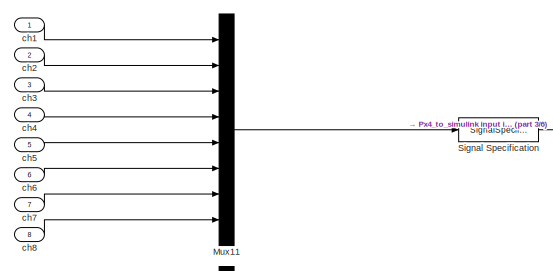
[diagram: root canvas - part 1/6, top left region]
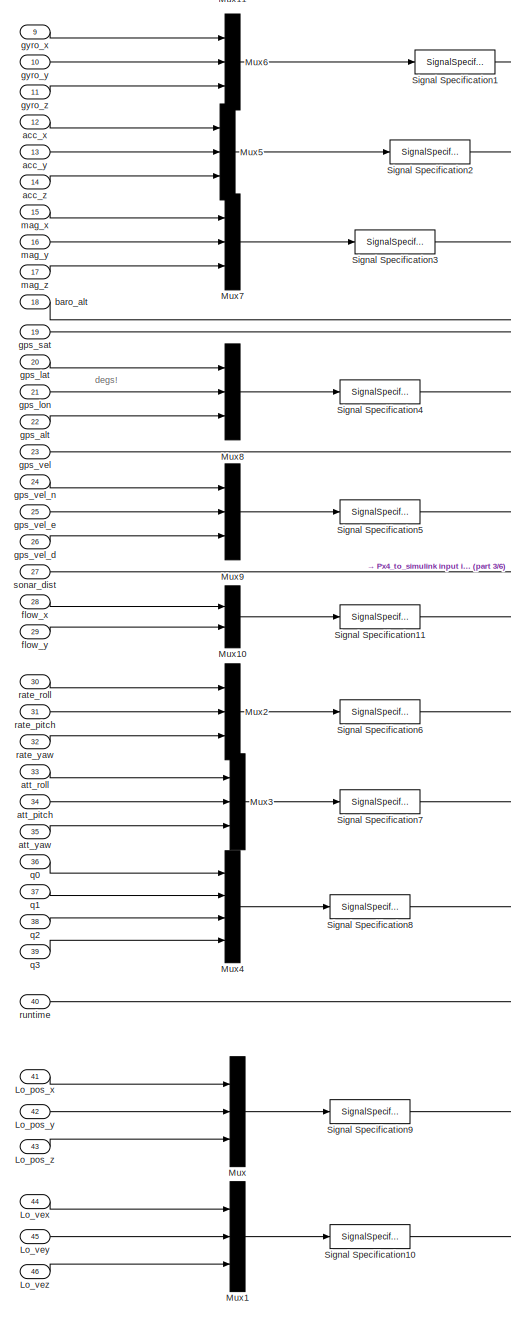
[diagram: root canvas - part 2/6, left side, full height]
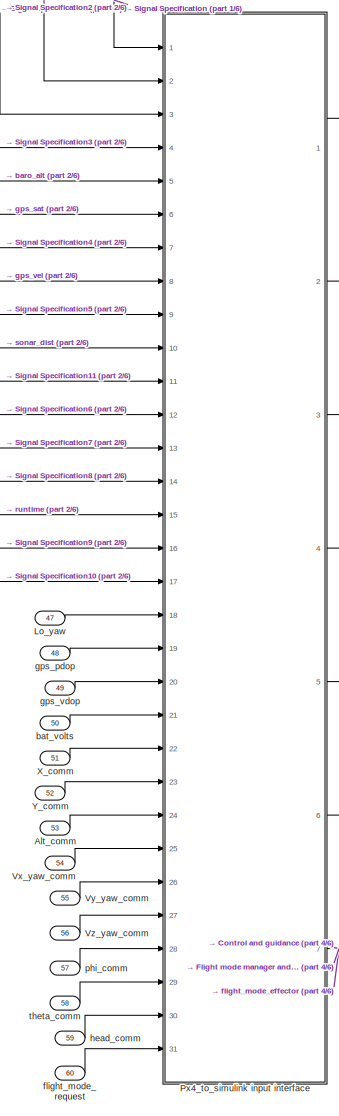
[diagram: root canvas - part 3/6, middle left region]
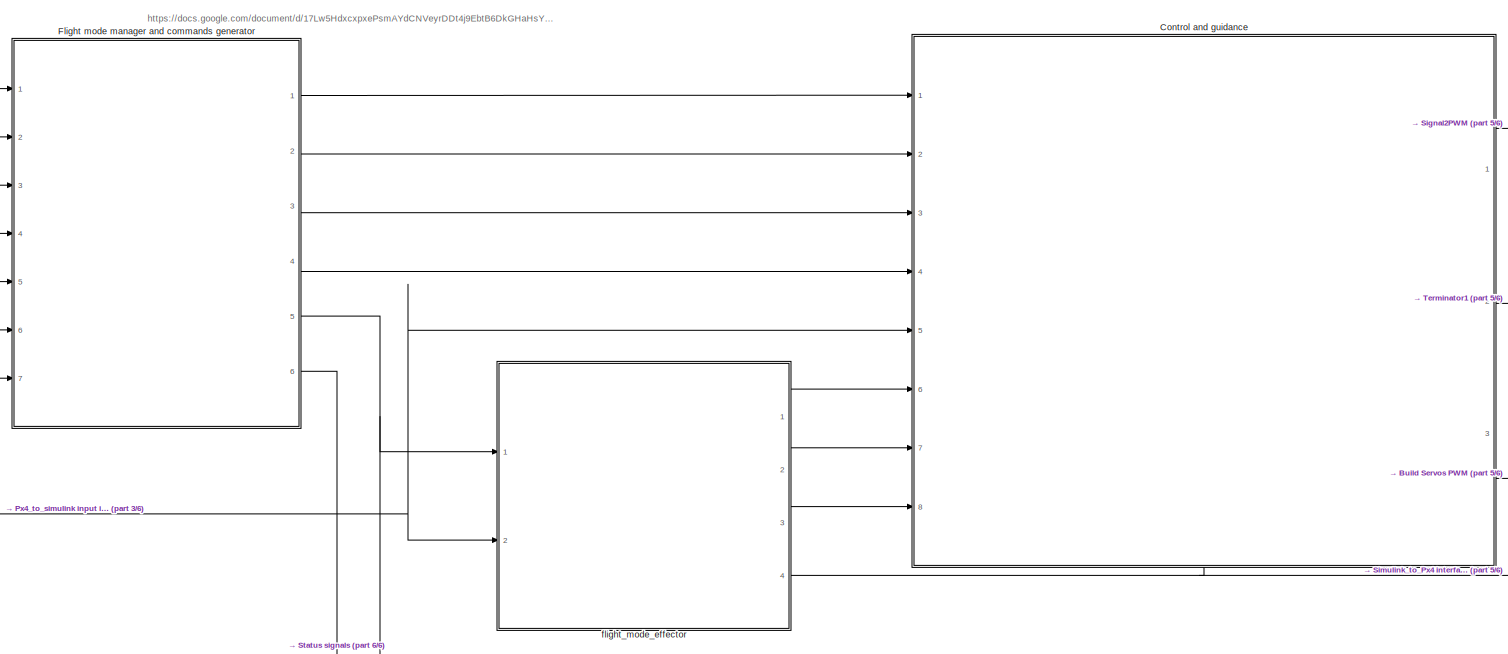
[diagram: root canvas - part 4/6, central region]
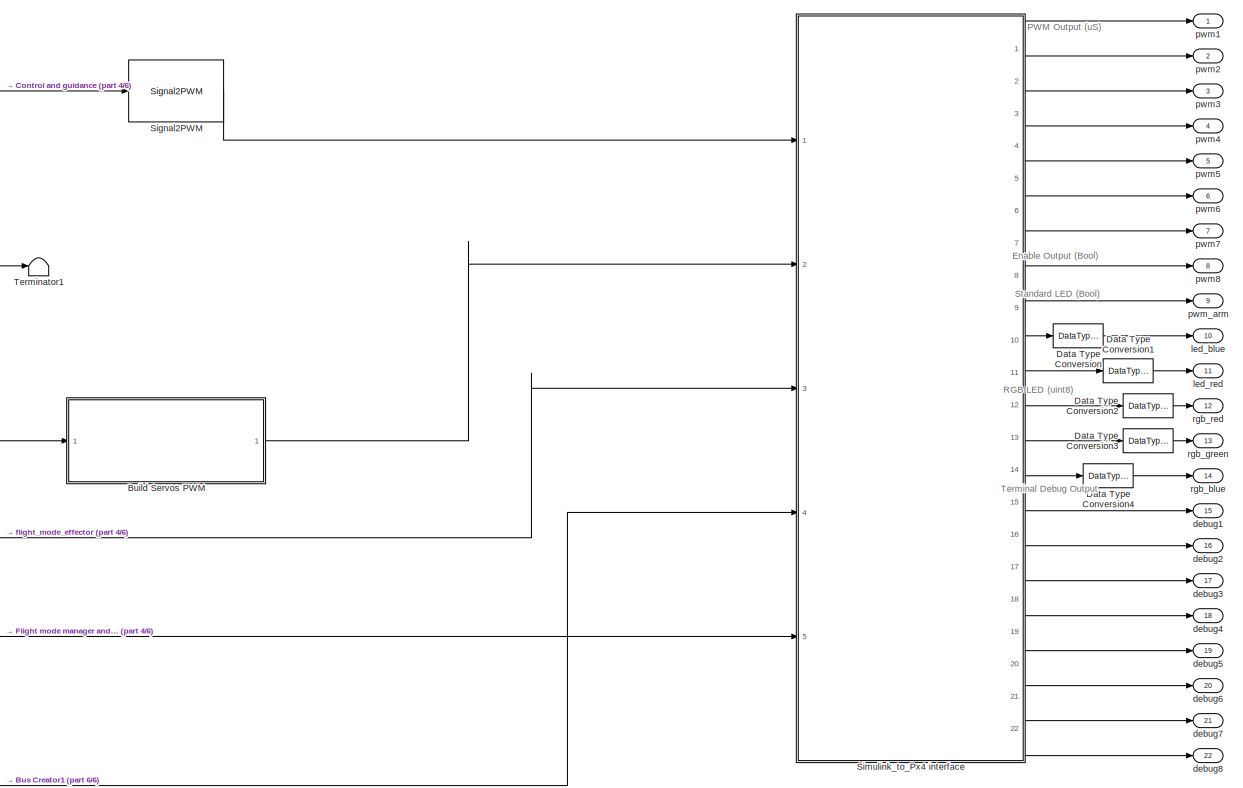
[diagram: root canvas - part 5/6, middle right region]
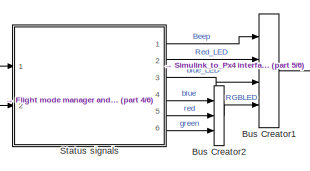
[diagram: root canvas - part 6/6, bottom right region]
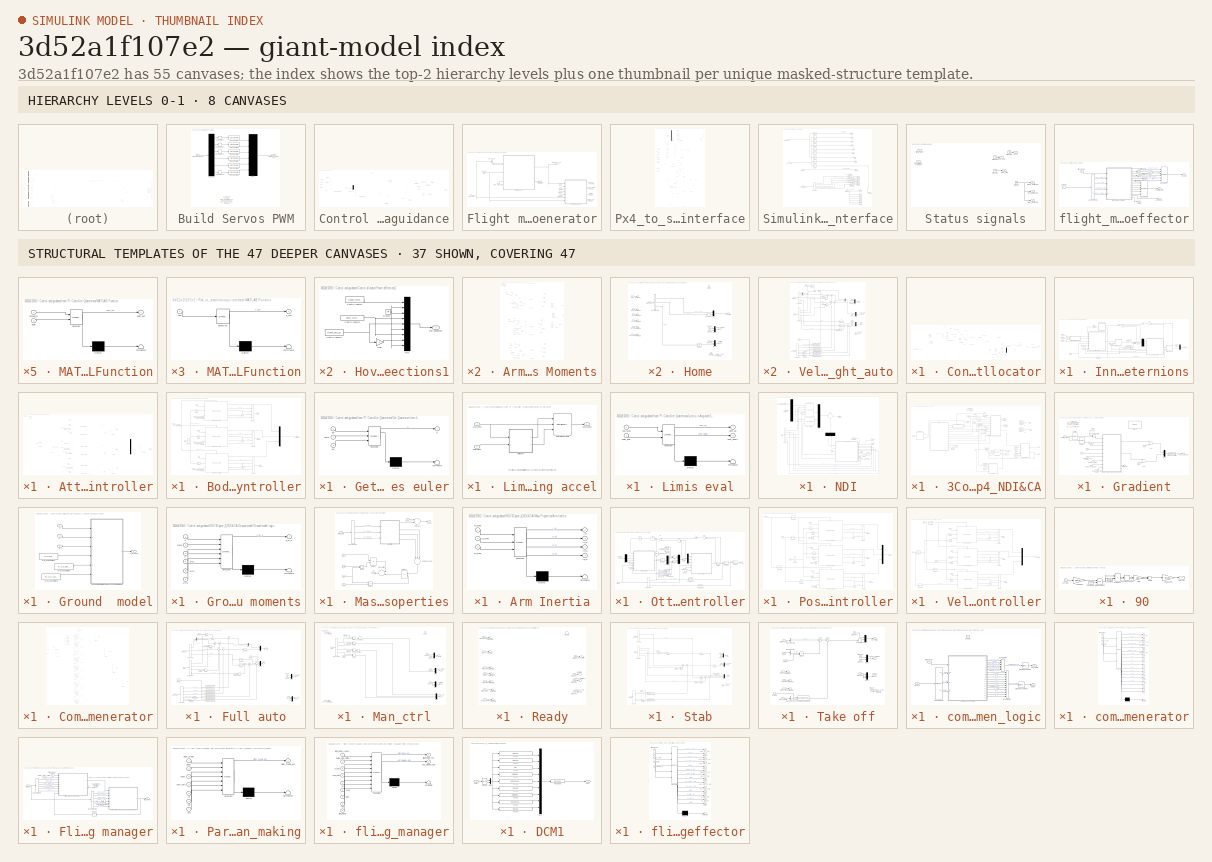
[diagram: thumbnail index - top-2 hierarchy levels (8 canvases) + 37 structural-template representatives of the remaining 47 canvases]
MODEL slx_3d52a1f107e2
KIND model
CONFIG AbsTol = auto
CONFIG FixedStep = T_ctrl
CONFIG MaxStep = auto
CONFIG MinStep = auto
CONFIG RelTol = 1e-3
CONFIG SampleTimeConstraint = Unconstrained
CONFIG Solver = ode2
CONFIG SolverMode = SingleTasking
CONFIG SolverName = ode2
CONFIG StartTime = 0.0
CONFIG StopTime = inf
BLOCK [Inport] Alt_comm
  IconDisplay = Port number
  Port = 53
  PortDimensions = [1,1]
  SampleTime = T_ctrl
  VarSizeSig = No
BLOCK [SubSystem] Build Servos PWM
  Ports = [1, 1]
  RequestExecContextInheritance = off
  TreatAsAtomicUnit = on
BLOCK [Demux] Build Servos PWM/Demux
  DisplayOption = bar
  Outputs = 6
  Ports = [1, 6]
BLOCK [Mux] Build Servos PWM/Mux
  DisplayOption = bar
  Inputs = 6
  Ports = [6, 1]
BLOCK [Outport] Build Servos PWM/PWM_us servos out
  IconDisplay = Port number
BLOCK [Reference] Build Servos PWM/Signal2PWM1  REF=XXCopter_Control/Signal2PWM
  Ports = [1, 1]
  SourceBlock = XXCopter_Control/Signal2PWM
  a = 2100
  b = deg2rad(165)
  c = 900
  d = -deg2rad(165)
BLOCK [Reference] Build Servos PWM/Signal2PWM2  REF=XXCopter_Control/Signal2PWM
  Ports = [1, 1]
  SourceBlock = XXCopter_Control/Signal2PWM
  a = 2100
  b = deg2rad(90)
  c = 900
  d = -deg2rad(90)
BLOCK [Reference] Build Servos PWM/Signal2PWM3  REF=XXCopter_Control/Signal2PWM
  Ports = [1, 1]
  SourceBlock = XXCopter_Control/Signal2PWM
  a = 2100
  b = deg2rad(90)
  c = 900
  d = -deg2rad(90)
BLOCK [Reference] Build Servos PWM/Signal2PWM4  REF=XXCopter_Control/Signal2PWM
  Ports = [1, 1]
  SourceBlock = XXCopter_Control/Signal2PWM
  a = 2100
  b = deg2rad(90)
  c = 900
  d = -deg2rad(90)
BLOCK [Reference] Build Servos PWM/Signal2PWM5  REF=XXCopter_Control/Signal2PWM
  Ports = [1, 1]
  SourceBlock = XXCopter_Control/Signal2PWM
  a = 2100
  b = deg2rad(165)
  c = 900
  d = -deg2rad(165)
BLOCK [Reference] Build Servos PWM/Signal2PWM6  REF=XXCopter_Control/Signal2PWM
  Ports = [1, 1]
  SourceBlock = XXCopter_Control/Signal2PWM
  a = 2100
  b = deg2rad(165)
  c = 900
  d = -deg2rad(165)
BLOCK [UnaryMinus] Build Servos PWM/Unary Minus
BLOCK [UnaryMinus] Build Servos PWM/Unary Minus1
BLOCK [UnaryMinus] Build Servos PWM/Unary Minus2
BLOCK [UnaryMinus] Build Servos PWM/Unary Minus3
BLOCK [Inport] Build Servos PWM/signals servos in
  IconDisplay = Port number
BLOCK [BusCreator] Bus Creator1
  DisplayOption = bar
  Ports = [4, 1]
BLOCK [BusCreator] Bus Creator2
  DisplayOption = bar
  Inputs = 3
  Ports = [3, 1]
BLOCK [SubSystem] Control and guidance
  Ports = [8, 3, 1]
  RequestExecContextInheritance = off
BLOCK [Inport] Control and guidance/All_meas
  IconDisplay = Port number
  Port = 5
BLOCK [Inport] Control and guidance/Att_ref(rad)
  IconDisplay = Port number
  Port = 3
BLOCK [BusSelector] Control and guidance/Bus Selector
  OutputSignals = Meas.Volt
  Ports = [1, 1]
BLOCK [Inport] Control and guidance/CA_reconf
  IconDisplay = Port number
  Port = 8
BLOCK [SubSystem] Control and guidance/Control allocator
  MinAlgLoopOccurrences = on
  Ports = [5, 2]
  RTWFcnName = abc
  RTWFcnNameOpts = User specified
  RTWFileName = asas
  RTWFileNameOpts = User specified
  RequestExecContextInheritance = off
  VariantControl = Control Allocator: NO RECONFIG
BLOCK [Sum] Control and guidance/Control allocator/Add previous delfections
  IconShape = round
  InputSameDT = off
  Inputs = |++
  OutDataTypeStr = Inherit: Inherit via internal rule
  Ports = [2, 1]
  SaturateOnIntegerOverflow = off
BLOCK [Sum] Control and guidance/Control allocator/Add2
  InputSameDT = off
  OutDataTypeStr = Inherit: Inherit via internal rule
  Ports = [2, 1]
  SaturateOnIntegerOverflow = off
BLOCK [Sum] Control and guidance/Control allocator/Add3
  InputSameDT = off
  Inputs = +-
  OutDataTypeStr = Inherit: Inherit via internal rule
  Ports = [2, 1]
  SaturateOnIntegerOverflow = off
BLOCK [Inport] Control and guidance/Control allocator/B matrix Online
  IconDisplay = Port number
  Port = 3
BLOCK [Constant] Control and guidance/Control allocator/B_hover_4dof
  Value = B_hover_4dof
BLOCK [Inport] Control and guidance/Control allocator/CA_reconf
  IconDisplay = Port number
  Port = 5
BLOCK [InportShadow] Control and guidance/Control allocator/CA_reconf1
  IconDisplay = Port number
  Port = 5
BLOCK [InportShadow] Control and guidance/Control allocator/CA_reconf2
  IconDisplay = Port number
  Port = 5
BLOCK [Reference] Control and guidance/Control allocator/Control allocator 4 coder  REF=XXCopter_Control/Control allocator 4 coder
  Ports = [9, 1]
  SourceBlock = XXCopter_Control/Control allocator 4 coder
  SourceType = Control allocator WLS
  T = T_ctrl
  gamma = 1
  imax = 50
BLOCK [Inport] Control and guidance/Control allocator/Control defl prev
  IconDisplay = Port number
  Port = 4
BLOCK [Constant] Control and guidance/Control allocator/Control positions deviation Weight W1
  Value = diag(1./[1,1,1,1,1,1,1,1,1] )
BLOCK [Outport] Control and guidance/Control allocator/Control_Commands
  IconDisplay = Port number
BLOCK [Outport] Control and guidance/Control allocator/Control_def for eval
  IconDisplay = Port number
  Port = 2
BLOCK [Inport] Control and guidance/Control allocator/Curr_V
  IconDisplay = Port number
BLOCK [Constant] Control and guidance/Control allocator/Enalbe//Disable
BLOCK [Constant] Control and guidance/Control allocator/Error Weight Wv
  Value = blkdiag(eye(6))
BLOCK [Constant] Control and guidance/Control allocator/Error Weight Wv1
  Value = blkdiag(zeros(2),eye(4))
BLOCK [Inport] Control and guidance/Control allocator/Forc_Mom_des
  IconDisplay = Port number
  Port = 2
BLOCK [From] Control and guidance/Control allocator/From
  GotoTag = Inf_limit
BLOCK [From] Control and guidance/Control allocator/From1
  GotoTag = Sup_limit
BLOCK [Gain] Control and guidance/Control allocator/Gain
  Gain = ones(3,1)
  OutDataTypeStr = Inherit: Inherit via internal rule
  ParamDataTypeStr = Inherit: Inherit via internal rule
  SaturateOnIntegerOverflow = off
BLOCK [Gain] Control and guidance/Control allocator/Gain1
  Gain = ones(9,1)
  OutDataTypeStr = Inherit: Inherit via internal rule
  ParamDataTypeStr = Inherit: Inherit via internal rule
  SaturateOnIntegerOverflow = off
BLOCK [Goto] Control and guidance/Control allocator/Goto
  GotoTag = Sup_limit
BLOCK [Goto] Control and guidance/Control allocator/Goto1
  GotoTag = Inf_limit
BLOCK [Ground] Control and guidance/Control allocator/Ground1
BLOCK [SubSystem] Control and guidance/Control allocator/Hover deflections1
  Ports = [0, 1]
  RequestExecContextInheritance = off
  TreatAsAtomicUnit = on
BLOCK [Constant] Control and guidance/Control allocator/Hover deflections1/Contro Inputs1
  Value = Hover_throtle_1
BLOCK [Constant] Control and guidance/Control allocator/Hover deflections1/Contro Inputs2
  Value = Hover_throtle_23
BLOCK [Constant] Control and guidance/Control allocator/Hover deflections1/Contro Inputs3
  Value = Hover_eta_23
BLOCK [Gain] Control and guidance/Control allocator/Hover deflections1/Gain
  Gain = -1
  OutDataTypeStr = Inherit: Inherit via internal rule
  ParamDataTypeStr = Inherit: Inherit via internal rule
  SaturateOnIntegerOverflow = off
BLOCK [Ground] Control and guidance/Control allocator/Hover deflections1/Ground
BLOCK [Mux] Control and guidance/Control allocator/Hover deflections1/Mux
  DisplayOption = bar
  Inputs = 9
  Ports = [9, 1]
BLOCK [Outport] Control and guidance/Control allocator/Hover deflections1/Trim deflectins
  IconDisplay = Port number
BLOCK [SubSystem] Control and guidance/Control allocator/Hover deflections2
  Ports = [0, 1]
  RequestExecContextInheritance = off
  TreatAsAtomicUnit = on
BLOCK [Constant] Control and guidance/Control allocator/Hover deflections2/Contro Inputs1
  Value = Hover_throtle_1
BLOCK [Constant] Control and guidance/Control allocator/Hover deflections2/Contro Inputs2
  Value = Hover_throtle_23
BLOCK [Constant] Control and guidance/Control allocator/Hover deflections2/Contro Inputs3
  Value = Hover_eta_23
BLOCK [Gain] Control and guidance/Control allocator/Hover deflections2/Gain
  Gain = -1
  OutDataTypeStr = Inherit: Inherit via internal rule
  ParamDataTypeStr = Inherit: Inherit via internal rule
  SaturateOnIntegerOverflow = off
BLOCK [Ground] Control and guidance/Control allocator/Hover deflections2/Ground
BLOCK [Mux] Control and guidance/Control allocator/Hover deflections2/Mux
  DisplayOption = bar
  Inputs = 9
  Ports = [9, 1]
BLOCK [Outport] Control and guidance/Control allocator/Hover deflections2/Trim deflectins
  IconDisplay = Port number
BLOCK [Sum] Control and guidance/Control allocator/Inf lim
  InputSameDT = off
  Inputs = -+
  OutDataTypeStr = Inherit: Inherit via internal rule
  Ports = [2, 1]
  SaturateOnIntegerOverflow = off
BLOCK [Sum] Control and guidance/Control allocator/Inf lim2
  InputSameDT = off
  Inputs = -+
  OutDataTypeStr = Inherit: Inherit via internal rule
  Ports = [2, 1]
  SaturateOnIntegerOverflow = off
BLOCK [Concatenate] Control and guidance/Control allocator/Matrix Concatenate
  ConcatenateDimension = 2
  Mode = Multidimensional array
  Ports = [2, 1]
BLOCK [Product] Control and guidance/Control allocator/Min thrtle
  InputSameDT = off
  Inputs = */
  OutDataTypeStr = Inherit: Inherit via internal rule
  Ports = [2, 1]
  RndMeth = Floor
  SaturateOnIntegerOverflow = off
BLOCK [MinMax] Control and guidance/Control allocator/MinMax
  Function = max
  InputSameDT = off
  Inputs = 2
  Ports = [2, 1]
  SaturateOnIntegerOverflow = off
BLOCK [MinMax] Control and guidance/Control allocator/MinMax1
  InputSameDT = off
  Inputs = 2
  Ports = [2, 1]
  SaturateOnIntegerOverflow = off
BLOCK [MinMax] Control and guidance/Control allocator/MinMax2
  Function = max
  InputSameDT = off
  Inputs = 2
  Ports = [2, 1]
  SaturateOnIntegerOverflow = off
BLOCK [MultiPortSwitch] Control and guidance/Control allocator/Multiport Switch
  InputSameDT = off
  Inputs = 2
  Ports = [3, 1]
  SaturateOnIntegerOverflow = off
BLOCK [MultiPortSwitch] Control and guidance/Control allocator/Multiport Switch1
  InputSameDT = off
  Inputs = 2
  Ports = [3, 1]
  SaturateOnIntegerOverflow = off
BLOCK [MultiPortSwitch] Control and guidance/Control allocator/Multiport Switch2
  InputSameDT = off
  Inputs = 2
  Ports = [3, 1]
  SaturateOnIntegerOverflow = off
BLOCK [MultiPortSwitch] Control and guidance/Control allocator/Multiport Switch3
  InputSameDT = off
  Inputs = 2
  Ports = [3, 1]
  SaturateOnIntegerOverflow = off
BLOCK [Mux] Control and guidance/Control allocator/Mux
  DisplayOption = bar
  Inputs = [1,2,1,2,1,2]
  Ports = [6, 1]
BLOCK [Constant] Control and guidance/Control allocator/Position limits sup
  Value = [1,deg2rad(165),deg2rad(15),1,deg2rad(165),deg2rad(90),1,deg2rad(165),deg2rad(15)]'
BLOCK [Constant] Control and guidance/Control allocator/Position limitsv inf
  Value = [0,-deg2rad(165),-deg2rad(90),0,-deg2rad(165),-deg2rad(15),0,-deg2rad(165),-deg2rad(90)]'
BLOCK [Constant] Control and guidance/Control allocator/Rates limits
  Value = [ [-17,-1,-1,-17,-1,-1,-17,-1,-1]', [17,1,1,17,1,1,17,1,1]']*1
BLOCK [Selector] Control and guidance/Control allocator/Selector
  Indices = [1,4,7]
  InputPortWidth = 9
  Ports = [1, 1]
BLOCK [Selector] Control and guidance/Control allocator/Selector1
  Indices = [2,3]
  InputPortWidth = 9
  Ports = [1, 1]
BLOCK [Selector] Control and guidance/Control allocator/Selector2
  InputPortWidth = 3
  Ports = [1, 1]
BLOCK [Selector] Control and guidance/Control allocator/Selector3
  InputPortWidth = 3
  Ports = [1, 1]
BLOCK [Selector] Control and guidance/Control allocator/Selector4
  InputPortWidth = 3
  Ports = [1, 1]
BLOCK [Selector] Control and guidance/Control allocator/Selector5
  Indices = [2,3]
  InputPortWidth = 9
  Ports = [1, 1]
BLOCK [Selector] Control and guidance/Control allocator/Selector6
  Indices = [2,3]
  InputPortWidth = 9
  Ports = [1, 1]
BLOCK [SignalSpecification] Control and guidance/Control allocator/Signal Specification
  Dimensions = [9,1]
BLOCK [SignalSpecification] Control and guidance/Control allocator/Signal Specification1
  Dimensions = [9,1]
BLOCK [Sum] Control and guidance/Control allocator/Sup lim
  InputSameDT = off
  Inputs = -+
  OutDataTypeStr = Inherit: Inherit via internal rule
  Ports = [2, 1]
  SaturateOnIntegerOverflow = off
BLOCK [Constant] Control and guidance/Control allocator/manual Initial saturations
  Value = zeros(9,1)
BLOCK [Constant] Control and guidance/Control allocator/min Eq throtle
  Value = 4
BLOCK [Constant] Control and guidance/Control allocator/used epsilon (deg)
  Value = epsilon
BLOCK [Outport] Control and guidance/Control_signals
  IconDisplay = Port number
  Port = 2
BLOCK [Demux] Control and guidance/Demux
  DisplayOption = bar
  Outputs = 3
  Ports = [1, 3]
BLOCK [EnablePort] Control and guidance/Enable
  Ports = []
  StatesWhenEnabling = reset
BLOCK [Product] Control and guidance/Equivalent ESC signals
  InputSameDT = off
  Inputs = /*
  OutDataTypeStr = Inherit: Inherit via internal rule
  Ports = [2, 1]
  RndMeth = Floor
  SaturateOnIntegerOverflow = off
BLOCK [Product] Control and guidance/Equivalent Throttle
  InputSameDT = off
  Inputs = **
  OutDataTypeStr = Inherit: Inherit via internal rule
  Ports = [2, 1]
  RndMeth = Floor
  SaturateOnIntegerOverflow = off
BLOCK [Inport] Control and guidance/Init_cond
  IconDisplay = Port number
  Port = 7
BLOCK [Memory] Control and guidance/Initial control deflections
  InheritSampleTime = on
  X0 = [throtle_1,0,0,throtle_23,eta_23,0,throtle_23,-eta_23,0]'
BLOCK [SubSystem] Control and guidance/Inner PI Controller Quaternions
  Ports = [8, 1]
  RequestExecContextInheritance = off
  VariantControl = PI_quat
BLOCK [Inport] Control and guidance/Inner PI Controller Quaternions/Accels ref (m//s^2)
  IconDisplay = Port number
BLOCK [Outport] Control and guidance/Inner PI Controller Quaternions/Accs_Ang_acc des
  IconDisplay = Port number
BLOCK [Sum] Control and guidance/Inner PI Controller Quaternions/Add
  InputSameDT = off
  OutDataTypeStr = Inherit: Inherit via internal rule
  Ports = [2, 1]
  SaturateOnIntegerOverflow = off
BLOCK [Sum] Control and guidance/Inner PI Controller Quaternions/Add1
  InputSameDT = off
  Inputs = +-
  OutDataTypeStr = Inherit: Inherit via internal rule
  Ports = [2, 1]
  SaturateOnIntegerOverflow = off
BLOCK [Sum] Control and guidance/Inner PI Controller Quaternions/Add2
  InputSameDT = off
  Inputs = +-
  OutDataTypeStr = Inherit: Inherit via internal rule
  Ports = [2, 1]
  SaturateOnIntegerOverflow = off
BLOCK [Inport] Control and guidance/Inner PI Controller Quaternions/All meas
  IconDisplay = Port number
  Port = 6
BLOCK [InportShadow] Control and guidance/Inner PI Controller Quaternions/All meas1
  IconDisplay = Port number
  Port = 6
BLOCK [SubSystem] Control and guidance/Inner PI Controller Quaternions/Attitude Controller
  Ports = [7, 1]
  RequestExecContextInheritance = off
BLOCK [Inport] Control and guidance/Inner PI Controller Quaternions/Attitude Controller/AWU
  IconDisplay = Port number
BLOCK [InportShadow] Control and guidance/Inner PI Controller Quaternions/Attitude Controller/AWU1
  IconDisplay = Port number
BLOCK [InportShadow] Control and guidance/Inner PI Controller Quaternions/Attitude Controller/AWU2
  IconDisplay = Port number
BLOCK [Inport] Control and guidance/Inner PI Controller Quaternions/Attitude Controller/All_meas
  IconDisplay = Port number
  Port = 5
BLOCK [SubSystem] Control and guidance/Inner PI Controller Quaternions/Attitude Controller/Build Pseudo_theta
  ErrorFcn = Stateflow.Translate.translate
  PermitHierarchicalResolution = ExplicitOnly
  Ports = [1, 1]
  RequestExecContextInheritance = off
  SFBlockType = MATLAB Function
  TreatAsAtomicUnit = on
BLOCK [Demux] Control and guidance/Inner PI Controller Quaternions/Attitude Controller/Build Pseudo_theta/ Demux 
  Outputs = 1
  Ports = [1, 1]
BLOCK [S-Function] Control and guidance/Inner PI Controller Quaternions/Attitude Controller/Build Pseudo_theta/ SFunction 
  EnableBusSupport = on
  FunctionName = sf_sfun
  PortCounts = [1 2]
  Ports = [1, 2]
  Tag = Stateflow S-Function simulink_app_9dof 5
BLOCK [Terminator] Control and guidance/Inner PI Controller Quaternions/Attitude Controller/Build Pseudo_theta/ Terminator 
BLOCK [Outport] Control and guidance/Inner PI Controller Quaternions/Attitude Controller/Build Pseudo_theta/Pseudo_theta
  IconDisplay = Port number
BLOCK [Inport] Control and guidance/Inner PI Controller Quaternions/Attitude Controller/Build Pseudo_theta/q
  IconDisplay = Port number
BLOCK [SubSystem] Control and guidance/Inner PI Controller Quaternions/Attitude Controller/Build Pseudo_theta1
  ErrorFcn = Stateflow.Translate.translate
  PermitHierarchicalResolution = ExplicitOnly
  Ports = [1, 1]
  RequestExecContextInheritance = off
  SFBlockType = MATLAB Function
  TreatAsAtomicUnit = on
BLOCK [Demux] Control and guidance/Inner PI Controller Quaternions/Attitude Controller/Build Pseudo_theta1/ Demux 
  Outputs = 1
  Ports = [1, 1]
BLOCK [S-Function] Control and guidance/Inner PI Controller Quaternions/Attitude Controller/Build Pseudo_theta1/ SFunction 
  EnableBusSupport = on
  FunctionName = sf_sfun
  PortCounts = [1 2]
  Ports = [1, 2]
  Tag = Stateflow S-Function simulink_app_9dof 24
BLOCK [Terminator] Control and guidance/Inner PI Controller Quaternions/Attitude Controller/Build Pseudo_theta1/ Terminator 
BLOCK [Outport] Control and guidance/Inner PI Controller Quaternions/Attitude Controller/Build Pseudo_theta1/Pseudo_theta
  IconDisplay = Port number
BLOCK [Inport] Control and guidance/Inner PI Controller Quaternions/Attitude Controller/Build Pseudo_theta1/q
  IconDisplay = Port number
BLOCK [BusCreator] Control and guidance/Inner PI Controller Quaternions/Attitude Controller/Bus Creator
  DisplayOption = bar
  Inputs = 3
  Ports = [3, 1]
BLOCK [BusCreator] Control and guidance/Inner PI Controller Quaternions/Attitude Controller/Bus Creator1
  DisplayOption = bar
  Inputs = 3
  Ports = [3, 1]
BLOCK [BusCreator] Control and guidance/Inner PI Controller Quaternions/Attitude Controller/Bus Creator2
  DisplayOption = bar
  Inputs = 3
  Ports = [3, 1]
BLOCK [BusSelector] Control and guidance/Inner PI Controller Quaternions/Attitude Controller/Bus Selector
  OutputSignals = Meas.Eulr_meas_rad,Meas.q_meas
  Ports = [1, 2]
BLOCK [BusSelector] Control and guidance/Inner PI Controller Quaternions/Attitude Controller/Bus Selector1
  OutputSignals = att_act
  Ports = [1, 1]
BLOCK [BusSelector] Control and guidance/Inner PI Controller Quaternions/Attitude Controller/Bus Selector2
  OutputSignals = att_init
  Ports = [1, 1]
BLOCK [BusSelector] Control and guidance/Inner PI Controller Quaternions/Attitude Controller/Bus Selector3
  OutputSignals = att_init
  Ports = [1, 1]
BLOCK [BusSelector] Control and guidance/Inner PI Controller Quaternions/Attitude Controller/Bus Selector4
  OutputSignals = att_init
  Ports = [1, 1]
BLOCK [Mux] Control and guidance/Inner PI Controller Quaternions/Attitude Controller/Mux
  DisplayOption = bar
  Inputs = 3
  Ports = [3, 1]
BLOCK [Inport] Control and guidance/Inner PI Controller Quaternions/Attitude Controller/Phi_ref (rad)
  IconDisplay = Port number
  Port = 2
BLOCK [Reference] Control and guidance/Inner PI Controller Quaternions/Attitude Controller/Ref Model and PI Controller  REF=XXCopter_Control/Ref Model and PI Controller
  Con_way = pro
  FallingSlewLimit = -deg2rad(8)
  K_a = 1
  K_b = 2
  K_f = 0
  Ports = [4, 4, 1]
  RisingSlewLimit = deg2rad(8)
  SourceBlock = XXCopter_Control/Ref Model and PI Controller
  SourceType = Reference Model and Controller
  Z1 = -30
  delta = 0
  f_c = 1
  f_i = 0.15
  omega_n = 4
  tau = 2
  xi = 0.5
BLOCK [Reference] Control and guidance/Inner PI Controller Quaternions/Attitude Controller/Ref Model and PI Controller1  REF=XXCopter_Control/Ref Model and PI Controller
  Con_way = pro
  FallingSlewLimit = -deg2rad(8)
  K_a = 1
  K_b = 1.2
  K_f = 0
  Ports = [4, 4, 1]
  RisingSlewLimit = deg2rad(8)
  SourceBlock = XXCopter_Control/Ref Model and PI Controller
  SourceType = Reference Model and Controller
  Z1 = -30
  delta = 0
  f_c = 1
  f_i = 0.1
  omega_n = 4
  tau = 1.5
  xi = 0.5
BLOCK [Reference] Control and guidance/Inner PI Controller Quaternions/Attitude Controller/Ref Model and PI Controller2  REF=XXCopter_Control/Ref Model and PI Controller
  Con_way = pro
  FallingSlewLimit = -deg2rad(8)
  K_a = 1
  K_b = 1.5
  K_f = 0
  Ports = [4, 4, 1]
  RisingSlewLimit = deg2rad(8)
  SourceBlock = XXCopter_Control/Ref Model and PI Controller
  SourceType = Reference Model and Controller
  Z1 = -30
  delta = 0
  f_c = 1
  f_i = 0.1
  omega_n = 4
  tau = 1.5
  xi = 0.5
BLOCK [SubSystem] Control and guidance/Inner PI Controller Quaternions/Attitude Controller/Retrieve quaternion
  ErrorFcn = Stateflow.Translate.translate
  PermitHierarchicalResolution = ExplicitOnly
  Ports = [2, 1]
  RequestExecContextInheritance = off
  SFBlockType = MATLAB Function
  TreatAsAtomicUnit = on
BLOCK [Demux] Control and guidance/Inner PI Controller Quaternions/Attitude Controller/Retrieve quaternion/ Demux 
  Outputs = 1
  Ports = [1, 1]
BLOCK [S-Function] Control and guidance/Inner PI Controller Quaternions/Attitude Controller/Retrieve quaternion/ SFunction 
  EnableBusSupport = on
  FunctionName = sf_sfun
  PortCounts = [2 2]
  Ports = [2, 2]
  Tag = Stateflow S-Function simulink_app_9dof 27
BLOCK [Terminator] Control and guidance/Inner PI Controller Quaternions/Attitude Controller/Retrieve quaternion/ Terminator 
BLOCK [Inport] Control and guidance/Inner PI Controller Quaternions/Attitude Controller/Retrieve quaternion/Pseudoeuler_dot
  IconDisplay = Port number
BLOCK [Inport] Control and guidance/Inner PI Controller Quaternions/Attitude Controller/Retrieve quaternion/q
  IconDisplay = Port number
  Port = 2
BLOCK [Outport] Control and guidance/Inner PI Controller Quaternions/Attitude Controller/Retrieve quaternion/qdot
  IconDisplay = Port number
BLOCK [Selector] Control and guidance/Inner PI Controller Quaternions/Attitude Controller/Selector
  InputPortWidth = 3
  Ports = [1, 1]
BLOCK [Selector] Control and guidance/Inner PI Controller Quaternions/Attitude Controller/Selector1
  InputPortWidth = 3
  Ports = [1, 1]
BLOCK [Selector] Control and guidance/Inner PI Controller Quaternions/Attitude Controller/Selector2
  Indices = 3
  InputPortWidth = 3
  Ports = [1, 1]
BLOCK [Selector] Control and guidance/Inner PI Controller Quaternions/Attitude Controller/Selector3
  Indices = 2
  InputPortWidth = 3
  Ports = [1, 1]
BLOCK [Selector] Control and guidance/Inner PI Controller Quaternions/Attitude Controller/Selector4
  Indices = 3
  InputPortWidth = 3
  Ports = [1, 1]
BLOCK [Selector] Control and guidance/Inner PI Controller Quaternions/Attitude Controller/Selector5
  InputPortWidth = 3
  Ports = [1, 1]
BLOCK [Selector] Control and guidance/Inner PI Controller Quaternions/Attitude Controller/Selector6
  Indices = 2
  InputPortWidth = 3
  Ports = [1, 1]
BLOCK [Selector] Control and guidance/Inner PI Controller Quaternions/Attitude Controller/Selector7
  Indices = 3
  InputPortWidth = 3
  Ports = [1, 1]
BLOCK [Sum] Control and guidance/Inner PI Controller Quaternions/Attitude Controller/Sum
  IconShape = round
  InputSameDT = off
  Inputs = +-|
  OutDataTypeStr = Inherit: Inherit via internal rule
  Ports = [2, 1]
  SaturateOnIntegerOverflow = off
BLOCK [Sum] Control and guidance/Inner PI Controller Quaternions/Attitude Controller/Sum1
  IconShape = round
  InputSameDT = off
  Inputs = +-|
  OutDataTypeStr = Inherit: Inherit via internal rule
  Ports = [2, 1]
  SaturateOnIntegerOverflow = off
BLOCK [Sum] Control and guidance/Inner PI Controller Quaternions/Attitude Controller/Sum2
  IconShape = round
  InputSameDT = off
  Inputs = +-|
  OutDataTypeStr = Inherit: Inherit via internal rule
  Ports = [2, 1]
  SaturateOnIntegerOverflow = off
BLOCK [Terminator] Control and guidance/Inner PI Controller Quaternions/Attitude Controller/Terminator1
BLOCK [Terminator] Control and guidance/Inner PI Controller Quaternions/Attitude Controller/Terminator2
BLOCK [Terminator] Control and guidance/Inner PI Controller Quaternions/Attitude Controller/Terminator3
BLOCK [Trigonometry] Control and guidance/Inner PI Controller Quaternions/Attitude Controller/Trigonometric Function
  Ports = [1, 1]
BLOCK [Inport] Control and guidance/Inner PI Controller Quaternions/Attitude Controller/Yaw_ref (rad)
  IconDisplay = Port number
  Port = 4
BLOCK [Inport] Control and guidance/Inner PI Controller Quaternions/Attitude Controller/activation_bus
  IconDisplay = Port number
  Port = 6
BLOCK [Inport] Control and guidance/Inner PI Controller Quaternions/Attitude Controller/init_cond
  IconDisplay = Port number
  Port = 7
BLOCK [InportShadow] Control and guidance/Inner PI Controller Quaternions/Attitude Controller/init_cond1
  IconDisplay = Port number
  Port = 7
BLOCK [InportShadow] Control and guidance/Inner PI Controller Quaternions/Attitude Controller/init_cond2
  IconDisplay = Port number
  Port = 7
BLOCK [Inport] Control and guidance/Inner PI Controller Quaternions/Attitude Controller/q_ref
  IconDisplay = Port number
  Port = 3
BLOCK [Outport] Control and guidance/Inner PI Controller Quaternions/Attitude Controller/quat_dot des (rad//s)
  IconDisplay = Port number
BLOCK [SubSystem] Control and guidance/Inner PI Controller Quaternions/Body Rates Controller
  Ports = [6, 1]
  RequestExecContextInheritance = off
BLOCK [Inport] Control and guidance/Inner PI Controller Quaternions/Body Rates Controller/All_meas
  IconDisplay = Port number
  Port = 4
BLOCK [Outport] Control and guidance/Inner PI Controller Quaternions/Body Rates Controller/Angular acc des (rad//s^2)
  IconDisplay = Port number
BLOCK [BusCreator] Control and guidance/Inner PI Controller Quaternions/Body Rates Controller/Bus Creator
  DisplayOption = bar
  Ports = [4, 1]
BLOCK [BusCreator] Control and guidance/Inner PI Controller Quaternions/Body Rates Controller/Bus Creator1
  DisplayOption = bar
  Ports = [4, 1]
BLOCK [BusCreator] Control and guidance/Inner PI Controller Quaternions/Body Rates Controller/Bus Creator2
  DisplayOption = bar
  Ports = [4, 1]
BLOCK [BusSelector] Control and guidance/Inner PI Controller Quaternions/Body Rates Controller/Bus Selector
  OutputSignals = Meas.omega_b_meas_radps
  Ports = [1, 1]
BLOCK [BusSelector] Control and guidance/Inner PI Controller Quaternions/Body Rates Controller/Bus Selector1
  OutputSignals = omega_b_act
  Ports = [1, 1]
BLOCK [BusSelector] Control and guidance/Inner PI Controller Quaternions/Body Rates Controller/Bus Selector2
  OutputSignals = b_rates_init
  Ports = [1, 1]
BLOCK [BusSelector] Control and guidance/Inner PI Controller Quaternions/Body Rates Controller/Bus Selector3
  OutputSignals = b_rates_init
  Ports = [1, 1]
BLOCK [BusSelector] Control and guidance/Inner PI Controller Quaternions/Body Rates Controller/Bus Selector4
  OutputSignals = b_rates_init
  Ports = [1, 1]
BLOCK [Mux] Control and guidance/Inner PI Controller Quaternions/Body Rates Controller/Mux
  DisplayOption = bar
  Inputs = 3
  Ports = [3, 1]
BLOCK [Reference] Control and guidance/Inner PI Controller Quaternions/Body Rates Controller/Ref Model and P Controller p  REF=XXCopter_Control/Ref Model and P Controller
  FallingSlewLimit = -4
  K_b = 6
  K_f = 0.7
  Ports = [3, 5, 1]
  RisingSlewLimit = 4
  SourceBlock = XXCopter_Control/Ref Model and P Controller
  SourceType = Reference Model and Controller
  tau = 0.7
BLOCK [Reference] Control and guidance/Inner PI Controller Quaternions/Body Rates Controller/Ref Model and P Controller q  REF=XXCopter_Control/Ref Model and P Controller
  FallingSlewLimit = -4
  K_b = 6
  K_f = 0.7
  Ports = [3, 5, 1]
  RisingSlewLimit = 4
  SourceBlock = XXCopter_Control/Ref Model and P Controller
  SourceType = Reference Model and Controller
  tau = 0.7
BLOCK [Reference] Control and guidance/Inner PI Controller Quaternions/Body Rates Controller/Ref Model and P Controller r  REF=XXCopter_Control/Ref Model and P Controller
  FallingSlewLimit = -4
  K_b = 1.5
  K_f = 0.7
  Ports = [3, 5, 1]
  RisingSlewLimit = 4
  SourceBlock = XXCopter_Control/Ref Model and P Controller
  SourceType = Reference Model and Controller
  tau = 1.5
BLOCK [Selector] Control and guidance/Inner PI Controller Quaternions/Body Rates Controller/Selector
  InputPortWidth = 3
  Ports = [1, 1]
BLOCK [Selector] Control and guidance/Inner PI Controller Quaternions/Body Rates Controller/Selector1
  Indices = 2
  InputPortWidth = 3
  Ports = [1, 1]
BLOCK [Selector] Control and guidance/Inner PI Controller Quaternions/Body Rates Controller/Selector2
  Indices = 3
  InputPortWidth = 3
  Ports = [1, 1]
BLOCK [Selector] Control and guidance/Inner PI Controller Quaternions/Body Rates Controller/Selector3
  InputPortWidth = 3
  Ports = [1, 1]
BLOCK [Selector] Control and guidance/Inner PI Controller Quaternions/Body Rates Controller/Selector4
  Indices = 2
  InputPortWidth = 3
  Ports = [1, 1]
BLOCK [Selector] Control and guidance/Inner PI Controller Quaternions/Body Rates Controller/Selector5
  Indices = 3
  InputPortWidth = 3
  Ports = [1, 1]
BLOCK [Sum] Control and guidance/Inner PI Controller Quaternions/Body Rates Controller/Sum
  IconShape = round
  InputSameDT = off
  Inputs = +-|
  OutDataTypeStr = Inherit: Inherit via internal rule
  Ports = [2, 1]
  SaturateOnIntegerOverflow = off
BLOCK [Sum] Control and guidance/Inner PI Controller Quaternions/Body Rates Controller/Sum1
  IconShape = round
  InputSameDT = off
  Inputs = +-|
  OutDataTypeStr = Inherit: Inherit via internal rule
  Ports = [2, 1]
  SaturateOnIntegerOverflow = off
BLOCK [Sum] Control and guidance/Inner PI Controller Quaternions/Body Rates Controller/Sum2
  IconShape = round
  InputSameDT = off
  Inputs = +-|
  OutDataTypeStr = Inherit: Inherit via internal rule
  Ports = [2, 1]
  SaturateOnIntegerOverflow = off
BLOCK [Terminator] Control and guidance/Inner PI Controller Quaternions/Body Rates Controller/Terminator1
BLOCK [Terminator] Control and guidance/Inner PI Controller Quaternions/Body Rates Controller/Terminator2
BLOCK [Terminator] Control and guidance/Inner PI Controller Quaternions/Body Rates Controller/Terminator3
BLOCK [Inport] Control and guidance/Inner PI Controller Quaternions/Body Rates Controller/activation_bus
  IconDisplay = Port number
  Port = 6
BLOCK [Inport] Control and guidance/Inner PI Controller Quaternions/Body Rates Controller/init_cond
  IconDisplay = Port number
  Port = 5
BLOCK [InportShadow] Control and guidance/Inner PI Controller Quaternions/Body Rates Controller/init_cond1
  IconDisplay = Port number
  Port = 5
BLOCK [InportShadow] Control and guidance/Inner PI Controller Quaternions/Body Rates Controller/init_cond2
  IconDisplay = Port number
  Port = 5
BLOCK [Inport] Control and guidance/Inner PI Controller Quaternions/Body Rates Controller/p_ref
  IconDisplay = Port number
BLOCK [Inport] Control and guidance/Inner PI Controller Quaternions/Body Rates Controller/q_ref
  IconDisplay = Port number
  Port = 2
BLOCK [Inport] Control and guidance/Inner PI Controller Quaternions/Body Rates Controller/r_ref
  IconDisplay = Port number
  Port = 3
BLOCK [BusSelector] Control and guidance/Inner PI Controller Quaternions/Bus Selector
  OutputSignals = Meas.Eulr_meas_rad
  Ports = [1, 1]
BLOCK [BusSelector] Control and guidance/Inner PI Controller Quaternions/Bus Selector1
  OutputSignals = Meas.q_meas
  Ports = [1, 1]
BLOCK [BusSelector] Control and guidance/Inner PI Controller Quaternions/Bus Selector2
  OutputSignals = att_act,omega_b_act
  Ports = [1, 2]
BLOCK [Demux] Control and guidance/Inner PI Controller Quaternions/Demux
  DisplayOption = bar
  Outputs = 3
  Ports = [1, 3]
BLOCK [SubSystem] Control and guidance/Inner PI Controller Quaternions/Get Quaternion from des euler
  ErrorFcn = Stateflow.Translate.translate
  PermitHierarchicalResolution = ExplicitOnly
  Ports = [3, 1]
  RequestExecContextInheritance = off
  SFBlockType = MATLAB Function
  TreatAsAtomicUnit = on
BLOCK [Demux] Control and guidance/Inner PI Controller Quaternions/Get Quaternion from des euler/ Demux 
  Outputs = 1
  Ports = [1, 1]
BLOCK [S-Function] Control and guidance/Inner PI Controller Quaternions/Get Quaternion from des euler/ SFunction 
  EnableBusSupport = on
  FunctionName = sf_sfun
  PortCounts = [3 2]
  Ports = [3, 2]
  Tag = Stateflow S-Function simulink_app_9dof 28
BLOCK [Terminator] Control and guidance/Inner PI Controller Quaternions/Get Quaternion from des euler/ Terminator 
BLOCK [Inport] Control and guidance/Inner PI Controller Quaternions/Get Quaternion from des euler/phi
  IconDisplay = Port number
BLOCK [Inport] Control and guidance/Inner PI Controller Quaternions/Get Quaternion from des euler/psi
  IconDisplay = Port number
  Port = 3
BLOCK [Outport] Control and guidance/Inner PI Controller Quaternions/Get Quaternion from des euler/q
  IconDisplay = Port number
BLOCK [Inport] Control and guidance/Inner PI Controller Quaternions/Get Quaternion from des euler/theta
  IconDisplay = Port number
  Port = 2
BLOCK [SubSystem] Control and guidance/Inner PI Controller Quaternions/Limits in Ang accel
  Ports = [2, 1]
  RequestExecContextInheritance = off
  TreatAsAtomicUnit = on
BLOCK [Inport] Control and guidance/Inner PI Controller Quaternions/Limits in Ang accel/Ang Ace des
  IconDisplay = Port number
BLOCK [Inport] Control and guidance/Inner PI Controller Quaternions/Limits in Ang accel/Euler meas
  IconDisplay = Port number
  Port = 2
BLOCK [SubSystem] Control and guidance/Inner PI Controller Quaternions/Limits in Ang accel/Limis eval
  ErrorFcn = Stateflow.Translate.translate
  PermitHierarchicalResolution = ExplicitOnly
  Ports = [2, 2]
  RequestExecContextInheritance = off
  SFBlockType = MATLAB Function
  TreatAsAtomicUnit = on
BLOCK [Demux] Control and guidance/Inner PI Controller Quaternions/Limits in Ang accel/Limis eval/ Demux 
  Outputs = 1
  Ports = [1, 1]
BLOCK [S-Function] Control and guidance/Inner PI Controller Quaternions/Limits in Ang accel/Limis eval/ SFunction 
  EnableBusSupport = on
  FunctionName = sf_sfun
  Parameters = A_l_max_x,Ix,Iy,Iz,g,l,m
  PortCounts = [2 3]
  Ports = [2, 3]
  Tag = Stateflow S-Function simulink_app_9dof 29
BLOCK [Terminator] Control and guidance/Inner PI Controller Quaternions/Limits in Ang accel/Limis eval/ Terminator 
BLOCK [Inport] Control and guidance/Inner PI Controller Quaternions/Limits in Ang accel/Limis eval/Ang_Accel
  IconDisplay = Port number
BLOCK [Outport] Control and guidance/Inner PI Controller Quaternions/Limits in Ang accel/Limis eval/Limit_down
  IconDisplay = Port number
  Port = 2
BLOCK [Outport] Control and guidance/Inner PI Controller Quaternions/Limits in Ang accel/Limis eval/Limit_up
  IconDisplay = Port number
BLOCK [Inport] Control and guidance/Inner PI Controller Quaternions/Limits in Ang accel/Limis eval/euler_ang
  IconDisplay = Port number
  Port = 2
BLOCK [Reference] Control and guidance/Inner PI Controller Quaternions/Limits in Ang accel/Saturation Dynamic  REF=simulink/Discontinuities/Saturation
Dynamic
  DoSatur = off
  LockScale = off
  OutDataType = fixdt(1, 16)
  OutDataTypeStr = Inherit: Same as second input
  OutMax = []
  OutMin = []
  OutScaling = 2^-10
  OutputDataTypeScalingMode = Same as second input
  Ports = [3, 1]
  RndMeth = Floor
  SourceBlock = simulink/Discontinuities/Saturation\nDynamic
  SourceType = Saturation Dynamic
BLOCK [Outport] Control and guidance/Inner PI Controller Quaternions/Limits in Ang accel/ang Ace des
  IconDisplay = Port number
BLOCK [Logic] Control and guidance/Inner PI Controller Quaternions/Logical Operator2
  AllPortsSameDT = off
  IconShape = distinctive
  Operator = NOT
  OutDataTypeStr = boolean
  Ports = [1, 1]
BLOCK [Logic] Control and guidance/Inner PI Controller Quaternions/Logical Operator3
  AllPortsSameDT = off
  IconShape = distinctive
  OutDataTypeStr = boolean
  Ports = [2, 1]
BLOCK [SubSystem] Control and guidance/Inner PI Controller Quaternions/MATLAB Function
  ErrorFcn = Stateflow.Translate.translate
  PermitHierarchicalResolution = ExplicitOnly
  Ports = [2, 1]
  RequestExecContextInheritance = off
  SFBlockType = MATLAB Function
  TreatAsAtomicUnit = on
BLOCK [Demux] Control and guidance/Inner PI Controller Quaternions/MATLAB Function/ Demux 
  Outputs = 1
  Ports = [1, 1]
BLOCK [S-Function] Control and guidance/Inner PI Controller Quaternions/MATLAB Function/ SFunction 
  EnableBusSupport = on
  FunctionName = sf_sfun
  PortCounts = [2 2]
  Ports = [2, 2]
  Tag = Stateflow S-Function simulink_app_9dof 30
BLOCK [Terminator] Control and guidance/Inner PI Controller Quaternions/MATLAB Function/ Terminator 
BLOCK [Inport] Control and guidance/Inner PI Controller Quaternions/MATLAB Function/Euler
  IconDisplay = Port number
  Port = 2
BLOCK [Outport] Control and guidance/Inner PI Controller Quaternions/MATLAB Function/Euler_dot
  IconDisplay = Port number
BLOCK [Inport] Control and guidance/Inner PI Controller Quaternions/MATLAB Function/omega_b
  IconDisplay = Port number
BLOCK [Memory] Control and guidance/Inner PI Controller Quaternions/Memory
  InheritSampleTime = on
  X0 = [0;0;0]
BLOCK [Mux] Control and guidance/Inner PI Controller Quaternions/Mux
  DisplayOption = bar
  Inputs = 2
  Ports = [2, 1]
BLOCK [Inport] Control and guidance/Inner PI Controller Quaternions/Phi_ref (rad)
  IconDisplay = Port number
  Port = 2
BLOCK [SubSystem] Control and guidance/Inner PI Controller Quaternions/Quaternion_dot
  ErrorFcn = Stateflow.Translate.translate
  PermitHierarchicalResolution = ExplicitOnly
  Ports = [2, 1]
  RequestExecContextInheritance = off
  SFBlockType = MATLAB Function
  TreatAsAtomicUnit = on
  VariantControl = Variant
BLOCK [Demux] Control and guidance/Inner PI Controller Quaternions/Quaternion_dot/ Demux 
  Outputs = 1
  Ports = [1, 1]
BLOCK [S-Function] Control and guidance/Inner PI Controller Quaternions/Quaternion_dot/ SFunction 
  EnableBusSupport = on
  FunctionName = sf_sfun
  PortCounts = [2 2]
  Ports = [2, 2]
  Tag = Stateflow S-Function simulink_app_9dof 31
BLOCK [Terminator] Control and guidance/Inner PI Controller Quaternions/Quaternion_dot/ Terminator 
BLOCK [Outport] Control and guidance/Inner PI Controller Quaternions/Quaternion_dot/omega_b
  IconDisplay = Port number
BLOCK [Inport] Control and guidance/Inner PI Controller Quaternions/Quaternion_dot/q
  IconDisplay = Port number
  Port = 2
BLOCK [Inport] Control and guidance/Inner PI Controller Quaternions/Quaternion_dot/q_dot
  IconDisplay = Port number
BLOCK [Saturate] Control and guidance/Inner PI Controller Quaternions/Saturation1
  InputPortMap = u0
  LowerLimit = -deg2rad(50)*[1,10,0.5]'
  Ports = [1, 1]
  UpperLimit = deg2rad(50)*[1,10,0.5]'
BLOCK [Switch] Control and guidance/Inner PI Controller Quaternions/Switch1
  Criteria = u2 ~= 0
  InputSameDT = off
  SaturateOnIntegerOverflow = off
BLOCK [Gain] Control and guidance/Inner PI Controller Quaternions/T
  Gain = T_ctrl
  OutDataTypeStr = Inherit: Inherit via internal rule
  ParamDataTypeStr = Inherit: Inherit via internal rule
  SaturateOnIntegerOverflow = off
BLOCK [Inport] Control and guidance/Inner PI Controller Quaternions/Theta_ref (rad)
  IconDisplay = Port number
  Port = 3
BLOCK [Inport] Control and guidance/Inner PI Controller Quaternions/Yaw_ref (rad)
  IconDisplay = Port number
  Port = 4
BLOCK [Inport] Control and guidance/Inner PI Controller Quaternions/activation_bus
  IconDisplay = Port number
  Port = 7
BLOCK [Inport] Control and guidance/Inner PI Controller Quaternions/init_cond
  IconDisplay = Port number
  Port = 8
BLOCK [Inport] Control and guidance/Inner PI Controller Quaternions/omega_b_ref_radps
  IconDisplay = Port number
  Port = 5
BLOCK [Outport] Control and guidance/Mot_throtles
  IconDisplay = Port number
BLOCK [SubSystem] Control and guidance/NDI
  Ports = [3, 3]
  RTWFcnName = abc
  RTWFcnNameOpts = User specified
  RTWFileName = asas
  RTWFileNameOpts = User specified
  RequestExecContextInheritance = off
  VariantControl = NDI: NO RECONFIG
BLOCK [SubSystem] Control and guidance/NDI/3Copter_4_NDI&CA
  Ports = [12, 5]
  RequestExecContextInheritance = off
  TreatAsAtomicUnit = on
BLOCK [Inport] Control and guidance/NDI/3Copter_4_NDI&CA/ m
  IconDisplay = Port number
  Port = 11
BLOCK [Sum] Control and guidance/NDI/3Copter_4_NDI&CA/Add
  InputSameDT = off
  OutDataTypeStr = Inherit: Inherit via internal rule
  Ports = [2, 1]
  SaturateOnIntegerOverflow = off
BLOCK [Sum] Control and guidance/NDI/3Copter_4_NDI&CA/Add1
  InputSameDT = off
  OutDataTypeStr = Inherit: Inherit via internal rule
  Ports = [2, 1]
  SaturateOnIntegerOverflow = off
BLOCK [Sum] Control and guidance/NDI/3Copter_4_NDI&CA/Add2
  IconShape = round
  InputSameDT = off
  Inputs = |++
  OutDataTypeStr = Inherit: Inherit via internal rule
  Ports = [2, 1]
  SaturateOnIntegerOverflow = off
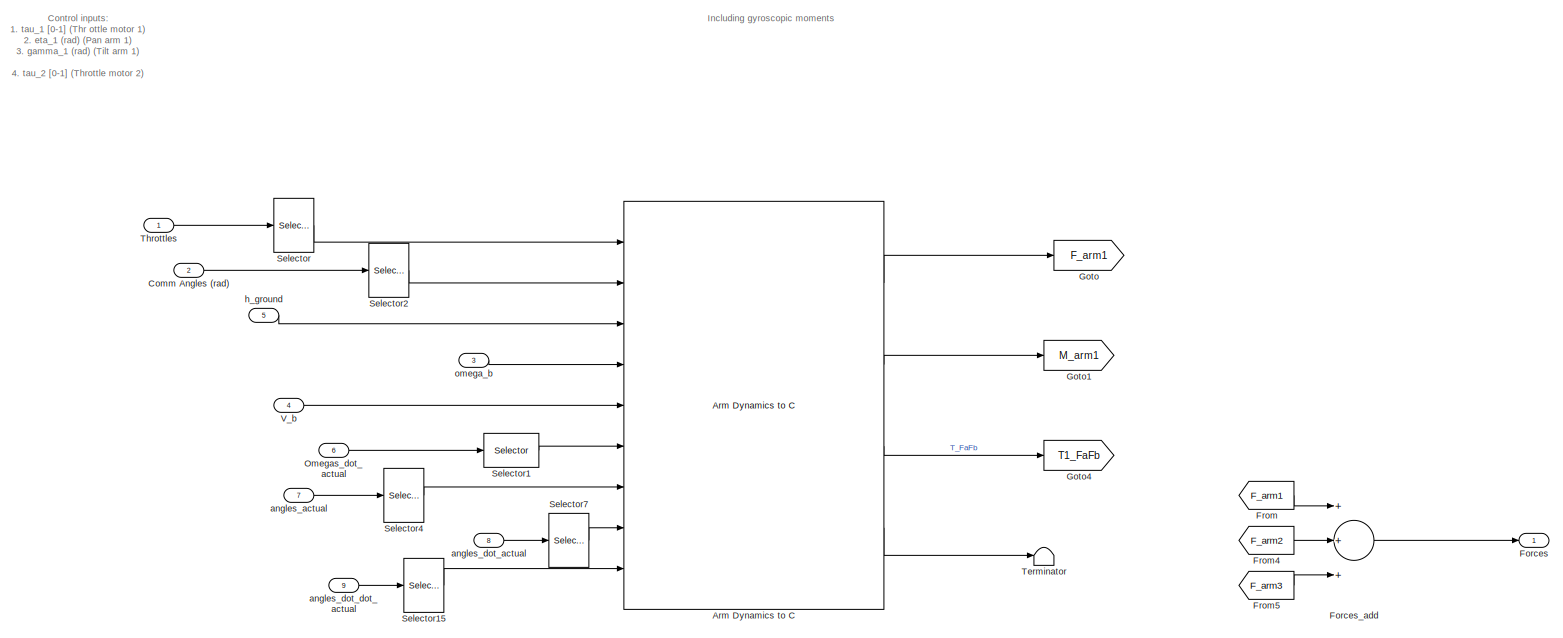
[diagram: Control and guidance/NDI/3Copter_4_NDI&CA/Arms Dynamics: Forces and Moments - part 1/3, full width, top band]
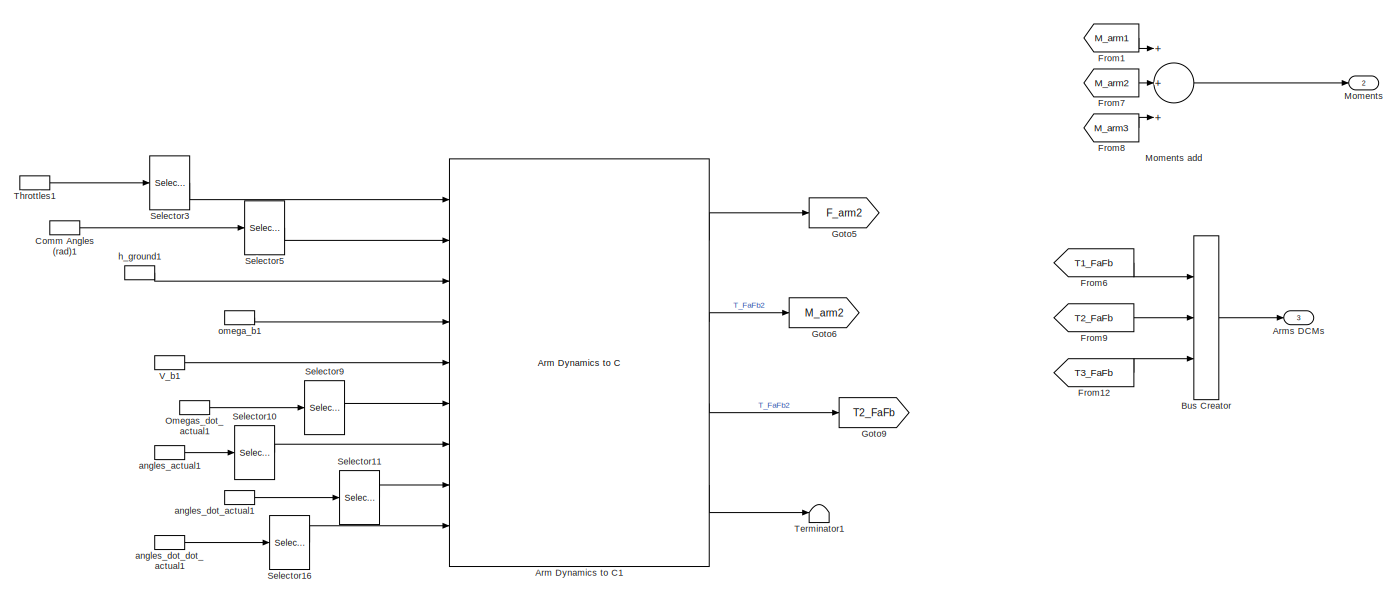
[diagram: Control and guidance/NDI/3Copter_4_NDI&CA/Arms Dynamics: Forces and Moments - part 2/3, full width, middle band]
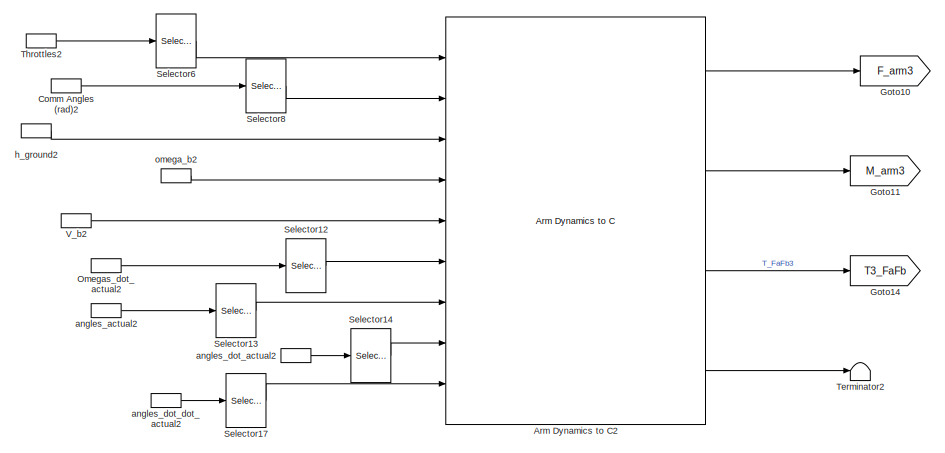
[diagram: Control and guidance/NDI/3Copter_4_NDI&CA/Arms Dynamics: Forces and Moments - part 3/3, bottom center region]
BLOCK [SubSystem] Control and guidance/NDI/3Copter_4_NDI&CA/Arms Dynamics: Forces and Moments
  Ports = [9, 3]
  RequestExecContextInheritance = off
  TreatAsAtomicUnit = on
BLOCK [Reference] Control and guidance/NDI/3Copter_4_NDI&CA/Arms Dynamics: Forces and Moments/Arm Dynamics  to C  REF=XXCopter_Control/Arm Dynamics  to C
  Arm_axis = [l_arm;0;0]
  J_FA = J_FA
  J_T = J_T
  Ports = [9, 4]
  Rot_sign = Rotation_sign(1)
  SourceBlock = XXCopter_Control/Arm Dynamics  to C
  SourceType = Arm dynamics, kinematics, forces and moments
  arm_hub_pos = l*[1;0;0]
  arm_num = 1
  eta_dir = [1;0;0]
  eta_inf_lim = deg2rad(-180)
  eta_sup_lim = deg2rad(180)
  gamma_dir = [0;1;0]
  gamma_inf_lim = deg2rad(-90)
  gamma_sup_lim = deg2rad(15)
  h = h
  omega_n = 30
  switch_val = direct_feedforward
  xi = 1.4
BLOCK [Reference] Control and guidance/NDI/3Copter_4_NDI&CA/Arms Dynamics: Forces and Moments/Arm Dynamics  to C1  REF=XXCopter_Control/Arm Dynamics  to C
  Arm_axis = [0;l_arm;0]
  J_FA = J_FA
  J_T = J_T
  Ports = [9, 4]
  Rot_sign = Rotation_sign(2)
  SourceBlock = XXCopter_Control/Arm Dynamics  to C
  SourceType = Arm dynamics, kinematics, forces and moments
  arm_hub_pos = l*[-1/2;sqrt(3)/2;0]
  arm_num = 2
  eta_dir = [0;1;0]
  eta_inf_lim = deg2rad(-180)
  eta_sup_lim = deg2rad(180)
  gamma_dir = [1;0;0]
  gamma_inf_lim = deg2rad(-15)
  gamma_sup_lim = deg2rad(90)
  h = h
  omega_n = 30
  switch_val = direct_feedforward
  xi = 1.4
BLOCK [Reference] Control and guidance/NDI/3Copter_4_NDI&CA/Arms Dynamics: Forces and Moments/Arm Dynamics  to C2  REF=XXCopter_Control/Arm Dynamics  to C
  Arm_axis = [0;-l_arm;0]
  J_FA = J_FA
  J_T = J_T
  Ports = [9, 4]
  Rot_sign = Rotation_sign(3)
  SourceBlock = XXCopter_Control/Arm Dynamics  to C
  SourceType = Arm dynamics, kinematics, forces and moments
  arm_hub_pos = l*[-1/2;-sqrt(3)/2;0]
  arm_num = 3
  eta_dir = [0;1;0]
  eta_inf_lim = deg2rad(-180)
  eta_sup_lim = deg2rad(180)
  gamma_dir = [1;0;0]
  gamma_inf_lim = deg2rad(-90)
  gamma_sup_lim = deg2rad(15)
  h = h
  omega_n = 30
  switch_val = direct_feedforward
  xi = 1.4
BLOCK [Outport] Control and guidance/NDI/3Copter_4_NDI&CA/Arms Dynamics: Forces and Moments/Arms DCMs
  IconDisplay = Port number
  Port = 3
BLOCK [BusCreator] Control and guidance/NDI/3Copter_4_NDI&CA/Arms Dynamics: Forces and Moments/Bus Creator
  DisplayOption = bar
  Inputs = 3
  Ports = [3, 1]
BLOCK [Inport] Control and guidance/NDI/3Copter_4_NDI&CA/Arms Dynamics: Forces and Moments/Comm Angles (rad)
  IconDisplay = Port number
  Port = 2
BLOCK [InportShadow] Control and guidance/NDI/3Copter_4_NDI&CA/Arms Dynamics: Forces and Moments/Comm Angles (rad)1
  IconDisplay = Port number
  Port = 2
BLOCK [InportShadow] Control and guidance/NDI/3Copter_4_NDI&CA/Arms Dynamics: Forces and Moments/Comm Angles (rad)2
  IconDisplay = Port number
  Port = 2
BLOCK [Outport] Control and guidance/NDI/3Copter_4_NDI&CA/Arms Dynamics: Forces and Moments/Forces
  IconDisplay = Port number
BLOCK [Sum] Control and guidance/NDI/3Copter_4_NDI&CA/Arms Dynamics: Forces and Moments/Forces_add
  InputSameDT = off
  Inputs = +++
  OutDataTypeStr = Inherit: Inherit via internal rule
  Ports = [3, 1]
  SaturateOnIntegerOverflow = off
BLOCK [From] Control and guidance/NDI/3Copter_4_NDI&CA/Arms Dynamics: Forces and Moments/From
  GotoTag = F_arm1
BLOCK [From] Control and guidance/NDI/3Copter_4_NDI&CA/Arms Dynamics: Forces and Moments/From1
  GotoTag = M_arm1
BLOCK [From] Control and guidance/NDI/3Copter_4_NDI&CA/Arms Dynamics: Forces and Moments/From12
  GotoTag = T3_FaFb
BLOCK [From] Control and guidance/NDI/3Copter_4_NDI&CA/Arms Dynamics: Forces and Moments/From4
  GotoTag = F_arm2
BLOCK [From] Control and guidance/NDI/3Copter_4_NDI&CA/Arms Dynamics: Forces and Moments/From5
  GotoTag = F_arm3
BLOCK [From] Control and guidance/NDI/3Copter_4_NDI&CA/Arms Dynamics: Forces and Moments/From6
  GotoTag = T1_FaFb
BLOCK [From] Control and guidance/NDI/3Copter_4_NDI&CA/Arms Dynamics: Forces and Moments/From7
  GotoTag = M_arm2
BLOCK [From] Control and guidance/NDI/3Copter_4_NDI&CA/Arms Dynamics: Forces and Moments/From8
  GotoTag = M_arm3
BLOCK [From] Control and guidance/NDI/3Copter_4_NDI&CA/Arms Dynamics: Forces and Moments/From9
  GotoTag = T2_FaFb
BLOCK [Goto] Control and guidance/NDI/3Copter_4_NDI&CA/Arms Dynamics: Forces and Moments/Goto
  GotoTag = F_arm1
BLOCK [Goto] Control and guidance/NDI/3Copter_4_NDI&CA/Arms Dynamics: Forces and Moments/Goto1
  GotoTag = M_arm1
BLOCK [Goto] Control and guidance/NDI/3Copter_4_NDI&CA/Arms Dynamics: Forces and Moments/Goto10
  GotoTag = F_arm3
BLOCK [Goto] Control and guidance/NDI/3Copter_4_NDI&CA/Arms Dynamics: Forces and Moments/Goto11
  GotoTag = M_arm3
BLOCK [Goto] Control and guidance/NDI/3Copter_4_NDI&CA/Arms Dynamics: Forces and Moments/Goto14
  GotoTag = T3_FaFb
BLOCK [Goto] Control and guidance/NDI/3Copter_4_NDI&CA/Arms Dynamics: Forces and Moments/Goto4
  GotoTag = T1_FaFb
BLOCK [Goto] Control and guidance/NDI/3Copter_4_NDI&CA/Arms Dynamics: Forces and Moments/Goto5
  GotoTag = F_arm2
BLOCK [Goto] Control and guidance/NDI/3Copter_4_NDI&CA/Arms Dynamics: Forces and Moments/Goto6
  GotoTag = M_arm2
BLOCK [Goto] Control and guidance/NDI/3Copter_4_NDI&CA/Arms Dynamics: Forces and Moments/Goto9
  GotoTag = T2_FaFb
BLOCK [Outport] Control and guidance/NDI/3Copter_4_NDI&CA/Arms Dynamics: Forces and Moments/Moments
  IconDisplay = Port number
  Port = 2
BLOCK [Sum] Control and guidance/NDI/3Copter_4_NDI&CA/Arms Dynamics: Forces and Moments/Moments add
  InputSameDT = off
  Inputs = +++
  OutDataTypeStr = Inherit: Inherit via internal rule
  Ports = [3, 1]
  SaturateOnIntegerOverflow = off
BLOCK [Inport] Control and guidance/NDI/3Copter_4_NDI&CA/Arms Dynamics: Forces and Moments/Omegas_dot_actual
  IconDisplay = Port number
  Port = 6
BLOCK [InportShadow] Control and guidance/NDI/3Copter_4_NDI&CA/Arms Dynamics: Forces and Moments/Omegas_dot_actual1
  IconDisplay = Port number
  Port = 6
BLOCK [InportShadow] Control and guidance/NDI/3Copter_4_NDI&CA/Arms Dynamics: Forces and Moments/Omegas_dot_actual2
  IconDisplay = Port number
  Port = 6
BLOCK [Selector] Control and guidance/NDI/3Copter_4_NDI&CA/Arms Dynamics: Forces and Moments/Selector
  IndexMode = Zero-based
  Indices = 0
  InputPortWidth = 3
  Ports = [1, 1]
BLOCK [Selector] Control and guidance/NDI/3Copter_4_NDI&CA/Arms Dynamics: Forces and Moments/Selector1
  IndexMode = Zero-based
  Indices = 0
  InputPortWidth = 3
  Ports = [1, 1]
BLOCK [Selector] Control and guidance/NDI/3Copter_4_NDI&CA/Arms Dynamics: Forces and Moments/Selector10
  IndexMode = Zero-based
  Indices = [2,3]
  InputPortWidth = 6
  Ports = [1, 1]
BLOCK [Selector] Control and guidance/NDI/3Copter_4_NDI&CA/Arms Dynamics: Forces and Moments/Selector11
  IndexMode = Zero-based
  Indices = [2,3]
  InputPortWidth = 6
  Ports = [1, 1]
BLOCK [Selector] Control and guidance/NDI/3Copter_4_NDI&CA/Arms Dynamics: Forces and Moments/Selector12
  IndexMode = Zero-based
  Indices = 2
  InputPortWidth = 3
  Ports = [1, 1]
BLOCK [Selector] Control and guidance/NDI/3Copter_4_NDI&CA/Arms Dynamics: Forces and Moments/Selector13
  IndexMode = Zero-based
  Indices = [4,5]
  InputPortWidth = 6
  Ports = [1, 1]
BLOCK [Selector] Control and guidance/NDI/3Copter_4_NDI&CA/Arms Dynamics: Forces and Moments/Selector14
  IndexMode = Zero-based
  Indices = [4,5]
  InputPortWidth = 6
  Ports = [1, 1]
BLOCK [Selector] Control and guidance/NDI/3Copter_4_NDI&CA/Arms Dynamics: Forces and Moments/Selector15
  IndexMode = Zero-based
  Indices = [0,1]
  InputPortWidth = 6
  Ports = [1, 1]
BLOCK [Selector] Control and guidance/NDI/3Copter_4_NDI&CA/Arms Dynamics: Forces and Moments/Selector16
  IndexMode = Zero-based
  Indices = [2,3]
  InputPortWidth = 6
  Ports = [1, 1]
BLOCK [Selector] Control and guidance/NDI/3Copter_4_NDI&CA/Arms Dynamics: Forces and Moments/Selector17
  IndexMode = Zero-based
  Indices = [4,5]
  InputPortWidth = 6
  Ports = [1, 1]
BLOCK [Selector] Control and guidance/NDI/3Copter_4_NDI&CA/Arms Dynamics: Forces and Moments/Selector2
  IndexMode = Zero-based
  Indices = [0,1]
  InputPortWidth = 6
  Ports = [1, 1]
BLOCK [Selector] Control and guidance/NDI/3Copter_4_NDI&CA/Arms Dynamics: Forces and Moments/Selector3
  IndexMode = Zero-based
  InputPortWidth = 3
  Ports = [1, 1]
BLOCK [Selector] Control and guidance/NDI/3Copter_4_NDI&CA/Arms Dynamics: Forces and Moments/Selector4
  IndexMode = Zero-based
  Indices = [0,1]
  InputPortWidth = 6
  Ports = [1, 1]
BLOCK [Selector] Control and guidance/NDI/3Copter_4_NDI&CA/Arms Dynamics: Forces and Moments/Selector5
  IndexMode = Zero-based
  Indices = [2,3]
  InputPortWidth = 6
  Ports = [1, 1]
BLOCK [Selector] Control and guidance/NDI/3Copter_4_NDI&CA/Arms Dynamics: Forces and Moments/Selector6
  IndexMode = Zero-based
  Indices = 2
  InputPortWidth = 3
  Ports = [1, 1]
BLOCK [Selector] Control and guidance/NDI/3Copter_4_NDI&CA/Arms Dynamics: Forces and Moments/Selector7
  IndexMode = Zero-based
  Indices = [0,1]
  InputPortWidth = 6
  Ports = [1, 1]
BLOCK [Selector] Control and guidance/NDI/3Copter_4_NDI&CA/Arms Dynamics: Forces and Moments/Selector8
  IndexMode = Zero-based
  Indices = [4,5]
  InputPortWidth = 6
  Ports = [1, 1]
BLOCK [Selector] Control and guidance/NDI/3Copter_4_NDI&CA/Arms Dynamics: Forces and Moments/Selector9
  IndexMode = Zero-based
  InputPortWidth = 3
  Ports = [1, 1]
BLOCK [Terminator] Control and guidance/NDI/3Copter_4_NDI&CA/Arms Dynamics: Forces and Moments/Terminator
BLOCK [Terminator] Control and guidance/NDI/3Copter_4_NDI&CA/Arms Dynamics: Forces and Moments/Terminator1
BLOCK [Terminator] Control and guidance/NDI/3Copter_4_NDI&CA/Arms Dynamics: Forces and Moments/Terminator2
BLOCK [Inport] Control and guidance/NDI/3Copter_4_NDI&CA/Arms Dynamics: Forces and Moments/Throttles
  IconDisplay = Port number
BLOCK [InportShadow] Control and guidance/NDI/3Copter_4_NDI&CA/Arms Dynamics: Forces and Moments/Throttles1
  IconDisplay = Port number
BLOCK [InportShadow] Control and guidance/NDI/3Copter_4_NDI&CA/Arms Dynamics: Forces and Moments/Throttles2
  IconDisplay = Port number
BLOCK [Inport] Control and guidance/NDI/3Copter_4_NDI&CA/Arms Dynamics: Forces and Moments/V_b
  IconDisplay = Port number
  Port = 4
BLOCK [InportShadow] Control and guidance/NDI/3Copter_4_NDI&CA/Arms Dynamics: Forces and Moments/V_b1
  IconDisplay = Port number
  Port = 4
BLOCK [InportShadow] Control and guidance/NDI/3Copter_4_NDI&CA/Arms Dynamics: Forces and Moments/V_b2
  IconDisplay = Port number
  Port = 4
BLOCK [Inport] Control and guidance/NDI/3Copter_4_NDI&CA/Arms Dynamics: Forces and Moments/angles_actual
  IconDisplay = Port number
  Port = 7
BLOCK [InportShadow] Control and guidance/NDI/3Copter_4_NDI&CA/Arms Dynamics: Forces and Moments/angles_actual1
  IconDisplay = Port number
  Port = 7
BLOCK [InportShadow] Control and guidance/NDI/3Copter_4_NDI&CA/Arms Dynamics: Forces and Moments/angles_actual2
  IconDisplay = Port number
  Port = 7
BLOCK [Inport] Control and guidance/NDI/3Copter_4_NDI&CA/Arms Dynamics: Forces and Moments/angles_dot_actual
  IconDisplay = Port number
  Port = 8
BLOCK [InportShadow] Control and guidance/NDI/3Copter_4_NDI&CA/Arms Dynamics: Forces and Moments/angles_dot_actual1
  IconDisplay = Port number
  Port = 8
BLOCK [InportShadow] Control and guidance/NDI/3Copter_4_NDI&CA/Arms Dynamics: Forces and Moments/angles_dot_actual2
  IconDisplay = Port number
  Port = 8
BLOCK [Inport] Control and guidance/NDI/3Copter_4_NDI&CA/Arms Dynamics: Forces and Moments/angles_dot_dot_actual
  IconDisplay = Port number
  Port = 9
BLOCK [InportShadow] Control and guidance/NDI/3Copter_4_NDI&CA/Arms Dynamics: Forces and Moments/angles_dot_dot_actual1
  IconDisplay = Port number
  Port = 9
BLOCK [InportShadow] Control and guidance/NDI/3Copter_4_NDI&CA/Arms Dynamics: Forces and Moments/angles_dot_dot_actual2
  IconDisplay = Port number
  Port = 9
BLOCK [Inport] Control and guidance/NDI/3Copter_4_NDI&CA/Arms Dynamics: Forces and Moments/h_ground
  IconDisplay = Port number
  Port = 5
BLOCK [InportShadow] Control and guidance/NDI/3Copter_4_NDI&CA/Arms Dynamics: Forces and Moments/h_ground1
  IconDisplay = Port number
  Port = 5
BLOCK [InportShadow] Control and guidance/NDI/3Copter_4_NDI&CA/Arms Dynamics: Forces and Moments/h_ground2
  IconDisplay = Port number
  Port = 5
BLOCK [Inport] Control and guidance/NDI/3Copter_4_NDI&CA/Arms Dynamics: Forces and Moments/omega_b
  IconDisplay = Port number
  Port = 3
BLOCK [InportShadow] Control and guidance/NDI/3Copter_4_NDI&CA/Arms Dynamics: Forces and Moments/omega_b1
  IconDisplay = Port number
  Port = 3
BLOCK [InportShadow] Control and guidance/NDI/3Copter_4_NDI&CA/Arms Dynamics: Forces and Moments/omega_b2
  IconDisplay = Port number
  Port = 3
BLOCK [Bias] Control and guidance/NDI/3Copter_4_NDI&CA/Bias from bottom to BAC assuming euler=1
  Bias = 0.04
  SaturateOnIntegerOverflow = off
BLOCK [Bias] Control and guidance/NDI/3Copter_4_NDI&CA/Bias from bottom to prop assuming euler=0
  Bias = 0.04+h
  SaturateOnIntegerOverflow = off
BLOCK [Outport] Control and guidance/NDI/3Copter_4_NDI&CA/CA_grad
  IconDisplay = Port number
  Port = 3
BLOCK [Constant] Control and guidance/NDI/3Copter_4_NDI&CA/CG
  Value = CG_0
BLOCK [Outport] Control and guidance/NDI/3Copter_4_NDI&CA/CG 
  IconDisplay = Port number
  Port = 5
BLOCK [Inport] Control and guidance/NDI/3Copter_4_NDI&CA/Control Inputs (rad)
  IconDisplay = Port number
  Port = 2
BLOCK [Inport] Control and guidance/NDI/3Copter_4_NDI&CA/Curr_V
  IconDisplay = Port number
  Port = 12
BLOCK [Product] Control and guidance/NDI/3Copter_4_NDI&CA/Equivalent Throttle
  InputSameDT = off
  Inputs = **
  OutDataTypeStr = Inherit: Inherit via internal rule
  Ports = [2, 1]
  RndMeth = Floor
  SaturateOnIntegerOverflow = off
BLOCK [Outport] Control and guidance/NDI/3Copter_4_NDI&CA/Forces
  IconDisplay = Port number
BLOCK [From] Control and guidance/NDI/3Copter_4_NDI&CA/From12
  GotoTag = M_g
BLOCK [From] Control and guidance/NDI/3Copter_4_NDI&CA/From2
  GotoTag = F_arm
BLOCK [From] Control and guidance/NDI/3Copter_4_NDI&CA/From4
  GotoTag = F_g
BLOCK [From] Control and guidance/NDI/3Copter_4_NDI&CA/From5
  GotoTag = M_arm
BLOCK [From] Control and guidance/NDI/3Copter_4_NDI&CA/From7
  GotoTag = M_g
BLOCK [From] Control and guidance/NDI/3Copter_4_NDI&CA/From9
  GotoTag = F_g
BLOCK [SubSystem] Control and guidance/NDI/3Copter_4_NDI&CA/Get gradient
  ErrorFcn = Stateflow.Translate.translate
  PermitHierarchicalResolution = ExplicitOnly
  Ports = [2, 1]
  RequestExecContextInheritance = off
  SFBlockType = MATLAB Function
  TreatAsAtomicUnit = on
BLOCK [Demux] Control and guidance/NDI/3Copter_4_NDI&CA/Get gradient/ Demux 
  Outputs = 1
  Ports = [1, 1]
BLOCK [S-Function] Control and guidance/NDI/3Copter_4_NDI&CA/Get gradient/ SFunction 
  EnableBusSupport = on
  FunctionName = sf_sfun
  PortCounts = [2 2]
  Ports = [2, 2]
  Tag = Stateflow S-Function simulink_app_9dof 32
BLOCK [Terminator] Control and guidance/NDI/3Copter_4_NDI&CA/Get gradient/ Terminator 
BLOCK [Outport] Control and guidance/NDI/3Copter_4_NDI&CA/Get gradient/CA_Grad
  IconDisplay = Port number
BLOCK [Inport] Control and guidance/NDI/3Copter_4_NDI&CA/Get gradient/Perturb_evaluations
  IconDisplay = Port number
  Port = 2
BLOCK [Inport] Control and guidance/NDI/3Copter_4_NDI&CA/Get gradient/epsilon
  IconDisplay = Port number
BLOCK [Goto] Control and guidance/NDI/3Copter_4_NDI&CA/Goto2
  GotoTag = F_arm
BLOCK [Goto] Control and guidance/NDI/3Copter_4_NDI&CA/Goto3
  GotoTag = M_arm
BLOCK [Goto] Control and guidance/NDI/3Copter_4_NDI&CA/Goto6
  GotoTag = F_g
BLOCK [Goto] Control and guidance/NDI/3Copter_4_NDI&CA/Goto7
  GotoTag = M_g
BLOCK [SubSystem] Control and guidance/NDI/3Copter_4_NDI&CA/Gradient
  Ports = [11, 1]
  RequestExecContextInheritance = off
  TreatAsAtomicUnit = on
BLOCK [Sum] Control and guidance/NDI/3Copter_4_NDI&CA/Gradient/Add
  InputSameDT = off
  OutDataTypeStr = Inherit: Inherit via internal rule
  Ports = [2, 1]
  SaturateOnIntegerOverflow = off
BLOCK [Sum] Control and guidance/NDI/3Copter_4_NDI&CA/Gradient/Add1
  InputSameDT = off
  OutDataTypeStr = Inherit: Inherit via internal rule
  Ports = [2, 1]
  SaturateOnIntegerOverflow = off
BLOCK [SubSystem] Control and guidance/NDI/3Copter_4_NDI&CA/Gradient/Arms Dynamics: Forces and Moments
  Ports = [9, 3]
  RequestExecContextInheritance = off
  TreatAsAtomicUnit = on
BLOCK [Reference] Control and guidance/NDI/3Copter_4_NDI&CA/Gradient/Arms Dynamics: Forces and Moments/Arm Dynamics  to C  REF=XXCopter_Control/Arm Dynamics  to C
  Arm_axis = [l_arm;0;0]
  J_FA = J_FA
  J_T = J_T
  Ports = [9, 4]
  Rot_sign = Rotation_sign(1)
  SourceBlock = XXCopter_Control/Arm Dynamics  to C
  SourceType = Arm dynamics, kinematics, forces and moments
  arm_hub_pos = l*[1;0;0]
  arm_num = 1
  eta_dir = [1;0;0]
  eta_inf_lim = deg2rad(-180)
  eta_sup_lim = deg2rad(180)
  gamma_dir = [0;1;0]
  gamma_inf_lim = deg2rad(-90)
  gamma_sup_lim = deg2rad(15)
  h = h
  omega_n = 30
  switch_val = direct_feedforward
  xi = 1.4
BLOCK [Reference] Control and guidance/NDI/3Copter_4_NDI&CA/Gradient/Arms Dynamics: Forces and Moments/Arm Dynamics  to C1  REF=XXCopter_Control/Arm Dynamics  to C
  Arm_axis = [0;l_arm;0]
  J_FA = J_FA
  J_T = J_T
  Ports = [9, 4]
  Rot_sign = Rotation_sign(2)
  SourceBlock = XXCopter_Control/Arm Dynamics  to C
  SourceType = Arm dynamics, kinematics, forces and moments
  arm_hub_pos = l*[-1/2;sqrt(3)/2;0]
  arm_num = 2
  eta_dir = [0;1;0]
  eta_inf_lim = deg2rad(-180)
  eta_sup_lim = deg2rad(180)
  gamma_dir = [1;0;0]
  gamma_inf_lim = deg2rad(-15)
  gamma_sup_lim = deg2rad(90)
  h = h
  omega_n = 30
  switch_val = direct_feedforward
  xi = 1.4
BLOCK [Reference] Control and guidance/NDI/3Copter_4_NDI&CA/Gradient/Arms Dynamics: Forces and Moments/Arm Dynamics  to C2  REF=XXCopter_Control/Arm Dynamics  to C
  Arm_axis = [0;-l_arm;0]
  J_FA = J_FA
  J_T = J_T
  Ports = [9, 4]
  Rot_sign = Rotation_sign(3)
  SourceBlock = XXCopter_Control/Arm Dynamics  to C
  SourceType = Arm dynamics, kinematics, forces and moments
  arm_hub_pos = l*[-1/2;-sqrt(3)/2;0]
  arm_num = 3
  eta_dir = [0;1;0]
  eta_inf_lim = deg2rad(-180)
  eta_sup_lim = deg2rad(180)
  gamma_dir = [1;0;0]
  gamma_inf_lim = deg2rad(-90)
  gamma_sup_lim = deg2rad(15)
  h = h
  omega_n = 30
  switch_val = direct_feedforward
  xi = 1.4
BLOCK [Outport] Control and guidance/NDI/3Copter_4_NDI&CA/Gradient/Arms Dynamics: Forces and Moments/Arms DCMs
  IconDisplay = Port number
  Port = 3
BLOCK [BusCreator] Control and guidance/NDI/3Copter_4_NDI&CA/Gradient/Arms Dynamics: Forces and Moments/Bus Creator
  DisplayOption = bar
  Inputs = 3
  Ports = [3, 1]
BLOCK [Inport] Control and guidance/NDI/3Copter_4_NDI&CA/Gradient/Arms Dynamics: Forces and Moments/Comm Angles (rad)
  IconDisplay = Port number
  Port = 2
BLOCK [InportShadow] Control and guidance/NDI/3Copter_4_NDI&CA/Gradient/Arms Dynamics: Forces and Moments/Comm Angles (rad)1
  IconDisplay = Port number
  Port = 2
BLOCK [InportShadow] Control and guidance/NDI/3Copter_4_NDI&CA/Gradient/Arms Dynamics: Forces and Moments/Comm Angles (rad)2
  IconDisplay = Port number
  Port = 2
BLOCK [Outport] Control and guidance/NDI/3Copter_4_NDI&CA/Gradient/Arms Dynamics: Forces and Moments/Forces
  IconDisplay = Port number
BLOCK [Sum] Control and guidance/NDI/3Copter_4_NDI&CA/Gradient/Arms Dynamics: Forces and Moments/Forces_add
  InputSameDT = off
  Inputs = +++
  OutDataTypeStr = Inherit: Inherit via internal rule
  Ports = [3, 1]
  SaturateOnIntegerOverflow = off
BLOCK [From] Control and guidance/NDI/3Copter_4_NDI&CA/Gradient/Arms Dynamics: Forces and Moments/From
  GotoTag = F_arm1
BLOCK [From] Control and guidance/NDI/3Copter_4_NDI&CA/Gradient/Arms Dynamics: Forces and Moments/From1
  GotoTag = M_arm1
BLOCK [From] Control and guidance/NDI/3Copter_4_NDI&CA/Gradient/Arms Dynamics: Forces and Moments/From12
  GotoTag = T3_FaFb
BLOCK [From] Control and guidance/NDI/3Copter_4_NDI&CA/Gradient/Arms Dynamics: Forces and Moments/From4
  GotoTag = F_arm2
BLOCK [From] Control and guidance/NDI/3Copter_4_NDI&CA/Gradient/Arms Dynamics: Forces and Moments/From5
  GotoTag = F_arm3
BLOCK [From] Control and guidance/NDI/3Copter_4_NDI&CA/Gradient/Arms Dynamics: Forces and Moments/From6
  GotoTag = T1_FaFb
BLOCK [From] Control and guidance/NDI/3Copter_4_NDI&CA/Gradient/Arms Dynamics: Forces and Moments/From7
  GotoTag = M_arm2
BLOCK [From] Control and guidance/NDI/3Copter_4_NDI&CA/Gradient/Arms Dynamics: Forces and Moments/From8
  GotoTag = M_arm3
BLOCK [From] Control and guidance/NDI/3Copter_4_NDI&CA/Gradient/Arms Dynamics: Forces and Moments/From9
  GotoTag = T2_FaFb
BLOCK [Goto] Control and guidance/NDI/3Copter_4_NDI&CA/Gradient/Arms Dynamics: Forces and Moments/Goto
  GotoTag = F_arm1
BLOCK [Goto] Control and guidance/NDI/3Copter_4_NDI&CA/Gradient/Arms Dynamics: Forces and Moments/Goto1
  GotoTag = M_arm1
BLOCK [Goto] Control and guidance/NDI/3Copter_4_NDI&CA/Gradient/Arms Dynamics: Forces and Moments/Goto10
  GotoTag = F_arm3
BLOCK [Goto] Control and guidance/NDI/3Copter_4_NDI&CA/Gradient/Arms Dynamics: Forces and Moments/Goto11
  GotoTag = M_arm3
BLOCK [Goto] Control and guidance/NDI/3Copter_4_NDI&CA/Gradient/Arms Dynamics: Forces and Moments/Goto14
  GotoTag = T3_FaFb
BLOCK [Goto] Control and guidance/NDI/3Copter_4_NDI&CA/Gradient/Arms Dynamics: Forces and Moments/Goto4
  GotoTag = T1_FaFb
BLOCK [Goto] Control and guidance/NDI/3Copter_4_NDI&CA/Gradient/Arms Dynamics: Forces and Moments/Goto5
  GotoTag = F_arm2
BLOCK [Goto] Control and guidance/NDI/3Copter_4_NDI&CA/Gradient/Arms Dynamics: Forces and Moments/Goto6
  GotoTag = M_arm2
BLOCK [Goto] Control and guidance/NDI/3Copter_4_NDI&CA/Gradient/Arms Dynamics: Forces and Moments/Goto9
  GotoTag = T2_FaFb
BLOCK [Outport] Control and guidance/NDI/3Copter_4_NDI&CA/Gradient/Arms Dynamics: Forces and Moments/Moments
  IconDisplay = Port number
  Port = 2
BLOCK [Sum] Control and guidance/NDI/3Copter_4_NDI&CA/Gradient/Arms Dynamics: Forces and Moments/Moments add
  InputSameDT = off
  Inputs = +++
  OutDataTypeStr = Inherit: Inherit via internal rule
  Ports = [3, 1]
  SaturateOnIntegerOverflow = off
BLOCK [Inport] Control and guidance/NDI/3Copter_4_NDI&CA/Gradient/Arms Dynamics: Forces and Moments/Omegas_dot_actual
  IconDisplay = Port number
  Port = 6
BLOCK [InportShadow] Control and guidance/NDI/3Copter_4_NDI&CA/Gradient/Arms Dynamics: Forces and Moments/Omegas_dot_actual1
  IconDisplay = Port number
  Port = 6
BLOCK [InportShadow] Control and guidance/NDI/3Copter_4_NDI&CA/Gradient/Arms Dynamics: Forces and Moments/Omegas_dot_actual2
  IconDisplay = Port number
  Port = 6
BLOCK [Selector] Control and guidance/NDI/3Copter_4_NDI&CA/Gradient/Arms Dynamics: Forces and Moments/Selector
  IndexMode = Zero-based
  Indices = 0
  InputPortWidth = 3
  Ports = [1, 1]
BLOCK [Selector] Control and guidance/NDI/3Copter_4_NDI&CA/Gradient/Arms Dynamics: Forces and Moments/Selector1
  IndexMode = Zero-based
  Indices = 0
  InputPortWidth = 3
  Ports = [1, 1]
BLOCK [Selector] Control and guidance/NDI/3Copter_4_NDI&CA/Gradient/Arms Dynamics: Forces and Moments/Selector10
  IndexMode = Zero-based
  Indices = [2,3]
  InputPortWidth = 6
  Ports = [1, 1]
BLOCK [Selector] Control and guidance/NDI/3Copter_4_NDI&CA/Gradient/Arms Dynamics: Forces and Moments/Selector11
  IndexMode = Zero-based
  Indices = [2,3]
  InputPortWidth = 6
  Ports = [1, 1]
BLOCK [Selector] Control and guidance/NDI/3Copter_4_NDI&CA/Gradient/Arms Dynamics: Forces and Moments/Selector12
  IndexMode = Zero-based
  Indices = 2
  InputPortWidth = 3
  Ports = [1, 1]
BLOCK [Selector] Control and guidance/NDI/3Copter_4_NDI&CA/Gradient/Arms Dynamics: Forces and Moments/Selector13
  IndexMode = Zero-based
  Indices = [4,5]
  InputPortWidth = 6
  Ports = [1, 1]
BLOCK [Selector] Control and guidance/NDI/3Copter_4_NDI&CA/Gradient/Arms Dynamics: Forces and Moments/Selector14
  IndexMode = Zero-based
  Indices = [4,5]
  InputPortWidth = 6
  Ports = [1, 1]
BLOCK [Selector] Control and guidance/NDI/3Copter_4_NDI&CA/Gradient/Arms Dynamics: Forces and Moments/Selector15
  IndexMode = Zero-based
  Indices = [0,1]
  InputPortWidth = 6
  Ports = [1, 1]
BLOCK [Selector] Control and guidance/NDI/3Copter_4_NDI&CA/Gradient/Arms Dynamics: Forces and Moments/Selector16
  IndexMode = Zero-based
  Indices = [2,3]
  InputPortWidth = 6
  Ports = [1, 1]
BLOCK [Selector] Control and guidance/NDI/3Copter_4_NDI&CA/Gradient/Arms Dynamics: Forces and Moments/Selector17
  IndexMode = Zero-based
  Indices = [4,5]
  InputPortWidth = 6
  Ports = [1, 1]
BLOCK [Selector] Control and guidance/NDI/3Copter_4_NDI&CA/Gradient/Arms Dynamics: Forces and Moments/Selector2
  IndexMode = Zero-based
  Indices = [0,1]
  InputPortWidth = 6
  Ports = [1, 1]
BLOCK [Selector] Control and guidance/NDI/3Copter_4_NDI&CA/Gradient/Arms Dynamics: Forces and Moments/Selector3
  IndexMode = Zero-based
  InputPortWidth = 3
  Ports = [1, 1]
BLOCK [Selector] Control and guidance/NDI/3Copter_4_NDI&CA/Gradient/Arms Dynamics: Forces and Moments/Selector4
  IndexMode = Zero-based
  Indices = [0,1]
  InputPortWidth = 6
  Ports = [1, 1]
BLOCK [Selector] Control and guidance/NDI/3Copter_4_NDI&CA/Gradient/Arms Dynamics: Forces and Moments/Selector5
  IndexMode = Zero-based
  Indices = [2,3]
  InputPortWidth = 6
  Ports = [1, 1]
BLOCK [Selector] Control and guidance/NDI/3Copter_4_NDI&CA/Gradient/Arms Dynamics: Forces and Moments/Selector6
  IndexMode = Zero-based
  Indices = 2
  InputPortWidth = 3
  Ports = [1, 1]
BLOCK [Selector] Control and guidance/NDI/3Copter_4_NDI&CA/Gradient/Arms Dynamics: Forces and Moments/Selector7
  IndexMode = Zero-based
  Indices = [0,1]
  InputPortWidth = 6
  Ports = [1, 1]
BLOCK [Selector] Control and guidance/NDI/3Copter_4_NDI&CA/Gradient/Arms Dynamics: Forces and Moments/Selector8
  IndexMode = Zero-based
  Indices = [4,5]
  InputPortWidth = 6
  Ports = [1, 1]
BLOCK [Selector] Control and guidance/NDI/3Copter_4_NDI&CA/Gradient/Arms Dynamics: Forces and Moments/Selector9
  IndexMode = Zero-based
  InputPortWidth = 3
  Ports = [1, 1]
BLOCK [Terminator] Control and guidance/NDI/3Copter_4_NDI&CA/Gradient/Arms Dynamics: Forces and Moments/Terminator
BLOCK [Terminator] Control and guidance/NDI/3Copter_4_NDI&CA/Gradient/Arms Dynamics: Forces and Moments/Terminator1
BLOCK [Terminator] Control and guidance/NDI/3Copter_4_NDI&CA/Gradient/Arms Dynamics: Forces and Moments/Terminator2
BLOCK [Inport] Control and guidance/NDI/3Copter_4_NDI&CA/Gradient/Arms Dynamics: Forces and Moments/Throttles
  IconDisplay = Port number
BLOCK [InportShadow] Control and guidance/NDI/3Copter_4_NDI&CA/Gradient/Arms Dynamics: Forces and Moments/Throttles1
  IconDisplay = Port number
BLOCK [InportShadow] Control and guidance/NDI/3Copter_4_NDI&CA/Gradient/Arms Dynamics: Forces and Moments/Throttles2
  IconDisplay = Port number
BLOCK [Inport] Control and guidance/NDI/3Copter_4_NDI&CA/Gradient/Arms Dynamics: Forces and Moments/V_b
  IconDisplay = Port number
  Port = 4
BLOCK [InportShadow] Control and guidance/NDI/3Copter_4_NDI&CA/Gradient/Arms Dynamics: Forces and Moments/V_b1
  IconDisplay = Port number
  Port = 4
BLOCK [InportShadow] Control and guidance/NDI/3Copter_4_NDI&CA/Gradient/Arms Dynamics: Forces and Moments/V_b2
  IconDisplay = Port number
  Port = 4
BLOCK [Inport] Control and guidance/NDI/3Copter_4_NDI&CA/Gradient/Arms Dynamics: Forces and Moments/angles_actual
  IconDisplay = Port number
  Port = 7
BLOCK [InportShadow] Control and guidance/NDI/3Copter_4_NDI&CA/Gradient/Arms Dynamics: Forces and Moments/angles_actual1
  IconDisplay = Port number
  Port = 7
BLOCK [InportShadow] Control and guidance/NDI/3Copter_4_NDI&CA/Gradient/Arms Dynamics: Forces and Moments/angles_actual2
  IconDisplay = Port number
  Port = 7
BLOCK [Inport] Control and guidance/NDI/3Copter_4_NDI&CA/Gradient/Arms Dynamics: Forces and Moments/angles_dot_actual
  IconDisplay = Port number
  Port = 8
BLOCK [InportShadow] Control and guidance/NDI/3Copter_4_NDI&CA/Gradient/Arms Dynamics: Forces and Moments/angles_dot_actual1
  IconDisplay = Port number
  Port = 8
BLOCK [InportShadow] Control and guidance/NDI/3Copter_4_NDI&CA/Gradient/Arms Dynamics: Forces and Moments/angles_dot_actual2
  IconDisplay = Port number
  Port = 8
BLOCK [Inport] Control and guidance/NDI/3Copter_4_NDI&CA/Gradient/Arms Dynamics: Forces and Moments/angles_dot_dot_actual
  IconDisplay = Port number
  Port = 9
BLOCK [InportShadow] Control and guidance/NDI/3Copter_4_NDI&CA/Gradient/Arms Dynamics: Forces and Moments/angles_dot_dot_actual1
  IconDisplay = Port number
  Port = 9
BLOCK [InportShadow] Control and guidance/NDI/3Copter_4_NDI&CA/Gradient/Arms Dynamics: Forces and Moments/angles_dot_dot_actual2
  IconDisplay = Port number
  Port = 9
BLOCK [Inport] Control and guidance/NDI/3Copter_4_NDI&CA/Gradient/Arms Dynamics: Forces and Moments/h_ground
  IconDisplay = Port number
  Port = 5
BLOCK [InportShadow] Control and guidance/NDI/3Copter_4_NDI&CA/Gradient/Arms Dynamics: Forces and Moments/h_ground1
  IconDisplay = Port number
  Port = 5
BLOCK [InportShadow] Control and guidance/NDI/3Copter_4_NDI&CA/Gradient/Arms Dynamics: Forces and Moments/h_ground2
  IconDisplay = Port number
  Port = 5
BLOCK [Inport] Control and guidance/NDI/3Copter_4_NDI&CA/Gradient/Arms Dynamics: Forces and Moments/omega_b
  IconDisplay = Port number
  Port = 3
BLOCK [InportShadow] Control and guidance/NDI/3Copter_4_NDI&CA/Gradient/Arms Dynamics: Forces and Moments/omega_b1
  IconDisplay = Port number
  Port = 3
BLOCK [InportShadow] Control and guidance/NDI/3Copter_4_NDI&CA/Gradient/Arms Dynamics: Forces and Moments/omega_b2
  IconDisplay = Port number
  Port = 3
BLOCK [Inport] Control and guidance/NDI/3Copter_4_NDI&CA/Gradient/Control Inputs(rad) 
  IconDisplay = Port number
  Partition = on
  PartitionDimension = 1
  PartitionWidth = 9
  Port = 2
BLOCK [Inport] Control and guidance/NDI/3Copter_4_NDI&CA/Gradient/Curr_V
  IconDisplay = Port number
  Partition = off
BLOCK [Product] Control and guidance/NDI/3Copter_4_NDI&CA/Gradient/Equivalent Throttle
  InputSameDT = off
  Inputs = **
  OutDataTypeStr = Inherit: Inherit via internal rule
  Ports = [2, 1]
  RndMeth = Floor
  SaturateOnIntegerOverflow = off
BLOCK [Inport] Control and guidance/NDI/3Copter_4_NDI&CA/Gradient/F_g
  IconDisplay = Port number
  Partition = off
  Port = 10
BLOCK [ForEach] Control and guidance/NDI/3Copter_4_NDI&CA/Gradient/For Each
  DisableCoverage = on
  IndexMode = One-based
  Ports = []
BLOCK [Outport] Control and guidance/NDI/3Copter_4_NDI&CA/Gradient/Forces_Moments
  ConcatenationDimension = 2
  IconDisplay = Port number
BLOCK [Inport] Control and guidance/NDI/3Copter_4_NDI&CA/Gradient/M_g
  IconDisplay = Port number
  Partition = off
  Port = 11
BLOCK [Mux] Control and guidance/NDI/3Copter_4_NDI&CA/Gradient/Mux
  DisplayOption = bar
  Inputs = [3,3]
  Ports = [2, 1]
BLOCK [Inport] Control and guidance/NDI/3Copter_4_NDI&CA/Gradient/Omegas_dot_actual
  IconDisplay = Port number
  Partition = off
  Port = 6
BLOCK [SignalSpecification] Control and guidance/NDI/3Copter_4_NDI&CA/Gradient/Signal Specification
  Dimensions = [6,1]
BLOCK [Terminator] Control and guidance/NDI/3Copter_4_NDI&CA/Gradient/Terminator
BLOCK [Selector] Control and guidance/NDI/3Copter_4_NDI&CA/Gradient/Throttles
  IndexMode = Zero-based
  Indices = [0,3,6]
  InputPortWidth = 9
  Ports = [1, 1]
BLOCK [Inport] Control and guidance/NDI/3Copter_4_NDI&CA/Gradient/Vb
  IconDisplay = Port number
  Partition = off
  Port = 4
BLOCK [Selector] Control and guidance/NDI/3Copter_4_NDI&CA/Gradient/angles 
  IndexMode = Zero-based
  Indices = [1,2,4,5,7,8]
  InputPortWidth = 9
  Ports = [1, 1]
BLOCK [Inport] Control and guidance/NDI/3Copter_4_NDI&CA/Gradient/angles_actual
  IconDisplay = Port number
  Partition = off
  Port = 7
BLOCK [Inport] Control and guidance/NDI/3Copter_4_NDI&CA/Gradient/angles_dot_actual
  IconDisplay = Port number
  Partition = off
  Port = 8
BLOCK [Inport] Control and guidance/NDI/3Copter_4_NDI&CA/Gradient/angles_dot_dot_actual
  IconDisplay = Port number
  Partition = off
  Port = 9
BLOCK [Inport] Control and guidance/NDI/3Copter_4_NDI&CA/Gradient/h
  IconDisplay = Port number
  Partition = off
  Port = 3
BLOCK [Inport] Control and guidance/NDI/3Copter_4_NDI&CA/Gradient/omega_b
  IconDisplay = Port number
  Partition = off
  Port = 5
BLOCK [Reference] Control and guidance/NDI/3Copter_4_NDI&CA/Grav_force&Mom  REF=XXCopter_Control/Grav_force&Mom
  Ports = [4, 2]
  SourceBlock = XXCopter_Control/Grav_force&Mom
  SourceType = SubSystem
BLOCK [SubSystem] Control and guidance/NDI/3Copter_4_NDI&CA/Ground  model
  Ports = [3, 1]
  RequestExecContextInheritance = off
  TreatAsAtomicUnit = on
BLOCK [Outport] Control and guidance/NDI/3Copter_4_NDI&CA/Ground  model/F_ground
  IconDisplay = Port number
BLOCK [SubSystem] Control and guidance/NDI/3Copter_4_NDI&CA/Ground  model/Ground model logic and Forces and moments
  ErrorFcn = Stateflow.Translate.translate
  PermitHierarchicalResolution = ExplicitOnly
  Ports = [6, 1]
  RequestExecContextInheritance = off
  SFBlockType = MATLAB Function
  TreatAsAtomicUnit = on
BLOCK [Demux] Control and guidance/NDI/3Copter_4_NDI&CA/Ground  model/Ground model logic and Forces and moments/ Demux 
  Outputs = 1
  Ports = [1, 1]
BLOCK [S-Function] Control and guidance/NDI/3Copter_4_NDI&CA/Ground  model/Ground model logic and Forces and moments/ SFunction 
  EnableBusSupport = on
  FunctionName = sf_sfun
  Parameters = g
  PortCounts = [6 2]
  Ports = [6, 2]
  Tag = Stateflow S-Function simulink_app_9dof 33
BLOCK [Terminator] Control and guidance/NDI/3Copter_4_NDI&CA/Ground  model/Ground model logic and Forces and moments/ Terminator 
BLOCK [Inport] Control and guidance/NDI/3Copter_4_NDI&CA/Ground  model/Ground model logic and Forces and moments/Arm1
  IconDisplay = Port number
  Port = 4
BLOCK [Inport] Control and guidance/NDI/3Copter_4_NDI&CA/Ground  model/Ground model logic and Forces and moments/Arm2
  IconDisplay = Port number
  Port = 5
BLOCK [Inport] Control and guidance/NDI/3Copter_4_NDI&CA/Ground  model/Ground model logic and Forces and moments/Arm3
  IconDisplay = Port number
  Port = 6
BLOCK [Outport] Control and guidance/NDI/3Copter_4_NDI&CA/Ground  model/Ground model logic and Forces and moments/F_gr_b
  IconDisplay = Port number
BLOCK [Inport] Control and guidance/NDI/3Copter_4_NDI&CA/Ground  model/Ground model logic and Forces and moments/h
  IconDisplay = Port number
BLOCK [Inport] Control and guidance/NDI/3Copter_4_NDI&CA/Ground  model/Ground model logic and Forces and moments/mass
  IconDisplay = Port number
  Port = 2
BLOCK [Inport] Control and guidance/NDI/3Copter_4_NDI&CA/Ground  model/Ground model logic and Forces and moments/q
  IconDisplay = Port number
  Port = 3
BLOCK [Constant] Control and guidance/NDI/3Copter_4_NDI&CA/Ground  model/arm_hub position 1
  Value = l*[1;0;0]
BLOCK [Constant] Control and guidance/NDI/3Copter_4_NDI&CA/Ground  model/arm_hub position 2
  Value = l*[-1/2;sqrt(3)/2;0]
BLOCK [Constant] Control and guidance/NDI/3Copter_4_NDI&CA/Ground  model/arm_hub position 3
  Value = l*[-1/2;-sqrt(3)/2;0]
BLOCK [Inport] Control and guidance/NDI/3Copter_4_NDI&CA/Ground  model/h
  IconDisplay = Port number
BLOCK [Inport] Control and guidance/NDI/3Copter_4_NDI&CA/Ground  model/m
  IconDisplay = Port number
  Port = 2
BLOCK [Inport] Control and guidance/NDI/3Copter_4_NDI&CA/Ground  model/q
  IconDisplay = Port number
  Port = 3
BLOCK [Outport] Control and guidance/NDI/3Copter_4_NDI&CA/I_BAC
  IconDisplay = Port number
  Port = 4
BLOCK [Constant] Control and guidance/NDI/3Copter_4_NDI&CA/I_BAC_0
  Value = I_BAC_0
BLOCK [SubSystem] Control and guidance/NDI/3Copter_4_NDI&CA/Mass Properties
  Ports = [6, 2]
  RequestExecContextInheritance = off
  TreatAsAtomicUnit = on
BLOCK [SubSystem] Control and guidance/NDI/3Copter_4_NDI&CA/Mass Properties/Arm Inertia
  ErrorFcn = Stateflow.Translate.translate
  PermitHierarchicalResolution = ExplicitOnly
  Ports = [3, 4]
  RequestExecContextInheritance = off
  SFBlockType = MATLAB Function
  TreatAsAtomicUnit = on
BLOCK [Demux] Control and guidance/NDI/3Copter_4_NDI&CA/Mass Properties/Arm Inertia/ Demux 
  Outputs = 1
  Ports = [1, 1]
BLOCK [S-Function] Control and guidance/NDI/3Copter_4_NDI&CA/Mass Properties/Arm Inertia/ SFunction 
  EnableBusSupport = on
  FunctionName = sf_sfun
  Parameters = h_M,l,m_M
  PortCounts = [3 5]
  Ports = [3, 5]
  Tag = Stateflow S-Function simulink_app_9dof 34
BLOCK [Terminator] Control and guidance/NDI/3Copter_4_NDI&CA/Mass Properties/Arm Inertia/ Terminator 
BLOCK [Outport] Control and guidance/NDI/3Copter_4_NDI&CA/Mass Properties/Arm Inertia/I_M
  IconDisplay = Port number
BLOCK [Inport] Control and guidance/NDI/3Copter_4_NDI&CA/Mass Properties/Arm Inertia/T1_FAFb
  IconDisplay = Port number
BLOCK [Inport] Control and guidance/NDI/3Copter_4_NDI&CA/Mass Properties/Arm Inertia/T2_FAFb
  IconDisplay = Port number
  Port = 2
BLOCK [Inport] Control and guidance/NDI/3Copter_4_NDI&CA/Mass Properties/Arm Inertia/T3_FAFb
  IconDisplay = Port number
  Port = 3
BLOCK [Outport] Control and guidance/NDI/3Copter_4_NDI&CA/Mass Properties/Arm Inertia/r1_M
  IconDisplay = Port number
  Port = 2
BLOCK [Outport] Control and guidance/NDI/3Copter_4_NDI&CA/Mass Properties/Arm Inertia/r2_M
  IconDisplay = Port number
  Port = 3
BLOCK [Outport] Control and guidance/NDI/3Copter_4_NDI&CA/Mass Properties/Arm Inertia/r3_M
  IconDisplay = Port number
  Port = 4
BLOCK [Inport] Control and guidance/NDI/3Copter_4_NDI&CA/Mass Properties/Arms DCMs
  IconDisplay = Port number
BLOCK [BusSelector] Control and guidance/NDI/3Copter_4_NDI&CA/Mass Properties/Bus Selector
  OutputSignals = T_FaFb,T_FaFb2,T_FaFb3
  Ports = [1, 3]
BLOCK [Outport] Control and guidance/NDI/3Copter_4_NDI&CA/Mass Properties/CG
  IconDisplay = Port number
  Port = 2
BLOCK [Sum] Control and guidance/NDI/3Copter_4_NDI&CA/Mass Properties/CG position
  InputSameDT = off
  OutDataTypeStr = Inherit: Inherit via internal rule
  Ports = [2, 1]
  SaturateOnIntegerOverflow = off
BLOCK [Inport] Control and guidance/NDI/3Copter_4_NDI&CA/Mass Properties/CG_0
  IconDisplay = Port number
  Port = 2
BLOCK [Product] Control and guidance/NDI/3Copter_4_NDI&CA/Mass Properties/Divide
  InputSameDT = off
  Inputs = */
  OutDataTypeStr = Inherit: Inherit via internal rule
  Ports = [2, 1]
  RndMeth = Floor
  SaturateOnIntegerOverflow = off
BLOCK [Product] Control and guidance/NDI/3Copter_4_NDI&CA/Mass Properties/Divide1
  InputSameDT = off
  Inputs = **
  OutDataTypeStr = Inherit: Inherit via internal rule
  Ports = [2, 1]
  RndMeth = Floor
  SaturateOnIntegerOverflow = off
BLOCK [Product] Control and guidance/NDI/3Copter_4_NDI&CA/Mass Properties/Divide2
  InputSameDT = off
  Inputs = /*
  OutDataTypeStr = Inherit: Inherit via internal rule
  Ports = [2, 1]
  RndMeth = Floor
  SaturateOnIntegerOverflow = off
BLOCK [Product] Control and guidance/NDI/3Copter_4_NDI&CA/Mass Properties/Divide3
  InputSameDT = off
  Inputs = **
  OutDataTypeStr = Inherit: Inherit via internal rule
  Ports = [2, 1]
  RndMeth = Floor
  SaturateOnIntegerOverflow = off
BLOCK [Outport] Control and guidance/NDI/3Copter_4_NDI&CA/Mass Properties/I_BAC
  IconDisplay = Port number
BLOCK [Inport] Control and guidance/NDI/3Copter_4_NDI&CA/Mass Properties/I_BAC_0
  IconDisplay = Port number
  Port = 6
BLOCK [Sum] Control and guidance/NDI/3Copter_4_NDI&CA/Mass Properties/Motors Pos sum
  InputSameDT = off
  Inputs = +++
  OutDataTypeStr = Inherit: Inherit via internal rule
  Ports = [3, 1]
  SaturateOnIntegerOverflow = off
BLOCK [Sum] Control and guidance/NDI/3Copter_4_NDI&CA/Mass Properties/Total I_BAC
  InputSameDT = off
  OutDataTypeStr = Inherit: Inherit via internal rule
  Ports = [2, 1]
  SaturateOnIntegerOverflow = off
BLOCK [Inport] Control and guidance/NDI/3Copter_4_NDI&CA/Mass Properties/m
  IconDisplay = Port number
  Port = 4
BLOCK [Inport] Control and guidance/NDI/3Copter_4_NDI&CA/Mass Properties/m_0
  IconDisplay = Port number
  Port = 3
BLOCK [Inport] Control and guidance/NDI/3Copter_4_NDI&CA/Mass Properties/m_M
  IconDisplay = Port number
  Port = 5
BLOCK [Constant] Control and guidance/NDI/3Copter_4_NDI&CA/Mass2
  Value = m
BLOCK [Outport] Control and guidance/NDI/3Copter_4_NDI&CA/Moments
  IconDisplay = Port number
  Port = 2
BLOCK [Constant] Control and guidance/NDI/3Copter_4_NDI&CA/Motor Mass
  Value = m_M
BLOCK [Reference] Control and guidance/NDI/3Copter_4_NDI&CA/Normalize 4D vector  REF=XXCopter/Normalize 4D vector
  Ports = [1, 1]
  SourceBlock = XXCopter/Normalize 4D vector
  SourceType = SubSystem
BLOCK [Inport] Control and guidance/NDI/3Copter_4_NDI&CA/Omegas_dot_actual
  IconDisplay = Port number
  Port = 7
BLOCK [SubSystem] Control and guidance/NDI/3Copter_4_NDI&CA/Perturbations
  ErrorFcn = Stateflow.Translate.translate
  PermitHierarchicalResolution = ExplicitOnly
  Ports = [2, 1]
  RequestExecContextInheritance = off
  SFBlockType = MATLAB Function
  TreatAsAtomicUnit = on
BLOCK [Demux] Control and guidance/NDI/3Copter_4_NDI&CA/Perturbations/ Demux 
  Outputs = 1
  Ports = [1, 1]
BLOCK [S-Function] Control and guidance/NDI/3Copter_4_NDI&CA/Perturbations/ SFunction 
  EnableBusSupport = on
  FunctionName = sf_sfun
  PortCounts = [2 2]
  Ports = [2, 2]
  Tag = Stateflow S-Function simulink_app_9dof 35
BLOCK [Terminator] Control and guidance/NDI/3Copter_4_NDI&CA/Perturbations/ Terminator 
BLOCK [Inport] Control and guidance/NDI/3Copter_4_NDI&CA/Perturbations/Ctrl_input
  IconDisplay = Port number
  Port = 2
BLOCK [Outport] Control and guidance/NDI/3Copter_4_NDI&CA/Perturbations/Pert_Ctrl
  IconDisplay = Port number
BLOCK [Inport] Control and guidance/NDI/3Copter_4_NDI&CA/Perturbations/epsilon
  IconDisplay = Port number
BLOCK [Selector] Control and guidance/NDI/3Copter_4_NDI&CA/Throttles
  IndexMode = Zero-based
  Indices = [0,3,6]
  InputPortWidth = 9
  Ports = [1, 1]
BLOCK [Inport] Control and guidance/NDI/3Copter_4_NDI&CA/Vb
  IconDisplay = Port number
  Port = 4
BLOCK [Selector] Control and guidance/NDI/3Copter_4_NDI&CA/angles 
  IndexMode = Zero-based
  Indices = [1,2,4,5,7,8]
  InputPortWidth = 9
  Ports = [1, 1]
BLOCK [Inport] Control and guidance/NDI/3Copter_4_NDI&CA/angles_actual
  IconDisplay = Port number
  Port = 8
BLOCK [Inport] Control and guidance/NDI/3Copter_4_NDI&CA/angles_dot_actual
  IconDisplay = Port number
  Port = 9
BLOCK [Inport] Control and guidance/NDI/3Copter_4_NDI&CA/angles_dot_dot_actual
  IconDisplay = Port number
  Port = 10
BLOCK [Inport] Control and guidance/NDI/3Copter_4_NDI&CA/epsilon (rad or unitary) 
  IconDisplay = Port number
BLOCK [Constant] Control and guidance/NDI/3Copter_4_NDI&CA/g 
  Value = g
BLOCK [Inport] Control and guidance/NDI/3Copter_4_NDI&CA/h
  IconDisplay = Port number
  Port = 3
BLOCK [InportShadow] Control and guidance/NDI/3Copter_4_NDI&CA/m2
  IconDisplay = Port number
  Port = 11
BLOCK [Constant] Control and guidance/NDI/3Copter_4_NDI&CA/m_0
  Value = m_0
BLOCK [Inport] Control and guidance/NDI/3Copter_4_NDI&CA/omega_b
  IconDisplay = Port number
  Port = 6
BLOCK [Inport] Control and guidance/NDI/3Copter_4_NDI&CA/q
  IconDisplay = Port number
  Port = 5
BLOCK [Inport] Control and guidance/NDI/All_meas
  IconDisplay = Port number
  Port = 3
BLOCK [Outport] Control and guidance/NDI/B online
  IconDisplay = Port number
  Port = 2
BLOCK [BusSelector] Control and guidance/NDI/Bus Selector
  OutputSignals = Meas.omega_b_meas_radps,Meas.q_meas,Meas.V_b_meas,Meas.Alt_meas_m,Meas.Volt
  Ports = [1, 5]
BLOCK [Outport] Control and guidance/NDI/Control_defl eval (rad)
  IconDisplay = Port number
  Port = 3
BLOCK [Inport] Control and guidance/NDI/Control_defl for eval
  IconDisplay = Port number
  Port = 2
BLOCK [Demux] Control and guidance/NDI/Demux
  DisplayOption = bar
  Outputs = [3,3]
  Ports = [1, 2]
BLOCK [Derivative] Control and guidance/NDI/Derivative1
  CoefficientInTFapproximation = 500
BLOCK [Ground] Control and guidance/NDI/Ground
BLOCK [Ground] Control and guidance/NDI/Ground1
BLOCK [Sum] Control and guidance/NDI/Inversion
  IconShape = round
  InputSameDT = off
  Inputs = |+-
  OutDataTypeStr = Inherit: Inherit via internal rule
  Ports = [2, 1]
  SaturateOnIntegerOverflow = off
BLOCK [Mux] Control and guidance/NDI/Mux
  DisplayOption = bar
  Inputs = [3,3]
  Ports = [2, 1]
BLOCK [Mux] Control and guidance/NDI/Mux2
  DisplayOption = bar
  Inputs = [3,3]
  Ports = [2, 1]
BLOCK [Reference] Control and guidance/NDI/Rot eqs_ Get moments  REF=XXCopter_Control/Rot eqs_ Get moments
  Ports = [3, 1]
  SourceBlock = XXCopter_Control/Rot eqs_ Get moments
  SourceType = SubSystem
BLOCK [Reference] Control and guidance/NDI/Transl Eqs_ Get forces  REF=XXCopter_Control/Transl Eqs_ Get forces
  Ports = [6, 1]
  SourceBlock = XXCopter_Control/Transl Eqs_ Get forces
  SourceType = SubSystem
BLOCK [Outport] Control and guidance/NDI/Virtual Control Commands
  IconDisplay = Port number
BLOCK [Selector] Control and guidance/NDI/angles 
  IndexMode = Zero-based
  Indices = [1,2,4,5,7,8]
  InputPortWidth = 9
  Ports = [1, 1]
BLOCK [Constant] Control and guidance/NDI/epsilon (rad or unitary)
  Value = epsilon
BLOCK [Constant] Control and guidance/NDI/m
  Value = m
BLOCK [Constant] Control and guidance/NDI/m1
  Value = m
BLOCK [Inport] Control and guidance/NDI/pseudo_control (m//s^2;rad//s^2)
  IconDisplay = Port number
BLOCK [SubSystem] Control and guidance/Otter Overactuated P Controller
  Ports = [5, 1]
  RequestExecContextInheritance = off
  VariantControl = Overactuated P Controller
BLOCK [Product] Control and guidance/Otter Overactuated P Controller/AWU
  InputSameDT = off
  Multiplication = Matrix(*)
  OutDataTypeStr = Inherit: Inherit via internal rule
  Ports = [2, 1]
  RndMeth = Floor
  SaturateOnIntegerOverflow = off
BLOCK [Outport] Control and guidance/Otter Overactuated P Controller/Accels des
  IconDisplay = Port number
BLOCK [Sum] Control and guidance/Otter Overactuated P Controller/Add
  InputSameDT = off
  OutDataTypeStr = Inherit: Inherit via internal rule
  Ports = [2, 1]
  SaturateOnIntegerOverflow = off
BLOCK [Sum] Control and guidance/Otter Overactuated P Controller/Add1
  InputSameDT = off
  Inputs = +-
  OutDataTypeStr = Inherit: Inherit via internal rule
  Ports = [2, 1]
  SaturateOnIntegerOverflow = off
BLOCK [Sum] Control and guidance/Otter Overactuated P Controller/Add2
  InputSameDT = off
  Inputs = +-
  OutDataTypeStr = Inherit: Inherit via internal rule
  Ports = [2, 1]
  SaturateOnIntegerOverflow = off
BLOCK [Inport] Control and guidance/Otter Overactuated P Controller/All meas
  IconDisplay = Port number
  Port = 3
BLOCK [BusSelector] Control and guidance/Otter Overactuated P Controller/Bus Selector1
  OutputSignals = Params.T_Fe_Fyaw,Params.V_yaw,Params.DCM
  Ports = [1, 3]
BLOCK [BusSelector] Control and guidance/Otter Overactuated P Controller/Bus Selector2
  OutputSignals = pos_xy_act,vel_yaw_xy_act,alt_act,vel_yaw_z_act
  Ports = [1, 4]
BLOCK [Demux] Control and guidance/Otter Overactuated P Controller/Demux1
  DisplayOption = bar
  Outputs = 3
  Ports = [1, 3]
BLOCK [Demux] Control and guidance/Otter Overactuated P Controller/Demux2
  DisplayOption = bar
  Outputs = 3
  Ports = [1, 3]
BLOCK [Demux] Control and guidance/Otter Overactuated P Controller/Demux3
  DisplayOption = bar
  Outputs = [2,1]
  Ports = [1, 2]
BLOCK [Logic] Control and guidance/Otter Overactuated P Controller/Logical Operator
  AllPortsSameDT = off
  IconShape = distinctive
  OutDataTypeStr = boolean
  Ports = [2, 1]
BLOCK [Logic] Control and guidance/Otter Overactuated P Controller/Logical Operator1
  AllPortsSameDT = off
  IconShape = distinctive
  Operator = NOT
  OutDataTypeStr = boolean
  Ports = [1, 1]
BLOCK [Logic] Control and guidance/Otter Overactuated P Controller/Logical Operator2
  AllPortsSameDT = off
  IconShape = distinctive
  Operator = NOT
  OutDataTypeStr = boolean
  Ports = [1, 1]
BLOCK [Logic] Control and guidance/Otter Overactuated P Controller/Logical Operator3
  AllPortsSameDT = off
  IconShape = distinctive
  OutDataTypeStr = boolean
  Ports = [2, 1]
BLOCK [Product] Control and guidance/Otter Overactuated P Controller/Matrix Multiply1
  InputSameDT = off
  Multiplication = Matrix(*)
  OutDataTypeStr = Inherit: Inherit via internal rule
  Ports = [2, 1]
  RndMeth = Floor
  SaturateOnIntegerOverflow = off
BLOCK [Product] Control and guidance/Otter Overactuated P Controller/Matrix Multiply2
  InputSameDT = off
  Multiplication = Matrix(*)
  OutDataTypeStr = Inherit: Inherit via internal rule
  Ports = [2, 1]
  RndMeth = Floor
  SaturateOnIntegerOverflow = off
BLOCK [Product] Control and guidance/Otter Overactuated P Controller/Matrix Multiply3
  InputSameDT = off
  Multiplication = Matrix(*)
  OutDataTypeStr = Inherit: Inherit via internal rule
  Ports = [2, 1]
  RndMeth = Floor
  SaturateOnIntegerOverflow = off
BLOCK [Memory] Control and guidance/Otter Overactuated P Controller/Memory
  InheritSampleTime = on
  X0 = [0;0;0]
BLOCK [Mux] Control and guidance/Otter Overactuated P Controller/Mux
  DisplayOption = bar
  Inputs = [2,1]
  Ports = [2, 1]
BLOCK [PermuteDimensions] Control and guidance/Otter Overactuated P Controller/Permute Dimensions
BLOCK [PermuteDimensions] Control and guidance/Otter Overactuated P Controller/Permute Dimensions1
BLOCK [PermuteDimensions] Control and guidance/Otter Overactuated P Controller/Permute Dimensions2
BLOCK [SubSystem] Control and guidance/Otter Overactuated P Controller/Position Controller
  Ports = [7, 1]
  RequestExecContextInheritance = off
BLOCK [Inport] Control and guidance/Otter Overactuated P Controller/Position Controller/AWU
  IconDisplay = Port number
BLOCK [InportShadow] Control and guidance/Otter Overactuated P Controller/Position Controller/AWU1
  IconDisplay = Port number
BLOCK [InportShadow] Control and guidance/Otter Overactuated P Controller/Position Controller/AWU2
  IconDisplay = Port number
BLOCK [Inport] Control and guidance/Otter Overactuated P Controller/Position Controller/All_meas
  IconDisplay = Port number
  Port = 6
BLOCK [BusCreator] Control and guidance/Otter Overactuated P Controller/Position Controller/Bus Creator
  DisplayOption = bar
  Inputs = 3
  Ports = [3, 1]
BLOCK [BusCreator] Control and guidance/Otter Overactuated P Controller/Position Controller/Bus Creator1
  DisplayOption = bar
  Inputs = 3
  Ports = [3, 1]
BLOCK [BusCreator] Control and guidance/Otter Overactuated P Controller/Position Controller/Bus Creator2
  DisplayOption = bar
  Inputs = 3
  Ports = [3, 1]
BLOCK [BusSelector] Control and guidance/Otter Overactuated P Controller/Position Controller/Bus Selector
  OutputSignals = Meas.Pos_meas_m
  Ports = [1, 1]
BLOCK [BusSelector] Control and guidance/Otter Overactuated P Controller/Position Controller/Bus Selector1
  OutputSignals = pos_xy_init
  Ports = [1, 1]
BLOCK [BusSelector] Control and guidance/Otter Overactuated P Controller/Position Controller/Bus Selector2
  OutputSignals = pos_xy_act
  Ports = [1, 1]
BLOCK [BusSelector] Control and guidance/Otter Overactuated P Controller/Position Controller/Bus Selector3
  OutputSignals = alt_init
  Ports = [1, 1]
BLOCK [BusSelector] Control and guidance/Otter Overactuated P Controller/Position Controller/Bus Selector4
  OutputSignals = alt_act
  Ports = [1, 1]
BLOCK [Mux] Control and guidance/Otter Overactuated P Controller/Position Controller/Mux
  DisplayOption = bar
  Inputs = 3
  Ports = [3, 1]
BLOCK [Reference] Control and guidance/Otter Overactuated P Controller/Position Controller/Ref Model and PI Controller  REF=XXCopter_Control/Ref Model and PI Controller
  Con_way = pro
  FallingSlewLimit = -4
  K_a = 1
  K_b = 1.2
  K_f = 0
  Ports = [4, 4, 1]
  RisingSlewLimit = 4
  SourceBlock = XXCopter_Control/Ref Model and PI Controller
  SourceType = Reference Model and Controller
  Z1 = -30
  delta = 0
  f_c = 1
  f_i = 0.07
  omega_n = 4
  tau = 3
  xi = 0.5
BLOCK [Reference] Control and guidance/Otter Overactuated P Controller/Position Controller/Ref Model and PI Controller1  REF=XXCopter_Control/Ref Model and PI Controller
  Con_way = pro
  FallingSlewLimit = -4
  K_a = 1
  K_b = 1
  K_f = 0
  Ports = [4, 4, 1]
  RisingSlewLimit = 4
  SourceBlock = XXCopter_Control/Ref Model and PI Controller
  SourceType = Reference Model and Controller
  Z1 = -30
  delta = 0
  f_c = 1
  f_i = 0.07
  omega_n = 4
  tau = 5
  xi = 0.5
BLOCK [Reference] Control and guidance/Otter Overactuated P Controller/Position Controller/Ref Model and PI Controller3  REF=XXCopter_Control/Ref Model and PI Controller
  Con_way = pro
  FallingSlewLimit = -4
  K_a = 1
  K_b = 1
  K_f = 0
  Ports = [4, 4, 1]
  RisingSlewLimit = 4
  SourceBlock = XXCopter_Control/Ref Model and PI Controller
  SourceType = Reference Model and Controller
  Z1 = -30
  delta = 0
  f_c = 1
  f_i = 0.07
  omega_n = 4
  tau = 5
  xi = 0.5
BLOCK [Selector] Control and guidance/Otter Overactuated P Controller/Position Controller/Selector
  InputPortWidth = 3
  Ports = [1, 1]
BLOCK [Selector] Control and guidance/Otter Overactuated P Controller/Position Controller/Selector1
  Indices = 2
  InputPortWidth = 3
  Ports = [1, 1]
BLOCK [Selector] Control and guidance/Otter Overactuated P Controller/Position Controller/Selector2
  Indices = 3
  InputPortWidth = 3
  Ports = [1, 1]
BLOCK [Selector] Control and guidance/Otter Overactuated P Controller/Position Controller/Selector3
  InputPortWidth = 3
  Ports = [1, 1]
BLOCK [Selector] Control and guidance/Otter Overactuated P Controller/Position Controller/Selector4
  Indices = 2
  InputPortWidth = 3
  Ports = [1, 1]
BLOCK [Selector] Control and guidance/Otter Overactuated P Controller/Position Controller/Selector5
  Indices = 3
  InputPortWidth = 3
  Ports = [1, 1]
BLOCK [Selector] Control and guidance/Otter Overactuated P Controller/Position Controller/Selector6
  InputPortWidth = 2
  Ports = [1, 1]
BLOCK [Selector] Control and guidance/Otter Overactuated P Controller/Position Controller/Selector7
  Indices = 2
  InputPortWidth = 2
  Ports = [1, 1]
BLOCK [Sum] Control and guidance/Otter Overactuated P Controller/Position Controller/Sum
  IconShape = round
  InputSameDT = off
  Inputs = +-|
  OutDataTypeStr = Inherit: Inherit via internal rule
  Ports = [2, 1]
  SaturateOnIntegerOverflow = off
BLOCK [Sum] Control and guidance/Otter Overactuated P Controller/Position Controller/Sum1
  IconShape = round
  InputSameDT = off
  Inputs = +-|
  OutDataTypeStr = Inherit: Inherit via internal rule
  Ports = [2, 1]
  SaturateOnIntegerOverflow = off
BLOCK [Sum] Control and guidance/Otter Overactuated P Controller/Position Controller/Sum2
  IconShape = round
  InputSameDT = off
  Inputs = +-|
  OutDataTypeStr = Inherit: Inherit via internal rule
  Ports = [2, 1]
  SaturateOnIntegerOverflow = off
BLOCK [Terminator] Control and guidance/Otter Overactuated P Controller/Position Controller/Terminator1
BLOCK [Terminator] Control and guidance/Otter Overactuated P Controller/Position Controller/Terminator2
BLOCK [Terminator] Control and guidance/Otter Overactuated P Controller/Position Controller/Terminator3
BLOCK [Outport] Control and guidance/Otter Overactuated P Controller/Position Controller/Ve des (m//s)
  IconDisplay = Port number
BLOCK [Inport] Control and guidance/Otter Overactuated P Controller/Position Controller/X_e_x_ref
  IconDisplay = Port number
  Port = 2
BLOCK [Inport] Control and guidance/Otter Overactuated P Controller/Position Controller/X_e_y_ref
  IconDisplay = Port number
  Port = 3
BLOCK [Inport] Control and guidance/Otter Overactuated P Controller/Position Controller/X_e_z_ref
  IconDisplay = Port number
  Port = 4
BLOCK [Inport] Control and guidance/Otter Overactuated P Controller/Position Controller/activation_bus
  IconDisplay = Port number
  Port = 5
BLOCK [Inport] Control and guidance/Otter Overactuated P Controller/Position Controller/init_cond
  IconDisplay = Port number
  Port = 7
BLOCK [Inport] Control and guidance/Otter Overactuated P Controller/Position ref (m)
  IconDisplay = Port number
BLOCK [Saturate] Control and guidance/Otter Overactuated P Controller/Saturation
  InputPortMap = u0
  LowerLimit = -[A_l_max_x,A_l_max_y,A_z_max-g]
  Ports = [1, 1]
  UpperLimit = [A_l_max_x,A_l_max_y,g]
BLOCK [Saturate] Control and guidance/Otter Overactuated P Controller/Saturation1
  InputPortMap = u0
  LowerLimit = -[10,10,2*v_i0]'
  Ports = [1, 1]
  UpperLimit = [10,10,v_i0]'
BLOCK [Selector] Control and guidance/Otter Overactuated P Controller/Selector
  Indices = [1,2]
  InputPortWidth = 3
  Ports = [1, 1]
BLOCK [Selector] Control and guidance/Otter Overactuated P Controller/Selector1
  Indices = 3
  InputPortWidth = 3
  Ports = [1, 1]
BLOCK [Switch] Control and guidance/Otter Overactuated P Controller/Switch
  Criteria = u2 ~= 0
  InputSameDT = off
  SaturateOnIntegerOverflow = off
BLOCK [Switch] Control and guidance/Otter Overactuated P Controller/Switch1
  Criteria = u2 ~= 0
  InputSameDT = off
  SaturateOnIntegerOverflow = off
BLOCK [Gain] Control and guidance/Otter Overactuated P Controller/T
  Gain = T_ctrl
  OutDataTypeStr = Inherit: Inherit via internal rule
  ParamDataTypeStr = Inherit: Inherit via internal rule
  SaturateOnIntegerOverflow = off
BLOCK [Inport] Control and guidance/Otter Overactuated P Controller/Vel_yaw_ref(m)
  IconDisplay = Port number
  Port = 2
BLOCK [SubSystem] Control and guidance/Otter Overactuated P Controller/Velocity Controller
  Ports = [6, 1]
  RequestExecContextInheritance = off
BLOCK [Outport] Control and guidance/Otter Overactuated P Controller/Velocity Controller/Acc_yaw des (m//s)
  IconDisplay = Port number
BLOCK [BusCreator] Control and guidance/Otter Overactuated P Controller/Velocity Controller/Bus Creator
  DisplayOption = bar
  Ports = [4, 1]
BLOCK [BusCreator] Control and guidance/Otter Overactuated P Controller/Velocity Controller/Bus Creator1
  DisplayOption = bar
  Ports = [4, 1]
BLOCK [BusCreator] Control and guidance/Otter Overactuated P Controller/Velocity Controller/Bus Creator2
  DisplayOption = bar
  Ports = [4, 1]
BLOCK [BusSelector] Control and guidance/Otter Overactuated P Controller/Velocity Controller/Bus Selector1
  OutputSignals = vel_yaw_z_act
  Ports = [1, 1]
BLOCK [BusSelector] Control and guidance/Otter Overactuated P Controller/Velocity Controller/Bus Selector2
  OutputSignals = vel_yaw_xy_act
  Ports = [1, 1]
BLOCK [BusSelector] Control and guidance/Otter Overactuated P Controller/Velocity Controller/Bus Selector3
  OutputSignals = vel_yaw_xy_init
  Ports = [1, 1]
BLOCK [BusSelector] Control and guidance/Otter Overactuated P Controller/Velocity Controller/Bus Selector4
  OutputSignals = vel_yaw_z_init
  Ports = [1, 1]
BLOCK [Inport] Control and guidance/Otter Overactuated P Controller/Velocity Controller/Init_cond
  IconDisplay = Port number
  Port = 6
BLOCK [Mux] Control and guidance/Otter Overactuated P Controller/Velocity Controller/Mux
  DisplayOption = bar
  Inputs = 3
  Ports = [3, 1]
BLOCK [Reference] Control and guidance/Otter Overactuated P Controller/Velocity Controller/Ref Model and P Controller p  REF=XXCopter_Control/Ref Model and P Controller
  FallingSlewLimit = -1
  K_b = 1
  K_f = 0.5
  Ports = [3, 5, 1]
  RisingSlewLimit = 1
  SourceBlock = XXCopter_Control/Ref Model and P Controller
  SourceType = Reference Model and Controller
  tau = 2
BLOCK [Reference] Control and guidance/Otter Overactuated P Controller/Velocity Controller/Ref Model and P Controller q  REF=XXCopter_Control/Ref Model and P Controller
  FallingSlewLimit = -1
  K_b = 1
  K_f = 0.5
  Ports = [3, 5, 1]
  RisingSlewLimit = 1
  SourceBlock = XXCopter_Control/Ref Model and P Controller
  SourceType = Reference Model and Controller
  tau = 2
BLOCK [Reference] Control and guidance/Otter Overactuated P Controller/Velocity Controller/Ref Model and P Controller r  REF=XXCopter_Control/Ref Model and P Controller
  FallingSlewLimit = -1
  K_b = 8
  K_f = 0.4
  Ports = [3, 5, 1]
  RisingSlewLimit = 1
  SourceBlock = XXCopter_Control/Ref Model and P Controller
  SourceType = Reference Model and Controller
  tau = 1
BLOCK [Selector] Control and guidance/Otter Overactuated P Controller/Velocity Controller/Selector
  InputPortWidth = 3
  Ports = [1, 1]
BLOCK [Selector] Control and guidance/Otter Overactuated P Controller/Velocity Controller/Selector1
  Indices = 2
  InputPortWidth = 3
  Ports = [1, 1]
BLOCK [Selector] Control and guidance/Otter Overactuated P Controller/Velocity Controller/Selector2
  Indices = 3
  InputPortWidth = 3
  Ports = [1, 1]
BLOCK [Selector] Control and guidance/Otter Overactuated P Controller/Velocity Controller/Selector3
  InputPortWidth = 2
  Ports = [1, 1]
BLOCK [Selector] Control and guidance/Otter Overactuated P Controller/Velocity Controller/Selector4
  Indices = 2
  InputPortWidth = 2
  Ports = [1, 1]
BLOCK [Sum] Control and guidance/Otter Overactuated P Controller/Velocity Controller/Sum
  IconShape = round
  InputSameDT = off
  Inputs = +-|
  OutDataTypeStr = Inherit: Inherit via internal rule
  Ports = [2, 1]
  SaturateOnIntegerOverflow = off
BLOCK [Sum] Control and guidance/Otter Overactuated P Controller/Velocity Controller/Sum1
  IconShape = round
  InputSameDT = off
  Inputs = +-|
  OutDataTypeStr = Inherit: Inherit via internal rule
  Ports = [2, 1]
  SaturateOnIntegerOverflow = off
BLOCK [Sum] Control and guidance/Otter Overactuated P Controller/Velocity Controller/Sum2
  IconShape = round
  InputSameDT = off
  Inputs = +-|
  OutDataTypeStr = Inherit: Inherit via internal rule
  Ports = [2, 1]
  SaturateOnIntegerOverflow = off
BLOCK [Terminator] Control and guidance/Otter Overactuated P Controller/Velocity Controller/Terminator1
BLOCK [Terminator] Control and guidance/Otter Overactuated P Controller/Velocity Controller/Terminator2
BLOCK [Terminator] Control and guidance/Otter Overactuated P Controller/Velocity Controller/Terminator3
BLOCK [Inport] Control and guidance/Otter Overactuated P Controller/Velocity Controller/V_yaw_meas
  IconDisplay = Port number
  Port = 4
BLOCK [Inport] Control and guidance/Otter Overactuated P Controller/Velocity Controller/Vyaw_x_ref
  IconDisplay = Port number
BLOCK [Inport] Control and guidance/Otter Overactuated P Controller/Velocity Controller/Vyaw_y_ref
  IconDisplay = Port number
  Port = 2
BLOCK [Inport] Control and guidance/Otter Overactuated P Controller/Velocity Controller/Vyaw_z_ref
  IconDisplay = Port number
  Port = 3
BLOCK [Inport] Control and guidance/Otter Overactuated P Controller/Velocity Controller/activation_bus
  IconDisplay = Port number
  Port = 5
BLOCK [Inport] Control and guidance/Otter Overactuated P Controller/activation_bus
  IconDisplay = Port number
  Port = 4
BLOCK [InportShadow] Control and guidance/Otter Overactuated P Controller/activation_bus1
  IconDisplay = Port number
  Port = 4
BLOCK [Inport] Control and guidance/Otter Overactuated P Controller/init_cond
  IconDisplay = Port number
  Port = 5
BLOCK [InportShadow] Control and guidance/Otter Overactuated P Controller/init_cond1
  IconDisplay = Port number
  Port = 5
BLOCK [Inport] Control and guidance/Pos_ref(m)
  IconDisplay = Port number
BLOCK [Constant] Control and guidance/Reference batrery level (V)
  Value = 16
BLOCK [Saturate] Control and guidance/Safety limits
  InputPortMap = u0
  LowerLimit = -[20,20,50]'
  Ports = [1, 1]
  UpperLimit = [20,20,0]'
BLOCK [Saturate] Control and guidance/Saturation1
  InputPortMap = u0
  LowerLimit = -[10,10,2*v_i0]'
  Ports = [1, 1]
  UpperLimit = [10,10,v_i0]'
BLOCK [Outport] Control and guidance/Servos_angles
  IconDisplay = Port number
  Port = 3
BLOCK [Selector] Control and guidance/Throttles
  Indices = [1,4,7]
  InputPortWidth = 9
  Ports = [1, 1]
BLOCK [Inport] Control and guidance/Vel_ref_yaw(mps)
  IconDisplay = Port number
  Port = 2
BLOCK [Inport] Control and guidance/activation_bus
  IconDisplay = Port number
  Port = 6
BLOCK [Selector] Control and guidance/angles 
  Indices = [2,3,5,6,8,9]
  InputPortWidth = 9
  Ports = [1, 1]
BLOCK [SubSystem] Control and guidance/keep -90//90
  Ports = [1, 1]
  RequestExecContextInheritance = off
BLOCK [Constant] Control and guidance/keep -90//90/Constant
  Value = 180
BLOCK [Constant] Control and guidance/keep -90//90/Constant2
  Value = 360
BLOCK [Gain] Control and guidance/keep -90//90/Gain
  Gain = 360
  OutDataTypeStr = Inherit: Inherit via internal rule
  ParamDataTypeStr = Inherit: Inherit via internal rule
  SaturateOnIntegerOverflow = off
BLOCK [Math] Control and guidance/keep -90//90/Math Function2
  Operator = rem
  Ports = [2, 1]
BLOCK [Product] Control and guidance/keep -90//90/Product
  InputSameDT = off
  Inputs = */
  OutDataTypeStr = Inherit: Inherit via internal rule
  Ports = [2, 1]
  SaturateOnIntegerOverflow = off
BLOCK [Rounding] Control and guidance/keep -90//90/Rounding Function
  Operator = fix
BLOCK [Sum] Control and guidance/keep -90//90/Sum2
  IconShape = round
  InputSameDT = off
  Inputs = |-+
  OutDataTypeStr = Inherit: Inherit via internal rule
  Ports = [2, 1]
  SaturateOnIntegerOverflow = off
BLOCK [Gain] Control and guidance/keep -90//90/deg2rad1
  Gain = pi/180
BLOCK [Inport] Control and guidance/keep -90//90/in (rad)
  IconDisplay = Port number
BLOCK [Outport] Control and guidance/keep -90//90/out (rad)
  IconDisplay = Port number
BLOCK [Gain] Control and guidance/keep -90//90/rad2deg
  Gain = 180/pi
BLOCK [Inport] Control and guidance/omega_b_ref
  IconDisplay = Port number
  Port = 4
BLOCK [DataTypeConversion] Data Type Conversion
  OutDataTypeStr = boolean
  RndMeth = Floor
  SaturateOnIntegerOverflow = off
BLOCK [DataTypeConversion] Data Type Conversion1
  OutDataTypeStr = boolean
  RndMeth = Floor
  SaturateOnIntegerOverflow = off
BLOCK [DataTypeConversion] Data Type Conversion2
  OutDataTypeStr = uint8
  RndMeth = Floor
  SaturateOnIntegerOverflow = off
BLOCK [DataTypeConversion] Data Type Conversion3
  OutDataTypeStr = uint8
  RndMeth = Floor
  SaturateOnIntegerOverflow = off
BLOCK [DataTypeConversion] Data Type Conversion4
  OutDataTypeStr = uint8
  RndMeth = Floor
  SaturateOnIntegerOverflow = off
BLOCK [SubSystem] Flight mode manager and commands generator
  Ports = [7, 6]
  RequestExecContextInheritance = off
BLOCK [Inport] Flight mode manager and commands generator/All_meas
  IconDisplay = Port number
  Port = 7
BLOCK [Outport] Flight mode manager and commands generator/Att_ref(rad)
  IconDisplay = Port number
  Port = 3
  PortDimensions = [3,1]
BLOCK [BusSelector] Flight mode manager and commands generator/Bus Selector
  OutputSignals = flight_mode_request
  Ports = [1, 1]
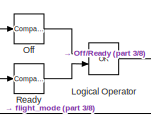
[diagram: Flight mode manager and commands generator/Commands generator - part 1/8, top center region]
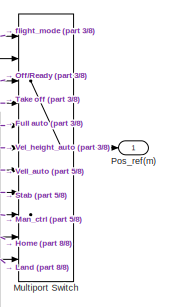
[diagram: Flight mode manager and commands generator/Commands generator - part 2/8, top center region]
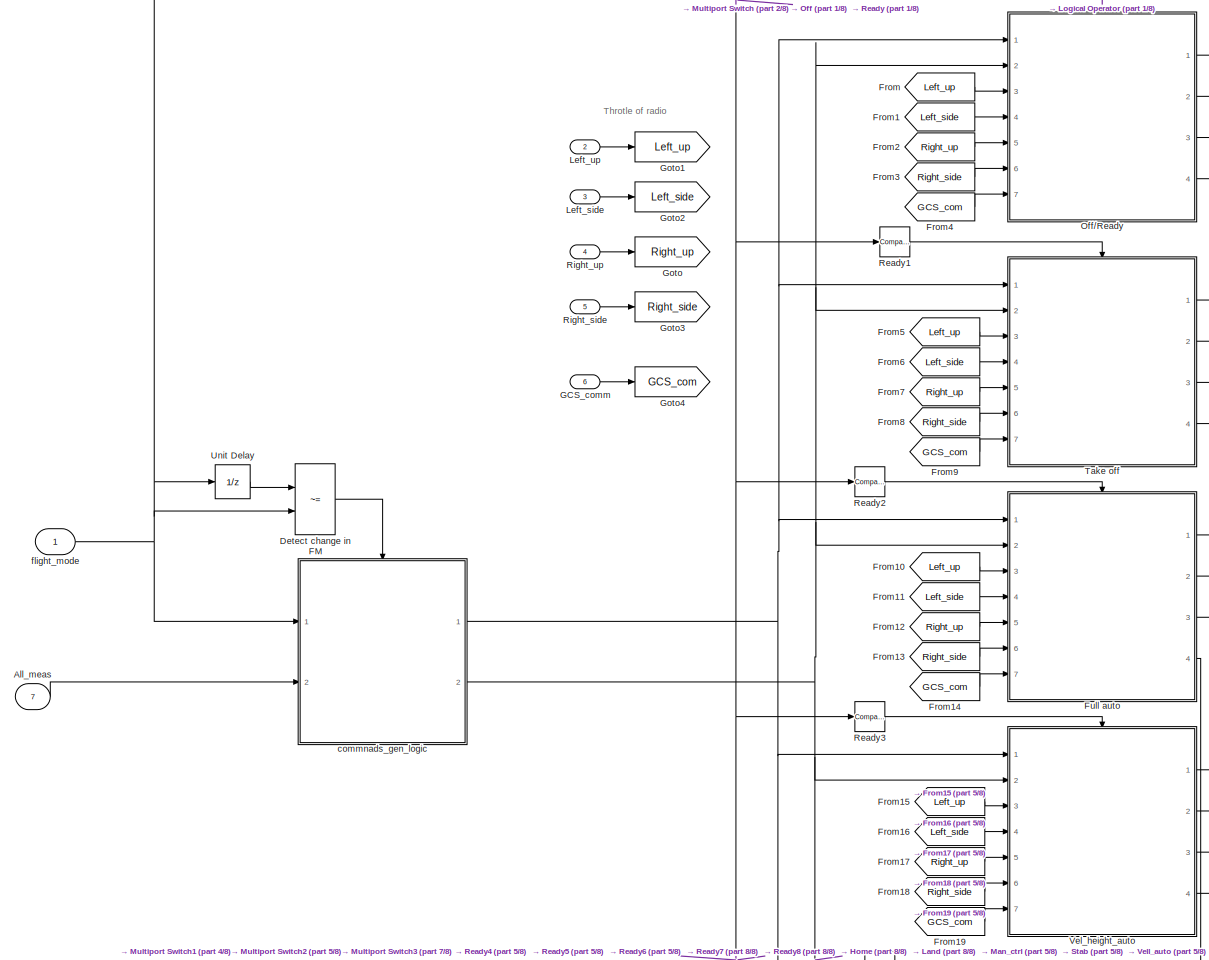
[diagram: Flight mode manager and commands generator/Commands generator - part 3/8, top left region]
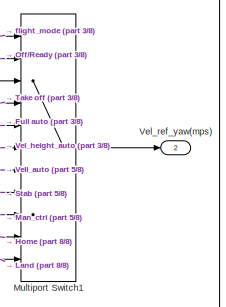
[diagram: Flight mode manager and commands generator/Commands generator - part 4/8, top right region]
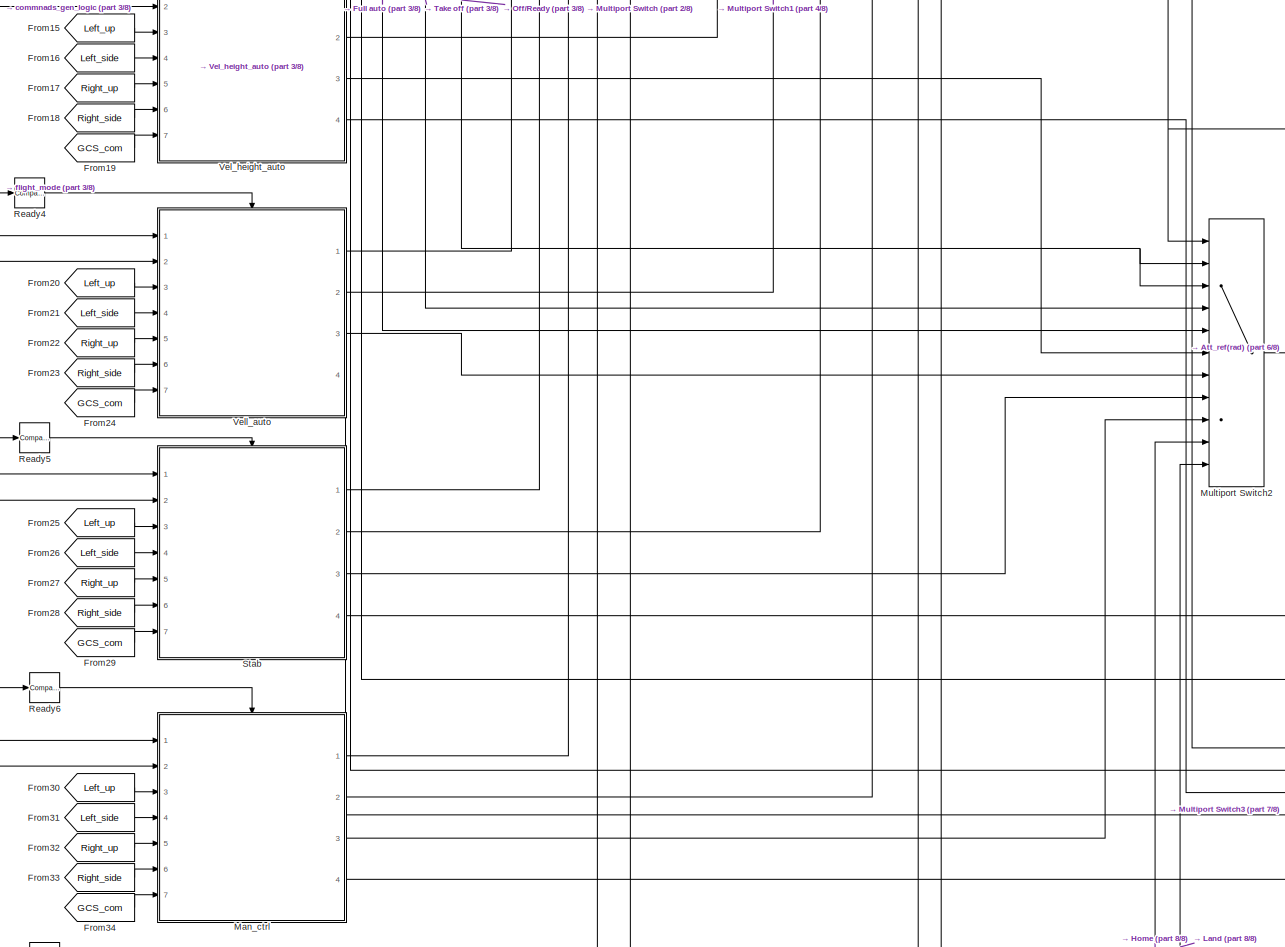
[diagram: Flight mode manager and commands generator/Commands generator - part 5/8, central region]
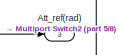
[diagram: Flight mode manager and commands generator/Commands generator - part 6/8, middle right region]
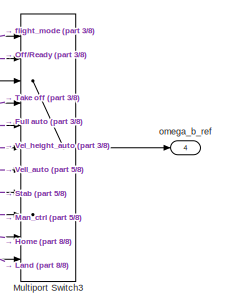
[diagram: Flight mode manager and commands generator/Commands generator - part 7/8, bottom right region]
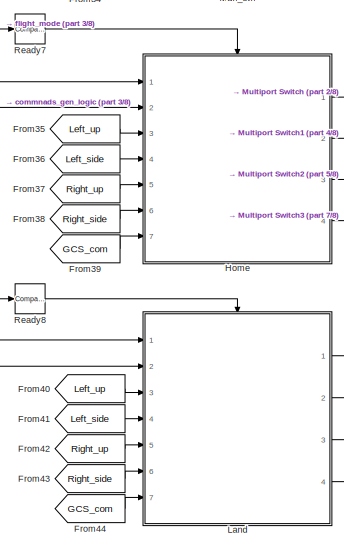
[diagram: Flight mode manager and commands generator/Commands generator - part 8/8, bottom center region]
BLOCK [SubSystem] Flight mode manager and commands generator/Commands generator
  Ports = [7, 4]
  RequestExecContextInheritance = off
BLOCK [Inport] Flight mode manager and commands generator/Commands generator/All_meas
  IconDisplay = Port number
  Port = 7
BLOCK [Outport] Flight mode manager and commands generator/Commands generator/Att_ref(rad)
  IconDisplay = Port number
  Port = 3
BLOCK [RelationalOperator] Flight mode manager and commands generator/Commands generator/Detect change in FM
  InputSameDT = off
  Operator = ~=
  OutDataTypeStr = boolean
  Ports = [2, 1]
BLOCK [From] Flight mode manager and commands generator/Commands generator/From
  GotoTag = Left_up
BLOCK [From] Flight mode manager and commands generator/Commands generator/From1
  GotoTag = Left_side
BLOCK [From] Flight mode manager and commands generator/Commands generator/From10
  GotoTag = Left_up
BLOCK [From] Flight mode manager and commands generator/Commands generator/From11
  GotoTag = Left_side
BLOCK [From] Flight mode manager and commands generator/Commands generator/From12
  GotoTag = Right_up
BLOCK [From] Flight mode manager and commands generator/Commands generator/From13
  GotoTag = Right_side
BLOCK [From] Flight mode manager and commands generator/Commands generator/From14
  GotoTag = GCS_com
BLOCK [From] Flight mode manager and commands generator/Commands generator/From15
  GotoTag = Left_up
BLOCK [From] Flight mode manager and commands generator/Commands generator/From16
  GotoTag = Left_side
BLOCK [From] Flight mode manager and commands generator/Commands generator/From17
  GotoTag = Right_up
BLOCK [From] Flight mode manager and commands generator/Commands generator/From18
  GotoTag = Right_side
BLOCK [From] Flight mode manager and commands generator/Commands generator/From19
  GotoTag = GCS_com
BLOCK [From] Flight mode manager and commands generator/Commands generator/From2
  GotoTag = Right_up
BLOCK [From] Flight mode manager and commands generator/Commands generator/From20
  GotoTag = Left_up
BLOCK [From] Flight mode manager and commands generator/Commands generator/From21
  GotoTag = Left_side
BLOCK [From] Flight mode manager and commands generator/Commands generator/From22
  GotoTag = Right_up
BLOCK [From] Flight mode manager and commands generator/Commands generator/From23
  GotoTag = Right_side
BLOCK [From] Flight mode manager and commands generator/Commands generator/From24
  GotoTag = GCS_com
BLOCK [From] Flight mode manager and commands generator/Commands generator/From25
  GotoTag = Left_up
BLOCK [From] Flight mode manager and commands generator/Commands generator/From26
  GotoTag = Left_side
BLOCK [From] Flight mode manager and commands generator/Commands generator/From27
  GotoTag = Right_up
BLOCK [From] Flight mode manager and commands generator/Commands generator/From28
  GotoTag = Right_side
BLOCK [From] Flight mode manager and commands generator/Commands generator/From29
  GotoTag = GCS_com
BLOCK [From] Flight mode manager and commands generator/Commands generator/From3
  GotoTag = Right_side
BLOCK [From] Flight mode manager and commands generator/Commands generator/From30
  GotoTag = Left_up
BLOCK [From] Flight mode manager and commands generator/Commands generator/From31
  GotoTag = Left_side
BLOCK [From] Flight mode manager and commands generator/Commands generator/From32
  GotoTag = Right_up
BLOCK [From] Flight mode manager and commands generator/Commands generator/From33
  GotoTag = Right_side
BLOCK [From] Flight mode manager and commands generator/Commands generator/From34
  GotoTag = GCS_com
BLOCK [From] Flight mode manager and commands generator/Commands generator/From35
  GotoTag = Left_up
BLOCK [From] Flight mode manager and commands generator/Commands generator/From36
  GotoTag = Left_side
BLOCK [From] Flight mode manager and commands generator/Commands generator/From37
  GotoTag = Right_up
BLOCK [From] Flight mode manager and commands generator/Commands generator/From38
  GotoTag = Right_side
BLOCK [From] Flight mode manager and commands generator/Commands generator/From39
  GotoTag = GCS_com
BLOCK [From] Flight mode manager and commands generator/Commands generator/From4
  GotoTag = GCS_com
BLOCK [From] Flight mode manager and commands generator/Commands generator/From40
  GotoTag = Left_up
BLOCK [From] Flight mode manager and commands generator/Commands generator/From41
  GotoTag = Left_side
BLOCK [From] Flight mode manager and commands generator/Commands generator/From42
  GotoTag = Right_up
BLOCK [From] Flight mode manager and commands generator/Commands generator/From43
  GotoTag = Right_side
BLOCK [From] Flight mode manager and commands generator/Commands generator/From44
  GotoTag = GCS_com
BLOCK [From] Flight mode manager and commands generator/Commands generator/From5
  GotoTag = Left_up
BLOCK [From] Flight mode manager and commands generator/Commands generator/From6
  GotoTag = Left_side
BLOCK [From] Flight mode manager and commands generator/Commands generator/From7
  GotoTag = Right_up
BLOCK [From] Flight mode manager and commands generator/Commands generator/From8
  GotoTag = Right_side
BLOCK [From] Flight mode manager and commands generator/Commands generator/From9
  GotoTag = GCS_com
BLOCK [SubSystem] Flight mode manager and commands generator/Commands generator/Full auto
  Ports = [7, 4, 1]
  RequestExecContextInheritance = off
  TreatAsAtomicUnit = on
BLOCK [Outport] Flight mode manager and commands generator/Commands generator/Full auto/Att_ref(rad)
  IconDisplay = Port number
  Port = 3
BLOCK [BusSelector] Flight mode manager and commands generator/Commands generator/Full auto/Bus Selector
  OutputSignals = X_comm,Y_comm,Alt_com,head_comm,theta_comm
  Ports = [1, 5]
BLOCK [BusSelector] Flight mode manager and commands generator/Commands generator/Full auto/Bus Selector1
  OutputSignals = K_x,K_y,K_alt,K_yaw
  Ports = [1, 4]
BLOCK [BusSelector] Flight mode manager and commands generator/Commands generator/Full auto/Bus Selector2
  OutputSignals = Loc_XY_sp,Alt_sp,att_sp
  Ports = [1, 3]
BLOCK [Demux] Flight mode manager and commands generator/Commands generator/Full auto/Demux
  DisplayOption = bar
  Outputs = 2
  Ports = [1, 2]
BLOCK [Product] Flight mode manager and commands generator/Commands generator/Full auto/Divide
  InputSameDT = off
  Inputs = **
  OutDataTypeStr = Inherit: Inherit via internal rule
  Ports = [2, 1]
  RndMeth = Floor
  SaturateOnIntegerOverflow = off
BLOCK [Product] Flight mode manager and commands generator/Commands generator/Full auto/Divide1
  InputSameDT = off
  Inputs = **
  OutDataTypeStr = Inherit: Inherit via internal rule
  Ports = [2, 1]
  RndMeth = Floor
  SaturateOnIntegerOverflow = off
BLOCK [Product] Flight mode manager and commands generator/Commands generator/Full auto/Divide2
  InputSameDT = off
  Inputs = **
  OutDataTypeStr = Inherit: Inherit via internal rule
  Ports = [2, 1]
  RndMeth = Floor
  SaturateOnIntegerOverflow = off
BLOCK [Product] Flight mode manager and commands generator/Commands generator/Full auto/Divide3
  InputSameDT = off
  Inputs = **
  OutDataTypeStr = Inherit: Inherit via internal rule
  Ports = [2, 1]
  RndMeth = Floor
  SaturateOnIntegerOverflow = off
BLOCK [EnablePort] Flight mode manager and commands generator/Commands generator/Full auto/Enable
  Ports = [0, 1]
  ShowOutputPort = on
  StatesWhenEnabling = reset
BLOCK [Reference] Flight mode manager and commands generator/Commands generator/Full auto/GCS params safemode  REF=XXCopter_Control/GCS params safemode
  Ports = [2, 1]
  SourceBlock = XXCopter_Control/GCS params safemode
  SourceType = SubSystem
BLOCK [Reference] Flight mode manager and commands generator/Commands generator/Full auto/GCS params safemode1  REF=XXCopter_Control/GCS params safemode
  Ports = [2, 1]
  SourceBlock = XXCopter_Control/GCS params safemode
  SourceType = SubSystem
BLOCK [Reference] Flight mode manager and commands generator/Commands generator/Full auto/GCS params safemode2  REF=XXCopter_Control/GCS params safemode
  Ports = [2, 1]
  SourceBlock = XXCopter_Control/GCS params safemode
  SourceType = SubSystem
BLOCK [Reference] Flight mode manager and commands generator/Commands generator/Full auto/GCS params safemode3  REF=XXCopter_Control/GCS params safemode
  Ports = [2, 1]
  SourceBlock = XXCopter_Control/GCS params safemode
  SourceType = SubSystem
BLOCK [Reference] Flight mode manager and commands generator/Commands generator/Full auto/GCS params safemode4  REF=XXCopter_Control/GCS params safemode
  Ports = [2, 1]
  SourceBlock = XXCopter_Control/GCS params safemode
  SourceType = SubSystem
BLOCK [Inport] Flight mode manager and commands generator/Commands generator/Full auto/GCS_comm
  IconDisplay = Port number
  Port = 7
BLOCK [Inport] Flight mode manager and commands generator/Commands generator/Full auto/Gains
  IconDisplay = Port number
  Port = 2
BLOCK [Ground] Flight mode manager and commands generator/Commands generator/Full auto/Ground
BLOCK [Ground] Flight mode manager and commands generator/Commands generator/Full auto/Ground1
BLOCK [Ground] Flight mode manager and commands generator/Commands generator/Full auto/Ground2
BLOCK [Ground] Flight mode manager and commands generator/Commands generator/Full auto/Ground3
BLOCK [Inport] Flight mode manager and commands generator/Commands generator/Full auto/Init comands
  IconDisplay = Port number
BLOCK [Inport] Flight mode manager and commands generator/Commands generator/Full auto/Left_side
  IconDisplay = Port number
  Port = 4
BLOCK [Inport] Flight mode manager and commands generator/Commands generator/Full auto/Left_up
  IconDisplay = Port number
  Port = 3
BLOCK [Mux] Flight mode manager and commands generator/Commands generator/Full auto/Mux
  DisplayOption = bar
  Inputs = [2,1]
  Ports = [2, 1]
BLOCK [Mux] Flight mode manager and commands generator/Commands generator/Full auto/Mux1
  DisplayOption = bar
  Inputs = [2,1]
  Ports = [2, 1]
BLOCK [Mux] Flight mode manager and commands generator/Commands generator/Full auto/Mux2
  DisplayOption = bar
  Inputs = 3
  Ports = [3, 1]
BLOCK [Mux] Flight mode manager and commands generator/Commands generator/Full auto/Mux3
  DisplayOption = bar
  Inputs = 3
  Ports = [3, 1]
BLOCK [Mux] Flight mode manager and commands generator/Commands generator/Full auto/Mux4
  DisplayOption = bar
  Inputs = 2
  Ports = [2, 1]
BLOCK [Outport] Flight mode manager and commands generator/Commands generator/Full auto/Pos_ref(m)
  IconDisplay = Port number
BLOCK [Inport] Flight mode manager and commands generator/Commands generator/Full auto/Right_side
  IconDisplay = Port number
  Port = 6
BLOCK [Inport] Flight mode manager and commands generator/Commands generator/Full auto/Right_up
  IconDisplay = Port number
  Port = 5
BLOCK [Sum] Flight mode manager and commands generator/Commands generator/Full auto/Sum
  IconShape = round
  InputSameDT = off
  Inputs = |++
  OutDataTypeStr = Inherit: Inherit via internal rule
  Ports = [2, 1]
  SaturateOnIntegerOverflow = off
BLOCK [Sum] Flight mode manager and commands generator/Commands generator/Full auto/Sum1
  IconShape = round
  InputSameDT = off
  Inputs = |++
  OutDataTypeStr = Inherit: Inherit via internal rule
  Ports = [2, 1]
  SaturateOnIntegerOverflow = off
BLOCK [Sum] Flight mode manager and commands generator/Commands generator/Full auto/Sum2
  IconShape = round
  InputSameDT = off
  Inputs = ++|
  OutDataTypeStr = Inherit: Inherit via internal rule
  Ports = [2, 1]
  SaturateOnIntegerOverflow = off
BLOCK [Sum] Flight mode manager and commands generator/Commands generator/Full auto/Sum3
  IconShape = round
  InputSameDT = off
  Inputs = |++
  OutDataTypeStr = Inherit: Inherit via internal rule
  Ports = [2, 1]
  SaturateOnIntegerOverflow = off
BLOCK [Sum] Flight mode manager and commands generator/Commands generator/Full auto/Sum4
  IconShape = round
  InputSameDT = off
  Inputs = |++
  OutDataTypeStr = Inherit: Inherit via internal rule
  Ports = [2, 1]
  SaturateOnIntegerOverflow = off
BLOCK [Sum] Flight mode manager and commands generator/Commands generator/Full auto/Sum5
  IconShape = round
  InputSameDT = off
  Inputs = |++
  OutDataTypeStr = Inherit: Inherit via internal rule
  Ports = [2, 1]
  SaturateOnIntegerOverflow = off
BLOCK [Sum] Flight mode manager and commands generator/Commands generator/Full auto/Sum6
  IconShape = round
  InputSameDT = off
  Inputs = |++
  OutDataTypeStr = Inherit: Inherit via internal rule
  Ports = [2, 1]
  SaturateOnIntegerOverflow = off
BLOCK [Sum] Flight mode manager and commands generator/Commands generator/Full auto/Sum7
  IconShape = round
  InputSameDT = off
  Inputs = |++
  OutDataTypeStr = Inherit: Inherit via internal rule
  Ports = [2, 1]
  SaturateOnIntegerOverflow = off
BLOCK [Sum] Flight mode manager and commands generator/Commands generator/Full auto/Sum8
  IconShape = round
  InputSameDT = off
  Inputs = |++
  OutDataTypeStr = Inherit: Inherit via internal rule
  Ports = [2, 1]
  SaturateOnIntegerOverflow = off
BLOCK [UnaryMinus] Flight mode manager and commands generator/Commands generator/Full auto/Unary Minus1
BLOCK [Outport] Flight mode manager and commands generator/Commands generator/Full auto/Vel_ref_yaw(mps)
  IconDisplay = Port number
  Port = 2
BLOCK [Gain] Flight mode manager and commands generator/Commands generator/Full auto/deg2rad
  Gain = pi/180
  OutDataTypeStr = Inherit: Inherit via internal rule
  ParamDataTypeStr = Inherit: Inherit via internal rule
  SaturateOnIntegerOverflow = off
BLOCK [Gain] Flight mode manager and commands generator/Commands generator/Full auto/deg2rad1
  Gain = pi/180
  OutDataTypeStr = Inherit: Inherit via internal rule
  ParamDataTypeStr = Inherit: Inherit via internal rule
  SaturateOnIntegerOverflow = off
BLOCK [Selector] Flight mode manager and commands generator/Commands generator/Full auto/heading
  Indices = 3
  InputPortWidth = 3
  Ports = [1, 1]
BLOCK [Selector] Flight mode manager and commands generator/Commands generator/Full auto/heading1
  Indices = 2
  InputPortWidth = 3
  Ports = [1, 1]
BLOCK [Outport] Flight mode manager and commands generator/Commands generator/Full auto/omega_b_ref
  IconDisplay = Port number
  Port = 4
BLOCK [Inport] Flight mode manager and commands generator/Commands generator/GCS_comm
  IconDisplay = Port number
  Port = 6
BLOCK [Goto] Flight mode manager and commands generator/Commands generator/Goto
  GotoTag = Right_up
BLOCK [Goto] Flight mode manager and commands generator/Commands generator/Goto1
  GotoTag = Left_up
BLOCK [Goto] Flight mode manager and commands generator/Commands generator/Goto2
  GotoTag = Left_side
BLOCK [Goto] Flight mode manager and commands generator/Commands generator/Goto3
  GotoTag = Right_side
BLOCK [Goto] Flight mode manager and commands generator/Commands generator/Goto4
  GotoTag = GCS_com
BLOCK [SubSystem] Flight mode manager and commands generator/Commands generator/Home
  Ports = [7, 4, 1]
  RequestExecContextInheritance = off
  TreatAsAtomicUnit = on
BLOCK [Outport] Flight mode manager and commands generator/Commands generator/Home/Att_ref(rad)
  IconDisplay = Port number
  Port = 3
BLOCK [BusSelector] Flight mode manager and commands generator/Commands generator/Home/Bus Selector2
  OutputSignals = Loc_XY_sp,Alt_sp,att_sp
  Ports = [1, 3]
BLOCK [EnablePort] Flight mode manager and commands generator/Commands generator/Home/Enable
  Ports = []
  StatesWhenEnabling = reset
BLOCK [Inport] Flight mode manager and commands generator/Commands generator/Home/GCS_comm
  IconDisplay = Port number
  Port = 7
BLOCK [Inport] Flight mode manager and commands generator/Commands generator/Home/Gains
  IconDisplay = Port number
  Port = 2
BLOCK [Ground] Flight mode manager and commands generator/Commands generator/Home/Ground
BLOCK [Ground] Flight mode manager and commands generator/Commands generator/Home/Ground1
BLOCK [Ground] Flight mode manager and commands generator/Commands generator/Home/Ground2
BLOCK [Ground] Flight mode manager and commands generator/Commands generator/Home/Ground3
BLOCK [Inport] Flight mode manager and commands generator/Commands generator/Home/Init comands
  IconDisplay = Port number
BLOCK [Inport] Flight mode manager and commands generator/Commands generator/Home/Left_side
  IconDisplay = Port number
  Port = 4
BLOCK [Inport] Flight mode manager and commands generator/Commands generator/Home/Left_up
  IconDisplay = Port number
  Port = 3
BLOCK [Mux] Flight mode manager and commands generator/Commands generator/Home/Mux
  DisplayOption = bar
  Inputs = [2,1]
  Ports = [2, 1]
BLOCK [Mux] Flight mode manager and commands generator/Commands generator/Home/Mux1
  DisplayOption = bar
  Inputs = [2,1]
  Ports = [2, 1]
BLOCK [Mux] Flight mode manager and commands generator/Commands generator/Home/Mux2
  DisplayOption = bar
  Inputs = 3
  Ports = [3, 1]
BLOCK [Outport] Flight mode manager and commands generator/Commands generator/Home/Pos_ref(m)
  IconDisplay = Port number
BLOCK [Inport] Flight mode manager and commands generator/Commands generator/Home/Right_side
  IconDisplay = Port number
  Port = 6
BLOCK [Inport] Flight mode manager and commands generator/Commands generator/Home/Right_up
  IconDisplay = Port number
  Port = 5
BLOCK [Selector] Flight mode manager and commands generator/Commands generator/Home/Selector
  Indices = 3
  InputPortWidth = 3
  Ports = [1, 1]
BLOCK [Terminator] Flight mode manager and commands generator/Commands generator/Home/Terminator
BLOCK [Terminator] Flight mode manager and commands generator/Commands generator/Home/Terminator1
BLOCK [Terminator] Flight mode manager and commands generator/Commands generator/Home/Terminator2
BLOCK [Terminator] Flight mode manager and commands generator/Commands generator/Home/Terminator3
BLOCK [Terminator] Flight mode manager and commands generator/Commands generator/Home/Terminator4
BLOCK [Terminator] Flight mode manager and commands generator/Commands generator/Home/Terminator5
BLOCK [UnaryMinus] Flight mode manager and commands generator/Commands generator/Home/Unary Minus
BLOCK [Outport] Flight mode manager and commands generator/Commands generator/Home/Vel_ref_yaw(mps)
  IconDisplay = Port number
  Port = 2
BLOCK [Outport] Flight mode manager and commands generator/Commands generator/Home/omega_b_ref
  IconDisplay = Port number
  Port = 4
BLOCK [SubSystem] Flight mode manager and commands generator/Commands generator/Land 
  Ports = [7, 4, 1]
  RequestExecContextInheritance = off
  TreatAsAtomicUnit = on
BLOCK [Outport] Flight mode manager and commands generator/Commands generator/Land /Att_ref(rad)
  IconDisplay = Port number
  Port = 3
BLOCK [BusSelector] Flight mode manager and commands generator/Commands generator/Land /Bus Selector2
  OutputSignals = Loc_XY_sp,Alt_sp,att_sp
  Ports = [1, 3]
BLOCK [EnablePort] Flight mode manager and commands generator/Commands generator/Land /Enable
  Ports = []
  StatesWhenEnabling = reset
BLOCK [Inport] Flight mode manager and commands generator/Commands generator/Land /GCS_comm
  IconDisplay = Port number
  Port = 7
BLOCK [Inport] Flight mode manager and commands generator/Commands generator/Land /Gains
  IconDisplay = Port number
  Port = 2
BLOCK [Ground] Flight mode manager and commands generator/Commands generator/Land /Ground
BLOCK [Ground] Flight mode manager and commands generator/Commands generator/Land /Ground1
BLOCK [Ground] Flight mode manager and commands generator/Commands generator/Land /Ground2
BLOCK [Ground] Flight mode manager and commands generator/Commands generator/Land /Ground3
BLOCK [Inport] Flight mode manager and commands generator/Commands generator/Land /Init comands
  IconDisplay = Port number
BLOCK [Inport] Flight mode manager and commands generator/Commands generator/Land /Left_side
  IconDisplay = Port number
  Port = 4
BLOCK [Inport] Flight mode manager and commands generator/Commands generator/Land /Left_up
  IconDisplay = Port number
  Port = 3
BLOCK [Mux] Flight mode manager and commands generator/Commands generator/Land /Mux
  DisplayOption = bar
  Inputs = [2,1]
  Ports = [2, 1]
BLOCK [Mux] Flight mode manager and commands generator/Commands generator/Land /Mux1
  DisplayOption = bar
  Inputs = [2,1]
  Ports = [2, 1]
BLOCK [Mux] Flight mode manager and commands generator/Commands generator/Land /Mux2
  DisplayOption = bar
  Inputs = 3
  Ports = [3, 1]
BLOCK [Outport] Flight mode manager and commands generator/Commands generator/Land /Pos_ref(m)
  IconDisplay = Port number
BLOCK [Inport] Flight mode manager and commands generator/Commands generator/Land /Right_side
  IconDisplay = Port number
  Port = 6
BLOCK [Inport] Flight mode manager and commands generator/Commands generator/Land /Right_up
  IconDisplay = Port number
  Port = 5
BLOCK [Selector] Flight mode manager and commands generator/Commands generator/Land /Selector
  Indices = 3
  InputPortWidth = 3
  Ports = [1, 1]
BLOCK [Terminator] Flight mode manager and commands generator/Commands generator/Land /Terminator
BLOCK [Terminator] Flight mode manager and commands generator/Commands generator/Land /Terminator1
BLOCK [Terminator] Flight mode manager and commands generator/Commands generator/Land /Terminator2
BLOCK [Terminator] Flight mode manager and commands generator/Commands generator/Land /Terminator3
BLOCK [Terminator] Flight mode manager and commands generator/Commands generator/Land /Terminator4
BLOCK [Terminator] Flight mode manager and commands generator/Commands generator/Land /Terminator5
BLOCK [UnaryMinus] Flight mode manager and commands generator/Commands generator/Land /Unary Minus
BLOCK [Outport] Flight mode manager and commands generator/Commands generator/Land /Vel_ref_yaw(mps)
  IconDisplay = Port number
  Port = 2
BLOCK [Outport] Flight mode manager and commands generator/Commands generator/Land /omega_b_ref
  IconDisplay = Port number
  Port = 4
BLOCK [Inport] Flight mode manager and commands generator/Commands generator/Left_side
  IconDisplay = Port number
  Port = 3
BLOCK [Inport] Flight mode manager and commands generator/Commands generator/Left_up
  IconDisplay = Port number
  Port = 2
BLOCK [Logic] Flight mode manager and commands generator/Commands generator/Logical Operator
  AllPortsSameDT = off
  IconShape = distinctive
  Operator = OR
  OutDataTypeStr = boolean
  Ports = [2, 1]
BLOCK [SubSystem] Flight mode manager and commands generator/Commands generator/Man_ctrl
  Ports = [7, 4, 1]
  RequestExecContextInheritance = off
  TreatAsAtomicUnit = on
BLOCK [Outport] Flight mode manager and commands generator/Commands generator/Man_ctrl/Att_ref(rad)
  IconDisplay = Port number
  Port = 3
BLOCK [BusSelector] Flight mode manager and commands generator/Commands generator/Man_ctrl/Bus Selector1
  OutputSignals = K_vz,K_p,K_q,K_r
  Ports = [1, 4]
BLOCK [Product] Flight mode manager and commands generator/Commands generator/Man_ctrl/Divide1
  InputSameDT = off
  Inputs = **
  OutDataTypeStr = Inherit: Inherit via internal rule
  Ports = [2, 1]
  RndMeth = Floor
  SaturateOnIntegerOverflow = off
BLOCK [Product] Flight mode manager and commands generator/Commands generator/Man_ctrl/Divide2
  InputSameDT = off
  Inputs = **
  OutDataTypeStr = Inherit: Inherit via internal rule
  Ports = [2, 1]
  RndMeth = Floor
  SaturateOnIntegerOverflow = off
BLOCK [Product] Flight mode manager and commands generator/Commands generator/Man_ctrl/Divide3
  InputSameDT = off
  Inputs = **
  OutDataTypeStr = Inherit: Inherit via internal rule
  Ports = [2, 1]
  RndMeth = Floor
  SaturateOnIntegerOverflow = off
BLOCK [Product] Flight mode manager and commands generator/Commands generator/Man_ctrl/Divide4
  InputSameDT = off
  Inputs = **
  OutDataTypeStr = Inherit: Inherit via internal rule
  Ports = [2, 1]
  RndMeth = Floor
  SaturateOnIntegerOverflow = off
BLOCK [EnablePort] Flight mode manager and commands generator/Commands generator/Man_ctrl/Enable
  Ports = []
  StatesWhenEnabling = reset
BLOCK [Inport] Flight mode manager and commands generator/Commands generator/Man_ctrl/GCS_comm
  IconDisplay = Port number
  Port = 7
BLOCK [Inport] Flight mode manager and commands generator/Commands generator/Man_ctrl/Gains
  IconDisplay = Port number
  Port = 2
BLOCK [Ground] Flight mode manager and commands generator/Commands generator/Man_ctrl/Ground1
BLOCK [Ground] Flight mode manager and commands generator/Commands generator/Man_ctrl/Ground2
BLOCK [Ground] Flight mode manager and commands generator/Commands generator/Man_ctrl/Ground4
BLOCK [Ground] Flight mode manager and commands generator/Commands generator/Man_ctrl/Ground5
BLOCK [Inport] Flight mode manager and commands generator/Commands generator/Man_ctrl/Init comands
  IconDisplay = Port number
BLOCK [Inport] Flight mode manager and commands generator/Commands generator/Man_ctrl/Left_side
  IconDisplay = Port number
  Port = 4
BLOCK [Inport] Flight mode manager and commands generator/Commands generator/Man_ctrl/Left_up
  IconDisplay = Port number
  Port = 3
BLOCK [Mux] Flight mode manager and commands generator/Commands generator/Man_ctrl/Mux
  DisplayOption = bar
  Inputs = [2,1]
  Ports = [2, 1]
BLOCK [Mux] Flight mode manager and commands generator/Commands generator/Man_ctrl/Mux1
  DisplayOption = bar
  Inputs = [2,1]
  Ports = [2, 1]
BLOCK [Mux] Flight mode manager and commands generator/Commands generator/Man_ctrl/Mux2
  DisplayOption = bar
  Inputs = 3
  Ports = [3, 1]
BLOCK [Mux] Flight mode manager and commands generator/Commands generator/Man_ctrl/Mux3
  DisplayOption = bar
  Inputs = 3
  Ports = [3, 1]
BLOCK [Outport] Flight mode manager and commands generator/Commands generator/Man_ctrl/Pos_ref(m)
  IconDisplay = Port number
BLOCK [Inport] Flight mode manager and commands generator/Commands generator/Man_ctrl/Right_side
  IconDisplay = Port number
  Port = 6
BLOCK [Inport] Flight mode manager and commands generator/Commands generator/Man_ctrl/Right_up
  IconDisplay = Port number
  Port = 5
BLOCK [Terminator] Flight mode manager and commands generator/Commands generator/Man_ctrl/Terminator
BLOCK [Terminator] Flight mode manager and commands generator/Commands generator/Man_ctrl/Terminator1
BLOCK [UnaryMinus] Flight mode manager and commands generator/Commands generator/Man_ctrl/Unary Minus
BLOCK [UnaryMinus] Flight mode manager and commands generator/Commands generator/Man_ctrl/Unary Minus1
BLOCK [Outport] Flight mode manager and commands generator/Commands generator/Man_ctrl/Vel_ref_yaw(mps)
  IconDisplay = Port number
  Port = 2
BLOCK [Outport] Flight mode manager and commands generator/Commands generator/Man_ctrl/omega_b_ref
  IconDisplay = Port number
  Port = 4
BLOCK [MultiPortSwitch] Flight mode manager and commands generator/Commands generator/Multiport Switch
  DataPortOrder = Zero-based contiguous
  InputSameDT = off
  Inputs = 10
  Ports = [11, 1]
  SaturateOnIntegerOverflow = off
BLOCK [MultiPortSwitch] Flight mode manager and commands generator/Commands generator/Multiport Switch1
  DataPortOrder = Zero-based contiguous
  InputSameDT = off
  Inputs = 10
  Ports = [11, 1]
  SaturateOnIntegerOverflow = off
BLOCK [MultiPortSwitch] Flight mode manager and commands generator/Commands generator/Multiport Switch2
  DataPortOrder = Zero-based contiguous
  InputSameDT = off
  Inputs = 10
  Ports = [11, 1]
  SaturateOnIntegerOverflow = off
BLOCK [MultiPortSwitch] Flight mode manager and commands generator/Commands generator/Multiport Switch3
  DataPortOrder = Zero-based contiguous
  InputSameDT = off
  Inputs = 10
  Ports = [11, 1]
  SaturateOnIntegerOverflow = off
BLOCK [Reference] Flight mode manager and commands generator/Commands generator/Off  REF=simulink/Logic and Bit
Operations/Compare
To Constant
  OutDataTypeStr = boolean
  Ports = [1, 1]
  SourceBlock = simulink/Logic and Bit\nOperations/Compare\nTo Constant
  SourceType = Compare To Constant
  ZeroCross = on
  const = 0
  relop = ==
BLOCK [SubSystem] Flight mode manager and commands generator/Commands generator/Off//Ready
  Ports = [7, 4, 1]
  RequestExecContextInheritance = off
  TreatAsAtomicUnit = on
BLOCK [Outport] Flight mode manager and commands generator/Commands generator/Off//Ready/Att_ref(rad)
  IconDisplay = Port number
  Port = 3
BLOCK [EnablePort] Flight mode manager and commands generator/Commands generator/Off//Ready/Enable
  Ports = []
  StatesWhenEnabling = reset
BLOCK [Inport] Flight mode manager and commands generator/Commands generator/Off//Ready/GCS_comm
  IconDisplay = Port number
  Port = 7
BLOCK [Inport] Flight mode manager and commands generator/Commands generator/Off//Ready/Gains
  IconDisplay = Port number
  Port = 2
BLOCK [Ground] Flight mode manager and commands generator/Commands generator/Off//Ready/Ground
BLOCK [Ground] Flight mode manager and commands generator/Commands generator/Off//Ready/Ground1
BLOCK [Ground] Flight mode manager and commands generator/Commands generator/Off//Ready/Ground2
BLOCK [Ground] Flight mode manager and commands generator/Commands generator/Off//Ready/Ground3
BLOCK [Inport] Flight mode manager and commands generator/Commands generator/Off//Ready/Init comands
  IconDisplay = Port number
BLOCK [Inport] Flight mode manager and commands generator/Commands generator/Off//Ready/Left_side
  IconDisplay = Port number
  Port = 4
BLOCK [Inport] Flight mode manager and commands generator/Commands generator/Off//Ready/Left_up
  IconDisplay = Port number
  Port = 3
BLOCK [Outport] Flight mode manager and commands generator/Commands generator/Off//Ready/Pos_ref(m)
  IconDisplay = Port number
BLOCK [Inport] Flight mode manager and commands generator/Commands generator/Off//Ready/Right_side
  IconDisplay = Port number
  Port = 6
BLOCK [Inport] Flight mode manager and commands generator/Commands generator/Off//Ready/Right_up
  IconDisplay = Port number
  Port = 5
BLOCK [Terminator] Flight mode manager and commands generator/Commands generator/Off//Ready/Terminator
BLOCK [Terminator] Flight mode manager and commands generator/Commands generator/Off//Ready/Terminator1
BLOCK [Terminator] Flight mode manager and commands generator/Commands generator/Off//Ready/Terminator2
BLOCK [Terminator] Flight mode manager and commands generator/Commands generator/Off//Ready/Terminator3
BLOCK [Terminator] Flight mode manager and commands generator/Commands generator/Off//Ready/Terminator4
BLOCK [Terminator] Flight mode manager and commands generator/Commands generator/Off//Ready/Terminator5
BLOCK [Terminator] Flight mode manager and commands generator/Commands generator/Off//Ready/Terminator6
BLOCK [Outport] Flight mode manager and commands generator/Commands generator/Off//Ready/Vel_ref_yaw(mps)
  IconDisplay = Port number
  Port = 2
BLOCK [Outport] Flight mode manager and commands generator/Commands generator/Off//Ready/omega_b_ref
  IconDisplay = Port number
  Port = 4
BLOCK [Outport] Flight mode manager and commands generator/Commands generator/Pos_ref(m)
  IconDisplay = Port number
BLOCK [Reference] Flight mode manager and commands generator/Commands generator/Ready  REF=simulink/Logic and Bit
Operations/Compare
To Constant
  OutDataTypeStr = boolean
  Ports = [1, 1]
  SourceBlock = simulink/Logic and Bit\nOperations/Compare\nTo Constant
  SourceType = Compare To Constant
  ZeroCross = on
  const = 1
  relop = ==
BLOCK [Reference] Flight mode manager and commands generator/Commands generator/Ready1  REF=simulink/Logic and Bit
Operations/Compare
To Constant
  OutDataTypeStr = boolean
  Ports = [1, 1]
  SourceBlock = simulink/Logic and Bit\nOperations/Compare\nTo Constant
  SourceType = Compare To Constant
  ZeroCross = on
  const = 2
  relop = ==
BLOCK [Reference] Flight mode manager and commands generator/Commands generator/Ready2  REF=simulink/Logic and Bit
Operations/Compare
To Constant
  OutDataTypeStr = boolean
  Ports = [1, 1]
  SourceBlock = simulink/Logic and Bit\nOperations/Compare\nTo Constant
  SourceType = Compare To Constant
  ZeroCross = on
  const = 3
  relop = ==
BLOCK [Reference] Flight mode manager and commands generator/Commands generator/Ready3  REF=simulink/Logic and Bit
Operations/Compare
To Constant
  OutDataTypeStr = boolean
  Ports = [1, 1]
  SourceBlock = simulink/Logic and Bit\nOperations/Compare\nTo Constant
  SourceType = Compare To Constant
  ZeroCross = on
  const = 4
  relop = ==
BLOCK [Reference] Flight mode manager and commands generator/Commands generator/Ready4  REF=simulink/Logic and Bit
Operations/Compare
To Constant
  OutDataTypeStr = boolean
  Ports = [1, 1]
  SourceBlock = simulink/Logic and Bit\nOperations/Compare\nTo Constant
  SourceType = Compare To Constant
  ZeroCross = on
  const = 5
  relop = ==
BLOCK [Reference] Flight mode manager and commands generator/Commands generator/Ready5  REF=simulink/Logic and Bit
Operations/Compare
To Constant
  OutDataTypeStr = boolean
  Ports = [1, 1]
  SourceBlock = simulink/Logic and Bit\nOperations/Compare\nTo Constant
  SourceType = Compare To Constant
  ZeroCross = on
  const = 6
  relop = ==
BLOCK [Reference] Flight mode manager and commands generator/Commands generator/Ready6  REF=simulink/Logic and Bit
Operations/Compare
To Constant
  OutDataTypeStr = boolean
  Ports = [1, 1]
  SourceBlock = simulink/Logic and Bit\nOperations/Compare\nTo Constant
  SourceType = Compare To Constant
  ZeroCross = on
  const = 7
  relop = ==
BLOCK [Reference] Flight mode manager and commands generator/Commands generator/Ready7  REF=simulink/Logic and Bit
Operations/Compare
To Constant
  OutDataTypeStr = boolean
  Ports = [1, 1]
  SourceBlock = simulink/Logic and Bit\nOperations/Compare\nTo Constant
  SourceType = Compare To Constant
  ZeroCross = on
  const = 8
  relop = ==
BLOCK [Reference] Flight mode manager and commands generator/Commands generator/Ready8  REF=simulink/Logic and Bit
Operations/Compare
To Constant
  OutDataTypeStr = boolean
  Ports = [1, 1]
  SourceBlock = simulink/Logic and Bit\nOperations/Compare\nTo Constant
  SourceType = Compare To Constant
  ZeroCross = on
  const = 9
  relop = ==
BLOCK [Inport] Flight mode manager and commands generator/Commands generator/Right_side
  IconDisplay = Port number
  Port = 5
BLOCK [Inport] Flight mode manager and commands generator/Commands generator/Right_up
  IconDisplay = Port number
  Port = 4
BLOCK [SubSystem] Flight mode manager and commands generator/Commands generator/Stab
  Ports = [7, 4, 1]
  RequestExecContextInheritance = off
  TreatAsAtomicUnit = on
BLOCK [Outport] Flight mode manager and commands generator/Commands generator/Stab/Att_ref(rad)
  IconDisplay = Port number
  Port = 3
BLOCK [BusSelector] Flight mode manager and commands generator/Commands generator/Stab/Bus Selector
  OutputSignals = Vz_yaw_comm,head_comm
  Ports = [1, 2]
BLOCK [BusSelector] Flight mode manager and commands generator/Commands generator/Stab/Bus Selector1
  OutputSignals = K_vz,K_phi,K_theta,K_yaw
  Ports = [1, 4]
BLOCK [BusSelector] Flight mode manager and commands generator/Commands generator/Stab/Bus Selector2
  OutputSignals = Vel_yaw_z_sp,att_sp
  Ports = [1, 2]
BLOCK [Product] Flight mode manager and commands generator/Commands generator/Stab/Divide1
  InputSameDT = off
  Inputs = **
  OutDataTypeStr = Inherit: Inherit via internal rule
  Ports = [2, 1]
  RndMeth = Floor
  SaturateOnIntegerOverflow = off
BLOCK [Product] Flight mode manager and commands generator/Commands generator/Stab/Divide2
  InputSameDT = off
  Inputs = **
  OutDataTypeStr = Inherit: Inherit via internal rule
  Ports = [2, 1]
  RndMeth = Floor
  SaturateOnIntegerOverflow = off
BLOCK [Product] Flight mode manager and commands generator/Commands generator/Stab/Divide3
  InputSameDT = off
  Inputs = **
  OutDataTypeStr = Inherit: Inherit via internal rule
  Ports = [2, 1]
  RndMeth = Floor
  SaturateOnIntegerOverflow = off
BLOCK [Product] Flight mode manager and commands generator/Commands generator/Stab/Divide4
  InputSameDT = off
  Inputs = **
  OutDataTypeStr = Inherit: Inherit via internal rule
  Ports = [2, 1]
  RndMeth = Floor
  SaturateOnIntegerOverflow = off
BLOCK [EnablePort] Flight mode manager and commands generator/Commands generator/Stab/Enable
  Ports = [0, 1]
  ShowOutputPort = on
  StatesWhenEnabling = reset
BLOCK [Reference] Flight mode manager and commands generator/Commands generator/Stab/GCS params safemode2  REF=XXCopter_Control/GCS params safemode
  Ports = [2, 1]
  SourceBlock = XXCopter_Control/GCS params safemode
  SourceType = SubSystem
BLOCK [Reference] Flight mode manager and commands generator/Commands generator/Stab/GCS params safemode3  REF=XXCopter_Control/GCS params safemode
  Ports = [2, 1]
  SourceBlock = XXCopter_Control/GCS params safemode
  SourceType = SubSystem
BLOCK [Inport] Flight mode manager and commands generator/Commands generator/Stab/GCS_comm
  IconDisplay = Port number
  Port = 7
BLOCK [Inport] Flight mode manager and commands generator/Commands generator/Stab/Gains
  IconDisplay = Port number
  Port = 2
BLOCK [Ground] Flight mode manager and commands generator/Commands generator/Stab/Ground
BLOCK [Ground] Flight mode manager and commands generator/Commands generator/Stab/Ground2
BLOCK [Ground] Flight mode manager and commands generator/Commands generator/Stab/Ground3
BLOCK [Ground] Flight mode manager and commands generator/Commands generator/Stab/Ground4
BLOCK [Inport] Flight mode manager and commands generator/Commands generator/Stab/Init comands
  IconDisplay = Port number
BLOCK [Inport] Flight mode manager and commands generator/Commands generator/Stab/Left_side
  IconDisplay = Port number
  Port = 4
BLOCK [Inport] Flight mode manager and commands generator/Commands generator/Stab/Left_up
  IconDisplay = Port number
  Port = 3
BLOCK [Mux] Flight mode manager and commands generator/Commands generator/Stab/Mux
  DisplayOption = bar
  Inputs = [2,1]
  Ports = [2, 1]
BLOCK [Mux] Flight mode manager and commands generator/Commands generator/Stab/Mux1
  DisplayOption = bar
  Inputs = [2,1]
  Ports = [2, 1]
BLOCK [Mux] Flight mode manager and commands generator/Commands generator/Stab/Mux2
  DisplayOption = bar
  Inputs = 3
  Ports = [3, 1]
BLOCK [Outport] Flight mode manager and commands generator/Commands generator/Stab/Pos_ref(m)
  IconDisplay = Port number
BLOCK [Inport] Flight mode manager and commands generator/Commands generator/Stab/Right_side
  IconDisplay = Port number
  Port = 6
BLOCK [Inport] Flight mode manager and commands generator/Commands generator/Stab/Right_up
  IconDisplay = Port number
  Port = 5
BLOCK [Selector] Flight mode manager and commands generator/Commands generator/Stab/Selector
  Indices = 3
  InputPortWidth = 3
  Ports = [1, 1]
BLOCK [Sum] Flight mode manager and commands generator/Commands generator/Stab/Sum3
  IconShape = round
  InputSameDT = off
  Inputs = |++
  OutDataTypeStr = Inherit: Inherit via internal rule
  Ports = [2, 1]
  SaturateOnIntegerOverflow = off
BLOCK [Sum] Flight mode manager and commands generator/Commands generator/Stab/Sum6
  IconShape = round
  InputSameDT = off
  Inputs = |++
  OutDataTypeStr = Inherit: Inherit via internal rule
  Ports = [2, 1]
  SaturateOnIntegerOverflow = off
BLOCK [Sum] Flight mode manager and commands generator/Commands generator/Stab/Sum8
  IconShape = round
  InputSameDT = off
  Inputs = |++
  OutDataTypeStr = Inherit: Inherit via internal rule
  Ports = [2, 1]
  SaturateOnIntegerOverflow = off
BLOCK [Sum] Flight mode manager and commands generator/Commands generator/Stab/Sum9
  IconShape = round
  InputSameDT = off
  Inputs = |++
  OutDataTypeStr = Inherit: Inherit via internal rule
  Ports = [2, 1]
  SaturateOnIntegerOverflow = off
BLOCK [UnaryMinus] Flight mode manager and commands generator/Commands generator/Stab/Unary Minus
BLOCK [UnaryMinus] Flight mode manager and commands generator/Commands generator/Stab/Unary Minus1
BLOCK [Outport] Flight mode manager and commands generator/Commands generator/Stab/Vel_ref_yaw(mps)
  IconDisplay = Port number
  Port = 2
BLOCK [Gain] Flight mode manager and commands generator/Commands generator/Stab/deg2rad1
  Gain = pi/180
  OutDataTypeStr = Inherit: Inherit via internal rule
  ParamDataTypeStr = Inherit: Inherit via internal rule
  SaturateOnIntegerOverflow = off
BLOCK [Outport] Flight mode manager and commands generator/Commands generator/Stab/omega_b_ref
  IconDisplay = Port number
  Port = 4
BLOCK [SubSystem] Flight mode manager and commands generator/Commands generator/Take off
  Ports = [7, 4, 1]
  RequestExecContextInheritance = off
  TreatAsAtomicUnit = on
BLOCK [Outport] Flight mode manager and commands generator/Commands generator/Take off/Att_ref(rad)
  IconDisplay = Port number
  Port = 3
BLOCK [BusSelector] Flight mode manager and commands generator/Commands generator/Take off/Bus Selector
  OutputSignals = K_alt
  Ports = [1, 1]
BLOCK [BusSelector] Flight mode manager and commands generator/Commands generator/Take off/Bus Selector1
  OutputSignals = Alt_sp
  Ports = [1, 1]
BLOCK [BusSelector] Flight mode manager and commands generator/Commands generator/Take off/Bus Selector2
  OutputSignals = Alt_com
  Ports = [1, 1]
BLOCK [Product] Flight mode manager and commands generator/Commands generator/Take off/Divide
  InputSameDT = off
  Inputs = **
  OutDataTypeStr = Inherit: Inherit via internal rule
  Ports = [2, 1]
  RndMeth = Floor
  SaturateOnIntegerOverflow = off
BLOCK [EnablePort] Flight mode manager and commands generator/Commands generator/Take off/Enable
  Ports = [0, 1]
  ShowOutputPort = on
  StatesWhenEnabling = reset
BLOCK [Reference] Flight mode manager and commands generator/Commands generator/Take off/GCS params safemode  REF=XXCopter_Control/GCS params safemode
  Ports = [2, 1]
  SourceBlock = XXCopter_Control/GCS params safemode
  SourceType = SubSystem
BLOCK [Inport] Flight mode manager and commands generator/Commands generator/Take off/GCS_comm
  IconDisplay = Port number
  Port = 7
BLOCK [Inport] Flight mode manager and commands generator/Commands generator/Take off/Gains
  IconDisplay = Port number
  Port = 2
BLOCK [Ground] Flight mode manager and commands generator/Commands generator/Take off/Ground
BLOCK [Ground] Flight mode manager and commands generator/Commands generator/Take off/Ground1
BLOCK [Ground] Flight mode manager and commands generator/Commands generator/Take off/Ground2
BLOCK [Ground] Flight mode manager and commands generator/Commands generator/Take off/Ground3
BLOCK [Ground] Flight mode manager and commands generator/Commands generator/Take off/Ground4
BLOCK [Inport] Flight mode manager and commands generator/Commands generator/Take off/Init comands
  IconDisplay = Port number
BLOCK [Inport] Flight mode manager and commands generator/Commands generator/Take off/Left_side
  IconDisplay = Port number
  Port = 4
BLOCK [Inport] Flight mode manager and commands generator/Commands generator/Take off/Left_up
  IconDisplay = Port number
  Port = 3
BLOCK [Mux] Flight mode manager and commands generator/Commands generator/Take off/Mux
  DisplayOption = bar
  Inputs = [2,1]
  Ports = [2, 1]
BLOCK [Mux] Flight mode manager and commands generator/Commands generator/Take off/Mux1
  DisplayOption = bar
  Inputs = [2,1]
  Ports = [2, 1]
BLOCK [Mux] Flight mode manager and commands generator/Commands generator/Take off/Mux2
  DisplayOption = bar
  Inputs = 3
  Ports = [3, 1]
BLOCK [Outport] Flight mode manager and commands generator/Commands generator/Take off/Pos_ref(m)
  IconDisplay = Port number
BLOCK [Inport] Flight mode manager and commands generator/Commands generator/Take off/Right_side
  IconDisplay = Port number
  Port = 6
BLOCK [Inport] Flight mode manager and commands generator/Commands generator/Take off/Right_up
  IconDisplay = Port number
  Port = 5
BLOCK [Sum] Flight mode manager and commands generator/Commands generator/Take off/Sum
  IconShape = round
  InputSameDT = off
  Inputs = |++
  OutDataTypeStr = Inherit: Inherit via internal rule
  Ports = [2, 1]
  SaturateOnIntegerOverflow = off
BLOCK [Sum] Flight mode manager and commands generator/Commands generator/Take off/Sum1
  IconShape = round
  InputSameDT = off
  Inputs = |++
  OutDataTypeStr = Inherit: Inherit via internal rule
  Ports = [2, 1]
  SaturateOnIntegerOverflow = off
BLOCK [Terminator] Flight mode manager and commands generator/Commands generator/Take off/Terminator
BLOCK [Terminator] Flight mode manager and commands generator/Commands generator/Take off/Terminator1
BLOCK [Terminator] Flight mode manager and commands generator/Commands generator/Take off/Terminator2
BLOCK [UnaryMinus] Flight mode manager and commands generator/Commands generator/Take off/Unary Minus
BLOCK [Outport] Flight mode manager and commands generator/Commands generator/Take off/Vel_ref_yaw(mps)
  IconDisplay = Port number
  Port = 2
BLOCK [Outport] Flight mode manager and commands generator/Commands generator/Take off/omega_b_ref
  IconDisplay = Port number
  Port = 4
BLOCK [UnitDelay] Flight mode manager and commands generator/Commands generator/Unit Delay
  InputProcessing = Elements as channels (sample based)
  SampleTime = -1
BLOCK [SubSystem] Flight mode manager and commands generator/Commands generator/Vel_height_auto
  Ports = [7, 4, 1]
  RequestExecContextInheritance = off
  TreatAsAtomicUnit = on
BLOCK [Outport] Flight mode manager and commands generator/Commands generator/Vel_height_auto/Att_ref(rad)
  IconDisplay = Port number
  Port = 3
BLOCK [BusSelector] Flight mode manager and commands generator/Commands generator/Vel_height_auto/Bus Selector
  OutputSignals = Vx_yaw_comm,Vy_yaw_comm,Alt_com,head_comm,theta_comm
  Ports = [1, 5]
BLOCK [BusSelector] Flight mode manager and commands generator/Commands generator/Vel_height_auto/Bus Selector1
  OutputSignals = K_vx,K_vy,K_alt,K_yaw
  Ports = [1, 4]
BLOCK [BusSelector] Flight mode manager and commands generator/Commands generator/Vel_height_auto/Bus Selector2
  OutputSignals = Vel_yaw_xy_sp,Alt_sp,att_sp
  Ports = [1, 3]
BLOCK [Demux] Flight mode manager and commands generator/Commands generator/Vel_height_auto/Demux
  DisplayOption = bar
  Outputs = 2
  Ports = [1, 2]
BLOCK [Product] Flight mode manager and commands generator/Commands generator/Vel_height_auto/Divide1
  InputSameDT = off
  Inputs = **
  OutDataTypeStr = Inherit: Inherit via internal rule
  Ports = [2, 1]
  RndMeth = Floor
  SaturateOnIntegerOverflow = off
BLOCK [Product] Flight mode manager and commands generator/Commands generator/Vel_height_auto/Divide2
  InputSameDT = off
  Inputs = **
  OutDataTypeStr = Inherit: Inherit via internal rule
  Ports = [2, 1]
  RndMeth = Floor
  SaturateOnIntegerOverflow = off
BLOCK [Product] Flight mode manager and commands generator/Commands generator/Vel_height_auto/Divide3
  InputSameDT = off
  Inputs = **
  OutDataTypeStr = Inherit: Inherit via internal rule
  Ports = [2, 1]
  RndMeth = Floor
  SaturateOnIntegerOverflow = off
BLOCK [Product] Flight mode manager and commands generator/Commands generator/Vel_height_auto/Divide4
  InputSameDT = off
  Inputs = **
  OutDataTypeStr = Inherit: Inherit via internal rule
  Ports = [2, 1]
  RndMeth = Floor
  SaturateOnIntegerOverflow = off
BLOCK [EnablePort] Flight mode manager and commands generator/Commands generator/Vel_height_auto/Enable
  Ports = [0, 1]
  ShowOutputPort = on
  StatesWhenEnabling = reset
BLOCK [Reference] Flight mode manager and commands generator/Commands generator/Vel_height_auto/GCS params safemode  REF=XXCopter_Control/GCS params safemode
  Ports = [2, 1]
  SourceBlock = XXCopter_Control/GCS params safemode
  SourceType = SubSystem
BLOCK [Reference] Flight mode manager and commands generator/Commands generator/Vel_height_auto/GCS params safemode1  REF=XXCopter_Control/GCS params safemode
  Ports = [2, 1]
  SourceBlock = XXCopter_Control/GCS params safemode
  SourceType = SubSystem
BLOCK [Reference] Flight mode manager and commands generator/Commands generator/Vel_height_auto/GCS params safemode2  REF=XXCopter_Control/GCS params safemode
  Ports = [2, 1]
  SourceBlock = XXCopter_Control/GCS params safemode
  SourceType = SubSystem
BLOCK [Reference] Flight mode manager and commands generator/Commands generator/Vel_height_auto/GCS params safemode3  REF=XXCopter_Control/GCS params safemode
  Ports = [2, 1]
  SourceBlock = XXCopter_Control/GCS params safemode
  SourceType = SubSystem
BLOCK [Reference] Flight mode manager and commands generator/Commands generator/Vel_height_auto/GCS params safemode4  REF=XXCopter_Control/GCS params safemode
  Ports = [2, 1]
  SourceBlock = XXCopter_Control/GCS params safemode
  SourceType = SubSystem
BLOCK [Inport] Flight mode manager and commands generator/Commands generator/Vel_height_auto/GCS_comm
  IconDisplay = Port number
  Port = 7
BLOCK [Inport] Flight mode manager and commands generator/Commands generator/Vel_height_auto/Gains
  IconDisplay = Port number
  Port = 2
BLOCK [Ground] Flight mode manager and commands generator/Commands generator/Vel_height_auto/Ground
BLOCK [Ground] Flight mode manager and commands generator/Commands generator/Vel_height_auto/Ground1
BLOCK [Ground] Flight mode manager and commands generator/Commands generator/Vel_height_auto/Ground2
BLOCK [Ground] Flight mode manager and commands generator/Commands generator/Vel_height_auto/Ground3
BLOCK [Inport] Flight mode manager and commands generator/Commands generator/Vel_height_auto/Init comands
  IconDisplay = Port number
BLOCK [Inport] Flight mode manager and commands generator/Commands generator/Vel_height_auto/Left_side
  IconDisplay = Port number
  Port = 4
BLOCK [Inport] Flight mode manager and commands generator/Commands generator/Vel_height_auto/Left_up
  IconDisplay = Port number
  Port = 3
BLOCK [Mux] Flight mode manager and commands generator/Commands generator/Vel_height_auto/Mux
  DisplayOption = bar
  Inputs = [2,1]
  Ports = [2, 1]
BLOCK [Mux] Flight mode manager and commands generator/Commands generator/Vel_height_auto/Mux1
  DisplayOption = bar
  Inputs = [2,1]
  Ports = [2, 1]
BLOCK [Mux] Flight mode manager and commands generator/Commands generator/Vel_height_auto/Mux2
  DisplayOption = bar
  Inputs = 3
  Ports = [3, 1]
BLOCK [Mux] Flight mode manager and commands generator/Commands generator/Vel_height_auto/Mux4
  DisplayOption = bar
  Inputs = 2
  Ports = [2, 1]
BLOCK [Outport] Flight mode manager and commands generator/Commands generator/Vel_height_auto/Pos_ref(m)
  IconDisplay = Port number
BLOCK [Inport] Flight mode manager and commands generator/Commands generator/Vel_height_auto/Right_side
  IconDisplay = Port number
  Port = 6
BLOCK [Inport] Flight mode manager and commands generator/Commands generator/Vel_height_auto/Right_up
  IconDisplay = Port number
  Port = 5
BLOCK [Selector] Flight mode manager and commands generator/Commands generator/Vel_height_auto/Selector
  Indices = 3
  InputPortWidth = 3
  Ports = [1, 1]
BLOCK [Selector] Flight mode manager and commands generator/Commands generator/Vel_height_auto/Selector1
  Indices = 2
  InputPortWidth = 3
  Ports = [1, 1]
BLOCK [Sum] Flight mode manager and commands generator/Commands generator/Vel_height_auto/Sum1
  IconShape = round
  InputSameDT = off
  Inputs = ++|
  OutDataTypeStr = Inherit: Inherit via internal rule
  Ports = [2, 1]
  SaturateOnIntegerOverflow = off
BLOCK [Sum] Flight mode manager and commands generator/Commands generator/Vel_height_auto/Sum2
  IconShape = round
  InputSameDT = off
  Inputs = |++
  OutDataTypeStr = Inherit: Inherit via internal rule
  Ports = [2, 1]
  SaturateOnIntegerOverflow = off
BLOCK [Sum] Flight mode manager and commands generator/Commands generator/Vel_height_auto/Sum3
  IconShape = round
  InputSameDT = off
  Inputs = |++
  OutDataTypeStr = Inherit: Inherit via internal rule
  Ports = [2, 1]
  SaturateOnIntegerOverflow = off
BLOCK [Sum] Flight mode manager and commands generator/Commands generator/Vel_height_auto/Sum4
  IconShape = round
  InputSameDT = off
  Inputs = |++
  OutDataTypeStr = Inherit: Inherit via internal rule
  Ports = [2, 1]
  SaturateOnIntegerOverflow = off
BLOCK [Sum] Flight mode manager and commands generator/Commands generator/Vel_height_auto/Sum5
  IconShape = round
  InputSameDT = off
  Inputs = |++
  OutDataTypeStr = Inherit: Inherit via internal rule
  Ports = [2, 1]
  SaturateOnIntegerOverflow = off
BLOCK [Sum] Flight mode manager and commands generator/Commands generator/Vel_height_auto/Sum6
  IconShape = round
  InputSameDT = off
  Inputs = |++
  OutDataTypeStr = Inherit: Inherit via internal rule
  Ports = [2, 1]
  SaturateOnIntegerOverflow = off
BLOCK [Sum] Flight mode manager and commands generator/Commands generator/Vel_height_auto/Sum7
  IconShape = round
  InputSameDT = off
  Inputs = |++
  OutDataTypeStr = Inherit: Inherit via internal rule
  Ports = [2, 1]
  SaturateOnIntegerOverflow = off
BLOCK [Sum] Flight mode manager and commands generator/Commands generator/Vel_height_auto/Sum8
  IconShape = round
  InputSameDT = off
  Inputs = |++
  OutDataTypeStr = Inherit: Inherit via internal rule
  Ports = [2, 1]
  SaturateOnIntegerOverflow = off
BLOCK [Sum] Flight mode manager and commands generator/Commands generator/Vel_height_auto/Sum9
  IconShape = round
  InputSameDT = off
  Inputs = |++
  OutDataTypeStr = Inherit: Inherit via internal rule
  Ports = [2, 1]
  SaturateOnIntegerOverflow = off
BLOCK [UnaryMinus] Flight mode manager and commands generator/Commands generator/Vel_height_auto/Unary Minus
BLOCK [Outport] Flight mode manager and commands generator/Commands generator/Vel_height_auto/Vel_ref_yaw(mps)
  IconDisplay = Port number
  Port = 2
BLOCK [Gain] Flight mode manager and commands generator/Commands generator/Vel_height_auto/deg2rad1
  Gain = pi/180
  OutDataTypeStr = Inherit: Inherit via internal rule
  ParamDataTypeStr = Inherit: Inherit via internal rule
  SaturateOnIntegerOverflow = off
BLOCK [Gain] Flight mode manager and commands generator/Commands generator/Vel_height_auto/deg2rad2
  Gain = pi/180
  OutDataTypeStr = Inherit: Inherit via internal rule
  ParamDataTypeStr = Inherit: Inherit via internal rule
  SaturateOnIntegerOverflow = off
BLOCK [Outport] Flight mode manager and commands generator/Commands generator/Vel_height_auto/omega_b_ref
  IconDisplay = Port number
  Port = 4
BLOCK [Outport] Flight mode manager and commands generator/Commands generator/Vel_ref_yaw(mps)
  IconDisplay = Port number
  Port = 2
BLOCK [SubSystem] Flight mode manager and commands generator/Commands generator/Vell_auto
  Ports = [7, 4, 1]
  RequestExecContextInheritance = off
  TreatAsAtomicUnit = on
BLOCK [Outport] Flight mode manager and commands generator/Commands generator/Vell_auto/Att_ref(rad)
  IconDisplay = Port number
  Port = 3
BLOCK [BusSelector] Flight mode manager and commands generator/Commands generator/Vell_auto/Bus Selector
  OutputSignals = Vx_yaw_comm,Vy_yaw_comm,Vz_yaw_comm,head_comm,theta_comm
  Ports = [1, 5]
BLOCK [BusSelector] Flight mode manager and commands generator/Commands generator/Vell_auto/Bus Selector1
  OutputSignals = K_vx,K_vy,K_vz,K_yaw
  Ports = [1, 4]
BLOCK [BusSelector] Flight mode manager and commands generator/Commands generator/Vell_auto/Bus Selector2
  OutputSignals = Vel_yaw_xy_sp,Vel_yaw_z_sp,att_sp
  Ports = [1, 3]
BLOCK [Demux] Flight mode manager and commands generator/Commands generator/Vell_auto/Demux
  DisplayOption = bar
  Outputs = 2
  Ports = [1, 2]
BLOCK [Product] Flight mode manager and commands generator/Commands generator/Vell_auto/Divide1
  InputSameDT = off
  Inputs = **
  OutDataTypeStr = Inherit: Inherit via internal rule
  Ports = [2, 1]
  RndMeth = Floor
  SaturateOnIntegerOverflow = off
BLOCK [Product] Flight mode manager and commands generator/Commands generator/Vell_auto/Divide2
  InputSameDT = off
  Inputs = **
  OutDataTypeStr = Inherit: Inherit via internal rule
  Ports = [2, 1]
  RndMeth = Floor
  SaturateOnIntegerOverflow = off
BLOCK [Product] Flight mode manager and commands generator/Commands generator/Vell_auto/Divide3
  InputSameDT = off
  Inputs = **
  OutDataTypeStr = Inherit: Inherit via internal rule
  Ports = [2, 1]
  RndMeth = Floor
  SaturateOnIntegerOverflow = off
BLOCK [Product] Flight mode manager and commands generator/Commands generator/Vell_auto/Divide4
  InputSameDT = off
  Inputs = **
  OutDataTypeStr = Inherit: Inherit via internal rule
  Ports = [2, 1]
  RndMeth = Floor
  SaturateOnIntegerOverflow = off
BLOCK [EnablePort] Flight mode manager and commands generator/Commands generator/Vell_auto/Enable
  Ports = [0, 1]
  ShowOutputPort = on
  StatesWhenEnabling = reset
BLOCK [Reference] Flight mode manager and commands generator/Commands generator/Vell_auto/GCS params safemode  REF=XXCopter_Control/GCS params safemode
  Ports = [2, 1]
  SourceBlock = XXCopter_Control/GCS params safemode
  SourceType = SubSystem
BLOCK [Reference] Flight mode manager and commands generator/Commands generator/Vell_auto/GCS params safemode1  REF=XXCopter_Control/GCS params safemode
  Ports = [2, 1]
  SourceBlock = XXCopter_Control/GCS params safemode
  SourceType = SubSystem
BLOCK [Reference] Flight mode manager and commands generator/Commands generator/Vell_auto/GCS params safemode2  REF=XXCopter_Control/GCS params safemode
  Ports = [2, 1]
  SourceBlock = XXCopter_Control/GCS params safemode
  SourceType = SubSystem
BLOCK [Reference] Flight mode manager and commands generator/Commands generator/Vell_auto/GCS params safemode3  REF=XXCopter_Control/GCS params safemode
  Ports = [2, 1]
  SourceBlock = XXCopter_Control/GCS params safemode
  SourceType = SubSystem
BLOCK [Reference] Flight mode manager and commands generator/Commands generator/Vell_auto/GCS params safemode4  REF=XXCopter_Control/GCS params safemode
  Ports = [2, 1]
  SourceBlock = XXCopter_Control/GCS params safemode
  SourceType = SubSystem
BLOCK [Inport] Flight mode manager and commands generator/Commands generator/Vell_auto/GCS_comm
  IconDisplay = Port number
  Port = 7
BLOCK [Inport] Flight mode manager and commands generator/Commands generator/Vell_auto/Gains
  IconDisplay = Port number
  Port = 2
BLOCK [Ground] Flight mode manager and commands generator/Commands generator/Vell_auto/Ground
BLOCK [Ground] Flight mode manager and commands generator/Commands generator/Vell_auto/Ground1
BLOCK [Ground] Flight mode manager and commands generator/Commands generator/Vell_auto/Ground4
BLOCK [Ground] Flight mode manager and commands generator/Commands generator/Vell_auto/Ground5
BLOCK [Inport] Flight mode manager and commands generator/Commands generator/Vell_auto/Init comands
  IconDisplay = Port number
BLOCK [Inport] Flight mode manager and commands generator/Commands generator/Vell_auto/Left_side
  IconDisplay = Port number
  Port = 4
BLOCK [Inport] Flight mode manager and commands generator/Commands generator/Vell_auto/Left_up
  IconDisplay = Port number
  Port = 3
BLOCK [Mux] Flight mode manager and commands generator/Commands generator/Vell_auto/Mux
  DisplayOption = bar
  Inputs = [2,1]
  Ports = [2, 1]
BLOCK [Mux] Flight mode manager and commands generator/Commands generator/Vell_auto/Mux1
  DisplayOption = bar
  Inputs = [2,1]
  Ports = [2, 1]
BLOCK [Mux] Flight mode manager and commands generator/Commands generator/Vell_auto/Mux2
  DisplayOption = bar
  Inputs = 3
  Ports = [3, 1]
BLOCK [Mux] Flight mode manager and commands generator/Commands generator/Vell_auto/Mux4
  DisplayOption = bar
  Inputs = 2
  Ports = [2, 1]
BLOCK [Outport] Flight mode manager and commands generator/Commands generator/Vell_auto/Pos_ref(m)
  IconDisplay = Port number
BLOCK [Inport] Flight mode manager and commands generator/Commands generator/Vell_auto/Right_side
  IconDisplay = Port number
  Port = 6
BLOCK [Inport] Flight mode manager and commands generator/Commands generator/Vell_auto/Right_up
  IconDisplay = Port number
  Port = 5
BLOCK [Selector] Flight mode manager and commands generator/Commands generator/Vell_auto/Selector
  Indices = 3
  InputPortWidth = 3
  Ports = [1, 1]
BLOCK [Selector] Flight mode manager and commands generator/Commands generator/Vell_auto/Selector1
  Indices = 2
  InputPortWidth = 3
  Ports = [1, 1]
BLOCK [Sum] Flight mode manager and commands generator/Commands generator/Vell_auto/Sum1
  IconShape = round
  InputSameDT = off
  Inputs = ++|
  OutDataTypeStr = Inherit: Inherit via internal rule
  Ports = [2, 1]
  SaturateOnIntegerOverflow = off
BLOCK [Sum] Flight mode manager and commands generator/Commands generator/Vell_auto/Sum2
  IconShape = round
  InputSameDT = off
  Inputs = |++
  OutDataTypeStr = Inherit: Inherit via internal rule
  Ports = [2, 1]
  SaturateOnIntegerOverflow = off
BLOCK [Sum] Flight mode manager and commands generator/Commands generator/Vell_auto/Sum3
  IconShape = round
  InputSameDT = off
  Inputs = |++
  OutDataTypeStr = Inherit: Inherit via internal rule
  Ports = [2, 1]
  SaturateOnIntegerOverflow = off
BLOCK [Sum] Flight mode manager and commands generator/Commands generator/Vell_auto/Sum4
  IconShape = round
  InputSameDT = off
  Inputs = |++
  OutDataTypeStr = Inherit: Inherit via internal rule
  Ports = [2, 1]
  SaturateOnIntegerOverflow = off
BLOCK [Sum] Flight mode manager and commands generator/Commands generator/Vell_auto/Sum5
  IconShape = round
  InputSameDT = off
  Inputs = |++
  OutDataTypeStr = Inherit: Inherit via internal rule
  Ports = [2, 1]
  SaturateOnIntegerOverflow = off
BLOCK [Sum] Flight mode manager and commands generator/Commands generator/Vell_auto/Sum6
  IconShape = round
  InputSameDT = off
  Inputs = |++
  OutDataTypeStr = Inherit: Inherit via internal rule
  Ports = [2, 1]
  SaturateOnIntegerOverflow = off
BLOCK [Sum] Flight mode manager and commands generator/Commands generator/Vell_auto/Sum7
  IconShape = round
  InputSameDT = off
  Inputs = |++
  OutDataTypeStr = Inherit: Inherit via internal rule
  Ports = [2, 1]
  SaturateOnIntegerOverflow = off
BLOCK [Sum] Flight mode manager and commands generator/Commands generator/Vell_auto/Sum8
  IconShape = round
  InputSameDT = off
  Inputs = |++
  OutDataTypeStr = Inherit: Inherit via internal rule
  Ports = [2, 1]
  SaturateOnIntegerOverflow = off
BLOCK [Sum] Flight mode manager and commands generator/Commands generator/Vell_auto/Sum9
  IconShape = round
  InputSameDT = off
  Inputs = |++
  OutDataTypeStr = Inherit: Inherit via internal rule
  Ports = [2, 1]
  SaturateOnIntegerOverflow = off
BLOCK [UnaryMinus] Flight mode manager and commands generator/Commands generator/Vell_auto/Unary Minus
BLOCK [Outport] Flight mode manager and commands generator/Commands generator/Vell_auto/Vel_ref_yaw(mps)
  IconDisplay = Port number
  Port = 2
BLOCK [Gain] Flight mode manager and commands generator/Commands generator/Vell_auto/deg2rad1
  Gain = pi/180
  OutDataTypeStr = Inherit: Inherit via internal rule
  ParamDataTypeStr = Inherit: Inherit via internal rule
  SaturateOnIntegerOverflow = off
BLOCK [Gain] Flight mode manager and commands generator/Commands generator/Vell_auto/deg2rad2
  Gain = pi/180
  OutDataTypeStr = Inherit: Inherit via internal rule
  ParamDataTypeStr = Inherit: Inherit via internal rule
  SaturateOnIntegerOverflow = off
BLOCK [Outport] Flight mode manager and commands generator/Commands generator/Vell_auto/omega_b_ref
  IconDisplay = Port number
  Port = 4
BLOCK [SubSystem] Flight mode manager and commands generator/Commands generator/commnads_gen_logic
  Ports = [2, 2, 1]
  RequestExecContextInheritance = off
BLOCK [Inport] Flight mode manager and commands generator/Commands generator/commnads_gen_logic/All_meas
  IconDisplay = Port number
  Port = 2
BLOCK [BusCreator] Flight mode manager and commands generator/Commands generator/commnads_gen_logic/Bus Creator
  DisplayOption = bar
  Inputs = 12
  OutDataTypeStr = Bus: manual_gains
  Ports = [12, 1]
BLOCK [BusCreator] Flight mode manager and commands generator/Commands generator/commnads_gen_logic/Bus Creator1
  DisplayOption = bar
  Inputs = 6
  OutDataTypeStr = Bus: commander_sp
  Ports = [6, 1]
BLOCK [BusSelector] Flight mode manager and commands generator/Commands generator/commnads_gen_logic/Bus Selector1
  OutputSignals = Meas.Pos_meas_m,Params.V_yaw,Meas.Eulr_meas_rad
  Ports = [1, 3]
BLOCK [EnablePort] Flight mode manager and commands generator/Commands generator/commnads_gen_logic/Enable
  Ports = []
  StatesWhenEnabling = reset
BLOCK [SignalConversion] Flight mode manager and commands generator/Commands generator/commnads_gen_logic/Signal Conversion
BLOCK [SignalConversion] Flight mode manager and commands generator/Commands generator/commnads_gen_logic/Signal Conversion1
BLOCK [SubSystem] Flight mode manager and commands generator/Commands generator/commnads_gen_logic/commands_generator
  ErrorFcn = Stateflow.Translate.translate
  PermitHierarchicalResolution = ExplicitOnly
  Ports = [4, 18]
  RequestExecContextInheritance = off
  SFBlockType = MATLAB Function
  TreatAsAtomicUnit = on
BLOCK [Demux] Flight mode manager and commands generator/Commands generator/commnads_gen_logic/commands_generator/ Demux 
  Outputs = 1
  Ports = [1, 1]
BLOCK [S-Function] Flight mode manager and commands generator/Commands generator/commnads_gen_logic/commands_generator/ SFunction 
  EnableBusSupport = on
  FunctionName = sf_sfun
  Parameters = Ix,Iy,Iz
  PortCounts = [4 19]
  Ports = [4, 19]
  Tag = Stateflow S-Function simulink_app_9dof 36
BLOCK [Terminator] Flight mode manager and commands generator/Commands generator/commnads_gen_logic/commands_generator/ Terminator 
BLOCK [Outport] Flight mode manager and commands generator/Commands generator/commnads_gen_logic/commands_generator/Alt_sp
  IconDisplay = Port number
  Port = 2
BLOCK [Inport] Flight mode manager and commands generator/Commands generator/commnads_gen_logic/commands_generator/Euler
  IconDisplay = Port number
  Port = 4
BLOCK [Outport] Flight mode manager and commands generator/Commands generator/commnads_gen_logic/commands_generator/K_alt
  IconDisplay = Port number
  Port = 7
BLOCK [Outport] Flight mode manager and commands generator/Commands generator/commnads_gen_logic/commands_generator/K_p
  IconDisplay = Port number
  Port = 16
BLOCK [Outport] Flight mode manager and commands generator/Commands generator/commnads_gen_logic/commands_generator/K_phi
  IconDisplay = Port number
  Port = 13
BLOCK [Outport] Flight mode manager and commands generator/Commands generator/commnads_gen_logic/commands_generator/K_q
  IconDisplay = Port number
  Port = 17
BLOCK [Outport] Flight mode manager and commands generator/Commands generator/commnads_gen_logic/commands_generator/K_r
  IconDisplay = Port number
  Port = 18
BLOCK [Outport] Flight mode manager and commands generator/Commands generator/commnads_gen_logic/commands_generator/K_theta
  IconDisplay = Port number
  Port = 14
BLOCK [Outport] Flight mode manager and commands generator/Commands generator/commnads_gen_logic/commands_generator/K_vx
  IconDisplay = Port number
  Port = 10
BLOCK [Outport] Flight mode manager and commands generator/Commands generator/commnads_gen_logic/commands_generator/K_vy
  IconDisplay = Port number
  Port = 11
BLOCK [Outport] Flight mode manager and commands generator/Commands generator/commnads_gen_logic/commands_generator/K_vz
  IconDisplay = Port number
  Port = 12
BLOCK [Outport] Flight mode manager and commands generator/Commands generator/commnads_gen_logic/commands_generator/K_x
  IconDisplay = Port number
  Port = 8
BLOCK [Outport] Flight mode manager and commands generator/Commands generator/commnads_gen_logic/commands_generator/K_y
  IconDisplay = Port number
  Port = 9
BLOCK [Outport] Flight mode manager and commands generator/Commands generator/commnads_gen_logic/commands_generator/K_yaw
  IconDisplay = Port number
  Port = 15
BLOCK [Outport] Flight mode manager and commands generator/Commands generator/commnads_gen_logic/commands_generator/Loc_XY_sp
  IconDisplay = Port number
BLOCK [Inport] Flight mode manager and commands generator/Commands generator/commnads_gen_logic/commands_generator/V_yaw
  IconDisplay = Port number
  Port = 3
BLOCK [Outport] Flight mode manager and commands generator/Commands generator/commnads_gen_logic/commands_generator/Vel_yaw_xy_sp
  IconDisplay = Port number
  Port = 3
BLOCK [Outport] Flight mode manager and commands generator/Commands generator/commnads_gen_logic/commands_generator/Vel_yaw_z_sp
  IconDisplay = Port number
  Port = 4
BLOCK [Inport] Flight mode manager and commands generator/Commands generator/commnads_gen_logic/commands_generator/Xe
  IconDisplay = Port number
  Port = 2
BLOCK [Outport] Flight mode manager and commands generator/Commands generator/commnads_gen_logic/commands_generator/att_sp
  IconDisplay = Port number
  Port = 5
BLOCK [Inport] Flight mode manager and commands generator/Commands generator/commnads_gen_logic/commands_generator/flight_mode
  IconDisplay = Port number
BLOCK [Outport] Flight mode manager and commands generator/Commands generator/commnads_gen_logic/commands_generator/omega_b_sp
  IconDisplay = Port number
  Port = 6
BLOCK [Inport] Flight mode manager and commands generator/Commands generator/commnads_gen_logic/flight_mode
  IconDisplay = Port number
BLOCK [Outport] Flight mode manager and commands generator/Commands generator/commnads_gen_logic/gains
  IconDisplay = Port number
  Port = 2
BLOCK [Outport] Flight mode manager and commands generator/Commands generator/commnads_gen_logic/set_points
  IconDisplay = Port number
BLOCK [Inport] Flight mode manager and commands generator/Commands generator/flight_mode
  IconDisplay = Port number
BLOCK [Outport] Flight mode manager and commands generator/Commands generator/omega_b_ref
  IconDisplay = Port number
  Port = 4
BLOCK [SubSystem] Flight mode manager and commands generator/Flight manager
  Ports = [3, 2]
  RequestExecContextInheritance = off
BLOCK [Inport] Flight mode manager and commands generator/Flight manager/All_meas
  IconDisplay = Port number
  Port = 2
BLOCK [BusSelector] Flight mode manager and commands generator/Flight manager/Bus Selector
  OutputSignals = Params.gps_pdop,Params.gps_sat,Meas.Pos_meas_m,Params.V_yaw,Meas.Eulr_meas_rad,Meas.Volt
  Ports = [1, 6]
BLOCK [BusSelector] Flight mode manager and commands generator/Flight manager/Bus Selector1
  OutputSignals = Params.gps_pdop,Params.gps_vdop,Params.gps_sat,Meas.Pos_meas_m,Meas.Volt,Params.a_meas
  Ports = [1, 6]
BLOCK [Memory] Flight mode manager and commands generator/Flight manager/Memory
BLOCK [SubSystem] Flight mode manager and commands generator/Flight manager/Parameters_based_decision_making
  ErrorFcn = Stateflow.Translate.translate
  PermitHierarchicalResolution = ExplicitOnly
  Ports = [7, 1]
  RequestExecContextInheritance = off
  SFBlockType = MATLAB Function
  TreatAsAtomicUnit = on
BLOCK [Demux] Flight mode manager and commands generator/Flight manager/Parameters_based_decision_making/ Demux 
  Outputs = 1
  Ports = [1, 1]
BLOCK [S-Function] Flight mode manager and commands generator/Flight manager/Parameters_based_decision_making/ SFunction 
  EnableBusSupport = on
  FunctionName = sf_sfun
  PortCounts = [7 2]
  Ports = [7, 2]
  Tag = Stateflow S-Function simulink_app_9dof 37
BLOCK [Terminator] Flight mode manager and commands generator/Flight manager/Parameters_based_decision_making/ Terminator 
BLOCK [Inport] Flight mode manager and commands generator/Flight manager/Parameters_based_decision_making/Accs
  IconDisplay = Port number
  Port = 7
BLOCK [Inport] Flight mode manager and commands generator/Flight manager/Parameters_based_decision_making/Alt
  IconDisplay = Port number
  Port = 5
BLOCK [Inport] Flight mode manager and commands generator/Flight manager/Parameters_based_decision_making/Volt
  IconDisplay = Port number
  Port = 6
BLOCK [Inport] Flight mode manager and commands generator/Flight manager/Parameters_based_decision_making/flight_mode
  IconDisplay = Port number
BLOCK [Outport] Flight mode manager and commands generator/Flight manager/Parameters_based_decision_making/flight_mode_out
  IconDisplay = Port number
BLOCK [Inport] Flight mode manager and commands generator/Flight manager/Parameters_based_decision_making/num_sats
  IconDisplay = Port number
  Port = 4
BLOCK [Inport] Flight mode manager and commands generator/Flight manager/Parameters_based_decision_making/pdop
  IconDisplay = Port number
  Port = 2
BLOCK [Inport] Flight mode manager and commands generator/Flight manager/Parameters_based_decision_making/vdop
  IconDisplay = Port number
  Port = 3
BLOCK [Inport] Flight mode manager and commands generator/Flight manager/Safety_stab_switch
  IconDisplay = Port number
  Port = 3
BLOCK [Selector] Flight mode manager and commands generator/Flight manager/Selector
  Indices = 3
  InputPortWidth = 3
  Ports = [1, 1]
BLOCK [UnaryMinus] Flight mode manager and commands generator/Flight manager/Unary Minus
BLOCK [Outport] Flight mode manager and commands generator/Flight manager/flight_mode
  IconDisplay = Port number
BLOCK [SubSystem] Flight mode manager and commands generator/Flight manager/flight_mode_manager
  ErrorFcn = Stateflow.Translate.translate
  PermitHierarchicalResolution = ExplicitOnly
  Ports = [9, 2]
  RequestExecContextInheritance = off
  SFBlockType = MATLAB Function
  TreatAsAtomicUnit = on
BLOCK [Demux] Flight mode manager and commands generator/Flight manager/flight_mode_manager/ Demux 
  Outputs = 1
  Ports = [1, 1]
BLOCK [S-Function] Flight mode manager and commands generator/Flight manager/flight_mode_manager/ SFunction 
  EnableBusSupport = on
  FunctionName = sf_sfun
  PortCounts = [9 3]
  Ports = [9, 3]
  Tag = Stateflow S-Function simulink_app_9dof 38
BLOCK [Terminator] Flight mode manager and commands generator/Flight manager/flight_mode_manager/ Terminator 
BLOCK [Inport] Flight mode manager and commands generator/Flight manager/flight_mode_manager/Euler
  IconDisplay = Port number
  Port = 7
BLOCK [Outport] Flight mode manager and commands generator/Flight manager/flight_mode_manager/NOT_allowed_sign
  IconDisplay = Port number
  Port = 2
BLOCK [Inport] Flight mode manager and commands generator/Flight manager/flight_mode_manager/Safety_stab_switch
  IconDisplay = Port number
  Port = 2
BLOCK [Inport] Flight mode manager and commands generator/Flight manager/flight_mode_manager/Volt
  IconDisplay = Port number
  Port = 8
BLOCK [Inport] Flight mode manager and commands generator/Flight manager/flight_mode_manager/Vyaw
  IconDisplay = Port number
  Port = 6
BLOCK [Inport] Flight mode manager and commands generator/Flight manager/flight_mode_manager/Xe
  IconDisplay = Port number
  Port = 5
BLOCK [Inport] Flight mode manager and commands generator/Flight manager/flight_mode_manager/flight_mode
  IconDisplay = Port number
  Port = 9
BLOCK [Outport] Flight mode manager and commands generator/Flight manager/flight_mode_manager/flight_mode_out
  IconDisplay = Port number
BLOCK [Inport] Flight mode manager and commands generator/Flight manager/flight_mode_manager/flight_mode_reqest
  IconDisplay = Port number
BLOCK [Inport] Flight mode manager and commands generator/Flight manager/flight_mode_manager/num_sats
  IconDisplay = Port number
  Port = 4
BLOCK [Inport] Flight mode manager and commands generator/Flight manager/flight_mode_manager/p_dop
  IconDisplay = Port number
  Port = 3
BLOCK [Inport] Flight mode manager and commands generator/Flight manager/flight_mode_request
  IconDisplay = Port number
BLOCK [Outport] Flight mode manager and commands generator/Flight manager/not_allowed_transition
  IconDisplay = Port number
  Port = 2
BLOCK [Inport] Flight mode manager and commands generator/GCS_comm
  IconDisplay = Port number
  Port = 6
BLOCK [Inport] Flight mode manager and commands generator/Left_side
  IconDisplay = Port number
  Port = 2
BLOCK [Inport] Flight mode manager and commands generator/Left_up
  IconDisplay = Port number
BLOCK [Outport] Flight mode manager and commands generator/Pos_ref(m)
  IconDisplay = Port number
  PortDimensions = [3,1]
BLOCK [Inport] Flight mode manager and commands generator/Right_side
  IconDisplay = Port number
  Port = 4
BLOCK [Inport] Flight mode manager and commands generator/Right_up
  IconDisplay = Port number
  Port = 3
BLOCK [Inport] Flight mode manager and commands generator/Safety_stab_switch
  IconDisplay = Port number
  Port = 5
BLOCK [Outport] Flight mode manager and commands generator/Vel_ref_yaw(mps)
  IconDisplay = Port number
  Port = 2
  PortDimensions = [3,1]
BLOCK [Outport] Flight mode manager and commands generator/flight_mode_out
  IconDisplay = Port number
  Port = 5
BLOCK [Outport] Flight mode manager and commands generator/not_allowed_transition
  IconDisplay = Port number
  Port = 6
BLOCK [Outport] Flight mode manager and commands generator/omega_b_ref
  IconDisplay = Port number
  Port = 4
  PortDimensions = [3,1]
BLOCK [Inport] Lo_pos_x
  IconDisplay = Port number
  Port = 41
  PortDimensions = [1,1]
  SampleTime = T_ctrl
  VarSizeSig = No
BLOCK [Inport] Lo_pos_y
  IconDisplay = Port number
  Port = 42
  PortDimensions = [1,1]
  SampleTime = T_ctrl
  VarSizeSig = No
BLOCK [Inport] Lo_pos_z
  IconDisplay = Port number
  Port = 43
  PortDimensions = [1,1]
  SampleTime = T_ctrl
  VarSizeSig = No
BLOCK [Inport] Lo_vex
  IconDisplay = Port number
  Port = 44
  PortDimensions = [1,1]
  SampleTime = T_ctrl
  VarSizeSig = No
BLOCK [Inport] Lo_vey
  IconDisplay = Port number
  Port = 45
  PortDimensions = [1,1]
  SampleTime = T_ctrl
  VarSizeSig = No
BLOCK [Inport] Lo_vez
  IconDisplay = Port number
  Port = 46
  PortDimensions = [1,1]
  SampleTime = T_ctrl
  VarSizeSig = No
BLOCK [Inport] Lo_yaw
  IconDisplay = Port number
  Port = 47
  PortDimensions = [1,1]
  SampleTime = T_ctrl
  VarSizeSig = No
BLOCK [Mux] Mux
  DisplayOption = bar
  Inputs = 3
  Ports = [3, 1]
BLOCK [Mux] Mux1
  DisplayOption = bar
  Inputs = 3
  Ports = [3, 1]
BLOCK [Mux] Mux10
  DisplayOption = bar
  Inputs = 2
  Ports = [2, 1]
BLOCK [Mux] Mux11
  DisplayOption = bar
  Inputs = 8
  Ports = [8, 1]
BLOCK [Mux] Mux2
  DisplayOption = bar
  Inputs = 3
  Ports = [3, 1]
BLOCK [Mux] Mux3
  DisplayOption = bar
  Inputs = 3
  Ports = [3, 1]
BLOCK [Mux] Mux4
  DisplayOption = bar
  Ports = [4, 1]
BLOCK [Mux] Mux5
  DisplayOption = bar
  Inputs = 3
  Ports = [3, 1]
BLOCK [Mux] Mux6
  DisplayOption = bar
  Inputs = 3
  Ports = [3, 1]
BLOCK [Mux] Mux7
  DisplayOption = bar
  Inputs = 3
  Ports = [3, 1]
BLOCK [Mux] Mux8
  DisplayOption = bar
  Inputs = 3
  Ports = [3, 1]
BLOCK [Mux] Mux9
  DisplayOption = bar
  Inputs = 3
  Ports = [3, 1]
BLOCK [SubSystem] Px4_to_simulink input interface
  Ports = [31, 7]
  RequestExecContextInheritance = off
BLOCK [Outport] Px4_to_simulink input interface/All_meas
  IconDisplay = Port number
  Port = 7
BLOCK [Inport] Px4_to_simulink input interface/Alt_comm
  IconDisplay = Port number
  Port = 24
  PortDimensions = 1
  SampleTime = T_ctrl
BLOCK [BusCreator] Px4_to_simulink input interface/Bus Creator all meas
  DisplayOption = bar
  Inputs = 2
  OutDataTypeStr = Bus: slBus2
  Ports = [2, 1]
BLOCK [BusCreator] Px4_to_simulink input interface/Bus Creator comms
  DisplayOption = bar
  Inputs = 10
  OutDataTypeStr = Bus: slBus1_comms
  Ports = [10, 1]
BLOCK [BusCreator] Px4_to_simulink input interface/Bus Creator meas
  DisplayOption = bar
  Inputs = 8
  OutDataTypeStr = Bus: Meas
  Ports = [8, 1]
BLOCK [BusCreator] Px4_to_simulink input interface/Bus Creator meas params
  DisplayOption = bar
  Inputs = 7
  OutDataTypeStr = Bus: Params
  Ports = [7, 1]
BLOCK [SubSystem] Px4_to_simulink input interface/DCM1
  Ports = [1, 1]
  RequestExecContextInheritance = off
  TreatAsAtomicUnit = on
BLOCK [Outport] Px4_to_simulink input interface/DCM1/DCM
  IconDisplay = Port number
  PortDimensions = [3,3]
BLOCK [Inport] Px4_to_simulink input interface/DCM1/Euler
  IconDisplay = Port number
  PortDimensions = 3
BLOCK [Fcn] Px4_to_simulink input interface/DCM1/Fcn11
  Expr = u(5)*u(4)
BLOCK [Fcn] Px4_to_simulink input interface/DCM1/Fcn12
  Expr = u(5)*u(1)
BLOCK [Fcn] Px4_to_simulink input interface/DCM1/Fcn13
  Expr = -u(2)
BLOCK [Fcn] Px4_to_simulink input interface/DCM1/Fcn21
  Expr = u(3)*u(2)*u(4) - u(6)*u(1)
BLOCK [Fcn] Px4_to_simulink input interface/DCM1/Fcn22
  Expr = u(3)*u(2)*u(1) + u(6)*u(4)
BLOCK [Fcn] Px4_to_simulink input interface/DCM1/Fcn23
  Expr = u(3)*u(5)
BLOCK [Fcn] Px4_to_simulink input interface/DCM1/Fcn31
  Expr = u(6)*u(2)*u(4) + u(3)*u(1)
BLOCK [Fcn] Px4_to_simulink input interface/DCM1/Fcn32
  Expr = u(6)*u(2)*u(1) - u(3)*u(4)
BLOCK [Fcn] Px4_to_simulink input interface/DCM1/Fcn33
  Expr = u(6)*u(5)
BLOCK [Mux] Px4_to_simulink input interface/DCM1/Mux
  DisplayOption = bar
  Inputs = 2
  Ports = [2, 1]
BLOCK [Mux] Px4_to_simulink input interface/DCM1/Mux1
  DisplayOption = bar
  Inputs = 9
  Ports = [9, 1]
BLOCK [Reshape] Px4_to_simulink input interface/DCM1/Reshape
  OutputDimensionality = Customize
  OutputDimensions = [3,3]
  Ports = [1, 1]
BLOCK [Trigonometry] Px4_to_simulink input interface/DCM1/sincos
  Operator = sincos
  Ports = [1, 2]
BLOCK [Demux] Px4_to_simulink input interface/Demux
  DisplayOption = bar
  Outputs = 8
  Ports = [1, 8]
BLOCK [From] Px4_to_simulink input interface/From35
  GotoTag = DCM
  TagVisibility = global
BLOCK [Outport] Px4_to_simulink input interface/GCS_commands
  IconDisplay = Port number
  Port = 6
BLOCK [Goto] Px4_to_simulink input interface/Goto29
  GotoTag = DCM
  TagVisibility = global
BLOCK [Outport] Px4_to_simulink input interface/Left_side
  IconDisplay = Port number
  Port = 2
BLOCK [Outport] Px4_to_simulink input interface/Left_up
  IconDisplay = Port number
BLOCK [Inport] Px4_to_simulink input interface/Local_taw
  IconDisplay = Port number
  Port = 18
  PortDimensions = 1
  SampleTime = T_ctrl
BLOCK [SubSystem] Px4_to_simulink input interface/MATLAB Function
  ErrorFcn = Stateflow.Translate.translate
  PermitHierarchicalResolution = ExplicitOnly
  Ports = [1, 1]
  RequestExecContextInheritance = off
  SFBlockType = MATLAB Function
  TreatAsAtomicUnit = on
BLOCK [Demux] Px4_to_simulink input interface/MATLAB Function/ Demux 
  Outputs = 1
  Ports = [1, 1]
BLOCK [S-Function] Px4_to_simulink input interface/MATLAB Function/ SFunction 
  EnableBusSupport = on
  FunctionName = sf_sfun
  PortCounts = [1 2]
  Ports = [1, 2]
  Tag = Stateflow S-Function simulink_app_9dof 39
BLOCK [Terminator] Px4_to_simulink input interface/MATLAB Function/ Terminator 
BLOCK [Outport] Px4_to_simulink input interface/MATLAB Function/T_yaw
  IconDisplay = Port number
BLOCK [Inport] Px4_to_simulink input interface/MATLAB Function/yaw
  IconDisplay = Port number
BLOCK [Product] Px4_to_simulink input interface/Matrix Multiply1
  InputSameDT = off
  Multiplication = Matrix(*)
  OutDataTypeStr = Inherit: Inherit via internal rule
  Ports = [2, 1]
  RndMeth = Floor
  SaturateOnIntegerOverflow = off
BLOCK [Product] Px4_to_simulink input interface/Matrix Multiply2
  InputSameDT = off
  Multiplication = Matrix(*)
  OutDataTypeStr = Inherit: Inherit via internal rule
  Ports = [2, 1]
  RndMeth = Floor
  SaturateOnIntegerOverflow = off
BLOCK [Reference] Px4_to_simulink input interface/PWM2signal1  REF=XXCopter_Control/PWM2signal
  Ports = [1, 1]
  SourceBlock = XXCopter_Control/PWM2signal
  a = 1200
  b = -1
  c = 1800
  d = 1
BLOCK [Reference] Px4_to_simulink input interface/PWM2signal2  REF=XXCopter_Control/PWM2signal
  Ports = [1, 1]
  SourceBlock = XXCopter_Control/PWM2signal
  a = 1200
  b = -1
  c = 1800
  d = 1
BLOCK [Reference] Px4_to_simulink input interface/PWM2signal3  REF=XXCopter_Control/PWM2signal
  Ports = [1, 1]
  SourceBlock = XXCopter_Control/PWM2signal
  a = 1200
  b = -1
  c = 1800
  d = 1
BLOCK [Reference] Px4_to_simulink input interface/PWM2signal4  REF=XXCopter_Control/PWM2signal
  Ports = [1, 1]
  SourceBlock = XXCopter_Control/PWM2signal
  a = 1200
  b = -1
  c = 1800
  d = 1
BLOCK [Reference] Px4_to_simulink input interface/PWM2signal5  REF=XXCopter_Control/PWM2signal
  Ports = [1, 1]
  SourceBlock = XXCopter_Control/PWM2signal
  a = 1200
  b = 0
  c = 1800
  d = 1
BLOCK [PermuteDimensions] Px4_to_simulink input interface/Permute Dimensions
BLOCK [Outport] Px4_to_simulink input interface/Right_side
  IconDisplay = Port number
  Port = 4
BLOCK [Outport] Px4_to_simulink input interface/Right_up
  IconDisplay = Port number
  Port = 3
BLOCK [Selector] Px4_to_simulink input interface/Selector
  Indices = 3
  InputPortWidth = 3
  Ports = [1, 1]
BLOCK [Selector] Px4_to_simulink input interface/Selector1
  Indices = 3
  InputPortWidth = 3
  Ports = [1, 1]
BLOCK [Selector] Px4_to_simulink input interface/Selector7
  Indices = [3 2 1]
  InputPortWidth = 3
  Ports = [1, 1]
BLOCK [SignalSpecification] Px4_to_simulink input interface/Signal Specification
  Dimensions = 8
BLOCK [Terminator] Px4_to_simulink input interface/Terminator
BLOCK [Terminator] Px4_to_simulink input interface/Terminator1
BLOCK [Terminator] Px4_to_simulink input interface/Terminator10
BLOCK [Terminator] Px4_to_simulink input interface/Terminator11
BLOCK [Terminator] Px4_to_simulink input interface/Terminator12
BLOCK [Terminator] Px4_to_simulink input interface/Terminator2
BLOCK [Terminator] Px4_to_simulink input interface/Terminator3
BLOCK [Terminator] Px4_to_simulink input interface/Terminator4
BLOCK [Terminator] Px4_to_simulink input interface/Terminator5
BLOCK [Terminator] Px4_to_simulink input interface/Terminator6
BLOCK [Terminator] Px4_to_simulink input interface/Terminator7
BLOCK [Terminator] Px4_to_simulink input interface/Terminator8
BLOCK [Terminator] Px4_to_simulink input interface/Terminator9
BLOCK [UnaryMinus] Px4_to_simulink input interface/Unary Minus
BLOCK [Inport] Px4_to_simulink input interface/Ve
  IconDisplay = Port number
  Port = 17
  PortDimensions = 3
  SampleTime = T_ctrl
BLOCK [Inport] Px4_to_simulink input interface/Vx_yaw_comm
  IconDisplay = Port number
  Port = 25
  PortDimensions = [1,1]
  VarSizeSig = No
BLOCK [Inport] Px4_to_simulink input interface/Vy_yaw_comm
  IconDisplay = Port number
  Port = 26
  PortDimensions = 1
  SampleTime = T_ctrl
BLOCK [Inport] Px4_to_simulink input interface/Vz_yaw_comm
  IconDisplay = Port number
  Port = 27
  PortDimensions = 1
  SampleTime = T_ctrl
BLOCK [Inport] Px4_to_simulink input interface/X_comm
  IconDisplay = Port number
  Port = 22
  PortDimensions = 1
  SampleTime = T_ctrl
BLOCK [Inport] Px4_to_simulink input interface/Xe
  IconDisplay = Port number
  Port = 16
  PortDimensions = 3
  SampleTime = T_ctrl
BLOCK [Inport] Px4_to_simulink input interface/Y_comm
  IconDisplay = Port number
  Port = 23
  PortDimensions = 1
  SampleTime = T_ctrl
BLOCK [Inport] Px4_to_simulink input interface/acc_meas
  IconDisplay = Port number
  Port = 3
  PortDimensions = 3
  SampleTime = T_ctrl
BLOCK [Inport] Px4_to_simulink input interface/att_q
  IconDisplay = Port number
  Port = 14
  PortDimensions = 4
  SampleTime = T_ctrl
BLOCK [Inport] Px4_to_simulink input interface/bat_volts
  IconDisplay = Port number
  Port = 21
  PortDimensions = 1
  SampleTime = T_ctrl
BLOCK [Inport] Px4_to_simulink input interface/euler
  IconDisplay = Port number
  Port = 13
  PortDimensions = 3
  SampleTime = T_ctrl
BLOCK [Inport] Px4_to_simulink input interface/flight_mode_request
  IconDisplay = Port number
  Port = 31
  PortDimensions = 1
  SampleTime = T_ctrl
BLOCK [Inport] Px4_to_simulink input interface/flow_xy
  IconDisplay = Port number
  Port = 11
  PortDimensions = 2
  SampleTime = T_ctrl
BLOCK [Inport] Px4_to_simulink input interface/gps_num_sats
  IconDisplay = Port number
  Port = 6
  PortDimensions = 1
  SampleTime = T_ctrl
BLOCK [Inport] Px4_to_simulink input interface/gps_pdop
  IconDisplay = Port number
  Port = 19
  PortDimensions = 1
  SampleTime = T_ctrl
BLOCK [Inport] Px4_to_simulink input interface/gps_pos
  IconDisplay = Port number
  Port = 7
  PortDimensions = 3
  SampleTime = T_ctrl
BLOCK [Inport] Px4_to_simulink input interface/gps_speed
  IconDisplay = Port number
  Port = 8
  PortDimensions = 1
  SampleTime = T_ctrl
BLOCK [Inport] Px4_to_simulink input interface/gps_vdop
  IconDisplay = Port number
  Port = 20
  PortDimensions = 1
  SampleTime = T_ctrl
BLOCK [Inport] Px4_to_simulink input interface/gps_velocity_ned
  IconDisplay = Port number
  Port = 9
  PortDimensions = 3
  SampleTime = T_ctrl
BLOCK [Inport] Px4_to_simulink input interface/gyro_meas
  IconDisplay = Port number
  Port = 2
  PortDimensions = 3
  SampleTime = T_ctrl
BLOCK [Inport] Px4_to_simulink input interface/head_comm
  IconDisplay = Port number
  Port = 30
  PortDimensions = 1
  SampleTime = T_ctrl
BLOCK [Inport] Px4_to_simulink input interface/magne_meas
  IconDisplay = Port number
  Port = 4
  PortDimensions = 3
  SampleTime = T_ctrl
BLOCK [Inport] Px4_to_simulink input interface/omega_b
  IconDisplay = Port number
  Port = 12
  PortDimensions = 3
  SampleTime = T_ctrl
BLOCK [Inport] Px4_to_simulink input interface/phi_comm
  IconDisplay = Port number
  Port = 28
  PortDimensions = 1
  SampleTime = T_ctrl
BLOCK [Inport] Px4_to_simulink input interface/press_alt
  IconDisplay = Port number
  Port = 5
  PortDimensions = 1
  SampleTime = T_ctrl
BLOCK [Inport] Px4_to_simulink input interface/pwm_inputs
  IconDisplay = Port number
  PortDimensions = 8
  SampleTime = T_ctrl
BLOCK [Outport] Px4_to_simulink input interface/radio_siwtch
  IconDisplay = Port number
  Port = 5
BLOCK [Inport] Px4_to_simulink input interface/runtime_usec
  IconDisplay = Port number
  Port = 15
  PortDimensions = 1
  SampleTime = T_ctrl
BLOCK [Inport] Px4_to_simulink input interface/theta_comm
  IconDisplay = Port number
  Port = 29
  PortDimensions = 1
  SampleTime = T_ctrl
BLOCK [Inport] Px4_to_simulink input interface/usonic_alt
  IconDisplay = Port number
  Port = 10
  PortDimensions = 1
  SampleTime = T_ctrl
BLOCK [SignalSpecification] Signal Specification
  Dimensions = [8,1]
  VarSizeSig = No
BLOCK [SignalSpecification] Signal Specification1
  Dimensions = [3,1]
  VarSizeSig = No
BLOCK [SignalSpecification] Signal Specification10
  Dimensions = [3,1]
  VarSizeSig = No
BLOCK [SignalSpecification] Signal Specification11
  Dimensions = [2,1]
  VarSizeSig = No
BLOCK [SignalSpecification] Signal Specification2
  Dimensions = [3,1]
  VarSizeSig = No
BLOCK [SignalSpecification] Signal Specification3
  Dimensions = [3,1]
  VarSizeSig = No
BLOCK [SignalSpecification] Signal Specification4
  Dimensions = [3,1]
  VarSizeSig = No
BLOCK [SignalSpecification] Signal Specification5
  Dimensions = [3,1]
  VarSizeSig = No
BLOCK [SignalSpecification] Signal Specification6
  Dimensions = [3,1]
  VarSizeSig = No
BLOCK [SignalSpecification] Signal Specification7
  Dimensions = [3,1]
  VarSizeSig = No
BLOCK [SignalSpecification] Signal Specification8
  Dimensions = [4,1]
  VarSizeSig = No
BLOCK [SignalSpecification] Signal Specification9
  Dimensions = [3,1]
  VarSizeSig = No
BLOCK [Reference] Signal2PWM  REF=XXCopter_Control/Signal2PWM
  Ports = [1, 1]
  SourceBlock = XXCopter_Control/Signal2PWM
  a = 1800
  b = 1
  c = 1200
  d = 0
BLOCK [SubSystem] Simulink_to_Px4 interface
  Ports = [5, 22]
  RequestExecContextInheritance = off
BLOCK [BusSelector] Simulink_to_Px4 interface/Bus Selector
  OutputSignals = blue_LED,Red_LED,RGBLED.red,RGBLED.green,RGBLED.blue
  Ports = [1, 5]
BLOCK [DataTypeConversion] Simulink_to_Px4 interface/Data Type Conversion
  OutDataTypeStr = boolean
  RndMeth = Floor
  SaturateOnIntegerOverflow = off
BLOCK [DataTypeConversion] Simulink_to_Px4 interface/Data Type Conversion1
  OutDataTypeStr = boolean
  RndMeth = Floor
  SaturateOnIntegerOverflow = off
BLOCK [DataTypeConversion] Simulink_to_Px4 interface/Data Type Conversion2
  OutDataTypeStr = uint8
  RndMeth = Floor
  SaturateOnIntegerOverflow = off
BLOCK [DataTypeConversion] Simulink_to_Px4 interface/Data Type Conversion3
  OutDataTypeStr = uint8
  RndMeth = Floor
  SaturateOnIntegerOverflow = off
BLOCK [DataTypeConversion] Simulink_to_Px4 interface/Data Type Conversion4
  OutDataTypeStr = uint8
  RndMeth = Floor
  SaturateOnIntegerOverflow = off
BLOCK [Selector] Simulink_to_Px4 interface/Selector10
  Indices = 4
  InputPortWidth = 6
  Ports = [1, 1]
BLOCK [Selector] Simulink_to_Px4 interface/Selector11
  Indices = 6
  InputPortWidth = 6
  Ports = [1, 1]
BLOCK [Selector] Simulink_to_Px4 interface/Selector2
  InputPortWidth = 3
  Ports = [1, 1]
BLOCK [Selector] Simulink_to_Px4 interface/Selector3
  Indices = 2
  InputPortWidth = 3
  Ports = [1, 1]
BLOCK [Selector] Simulink_to_Px4 interface/Selector4
  Indices = 3
  InputPortWidth = 3
  Ports = [1, 1]
BLOCK [Selector] Simulink_to_Px4 interface/Selector5
  Indices = [1]
  InputPortWidth = 6
  Ports = [1, 1]
BLOCK [Selector] Simulink_to_Px4 interface/Selector6
  Indices = [3]
  InputPortWidth = 6
  Ports = [1, 1]
BLOCK [Selector] Simulink_to_Px4 interface/Selector8
  Indices = 5
  InputPortWidth = 6
  Ports = [1, 1]
BLOCK [Selector] Simulink_to_Px4 interface/Selector9
  Indices = [2]
  InputPortWidth = 6
  Ports = [1, 1]
BLOCK [Outport] Simulink_to_Px4 interface/debug1
  IconDisplay = Port number
  Port = 15
  PortDimensions = 1
  SampleTime = T_ctrl
BLOCK [Outport] Simulink_to_Px4 interface/debug2
  IconDisplay = Port number
  Port = 16
  PortDimensions = 1
  SampleTime = T_ctrl
BLOCK [Outport] Simulink_to_Px4 interface/debug3
  IconDisplay = Port number
  Port = 17
  PortDimensions = 1
  SampleTime = T_ctrl
BLOCK [Outport] Simulink_to_Px4 interface/debug4
  IconDisplay = Port number
  Port = 18
  PortDimensions = 1
  SampleTime = T_ctrl
BLOCK [Outport] Simulink_to_Px4 interface/debug5
  IconDisplay = Port number
  Port = 19
  PortDimensions = 1
  SampleTime = T_ctrl
BLOCK [Outport] Simulink_to_Px4 interface/debug6
  IconDisplay = Port number
  Port = 20
  PortDimensions = 1
  SampleTime = T_ctrl
BLOCK [Outport] Simulink_to_Px4 interface/debug7
  IconDisplay = Port number
  Port = 21
  PortDimensions = 1
  SampleTime = T_ctrl
BLOCK [Outport] Simulink_to_Px4 interface/debug8
  IconDisplay = Port number
  Port = 22
  PortDimensions = 1
  SampleTime = T_ctrl
BLOCK [Inport] Simulink_to_Px4 interface/extern_signal_flihgt_mode
  IconDisplay = Port number
  Port = 4
BLOCK [Inport] Simulink_to_Px4 interface/flight_mode
  IconDisplay = Port number
  Port = 5
BLOCK [Outport] Simulink_to_Px4 interface/led_blue
  IconDisplay = Port number
  OutDataTypeStr = boolean
  Port = 10
  PortDimensions = 1
  SampleTime = T_ctrl
BLOCK [Outport] Simulink_to_Px4 interface/led_red
  IconDisplay = Port number
  OutDataTypeStr = boolean
  Port = 11
  PortDimensions = 1
  SampleTime = T_ctrl
BLOCK [Inport] Simulink_to_Px4 interface/motors_signals
  IconDisplay = Port number
BLOCK [Outport] Simulink_to_Px4 interface/pwm1
  IconDisplay = Port number
  PortDimensions = 1
  SampleTime = T_ctrl
BLOCK [Outport] Simulink_to_Px4 interface/pwm2
  IconDisplay = Port number
  Port = 2
  PortDimensions = 1
  SampleTime = T_ctrl
BLOCK [Outport] Simulink_to_Px4 interface/pwm3
  IconDisplay = Port number
  Port = 3
  PortDimensions = 1
  SampleTime = T_ctrl
BLOCK [Outport] Simulink_to_Px4 interface/pwm4
  IconDisplay = Port number
  Port = 4
  PortDimensions = 1
  SampleTime = T_ctrl
BLOCK [Outport] Simulink_to_Px4 interface/pwm5
  IconDisplay = Port number
  Port = 5
  PortDimensions = 1
  SampleTime = T_ctrl
BLOCK [Outport] Simulink_to_Px4 interface/pwm6
  IconDisplay = Port number
  Port = 6
  PortDimensions = 1
  SampleTime = T_ctrl
BLOCK [Outport] Simulink_to_Px4 interface/pwm7
  IconDisplay = Port number
  Port = 7
  PortDimensions = 1
  SampleTime = T_ctrl
BLOCK [Outport] Simulink_to_Px4 interface/pwm8
  IconDisplay = Port number
  Port = 8
  PortDimensions = 1
  SampleTime = T_ctrl
BLOCK [Inport] Simulink_to_Px4 interface/pwm_arm
  IconDisplay = Port number
  Port = 3
BLOCK [Outport] Simulink_to_Px4 interface/pwm_arm1
  IconDisplay = Port number
  Port = 9
  PortDimensions = 1
  SampleTime = T_ctrl
BLOCK [Outport] Simulink_to_Px4 interface/rgb_blue
  IconDisplay = Port number
  OutDataTypeStr = uint8
  Port = 14
  PortDimensions = 1
  SampleTime = T_ctrl
BLOCK [Outport] Simulink_to_Px4 interface/rgb_green
  IconDisplay = Port number
  OutDataTypeStr = uint8
  Port = 13
  PortDimensions = 1
  SampleTime = T_ctrl
BLOCK [Outport] Simulink_to_Px4 interface/rgb_red
  IconDisplay = Port number
  OutDataTypeStr = uint8
  Port = 12
  PortDimensions = 1
  SampleTime = T_ctrl
BLOCK [Inport] Simulink_to_Px4 interface/servos_signals
  IconDisplay = Port number
  Port = 2
BLOCK [SubSystem] Status signals
  Ports = [2, 6]
  RequestExecContextInheritance = off
  TreatAsAtomicUnit = on
BLOCK [Outport] Status signals/Beep
  IconDisplay = Port number
BLOCK [Ground] Status signals/Ground
BLOCK [Ground] Status signals/Ground1
BLOCK [Ground] Status signals/Ground2
BLOCK [Ground] Status signals/Ground3
BLOCK [Inport] Status signals/Not_allowed_change
  IconDisplay = Port number
  Port = 2
BLOCK [Outport] Status signals/Red_LED
  IconDisplay = Port number
  Port = 2
BLOCK [Outport] Status signals/Red_RGBLED
  IconDisplay = Port number
  Port = 5
BLOCK [Outport] Status signals/blue_LED
  IconDisplay = Port number
  Port = 3
BLOCK [Outport] Status signals/blue_RGBLED
  IconDisplay = Port number
  Port = 4
BLOCK [Inport] Status signals/flight_mode
  IconDisplay = Port number
BLOCK [Outport] Status signals/green_RGBLED
  IconDisplay = Port number
  Port = 6
BLOCK [Terminator] Terminator1
BLOCK [Inport] Vx_yaw_comm
  IconDisplay = Port number
  Port = 54
  PortDimensions = [1,1]
  SampleTime = T_ctrl
  VarSizeSig = No
BLOCK [Inport] Vy_yaw_comm
  IconDisplay = Port number
  Port = 55
  PortDimensions = [1,1]
  SampleTime = T_ctrl
  VarSizeSig = No
BLOCK [Inport] Vz_yaw_comm
  IconDisplay = Port number
  Port = 56
  PortDimensions = [1,1]
  SampleTime = T_ctrl
  VarSizeSig = No
BLOCK [Inport] X_comm
  IconDisplay = Port number
  Port = 51
  PortDimensions = [1,1]
  SampleTime = T_ctrl
  VarSizeSig = No
BLOCK [Inport] Y_comm
  IconDisplay = Port number
  Port = 52
  PortDimensions = [1,1]
  SampleTime = T_ctrl
  VarSizeSig = No
BLOCK [Inport] acc_x
  IconDisplay = Port number
  Port = 12
  PortDimensions = [1,1]
  SampleTime = T_ctrl
  VarSizeSig = No
BLOCK [Inport] acc_y
  IconDisplay = Port number
  Port = 13
  PortDimensions = [1,1]
  SampleTime = T_ctrl
  VarSizeSig = No
BLOCK [Inport] acc_z
  IconDisplay = Port number
  Port = 14
  PortDimensions = [1,1]
  SampleTime = T_ctrl
  VarSizeSig = No
BLOCK [Inport] att_pitch
  IconDisplay = Port number
  Port = 34
  PortDimensions = [1,1]
  SampleTime = T_ctrl
  VarSizeSig = No
BLOCK [Inport] att_roll
  IconDisplay = Port number
  Port = 33
  PortDimensions = [1,1]
  SampleTime = T_ctrl
  VarSizeSig = No
BLOCK [Inport] att_yaw
  IconDisplay = Port number
  Port = 35
  PortDimensions = [1,1]
  SampleTime = T_ctrl
  VarSizeSig = No
BLOCK [Inport] baro_alt
  IconDisplay = Port number
  Port = 18
  PortDimensions = [1,1]
  SampleTime = T_ctrl
  VarSizeSig = No
BLOCK [Inport] bat_volts
  IconDisplay = Port number
  Port = 50
  PortDimensions = [1,1]
  SampleTime = T_ctrl
  VarSizeSig = No
BLOCK [Inport] ch1
  IconDisplay = Port number
  PortDimensions = [1,1]
  SampleTime = T_ctrl
  VarSizeSig = No
BLOCK [Inport] ch2
  IconDisplay = Port number
  Port = 2
  PortDimensions = [1,1]
  SampleTime = T_ctrl
  VarSizeSig = No
BLOCK [Inport] ch3
  IconDisplay = Port number
  Port = 3
  PortDimensions = [1,1]
  SampleTime = T_ctrl
  VarSizeSig = No
BLOCK [Inport] ch4
  IconDisplay = Port number
  Port = 4
  PortDimensions = [1,1]
  SampleTime = T_ctrl
  VarSizeSig = No
BLOCK [Inport] ch5
  IconDisplay = Port number
  Port = 5
  PortDimensions = [1,1]
  SampleTime = T_ctrl
  VarSizeSig = No
BLOCK [Inport] ch6
  IconDisplay = Port number
  Port = 6
  PortDimensions = [1,1]
  SampleTime = T_ctrl
  VarSizeSig = No
BLOCK [Inport] ch7
  IconDisplay = Port number
  Port = 7
  PortDimensions = [1,1]
  SampleTime = T_ctrl
  VarSizeSig = No
BLOCK [Inport] ch8
  IconDisplay = Port number
  Port = 8
  PortDimensions = [1,1]
  SampleTime = T_ctrl
  VarSizeSig = No
BLOCK [Outport] debug1
  IconDisplay = Port number
  Port = 15
  PortDimensions = [1,1]
  VarSizeSig = No
BLOCK [Outport] debug2
  IconDisplay = Port number
  Port = 16
  PortDimensions = [1,1]
  VarSizeSig = No
BLOCK [Outport] debug3
  IconDisplay = Port number
  Port = 17
  PortDimensions = [1,1]
  VarSizeSig = No
BLOCK [Outport] debug4
  IconDisplay = Port number
  Port = 18
  PortDimensions = [1,1]
  VarSizeSig = No
BLOCK [Outport] debug5
  IconDisplay = Port number
  Port = 19
  PortDimensions = [1,1]
  VarSizeSig = No
BLOCK [Outport] debug6
  IconDisplay = Port number
  Port = 20
  PortDimensions = [1,1]
  VarSizeSig = No
BLOCK [Outport] debug7
  IconDisplay = Port number
  Port = 21
  PortDimensions = [1,1]
  VarSizeSig = No
BLOCK [Outport] debug8
  IconDisplay = Port number
  Port = 22
  PortDimensions = [1,1]
  VarSizeSig = No
BLOCK [SubSystem] flight_mode_effector
  Ports = [2, 4]
  RequestExecContextInheritance = off
BLOCK [Outport] flight_mode_effector/Act_bus
  IconDisplay = Port number
BLOCK [Inport] flight_mode_effector/All_meas
  IconDisplay = Port number
  Port = 2
BLOCK [Outport] flight_mode_effector/Armed
  IconDisplay = Port number
  Port = 4
BLOCK [BusCreator] flight_mode_effector/Bus Creator
  DisplayOption = bar
  Inputs = 6
  Ports = [6, 1]
BLOCK [BusCreator] flight_mode_effector/Bus Creator1
  DisplayOption = bar
  Inputs = 6
  Ports = [6, 1]
BLOCK [BusSelector] flight_mode_effector/Bus Selector1
  OutputSignals = Meas.Pos_meas_m,Params.V_yaw,Meas.Eulr_meas_rad,Meas.omega_b_meas_radps
  Ports = [1, 4]
BLOCK [Outport] flight_mode_effector/CA_reconf
  IconDisplay = Port number
  Port = 3
BLOCK [Outport] flight_mode_effector/Controller_inits
  IconDisplay = Port number
  Port = 2
  PortDimensions = 12
BLOCK [Memory] flight_mode_effector/alt_act
  InheritSampleTime = on
  X0 = false
BLOCK [Memory] flight_mode_effector/att_act
  InheritSampleTime = on
  X0 = false
BLOCK [Inport] flight_mode_effector/flight_mode
  IconDisplay = Port number
BLOCK [SubSystem] flight_mode_effector/flight_mode_effector
  ErrorFcn = Stateflow.Translate.translate
  PermitHierarchicalResolution = ExplicitOnly
  Ports = [5, 14]
  RequestExecContextInheritance = off
  SFBlockType = MATLAB Function
  TreatAsAtomicUnit = on
BLOCK [Demux] flight_mode_effector/flight_mode_effector/ Demux 
  Outputs = 1
  Ports = [1, 1]
BLOCK [S-Function] flight_mode_effector/flight_mode_effector/ SFunction 
  EnableBusSupport = on
  FunctionName = sf_sfun
  PortCounts = [5 15]
  Ports = [5, 15]
  Tag = Stateflow S-Function simulink_app_9dof 40
BLOCK [Terminator] flight_mode_effector/flight_mode_effector/ Terminator 
BLOCK [Outport] flight_mode_effector/flight_mode_effector/Armed
  IconDisplay = Port number
  Port = 14
BLOCK [Outport] flight_mode_effector/flight_mode_effector/CA_reconf
  IconDisplay = Port number
  Port = 13
BLOCK [Inport] flight_mode_effector/flight_mode_effector/Euler
  IconDisplay = Port number
  Port = 4
BLOCK [Inport] flight_mode_effector/flight_mode_effector/V_yaw
  IconDisplay = Port number
  Port = 3
BLOCK [Inport] flight_mode_effector/flight_mode_effector/X_e
  IconDisplay = Port number
  Port = 2
BLOCK [Outport] flight_mode_effector/flight_mode_effector/alt_act
  IconDisplay = Port number
  Port = 2
BLOCK [Outport] flight_mode_effector/flight_mode_effector/alt_init
  IconDisplay = Port number
  Port = 8
BLOCK [Outport] flight_mode_effector/flight_mode_effector/att_act
  IconDisplay = Port number
  Port = 5
BLOCK [Outport] flight_mode_effector/flight_mode_effector/att_init
  IconDisplay = Port number
  Port = 11
BLOCK [Outport] flight_mode_effector/flight_mode_effector/b_rates_init
  IconDisplay = Port number
  Port = 12
BLOCK [Inport] flight_mode_effector/flight_mode_effector/flight_mode
  IconDisplay = Port number
BLOCK [Inport] flight_mode_effector/flight_mode_effector/omega_b
  IconDisplay = Port number
  Port = 5
BLOCK [Outport] flight_mode_effector/flight_mode_effector/omega_b_act
  IconDisplay = Port number
  Port = 6
BLOCK [Outport] flight_mode_effector/flight_mode_effector/pos_xy_act
  IconDisplay = Port number
BLOCK [Outport] flight_mode_effector/flight_mode_effector/pos_xy_init
  IconDisplay = Port number
  Port = 7
BLOCK [Outport] flight_mode_effector/flight_mode_effector/vel_yaw_xy_act
  IconDisplay = Port number
  Port = 3
BLOCK [Outport] flight_mode_effector/flight_mode_effector/vel_yaw_xy_init
  IconDisplay = Port number
  Port = 9
BLOCK [Outport] flight_mode_effector/flight_mode_effector/vel_yaw_z_act
  IconDisplay = Port number
  Port = 4
BLOCK [Outport] flight_mode_effector/flight_mode_effector/vel_yaw_z_init
  IconDisplay = Port number
  Port = 10
BLOCK [Memory] flight_mode_effector/man_act
  InheritSampleTime = on
  X0 = false
BLOCK [Memory] flight_mode_effector/pos_xy_act
  InheritSampleTime = on
  X0 = false
BLOCK [Memory] flight_mode_effector/vel_yaw_xy_act
  InheritSampleTime = on
  X0 = false
BLOCK [Memory] flight_mode_effector/vel_yaw_z_act
  InheritSampleTime = on
  X0 = false
BLOCK [Inport] flight_mode_request
  IconDisplay = Port number
  Port = 60
  PortDimensions = [1,1]
  SampleTime = T_ctrl
  VarSizeSig = No
BLOCK [Inport] flow_x
  IconDisplay = Port number
  Port = 28
  PortDimensions = [1,1]
  SampleTime = T_ctrl
  VarSizeSig = No
BLOCK [Inport] flow_y
  IconDisplay = Port number
  Port = 29
  PortDimensions = [1,1]
  SampleTime = T_ctrl
  VarSizeSig = No
BLOCK [Inport] gps_alt
  IconDisplay = Port number
  Port = 22
  PortDimensions = [1,1]
  SampleTime = T_ctrl
  VarSizeSig = No
BLOCK [Inport] gps_lat
  IconDisplay = Port number
  Port = 20
  PortDimensions = [1,1]
  SampleTime = T_ctrl
  VarSizeSig = No
BLOCK [Inport] gps_lon
  IconDisplay = Port number
  Port = 21
  PortDimensions = [1,1]
  SampleTime = T_ctrl
  VarSizeSig = No
BLOCK [Inport] gps_pdop
  IconDisplay = Port number
  Port = 48
  PortDimensions = [1,1]
  SampleTime = T_ctrl
  VarSizeSig = No
BLOCK [Inport] gps_sat
  IconDisplay = Port number
  Port = 19
  PortDimensions = [1,1]
  SampleTime = T_ctrl
  VarSizeSig = No
BLOCK [Inport] gps_vdop
  IconDisplay = Port number
  Port = 49
  PortDimensions = [1,1]
  SampleTime = T_ctrl
  VarSizeSig = No
BLOCK [Inport] gps_vel
  IconDisplay = Port number
  Port = 23
  PortDimensions = [1,1]
  SampleTime = T_ctrl
BLOCK [Inport] gps_vel_d
  IconDisplay = Port number
  Port = 26
  PortDimensions = [1,1]
  SampleTime = T_ctrl
  VarSizeSig = No
BLOCK [Inport] gps_vel_e
  IconDisplay = Port number
  Port = 25
  PortDimensions = [1,1]
  SampleTime = T_ctrl
  VarSizeSig = No
BLOCK [Inport] gps_vel_n
  IconDisplay = Port number
  Port = 24
  PortDimensions = [1,1]
  SampleTime = T_ctrl
  VarSizeSig = No
BLOCK [Inport] gyro_x
  IconDisplay = Port number
  Port = 9
  PortDimensions = [1,1]
  SampleTime = T_ctrl
  VarSizeSig = No
BLOCK [Inport] gyro_y
  IconDisplay = Port number
  Port = 10
  PortDimensions = [1,1]
  SampleTime = T_ctrl
  VarSizeSig = No
BLOCK [Inport] gyro_z
  IconDisplay = Port number
  Port = 11
  PortDimensions = [1,1]
  SampleTime = T_ctrl
  VarSizeSig = No
BLOCK [Inport] head_comm
  IconDisplay = Port number
  Port = 59
  PortDimensions = [1,1]
  SampleTime = T_ctrl
  VarSizeSig = No
BLOCK [Outport] led_blue
  IconDisplay = Port number
  OutDataTypeStr = boolean
  Port = 10
  PortDimensions = [1,1]
  VarSizeSig = No
BLOCK [Outport] led_red
  IconDisplay = Port number
  OutDataTypeStr = boolean
  Port = 11
  PortDimensions = [1,1]
  VarSizeSig = No
BLOCK [Inport] mag_x
  IconDisplay = Port number
  Port = 15
  PortDimensions = [1,1]
  SampleTime = T_ctrl
  VarSizeSig = No
BLOCK [Inport] mag_y
  IconDisplay = Port number
  Port = 16
  PortDimensions = [1,1]
  SampleTime = T_ctrl
  VarSizeSig = No
BLOCK [Inport] mag_z
  IconDisplay = Port number
  Port = 17
  PortDimensions = [1,1]
  SampleTime = T_ctrl
  VarSizeSig = No
BLOCK [Inport] phi_comm
  IconDisplay = Port number
  Port = 57
  PortDimensions = [1,1]
  SampleTime = T_ctrl
  VarSizeSig = No
BLOCK [Outport] pwm1
  IconDisplay = Port number
  PortDimensions = [1,1]
  VarSizeSig = No
BLOCK [Outport] pwm2
  IconDisplay = Port number
  Port = 2
  PortDimensions = [1,1]
  VarSizeSig = No
BLOCK [Outport] pwm3
  IconDisplay = Port number
  Port = 3
  PortDimensions = [1,1]
  VarSizeSig = No
BLOCK [Outport] pwm4
  IconDisplay = Port number
  Port = 4
  PortDimensions = [1,1]
  VarSizeSig = No
BLOCK [Outport] pwm5
  IconDisplay = Port number
  Port = 5
  PortDimensions = [1,1]
  VarSizeSig = No
BLOCK [Outport] pwm6
  IconDisplay = Port number
  Port = 6
  PortDimensions = [1,1]
  VarSizeSig = No
BLOCK [Outport] pwm7
  IconDisplay = Port number
  Port = 7
  PortDimensions = [1,1]
  VarSizeSig = No
BLOCK [Outport] pwm8
  IconDisplay = Port number
  Port = 8
  PortDimensions = [1,1]
  VarSizeSig = No
BLOCK [Outport] pwm_arm
  IconDisplay = Port number
  Port = 9
  PortDimensions = [1,1]
  VarSizeSig = No
BLOCK [Inport] q0
  IconDisplay = Port number
  Port = 36
  PortDimensions = [1,1]
  SampleTime = T_ctrl
  VarSizeSig = No
BLOCK [Inport] q1
  IconDisplay = Port number
  Port = 37
  PortDimensions = [1,1]
  SampleTime = T_ctrl
  VarSizeSig = No
BLOCK [Inport] q2
  IconDisplay = Port number
  Port = 38
  PortDimensions = [1,1]
  SampleTime = T_ctrl
  VarSizeSig = No
BLOCK [Inport] q3
  IconDisplay = Port number
  Port = 39
  PortDimensions = [1,1]
  SampleTime = T_ctrl
  VarSizeSig = No
BLOCK [Inport] rate_pitch
  IconDisplay = Port number
  Port = 31
  PortDimensions = [1,1]
  SampleTime = T_ctrl
  VarSizeSig = No
BLOCK [Inport] rate_roll
  IconDisplay = Port number
  Port = 30
  PortDimensions = [1,1]
  SampleTime = T_ctrl
  VarSizeSig = No
BLOCK [Inport] rate_yaw
  IconDisplay = Port number
  Port = 32
  PortDimensions = [1,1]
  SampleTime = T_ctrl
  VarSizeSig = No
BLOCK [Outport] rgb_blue
  IconDisplay = Port number
  OutDataTypeStr = uint8
  Port = 14
  PortDimensions = [1,1]
  VarSizeSig = No
BLOCK [Outport] rgb_green
  IconDisplay = Port number
  OutDataTypeStr = uint8
  Port = 13
  PortDimensions = [1,1]
  VarSizeSig = No
BLOCK [Outport] rgb_red
  IconDisplay = Port number
  OutDataTypeStr = uint8
  Port = 12
  PortDimensions = [1,1]
  VarSizeSig = No
BLOCK [Inport] runtime
  IconDisplay = Port number
  Port = 40
  PortDimensions = [1,1]
  SampleTime = T_ctrl
  VarSizeSig = No
BLOCK [Inport] sonar_dist
  IconDisplay = Port number
  Port = 27
  PortDimensions = [1,1]
  SampleTime = T_ctrl
  VarSizeSig = No
BLOCK [Inport] theta_comm
  IconDisplay = Port number
  Port = 58
  PortDimensions = [1,1]
  SampleTime = T_ctrl
  VarSizeSig = No
ANNOTATION (root): https://docs.google.com/document/d/17Lw5HdxcxpxePsmAYdCNVeyrDDt4j9EbtB6DkGHaHsY/edit
ANNOTATION (root): Enable Output (Bool)
ANNOTATION (root): PWM Output (uS)
ANNOTATION (root): RGB LED (uint8)
ANNOTATION (root): Standard LED (Bool)
ANNOTATION (root): Terminal Debug Output
ANNOTATION (root): degs!
ANNOTATION Build Servos PWM: Control input Rango Direccion rot/Dir servos Rango del servo eta_1 (rad) (Pan arm 1) -165,165 -1 330: -165,165 gamma_1 (rad) (Tilt arm 1) -90,15 -1 180:-90,90 ó 330: -165,165 eta_2 (rad) (Pan arm 2) -165,165 -1 330: -165,165 gamma_2 (rad) (Tilt arm 2) -15,90 1 180:-90,90 eta_3 (rad) (Pan arm 3) -165,165 1 330:-165,165 gamma_3 (rad) (Tilt arm 3) -90,15 -1 180:-90,90
ANNOTATION Control and guidance/Control allocator: Control inputs: 1. tau_1 [0-1] (Thr ottle motor 1) 2. eta_1 (rad) (Pan arm 1) 3. gamma_1 (rad) (Tilt arm 1) 4. tau_2 [0-1] (Throttle motor 2) 5. eta_2 (rad) (Pan arm 2) 6. gamma_2 (rad) (Tilt arm 2) 7. tau_3 [0-1] (Throttle motor 3) 8. eta_3 (rad) (Pan arm 3) 9. gamma_3 (rad) (Tilt arm 3)
ANNOTATION Control and guidance/Control allocator: Displacing arroud the evaluated deflection
ANNOTATION Control and guidance/Control allocator: There is the possibility to linearize and control arround the trim deflection
ANNOTATION Control and guidance/Control allocator: Wrap the actual deflections with the EPSILON used for linearization
ANNOTATION Control and guidance/Inner PI Controller Quaternions/Limits in Ang accel: Here it is assumed that at all time every prop is generating m*g/3 newtons of force . It is conservative?
ANNOTATION Control and guidance/NDI: Pseudo control inputs: 1. Desired angular accelerations (rad/s^2) 2. Desired accelerations (m/s^2) in body axes
ANNOTATION Control and guidance/NDI: Rejection for the angular accelerations
ANNOTATION Control and guidance/NDI/3Copter_4_NDI&CA: COUPLING TO SOLVE!!!
ANNOTATION Control and guidance/NDI/3Copter_4_NDI&CA: Control inputs: 1. tau_1 [0-1] (Thr ottle motor 1) 2. eta_1 (rad) (Pan arm 1) 3. gamma_1 (rad) (Tilt arm 1) 4. tau_2 [0-1] (Throttle motor 2) 5. eta_2 (rad) (Pan arm 2) 6. gamma_2 (rad) (Tilt arm 2) 7. tau_3 [0-1] (Throttle motor 3) 8. eta_3 (rad) (Pan arm 3) 9. gamma_3 (rad) (Tilt arm 3)
ANNOTATION Control and guidance/NDI/3Copter_4_NDI&CA/Arms Dynamics: Forces and Moments: Control inputs: 1. tau_1 [0-1] (Thr ottle motor 1) 2. eta_1 (rad) (Pan arm 1) 3. gamma_1 (rad) (Tilt arm 1) 4. tau_2 [0-1] (Throttle motor 2) 5. eta_2 (rad) (Pan arm 2) 6. gamma_2 (rad) (Tilt arm 2) 7. tau_3 [0-1] (Throttle motor 3) 8. eta_3 (rad) (Pan arm 3) 9. gamma_3 (rad) (Tilt arm 3)
ANNOTATION Control and guidance/NDI/3Copter_4_NDI&CA/Arms Dynamics: Forces and Moments: Including gyroscopic moments
ANNOTATION Control and guidance/NDI/3Copter_4_NDI&CA/Gradient: Control inputs: 1. tau_1 [0-1] (Thr ottle motor 1) 2. eta_1 (rad) (Pan arm 1) 3. gamma_1 (rad) (Tilt arm 1) 4. tau_2 [0-1] (Throttle motor 2) 5. eta_2 (rad) (Pan arm 2) 6. gamma_2 (rad) (Tilt arm 2) 7. tau_3 [0-1] (Throttle motor 3) 8. eta_3 (rad) (Pan arm 3) 9. gamma_3 (rad) (Tilt arm 3)
ANNOTATION Control and guidance/NDI/3Copter_4_NDI&CA/Gradient/Arms Dynamics: Forces and Moments: Control inputs: 1. tau_1 [0-1] (Thr ottle motor 1) 2. eta_1 (rad) (Pan arm 1) 3. gamma_1 (rad) (Tilt arm 1) 4. tau_2 [0-1] (Throttle motor 2) 5. eta_2 (rad) (Pan arm 2) 6. gamma_2 (rad) (Tilt arm 2) 7. tau_3 [0-1] (Throttle motor 3) 8. eta_3 (rad) (Pan arm 3) 9. gamma_3 (rad) (Tilt arm 3)
ANNOTATION Control and guidance/NDI/3Copter_4_NDI&CA/Gradient/Arms Dynamics: Forces and Moments: Including gyroscopic moments
ANNOTATION Flight mode manager and commands generator/Commands generator: Throtle of radio
ANNOTATION Flight mode manager and commands generator/Flight manager: This guy should be able to overwrite any flghlit_mode at any moment
ANNOTATION Px4_to_simulink input interface: This is T_Fb->Fe
ANNOTATION Px4_to_simulink input interface: lat , long and alt
ANNOTATION Simulink_to_Px4 interface: Enable Output (Bool)
ANNOTATION Simulink_to_Px4 interface: PWM Output (uS)
ANNOTATION Simulink_to_Px4 interface: RGB LED (uint8)
ANNOTATION Simulink_to_Px4 interface: Standard LED (Bool)
ANNOTATION Simulink_to_Px4 interface: Terminal Debug Output
LINE Alt_comm:1 -> Px4_to_simulink input interface:24
LINE Build Servos PWM/Demux:1 -> Build Servos PWM/Unary Minus:1
LINE Build Servos PWM/Demux:2 -> Build Servos PWM/Unary Minus1:1
LINE Build Servos PWM/Demux:3 -> Build Servos PWM/Unary Minus2:1
LINE Build Servos PWM/Demux:4 -> Build Servos PWM/Signal2PWM4:1
LINE Build Servos PWM/Demux:5 -> Build Servos PWM/Signal2PWM6:1
LINE Build Servos PWM/Demux:6 -> Build Servos PWM/Unary Minus3:1
LINE Build Servos PWM/Mux:1 -> Build Servos PWM/PWM_us servos out:1
LINE Build Servos PWM/Signal2PWM1:1 -> Build Servos PWM/Mux:1
LINE Build Servos PWM/Signal2PWM2:1 -> Build Servos PWM/Mux:2
LINE Build Servos PWM/Signal2PWM3:1 -> Build Servos PWM/Mux:6
LINE Build Servos PWM/Signal2PWM4:1 -> Build Servos PWM/Mux:4
LINE Build Servos PWM/Signal2PWM5:1 -> Build Servos PWM/Mux:3
LINE Build Servos PWM/Signal2PWM6:1 -> Build Servos PWM/Mux:5
LINE Build Servos PWM/Unary Minus1:1 -> Build Servos PWM/Signal2PWM2:1
LINE Build Servos PWM/Unary Minus2:1 -> Build Servos PWM/Signal2PWM5:1
LINE Build Servos PWM/Unary Minus3:1 -> Build Servos PWM/Signal2PWM3:1
LINE Build Servos PWM/Unary Minus:1 -> Build Servos PWM/Signal2PWM1:1
LINE Build Servos PWM/signals servos in:1 -> Build Servos PWM/Demux:1
LINE Build Servos PWM:1 -> Simulink_to_Px4 interface:2
LINE Bus Creator1:1 -> Simulink_to_Px4 interface:4
LINE Bus Creator2:1 -> Bus Creator1:4
NET Control and guidance/All_meas:1 -> Control and guidance/Bus Selector:1, Control and guidance/Inner PI Controller Quaternions:6, Control and guidance/NDI:3, Control and guidance/Otter Overactuated P Controller:3
LINE Control and guidance/Att_ref(rad):1 -> Control and guidance/keep -90//90:1
NET Control and guidance/Bus Selector:1 -> Control and guidance/Control allocator:1, Control and guidance/Equivalent ESC signals:1
LINE Control and guidance/CA_reconf:1 -> Control and guidance/Control allocator:5
NET Control and guidance/Control allocator/Add previous delfections:1 -> Control and guidance/Control allocator/Control_Commands:1, Control and guidance/Control allocator/MinMax1:1
LINE Control and guidance/Control allocator/Add2:1 -> Control and guidance/Control allocator/MinMax:2
LINE Control and guidance/Control allocator/Add3:1 -> Control and guidance/Control allocator/MinMax1:2
LINE Control and guidance/Control allocator/B matrix Online:1 -> Control and guidance/Control allocator/Multiport Switch2:2
LINE Control and guidance/Control allocator/B_hover_4dof:1 -> Control and guidance/Control allocator/Multiport Switch2:3
LINE Control and guidance/Control allocator/CA_reconf1:1 -> Control and guidance/Control allocator/Multiport Switch1:1
LINE Control and guidance/Control allocator/CA_reconf2:1 -> Control and guidance/Control allocator/Multiport Switch3:1
NET Control and guidance/Control allocator/CA_reconf:1 -> Control and guidance/Control allocator/Multiport Switch2:1, Control and guidance/Control allocator/Multiport Switch:1
LINE Control and guidance/Control allocator/Control allocator 4 coder:1 -> Control and guidance/Control allocator/Signal Specification:1
NET Control and guidance/Control allocator/Control defl prev:1 -> Control and guidance/Control allocator/Inf lim2:1, Control and guidance/Control allocator/Inf lim:1, Control and guidance/Control allocator/Signal Specification1:1, Control and guidance/Control allocator/Sup lim:1
LINE Control and guidance/Control allocator/Control positions deviation Weight W1:1 -> Control and guidance/Control allocator/Control allocator 4 coder:7
LINE Control and guidance/Control allocator/Curr_V:1 -> Control and guidance/Control allocator/Min thrtle:2
LINE Control and guidance/Control allocator/Enalbe//Disable:1 -> Control and guidance/Control allocator/Control allocator 4 coder:9
LINE Control and guidance/Control allocator/Error Weight Wv1:1 -> Control and guidance/Control allocator/Multiport Switch1:3
LINE Control and guidance/Control allocator/Error Weight Wv:1 -> Control and guidance/Control allocator/Multiport Switch1:2
LINE Control and guidance/Control allocator/Forc_Mom_des:1 -> Control and guidance/Control allocator/Control allocator 4 coder:1
LINE Control and guidance/Control allocator/From1:1 -> Control and guidance/Control allocator/Add3:1
NET Control and guidance/Control allocator/From:1 -> Control and guidance/Control allocator/Selector1:1, Control and guidance/Control allocator/Selector5:1, Control and guidance/Control allocator/Selector6:1, Control and guidance/Control allocator/Selector:1
NET Control and guidance/Control allocator/Gain1:1 -> Control and guidance/Control allocator/Add2:1, Control and guidance/Control allocator/Add3:2
LINE Control and guidance/Control allocator/Gain:1 -> Control and guidance/Control allocator/MinMax2:1
LINE Control and guidance/Control allocator/Ground1:1 -> Control and guidance/Control allocator/Multiport Switch:2
LINE Control and guidance/Control allocator/Hover deflections1/Contro Inputs1:1 -> Control and guidance/Control allocator/Hover deflections1/Mux:1
NET Control and guidance/Control allocator/Hover deflections1/Contro Inputs2:1 -> Control and guidance/Control allocator/Hover deflections1/Mux:4, Control and guidance/Control allocator/Hover deflections1/Mux:7
NET Control and guidance/Control allocator/Hover deflections1/Contro Inputs3:1 -> Control and guidance/Control allocator/Hover deflections1/Gain:1, Control and guidance/Control allocator/Hover deflections1/Mux:5
LINE Control and guidance/Control allocator/Hover deflections1/Gain:1 -> Control and guidance/Control allocator/Hover deflections1/Mux:8
NET Control and guidance/Control allocator/Hover deflections1/Ground:1 -> Control and guidance/Control allocator/Hover deflections1/Mux:2, Control and guidance/Control allocator/Hover deflections1/Mux:3, Control and guidance/Control allocator/Hover deflections1/Mux:6, Control and guidance/Control allocator/Hover deflections1/Mux:9
LINE Control and guidance/Control allocator/Hover deflections1/Mux:1 -> Control and guidance/Control allocator/Hover deflections1/Trim deflectins:1
LINE Control and guidance/Control allocator/Hover deflections1:1 -> Control and guidance/Control allocator/Inf lim2:2
LINE Control and guidance/Control allocator/Hover deflections2/Contro Inputs1:1 -> Control and guidance/Control allocator/Hover deflections2/Mux:1
NET Control and guidance/Control allocator/Hover deflections2/Contro Inputs2:1 -> Control and guidance/Control allocator/Hover deflections2/Mux:4, Control and guidance/Control allocator/Hover deflections2/Mux:7
NET Control and guidance/Control allocator/Hover deflections2/Contro Inputs3:1 -> Control and guidance/Control allocator/Hover deflections2/Gain:1, Control and guidance/Control allocator/Hover deflections2/Mux:5
LINE Control and guidance/Control allocator/Hover deflections2/Gain:1 -> Control and guidance/Control allocator/Hover deflections2/Mux:8
NET Control and guidance/Control allocator/Hover deflections2/Ground:1 -> Control and guidance/Control allocator/Hover deflections2/Mux:2, Control and guidance/Control allocator/Hover deflections2/Mux:3, Control and guidance/Control allocator/Hover deflections2/Mux:6, Control and guidance/Control allocator/Hover deflections2/Mux:9
LINE Control and guidance/Control allocator/Hover deflections2/Mux:1 -> Control and guidance/Control allocator/Hover deflections2/Trim deflectins:1
LINE Control and guidance/Control allocator/Hover deflections2:1 -> Control and guidance/Control allocator/Multiport Switch3:3
LINE Control and guidance/Control allocator/Inf lim2:1 -> Control and guidance/Control allocator/Multiport Switch:3
NET Control and guidance/Control allocator/Inf lim:1 -> Control and guidance/Control allocator/Goto1:1, Control and guidance/Control allocator/Matrix Concatenate:1
LINE Control and guidance/Control allocator/Matrix Concatenate:1 -> Control and guidance/Control allocator/Control allocator 4 coder:4
LINE Control and guidance/Control allocator/Min thrtle:1 -> Control and guidance/Control allocator/Gain:1
LINE Control and guidance/Control allocator/MinMax1:1 -> Control and guidance/Control allocator/MinMax:1
NET Control and guidance/Control allocator/MinMax2:1 -> Control and guidance/Control allocator/Selector2:1, Control and guidance/Control allocator/Selector3:1, Control and guidance/Control allocator/Selector4:1
LINE Control and guidance/Control allocator/MinMax:1 -> Control and guidance/Control allocator/Multiport Switch3:2
LINE Control and guidance/Control allocator/Multiport Switch1:1 -> Control and guidance/Control allocator/Control allocator 4 coder:6
LINE Control and guidance/Control allocator/Multiport Switch2:1 -> Control and guidance/Control allocator/Control allocator 4 coder:3
LINE Control and guidance/Control allocator/Multiport Switch3:1 -> Control and guidance/Control allocator/Control_def for eval:1
LINE Control and guidance/Control allocator/Multiport Switch:1 -> Control and guidance/Control allocator/Control allocator 4 coder:2
LINE Control and guidance/Control allocator/Mux:1 -> Control and guidance/Control allocator/Add2:2
LINE Control and guidance/Control allocator/Position limits sup:1 -> Control and guidance/Control allocator/Sup lim:2
LINE Control and guidance/Control allocator/Position limitsv inf:1 -> Control and guidance/Control allocator/Inf lim:2
LINE Control and guidance/Control allocator/Rates limits:1 -> Control and guidance/Control allocator/Control allocator 4 coder:5
LINE Control and guidance/Control allocator/Selector1:1 -> Control and guidance/Control allocator/Mux:2
LINE Control and guidance/Control allocator/Selector2:1 -> Control and guidance/Control allocator/Mux:1
LINE Control and guidance/Control allocator/Selector3:1 -> Control and guidance/Control allocator/Mux:3
LINE Control and guidance/Control allocator/Selector4:1 -> Control and guidance/Control allocator/Mux:5
LINE Control and guidance/Control allocator/Selector5:1 -> Control and guidance/Control allocator/Mux:4
LINE Control and guidance/Control allocator/Selector6:1 -> Control and guidance/Control allocator/Mux:6
LINE Control and guidance/Control allocator/Selector:1 -> Control and guidance/Control allocator/MinMax2:2
LINE Control and guidance/Control allocator/Signal Specification1:1 -> Control and guidance/Control allocator/Add previous delfections:2
LINE Control and guidance/Control allocator/Signal Specification:1 -> Control and guidance/Control allocator/Add previous delfections:1
NET Control and guidance/Control allocator/Sup lim:1 -> Control and guidance/Control allocator/Goto:1, Control and guidance/Control allocator/Matrix Concatenate:2
LINE Control and guidance/Control allocator/manual Initial saturations:1 -> Control and guidance/Control allocator/Control allocator 4 coder:8
LINE Control and guidance/Control allocator/min Eq throtle:1 -> Control and guidance/Control allocator/Min thrtle:1
LINE Control and guidance/Control allocator/used epsilon (deg):1 -> Control and guidance/Control allocator/Gain1:1
NET Control and guidance/Control allocator:1 -> Control and guidance/Control_signals:1, Control and guidance/Throttles:1, Control and guidance/angles :1
LINE Control and guidance/Control allocator:2 -> Control and guidance/Initial control deflections:1
LINE Control and guidance/Demux:1 -> Control and guidance/Inner PI Controller Quaternions:2
LINE Control and guidance/Demux:2 -> Control and guidance/Inner PI Controller Quaternions:3
LINE Control and guidance/Demux:3 -> Control and guidance/Inner PI Controller Quaternions:4
LINE Control and guidance/Equivalent ESC signals:1 -> Control and guidance/Mot_throtles:1
LINE Control and guidance/Equivalent Throttle:1 -> Control and guidance/Equivalent ESC signals:2
NET Control and guidance/Init_cond:1 -> Control and guidance/Inner PI Controller Quaternions:8, Control and guidance/Otter Overactuated P Controller:5
LINE Control and guidance/Initial control deflections:1 -> Control and guidance/NDI:2
LINE Control and guidance/Inner PI Controller Quaternions/Accels ref (m//s^2):1 -> Control and guidance/Inner PI Controller Quaternions/Mux:1
LINE Control and guidance/Inner PI Controller Quaternions/Add1:1 -> Control and guidance/Inner PI Controller Quaternions/Add:2
LINE Control and guidance/Inner PI Controller Quaternions/Add2:1 -> Control and guidance/Inner PI Controller Quaternions/T:1
LINE Control and guidance/Inner PI Controller Quaternions/Add:1 -> Control and guidance/Inner PI Controller Quaternions/MATLAB Function:1
NET Control and guidance/Inner PI Controller Quaternions/All meas1:1 -> Control and guidance/Inner PI Controller Quaternions/Body Rates Controller:4, Control and guidance/Inner PI Controller Quaternions/Bus Selector1:1
NET Control and guidance/Inner PI Controller Quaternions/All meas:1 -> Control and guidance/Inner PI Controller Quaternions/Attitude Controller:5, Control and guidance/Inner PI Controller Quaternions/Bus Selector:1
LINE Control and guidance/Inner PI Controller Quaternions/Attitude Controller/AWU1:1 -> Control and guidance/Inner PI Controller Quaternions/Attitude Controller/Selector3:1
LINE Control and guidance/Inner PI Controller Quaternions/Attitude Controller/AWU2:1 -> Control and guidance/Inner PI Controller Quaternions/Attitude Controller/Selector4:1
LINE Control and guidance/Inner PI Controller Quaternions/Attitude Controller/AWU:1 -> Control and guidance/Inner PI Controller Quaternions/Attitude Controller/Selector1:1
LINE Control and guidance/Inner PI Controller Quaternions/Attitude Controller/All_meas:1 -> Control and guidance/Inner PI Controller Quaternions/Attitude Controller/Bus Selector:1
LINE Control and guidance/Inner PI Controller Quaternions/Attitude Controller/Build Pseudo_theta1:1 -> Control and guidance/Inner PI Controller Quaternions/Attitude Controller/Ref Model and PI Controller1:2
LINE Control and guidance/Inner PI Controller Quaternions/Attitude Controller/Build Pseudo_theta:1 -> Control and guidance/Inner PI Controller Quaternions/Attitude Controller/Ref Model and PI Controller1:1
LINE Control and guidance/Inner PI Controller Quaternions/Attitude Controller/Bus Creator1:1 -> Control and guidance/Inner PI Controller Quaternions/Attitude Controller/Terminator1:1
LINE Control and guidance/Inner PI Controller Quaternions/Attitude Controller/Bus Creator2:1 -> Control and guidance/Inner PI Controller Quaternions/Attitude Controller/Terminator3:1
LINE Control and guidance/Inner PI Controller Quaternions/Attitude Controller/Bus Creator:1 -> Control and guidance/Inner PI Controller Quaternions/Attitude Controller/Terminator2:1
NET Control and guidance/Inner PI Controller Quaternions/Attitude Controller/Bus Selector1:1 -> Control and guidance/Inner PI Controller Quaternions/Attitude Controller/Ref Model and PI Controller1:enable, Control and guidance/Inner PI Controller Quaternions/Attitude Controller/Ref Model and PI Controller2:enable, Control and guidance/Inner PI Controller Quaternions/Attitude Controller/Ref Model and PI Controller:enable
LINE Control and guidance/Inner PI Controller Quaternions/Attitude Controller/Bus Selector2:1 -> Control and guidance/Inner PI Controller Quaternions/Attitude Controller/Selector5:1
LINE Control and guidance/Inner PI Controller Quaternions/Attitude Controller/Bus Selector3:1 -> Control and guidance/Inner PI Controller Quaternions/Attitude Controller/Selector6:1
LINE Control and guidance/Inner PI Controller Quaternions/Attitude Controller/Bus Selector4:1 -> Control and guidance/Inner PI Controller Quaternions/Attitude Controller/Selector7:1
NET Control and guidance/Inner PI Controller Quaternions/Attitude Controller/Bus Selector:1 -> Control and guidance/Inner PI Controller Quaternions/Attitude Controller/Selector2:1, Control and guidance/Inner PI Controller Quaternions/Attitude Controller/Selector:1
NET Control and guidance/Inner PI Controller Quaternions/Attitude Controller/Bus Selector:2 -> Control and guidance/Inner PI Controller Quaternions/Attitude Controller/Build Pseudo_theta1:1, Control and guidance/Inner PI Controller Quaternions/Attitude Controller/Retrieve quaternion:2
LINE Control and guidance/Inner PI Controller Quaternions/Attitude Controller/Mux:1 -> Control and guidance/Inner PI Controller Quaternions/Attitude Controller/Retrieve quaternion:1
LINE Control and guidance/Inner PI Controller Quaternions/Attitude Controller/Phi_ref (rad):1 -> Control and guidance/Inner PI Controller Quaternions/Attitude Controller/Ref Model and PI Controller2:1
LINE Control and guidance/Inner PI Controller Quaternions/Attitude Controller/Ref Model and PI Controller1:1 -> Control and guidance/Inner PI Controller Quaternions/Attitude Controller/Mux:2
LINE Control and guidance/Inner PI Controller Quaternions/Attitude Controller/Ref Model and PI Controller1:2 -> Control and guidance/Inner PI Controller Quaternions/Attitude Controller/Bus Creator1:1
NET Control and guidance/Inner PI Controller Quaternions/Attitude Controller/Ref Model and PI Controller1:3 -> Control and guidance/Inner PI Controller Quaternions/Attitude Controller/Bus Creator1:2, Control and guidance/Inner PI Controller Quaternions/Attitude Controller/Sum1:1
LINE Control and guidance/Inner PI Controller Quaternions/Attitude Controller/Ref Model and PI Controller1:4 -> Control and guidance/Inner PI Controller Quaternions/Attitude Controller/Sum1:2
LINE Control and guidance/Inner PI Controller Quaternions/Attitude Controller/Ref Model and PI Controller2:1 -> Control and guidance/Inner PI Controller Quaternions/Attitude Controller/Mux:1
LINE Control and guidance/Inner PI Controller Quaternions/Attitude Controller/Ref Model and PI Controller2:2 -> Control and guidance/Inner PI Controller Quaternions/Attitude Controller/Bus Creator:1
NET Control and guidance/Inner PI Controller Quaternions/Attitude Controller/Ref Model and PI Controller2:3 -> Control and guidance/Inner PI Controller Quaternions/Attitude Controller/Bus Creator:2, Control and guidance/Inner PI Controller Quaternions/Attitude Controller/Sum:1
LINE Control and guidance/Inner PI Controller Quaternions/Attitude Controller/Ref Model and PI Controller2:4 -> Control and guidance/Inner PI Controller Quaternions/Attitude Controller/Sum:2
LINE Control and guidance/Inner PI Controller Quaternions/Attitude Controller/Ref Model and PI Controller:1 -> Control and guidance/Inner PI Controller Quaternions/Attitude Controller/Mux:3
LINE Control and guidance/Inner PI Controller Quaternions/Attitude Controller/Ref Model and PI Controller:2 -> Control and guidance/Inner PI Controller Quaternions/Attitude Controller/Bus Creator2:1
NET Control and guidance/Inner PI Controller Quaternions/Attitude Controller/Ref Model and PI Controller:3 -> Control and guidance/Inner PI Controller Quaternions/Attitude Controller/Bus Creator2:2, Control and guidance/Inner PI Controller Quaternions/Attitude Controller/Sum2:1
LINE Control and guidance/Inner PI Controller Quaternions/Attitude Controller/Ref Model and PI Controller:4 -> Control and guidance/Inner PI Controller Quaternions/Attitude Controller/Sum2:2
LINE Control and guidance/Inner PI Controller Quaternions/Attitude Controller/Retrieve quaternion:1 -> Control and guidance/Inner PI Controller Quaternions/Attitude Controller/quat_dot des (rad//s):1
LINE Control and guidance/Inner PI Controller Quaternions/Attitude Controller/Selector1:1 -> Control and guidance/Inner PI Controller Quaternions/Attitude Controller/Ref Model and PI Controller2:4
LINE Control and guidance/Inner PI Controller Quaternions/Attitude Controller/Selector2:1 -> Control and guidance/Inner PI Controller Quaternions/Attitude Controller/Ref Model and PI Controller:2
LINE Control and guidance/Inner PI Controller Quaternions/Attitude Controller/Selector3:1 -> Control and guidance/Inner PI Controller Quaternions/Attitude Controller/Trigonometric Function:1
LINE Control and guidance/Inner PI Controller Quaternions/Attitude Controller/Selector4:1 -> Control and guidance/Inner PI Controller Quaternions/Attitude Controller/Ref Model and PI Controller:4
LINE Control and guidance/Inner PI Controller Quaternions/Attitude Controller/Selector5:1 -> Control and guidance/Inner PI Controller Quaternions/Attitude Controller/Ref Model and PI Controller2:3
LINE Control and guidance/Inner PI Controller Quaternions/Attitude Controller/Selector6:1 -> Control and guidance/Inner PI Controller Quaternions/Attitude Controller/Ref Model and PI Controller1:3
LINE Control and guidance/Inner PI Controller Quaternions/Attitude Controller/Selector7:1 -> Control and guidance/Inner PI Controller Quaternions/Attitude Controller/Ref Model and PI Controller:3
LINE Control and guidance/Inner PI Controller Quaternions/Attitude Controller/Selector:1 -> Control and guidance/Inner PI Controller Quaternions/Attitude Controller/Ref Model and PI Controller2:2
LINE Control and guidance/Inner PI Controller Quaternions/Attitude Controller/Sum1:1 -> Control and guidance/Inner PI Controller Quaternions/Attitude Controller/Bus Creator1:3
LINE Control and guidance/Inner PI Controller Quaternions/Attitude Controller/Sum2:1 -> Control and guidance/Inner PI Controller Quaternions/Attitude Controller/Bus Creator2:3
LINE Control and guidance/Inner PI Controller Quaternions/Attitude Controller/Sum:1 -> Control and guidance/Inner PI Controller Quaternions/Attitude Controller/Bus Creator:3
LINE Control and guidance/Inner PI Controller Quaternions/Attitude Controller/Trigonometric Function:1 -> Control and guidance/Inner PI Controller Quaternions/Attitude Controller/Ref Model and PI Controller1:4
LINE Control and guidance/Inner PI Controller Quaternions/Attitude Controller/Yaw_ref (rad):1 -> Control and guidance/Inner PI Controller Quaternions/Attitude Controller/Ref Model and PI Controller:1
LINE Control and guidance/Inner PI Controller Quaternions/Attitude Controller/activation_bus:1 -> Control and guidance/Inner PI Controller Quaternions/Attitude Controller/Bus Selector1:1
LINE Control and guidance/Inner PI Controller Quaternions/Attitude Controller/init_cond1:1 -> Control and guidance/Inner PI Controller Quaternions/Attitude Controller/Bus Selector3:1
LINE Control and guidance/Inner PI Controller Quaternions/Attitude Controller/init_cond2:1 -> Control and guidance/Inner PI Controller Quaternions/Attitude Controller/Bus Selector4:1
LINE Control and guidance/Inner PI Controller Quaternions/Attitude Controller/init_cond:1 -> Control and guidance/Inner PI Controller Quaternions/Attitude Controller/Bus Selector2:1
LINE Control and guidance/Inner PI Controller Quaternions/Attitude Controller/q_ref:1 -> Control and guidance/Inner PI Controller Quaternions/Attitude Controller/Build Pseudo_theta:1
LINE Control and guidance/Inner PI Controller Quaternions/Attitude Controller:1 -> Control and guidance/Inner PI Controller Quaternions/Quaternion_dot:1
LINE Control and guidance/Inner PI Controller Quaternions/Body Rates Controller/All_meas:1 -> Control and guidance/Inner PI Controller Quaternions/Body Rates Controller/Bus Selector:1
LINE Control and guidance/Inner PI Controller Quaternions/Body Rates Controller/Bus Creator1:1 -> Control and guidance/Inner PI Controller Quaternions/Body Rates Controller/Terminator1:1
LINE Control and guidance/Inner PI Controller Quaternions/Body Rates Controller/Bus Creator2:1 -> Control and guidance/Inner PI Controller Quaternions/Body Rates Controller/Terminator3:1
LINE Control and guidance/Inner PI Controller Quaternions/Body Rates Controller/Bus Creator:1 -> Control and guidance/Inner PI Controller Quaternions/Body Rates Controller/Terminator2:1
NET Control and guidance/Inner PI Controller Quaternions/Body Rates Controller/Bus Selector1:1 -> Control and guidance/Inner PI Controller Quaternions/Body Rates Controller/Ref Model and P Controller p:enable, Control and guidance/Inner PI Controller Quaternions/Body Rates Controller/Ref Model and P Controller q:enable, Control and guidance/Inner PI Controller Quaternions/Body Rates Controller/Ref Model and P Controller r:enable
LINE Control and guidance/Inner PI Controller Quaternions/Body Rates Controller/Bus Selector2:1 -> Control and guidance/Inner PI Controller Quaternions/Body Rates Controller/Selector3:1
LINE Control and guidance/Inner PI Controller Quaternions/Body Rates Controller/Bus Selector3:1 -> Control and guidance/Inner PI Controller Quaternions/Body Rates Controller/Selector4:1
LINE Control and guidance/Inner PI Controller Quaternions/Body Rates Controller/Bus Selector4:1 -> Control and guidance/Inner PI Controller Quaternions/Body Rates Controller/Selector5:1
NET Control and guidance/Inner PI Controller Quaternions/Body Rates Controller/Bus Selector:1 -> Control and guidance/Inner PI Controller Quaternions/Body Rates Controller/Selector1:1, Control and guidance/Inner PI Controller Quaternions/Body Rates Controller/Selector2:1, Control and guidance/Inner PI Controller Quaternions/Body Rates Controller/Selector:1
LINE Control and guidance/Inner PI Controller Quaternions/Body Rates Controller/Mux:1 -> Control and guidance/Inner PI Controller Quaternions/Body Rates Controller/Angular acc des (rad//s^2):1
LINE Control and guidance/Inner PI Controller Quaternions/Body Rates Controller/Ref Model and P Controller p:1 -> Control and guidance/Inner PI Controller Quaternions/Body Rates Controller/Mux:1
LINE Control and guidance/Inner PI Controller Quaternions/Body Rates Controller/Ref Model and P Controller p:2 -> Control and guidance/Inner PI Controller Quaternions/Body Rates Controller/Bus Creator:1
NET Control and guidance/Inner PI Controller Quaternions/Body Rates Controller/Ref Model and P Controller p:3 -> Control and guidance/Inner PI Controller Quaternions/Body Rates Controller/Bus Creator:2, Control and guidance/Inner PI Controller Quaternions/Body Rates Controller/Sum:1
LINE Control and guidance/Inner PI Controller Quaternions/Body Rates Controller/Ref Model and P Controller p:4 -> Control and guidance/Inner PI Controller Quaternions/Body Rates Controller/Sum:2
LINE Control and guidance/Inner PI Controller Quaternions/Body Rates Controller/Ref Model and P Controller p:5 -> Control and guidance/Inner PI Controller Quaternions/Body Rates Controller/Bus Creator:4
LINE Control and guidance/Inner PI Controller Quaternions/Body Rates Controller/Ref Model and P Controller q:1 -> Control and guidance/Inner PI Controller Quaternions/Body Rates Controller/Mux:2
LINE Control and guidance/Inner PI Controller Quaternions/Body Rates Controller/Ref Model and P Controller q:2 -> Control and guidance/Inner PI Controller Quaternions/Body Rates Controller/Bus Creator1:1
NET Control and guidance/Inner PI Controller Quaternions/Body Rates Controller/Ref Model and P Controller q:3 -> Control and guidance/Inner PI Controller Quaternions/Body Rates Controller/Bus Creator1:2, Control and guidance/Inner PI Controller Quaternions/Body Rates Controller/Sum1:1
LINE Control and guidance/Inner PI Controller Quaternions/Body Rates Controller/Ref Model and P Controller q:4 -> Control and guidance/Inner PI Controller Quaternions/Body Rates Controller/Sum1:2
LINE Control and guidance/Inner PI Controller Quaternions/Body Rates Controller/Ref Model and P Controller q:5 -> Control and guidance/Inner PI Controller Quaternions/Body Rates Controller/Bus Creator1:4
LINE Control and guidance/Inner PI Controller Quaternions/Body Rates Controller/Ref Model and P Controller r:1 -> Control and guidance/Inner PI Controller Quaternions/Body Rates Controller/Mux:3
LINE Control and guidance/Inner PI Controller Quaternions/Body Rates Controller/Ref Model and P Controller r:2 -> Control and guidance/Inner PI Controller Quaternions/Body Rates Controller/Bus Creator2:1
NET Control and guidance/Inner PI Controller Quaternions/Body Rates Controller/Ref Model and P Controller r:3 -> Control and guidance/Inner PI Controller Quaternions/Body Rates Controller/Bus Creator2:2, Control and guidance/Inner PI Controller Quaternions/Body Rates Controller/Sum2:1
LINE Control and guidance/Inner PI Controller Quaternions/Body Rates Controller/Ref Model and P Controller r:4 -> Control and guidance/Inner PI Controller Quaternions/Body Rates Controller/Sum2:2
LINE Control and guidance/Inner PI Controller Quaternions/Body Rates Controller/Ref Model and P Controller r:5 -> Control and guidance/Inner PI Controller Quaternions/Body Rates Controller/Bus Creator2:4
LINE Control and guidance/Inner PI Controller Quaternions/Body Rates Controller/Selector1:1 -> Control and guidance/Inner PI Controller Quaternions/Body Rates Controller/Ref Model and P Controller q:2
LINE Control and guidance/Inner PI Controller Quaternions/Body Rates Controller/Selector2:1 -> Control and guidance/Inner PI Controller Quaternions/Body Rates Controller/Ref Model and P Controller r:2
LINE Control and guidance/Inner PI Controller Quaternions/Body Rates Controller/Selector3:1 -> Control and guidance/Inner PI Controller Quaternions/Body Rates Controller/Ref Model and P Controller p:3
LINE Control and guidance/Inner PI Controller Quaternions/Body Rates Controller/Selector4:1 -> Control and guidance/Inner PI Controller Quaternions/Body Rates Controller/Ref Model and P Controller q:3
LINE Control and guidance/Inner PI Controller Quaternions/Body Rates Controller/Selector5:1 -> Control and guidance/Inner PI Controller Quaternions/Body Rates Controller/Ref Model and P Controller r:3
LINE Control and guidance/Inner PI Controller Quaternions/Body Rates Controller/Selector:1 -> Control and guidance/Inner PI Controller Quaternions/Body Rates Controller/Ref Model and P Controller p:2
LINE Control and guidance/Inner PI Controller Quaternions/Body Rates Controller/Sum1:1 -> Control and guidance/Inner PI Controller Quaternions/Body Rates Controller/Bus Creator1:3
LINE Control and guidance/Inner PI Controller Quaternions/Body Rates Controller/Sum2:1 -> Control and guidance/Inner PI Controller Quaternions/Body Rates Controller/Bus Creator2:3
LINE Control and guidance/Inner PI Controller Quaternions/Body Rates Controller/Sum:1 -> Control and guidance/Inner PI Controller Quaternions/Body Rates Controller/Bus Creator:3
LINE Control and guidance/Inner PI Controller Quaternions/Body Rates Controller/activation_bus:1 -> Control and guidance/Inner PI Controller Quaternions/Body Rates Controller/Bus Selector1:1
LINE Control and guidance/Inner PI Controller Quaternions/Body Rates Controller/init_cond1:1 -> Control and guidance/Inner PI Controller Quaternions/Body Rates Controller/Bus Selector3:1
LINE Control and guidance/Inner PI Controller Quaternions/Body Rates Controller/init_cond2:1 -> Control and guidance/Inner PI Controller Quaternions/Body Rates Controller/Bus Selector4:1
LINE Control and guidance/Inner PI Controller Quaternions/Body Rates Controller/init_cond:1 -> Control and guidance/Inner PI Controller Quaternions/Body Rates Controller/Bus Selector2:1
LINE Control and guidance/Inner PI Controller Quaternions/Body Rates Controller/p_ref:1 -> Control and guidance/Inner PI Controller Quaternions/Body Rates Controller/Ref Model and P Controller p:1
LINE Control and guidance/Inner PI Controller Quaternions/Body Rates Controller/q_ref:1 -> Control and guidance/Inner PI Controller Quaternions/Body Rates Controller/Ref Model and P Controller q:1
LINE Control and guidance/Inner PI Controller Quaternions/Body Rates Controller/r_ref:1 -> Control and guidance/Inner PI Controller Quaternions/Body Rates Controller/Ref Model and P Controller r:1
NET Control and guidance/Inner PI Controller Quaternions/Body Rates Controller:1 -> Control and guidance/Inner PI Controller Quaternions/Add2:2, Control and guidance/Inner PI Controller Quaternions/Limits in Ang accel:1
LINE Control and guidance/Inner PI Controller Quaternions/Bus Selector1:1 -> Control and guidance/Inner PI Controller Quaternions/Quaternion_dot:2
LINE Control and guidance/Inner PI Controller Quaternions/Bus Selector2:1 -> Control and guidance/Inner PI Controller Quaternions/Logical Operator2:1
LINE Control and guidance/Inner PI Controller Quaternions/Bus Selector2:2 -> Control and guidance/Inner PI Controller Quaternions/Logical Operator3:2
NET Control and guidance/Inner PI Controller Quaternions/Bus Selector:1 -> Control and guidance/Inner PI Controller Quaternions/Limits in Ang accel:2, Control and guidance/Inner PI Controller Quaternions/MATLAB Function:2
LINE Control and guidance/Inner PI Controller Quaternions/Demux:1 -> Control and guidance/Inner PI Controller Quaternions/Body Rates Controller:1
LINE Control and guidance/Inner PI Controller Quaternions/Demux:2 -> Control and guidance/Inner PI Controller Quaternions/Body Rates Controller:2
LINE Control and guidance/Inner PI Controller Quaternions/Demux:3 -> Control and guidance/Inner PI Controller Quaternions/Body Rates Controller:3
LINE Control and guidance/Inner PI Controller Quaternions/Get Quaternion from des euler:1 -> Control and guidance/Inner PI Controller Quaternions/Attitude Controller:3
NET Control and guidance/Inner PI Controller Quaternions/Limits in Ang accel/Ang Ace des:1 -> Control and guidance/Inner PI Controller Quaternions/Limits in Ang accel/Limis eval:1, Control and guidance/Inner PI Controller Quaternions/Limits in Ang accel/Saturation Dynamic:2
LINE Control and guidance/Inner PI Controller Quaternions/Limits in Ang accel/Euler meas:1 -> Control and guidance/Inner PI Controller Quaternions/Limits in Ang accel/Limis eval:2
LINE Control and guidance/Inner PI Controller Quaternions/Limits in Ang accel/Limis eval:1 -> Control and guidance/Inner PI Controller Quaternions/Limits in Ang accel/Saturation Dynamic:1
LINE Control and guidance/Inner PI Controller Quaternions/Limits in Ang accel/Limis eval:2 -> Control and guidance/Inner PI Controller Quaternions/Limits in Ang accel/Saturation Dynamic:3
LINE Control and guidance/Inner PI Controller Quaternions/Limits in Ang accel/Saturation Dynamic:1 -> Control and guidance/Inner PI Controller Quaternions/Limits in Ang accel/ang Ace des:1
NET Control and guidance/Inner PI Controller Quaternions/Limits in Ang accel:1 -> Control and guidance/Inner PI Controller Quaternions/Add2:1, Control and guidance/Inner PI Controller Quaternions/Mux:2
LINE Control and guidance/Inner PI Controller Quaternions/Logical Operator2:1 -> Control and guidance/Inner PI Controller Quaternions/Logical Operator3:1
LINE Control and guidance/Inner PI Controller Quaternions/Logical Operator3:1 -> Control and guidance/Inner PI Controller Quaternions/Switch1:2
LINE Control and guidance/Inner PI Controller Quaternions/MATLAB Function:1 -> Control and guidance/Inner PI Controller Quaternions/Memory:1
LINE Control and guidance/Inner PI Controller Quaternions/Memory:1 -> Control and guidance/Inner PI Controller Quaternions/Attitude Controller:1
LINE Control and guidance/Inner PI Controller Quaternions/Mux:1 -> Control and guidance/Inner PI Controller Quaternions/Accs_Ang_acc des:1
NET Control and guidance/Inner PI Controller Quaternions/Phi_ref (rad):1 -> Control and guidance/Inner PI Controller Quaternions/Attitude Controller:2, Control and guidance/Inner PI Controller Quaternions/Get Quaternion from des euler:1
LINE Control and guidance/Inner PI Controller Quaternions/Quaternion_dot:1 -> Control and guidance/Inner PI Controller Quaternions/Switch1:3
NET Control and guidance/Inner PI Controller Quaternions/Saturation1:1 -> Control and guidance/Inner PI Controller Quaternions/Add1:1, Control and guidance/Inner PI Controller Quaternions/Demux:1
NET Control and guidance/Inner PI Controller Quaternions/Switch1:1 -> Control and guidance/Inner PI Controller Quaternions/Add1:2, Control and guidance/Inner PI Controller Quaternions/Saturation1:1
LINE Control and guidance/Inner PI Controller Quaternions/T:1 -> Control and guidance/Inner PI Controller Quaternions/Add:1
LINE Control and guidance/Inner PI Controller Quaternions/Theta_ref (rad):1 -> Control and guidance/Inner PI Controller Quaternions/Get Quaternion from des euler:2
NET Control and guidance/Inner PI Controller Quaternions/Yaw_ref (rad):1 -> Control and guidance/Inner PI Controller Quaternions/Attitude Controller:4, Control and guidance/Inner PI Controller Quaternions/Get Quaternion from des euler:3
NET Control and guidance/Inner PI Controller Quaternions/activation_bus:1 -> Control and guidance/Inner PI Controller Quaternions/Attitude Controller:6, Control and guidance/Inner PI Controller Quaternions/Body Rates Controller:6, Control and guidance/Inner PI Controller Quaternions/Bus Selector2:1
NET Control and guidance/Inner PI Controller Quaternions/init_cond:1 -> Control and guidance/Inner PI Controller Quaternions/Attitude Controller:7, Control and guidance/Inner PI Controller Quaternions/Body Rates Controller:5
LINE Control and guidance/Inner PI Controller Quaternions/omega_b_ref_radps:1 -> Control and guidance/Inner PI Controller Quaternions/Switch1:1
LINE Control and guidance/Inner PI Controller Quaternions:1 -> Control and guidance/NDI:1
LINE Control and guidance/NDI/3Copter_4_NDI&CA/ m:1 -> Control and guidance/NDI/3Copter_4_NDI&CA/Grav_force&Mom:2
LINE Control and guidance/NDI/3Copter_4_NDI&CA/Add1:1 -> Control and guidance/NDI/3Copter_4_NDI&CA/Moments:1
LINE Control and guidance/NDI/3Copter_4_NDI&CA/Add2:1 -> Control and guidance/NDI/3Copter_4_NDI&CA/Goto6:1
LINE Control and guidance/NDI/3Copter_4_NDI&CA/Add:1 -> Control and guidance/NDI/3Copter_4_NDI&CA/Forces:1
LINE Control and guidance/NDI/3Copter_4_NDI&CA/Arms Dynamics: Forces and Moments/Arm Dynamics  to C1:1 -> Control and guidance/NDI/3Copter_4_NDI&CA/Arms Dynamics: Forces and Moments/Goto5:1
LINE Control and guidance/NDI/3Copter_4_NDI&CA/Arms Dynamics: Forces and Moments/Arm Dynamics  to C1:2 -> Control and guidance/NDI/3Copter_4_NDI&CA/Arms Dynamics: Forces and Moments/Goto6:1
LINE Control and guidance/NDI/3Copter_4_NDI&CA/Arms Dynamics: Forces and Moments/Arm Dynamics  to C1:3 -> Control and guidance/NDI/3Copter_4_NDI&CA/Arms Dynamics: Forces and Moments/Goto9:1
LINE Control and guidance/NDI/3Copter_4_NDI&CA/Arms Dynamics: Forces and Moments/Arm Dynamics  to C1:4 -> Control and guidance/NDI/3Copter_4_NDI&CA/Arms Dynamics: Forces and Moments/Terminator1:1
LINE Control and guidance/NDI/3Copter_4_NDI&CA/Arms Dynamics: Forces and Moments/Arm Dynamics  to C2:1 -> Control and guidance/NDI/3Copter_4_NDI&CA/Arms Dynamics: Forces and Moments/Goto10:1
LINE Control and guidance/NDI/3Copter_4_NDI&CA/Arms Dynamics: Forces and Moments/Arm Dynamics  to C2:2 -> Control and guidance/NDI/3Copter_4_NDI&CA/Arms Dynamics: Forces and Moments/Goto11:1
LINE Control and guidance/NDI/3Copter_4_NDI&CA/Arms Dynamics: Forces and Moments/Arm Dynamics  to C2:3 -> Control and guidance/NDI/3Copter_4_NDI&CA/Arms Dynamics: Forces and Moments/Goto14:1
LINE Control and guidance/NDI/3Copter_4_NDI&CA/Arms Dynamics: Forces and Moments/Arm Dynamics  to C2:4 -> Control and guidance/NDI/3Copter_4_NDI&CA/Arms Dynamics: Forces and Moments/Terminator2:1
LINE Control and guidance/NDI/3Copter_4_NDI&CA/Arms Dynamics: Forces and Moments/Arm Dynamics  to C:1 -> Control and guidance/NDI/3Copter_4_NDI&CA/Arms Dynamics: Forces and Moments/Goto:1
LINE Control and guidance/NDI/3Copter_4_NDI&CA/Arms Dynamics: Forces and Moments/Arm Dynamics  to C:2 -> Control and guidance/NDI/3Copter_4_NDI&CA/Arms Dynamics: Forces and Moments/Goto1:1
LINE Control and guidance/NDI/3Copter_4_NDI&CA/Arms Dynamics: Forces and Moments/Arm Dynamics  to C:3 -> Control and guidance/NDI/3Copter_4_NDI&CA/Arms Dynamics: Forces and Moments/Goto4:1
LINE Control and guidance/NDI/3Copter_4_NDI&CA/Arms Dynamics: Forces and Moments/Arm Dynamics  to C:4 -> Control and guidance/NDI/3Copter_4_NDI&CA/Arms Dynamics: Forces and Moments/Terminator:1
LINE Control and guidance/NDI/3Copter_4_NDI&CA/Arms Dynamics: Forces and Moments/Bus Creator:1 -> Control and guidance/NDI/3Copter_4_NDI&CA/Arms Dynamics: Forces and Moments/Arms DCMs:1
LINE Control and guidance/NDI/3Copter_4_NDI&CA/Arms Dynamics: Forces and Moments/Comm Angles (rad)1:1 -> Control and guidance/NDI/3Copter_4_NDI&CA/Arms Dynamics: Forces and Moments/Selector5:1
LINE Control and guidance/NDI/3Copter_4_NDI&CA/Arms Dynamics: Forces and Moments/Comm Angles (rad)2:1 -> Control and guidance/NDI/3Copter_4_NDI&CA/Arms Dynamics: Forces and Moments/Selector8:1
LINE Control and guidance/NDI/3Copter_4_NDI&CA/Arms Dynamics: Forces and Moments/Comm Angles (rad):1 -> Control and guidance/NDI/3Copter_4_NDI&CA/Arms Dynamics: Forces and Moments/Selector2:1
LINE Control and guidance/NDI/3Copter_4_NDI&CA/Arms Dynamics: Forces and Moments/Forces_add:1 -> Control and guidance/NDI/3Copter_4_NDI&CA/Arms Dynamics: Forces and Moments/Forces:1
LINE Control and guidance/NDI/3Copter_4_NDI&CA/Arms Dynamics: Forces and Moments/From12:1 -> Control and guidance/NDI/3Copter_4_NDI&CA/Arms Dynamics: Forces and Moments/Bus Creator:3
LINE Control and guidance/NDI/3Copter_4_NDI&CA/Arms Dynamics: Forces and Moments/From1:1 -> Control and guidance/NDI/3Copter_4_NDI&CA/Arms Dynamics: Forces and Moments/Moments add:1
LINE Control and guidance/NDI/3Copter_4_NDI&CA/Arms Dynamics: Forces and Moments/From4:1 -> Control and guidance/NDI/3Copter_4_NDI&CA/Arms Dynamics: Forces and Moments/Forces_add:2
LINE Control and guidance/NDI/3Copter_4_NDI&CA/Arms Dynamics: Forces and Moments/From5:1 -> Control and guidance/NDI/3Copter_4_NDI&CA/Arms Dynamics: Forces and Moments/Forces_add:3
LINE Control and guidance/NDI/3Copter_4_NDI&CA/Arms Dynamics: Forces and Moments/From6:1 -> Control and guidance/NDI/3Copter_4_NDI&CA/Arms Dynamics: Forces and Moments/Bus Creator:1
LINE Control and guidance/NDI/3Copter_4_NDI&CA/Arms Dynamics: Forces and Moments/From7:1 -> Control and guidance/NDI/3Copter_4_NDI&CA/Arms Dynamics: Forces and Moments/Moments add:2
LINE Control and guidance/NDI/3Copter_4_NDI&CA/Arms Dynamics: Forces and Moments/From8:1 -> Control and guidance/NDI/3Copter_4_NDI&CA/Arms Dynamics: Forces and Moments/Moments add:3
LINE Control and guidance/NDI/3Copter_4_NDI&CA/Arms Dynamics: Forces and Moments/From9:1 -> Control and guidance/NDI/3Copter_4_NDI&CA/Arms Dynamics: Forces and Moments/Bus Creator:2
LINE Control and guidance/NDI/3Copter_4_NDI&CA/Arms Dynamics: Forces and Moments/From:1 -> Control and guidance/NDI/3Copter_4_NDI&CA/Arms Dynamics: Forces and Moments/Forces_add:1
LINE Control and guidance/NDI/3Copter_4_NDI&CA/Arms Dynamics: Forces and Moments/Moments add:1 -> Control and guidance/NDI/3Copter_4_NDI&CA/Arms Dynamics: Forces and Moments/Moments:1
LINE Control and guidance/NDI/3Copter_4_NDI&CA/Arms Dynamics: Forces and Moments/Omegas_dot_actual1:1 -> Control and guidance/NDI/3Copter_4_NDI&CA/Arms Dynamics: Forces and Moments/Selector9:1
LINE Control and guidance/NDI/3Copter_4_NDI&CA/Arms Dynamics: Forces and Moments/Omegas_dot_actual2:1 -> Control and guidance/NDI/3Copter_4_NDI&CA/Arms Dynamics: Forces and Moments/Selector12:1
LINE Control and guidance/NDI/3Copter_4_NDI&CA/Arms Dynamics: Forces and Moments/Omegas_dot_actual:1 -> Control and guidance/NDI/3Copter_4_NDI&CA/Arms Dynamics: Forces and Moments/Selector1:1
LINE Control and guidance/NDI/3Copter_4_NDI&CA/Arms Dynamics: Forces and Moments/Selector10:1 -> Control and guidance/NDI/3Copter_4_NDI&CA/Arms Dynamics: Forces and Moments/Arm Dynamics  to C1:7
LINE Control and guidance/NDI/3Copter_4_NDI&CA/Arms Dynamics: Forces and Moments/Selector11:1 -> Control and guidance/NDI/3Copter_4_NDI&CA/Arms Dynamics: Forces and Moments/Arm Dynamics  to C1:8
LINE Control and guidance/NDI/3Copter_4_NDI&CA/Arms Dynamics: Forces and Moments/Selector12:1 -> Control and guidance/NDI/3Copter_4_NDI&CA/Arms Dynamics: Forces and Moments/Arm Dynamics  to C2:6
LINE Control and guidance/NDI/3Copter_4_NDI&CA/Arms Dynamics: Forces and Moments/Selector13:1 -> Control and guidance/NDI/3Copter_4_NDI&CA/Arms Dynamics: Forces and Moments/Arm Dynamics  to C2:7
LINE Control and guidance/NDI/3Copter_4_NDI&CA/Arms Dynamics: Forces and Moments/Selector14:1 -> Control and guidance/NDI/3Copter_4_NDI&CA/Arms Dynamics: Forces and Moments/Arm Dynamics  to C2:8
LINE Control and guidance/NDI/3Copter_4_NDI&CA/Arms Dynamics: Forces and Moments/Selector15:1 -> Control and guidance/NDI/3Copter_4_NDI&CA/Arms Dynamics: Forces and Moments/Arm Dynamics  to C:9
LINE Control and guidance/NDI/3Copter_4_NDI&CA/Arms Dynamics: Forces and Moments/Selector16:1 -> Control and guidance/NDI/3Copter_4_NDI&CA/Arms Dynamics: Forces and Moments/Arm Dynamics  to C1:9
LINE Control and guidance/NDI/3Copter_4_NDI&CA/Arms Dynamics: Forces and Moments/Selector17:1 -> Control and guidance/NDI/3Copter_4_NDI&CA/Arms Dynamics: Forces and Moments/Arm Dynamics  to C2:9
LINE Control and guidance/NDI/3Copter_4_NDI&CA/Arms Dynamics: Forces and Moments/Selector1:1 -> Control and guidance/NDI/3Copter_4_NDI&CA/Arms Dynamics: Forces and Moments/Arm Dynamics  to C:6
LINE Control and guidance/NDI/3Copter_4_NDI&CA/Arms Dynamics: Forces and Moments/Selector2:1 -> Control and guidance/NDI/3Copter_4_NDI&CA/Arms Dynamics: Forces and Moments/Arm Dynamics  to C:2
LINE Control and guidance/NDI/3Copter_4_NDI&CA/Arms Dynamics: Forces and Moments/Selector3:1 -> Control and guidance/NDI/3Copter_4_NDI&CA/Arms Dynamics: Forces and Moments/Arm Dynamics  to C1:1
LINE Control and guidance/NDI/3Copter_4_NDI&CA/Arms Dynamics: Forces and Moments/Selector4:1 -> Control and guidance/NDI/3Copter_4_NDI&CA/Arms Dynamics: Forces and Moments/Arm Dynamics  to C:7
LINE Control and guidance/NDI/3Copter_4_NDI&CA/Arms Dynamics: Forces and Moments/Selector5:1 -> Control and guidance/NDI/3Copter_4_NDI&CA/Arms Dynamics: Forces and Moments/Arm Dynamics  to C1:2
LINE Control and guidance/NDI/3Copter_4_NDI&CA/Arms Dynamics: Forces and Moments/Selector6:1 -> Control and guidance/NDI/3Copter_4_NDI&CA/Arms Dynamics: Forces and Moments/Arm Dynamics  to C2:1
LINE Control and guidance/NDI/3Copter_4_NDI&CA/Arms Dynamics: Forces and Moments/Selector7:1 -> Control and guidance/NDI/3Copter_4_NDI&CA/Arms Dynamics: Forces and Moments/Arm Dynamics  to C:8
LINE Control and guidance/NDI/3Copter_4_NDI&CA/Arms Dynamics: Forces and Moments/Selector8:1 -> Control and guidance/NDI/3Copter_4_NDI&CA/Arms Dynamics: Forces and Moments/Arm Dynamics  to C2:2
LINE Control and guidance/NDI/3Copter_4_NDI&CA/Arms Dynamics: Forces and Moments/Selector9:1 -> Control and guidance/NDI/3Copter_4_NDI&CA/Arms Dynamics: Forces and Moments/Arm Dynamics  to C1:6
LINE Control and guidance/NDI/3Copter_4_NDI&CA/Arms Dynamics: Forces and Moments/Selector:1 -> Control and guidance/NDI/3Copter_4_NDI&CA/Arms Dynamics: Forces and Moments/Arm Dynamics  to C:1
LINE Control and guidance/NDI/3Copter_4_NDI&CA/Arms Dynamics: Forces and Moments/Throttles1:1 -> Control and guidance/NDI/3Copter_4_NDI&CA/Arms Dynamics: Forces and Moments/Selector3:1
LINE Control and guidance/NDI/3Copter_4_NDI&CA/Arms Dynamics: Forces and Moments/Throttles2:1 -> Control and guidance/NDI/3Copter_4_NDI&CA/Arms Dynamics: Forces and Moments/Selector6:1
LINE Control and guidance/NDI/3Copter_4_NDI&CA/Arms Dynamics: Forces and Moments/Throttles:1 -> Control and guidance/NDI/3Copter_4_NDI&CA/Arms Dynamics: Forces and Moments/Selector:1
LINE Control and guidance/NDI/3Copter_4_NDI&CA/Arms Dynamics: Forces and Moments/V_b1:1 -> Control and guidance/NDI/3Copter_4_NDI&CA/Arms Dynamics: Forces and Moments/Arm Dynamics  to C1:5
LINE Control and guidance/NDI/3Copter_4_NDI&CA/Arms Dynamics: Forces and Moments/V_b2:1 -> Control and guidance/NDI/3Copter_4_NDI&CA/Arms Dynamics: Forces and Moments/Arm Dynamics  to C2:5
LINE Control and guidance/NDI/3Copter_4_NDI&CA/Arms Dynamics: Forces and Moments/V_b:1 -> Control and guidance/NDI/3Copter_4_NDI&CA/Arms Dynamics: Forces and Moments/Arm Dynamics  to C:5
LINE Control and guidance/NDI/3Copter_4_NDI&CA/Arms Dynamics: Forces and Moments/angles_actual1:1 -> Control and guidance/NDI/3Copter_4_NDI&CA/Arms Dynamics: Forces and Moments/Selector10:1
LINE Control and guidance/NDI/3Copter_4_NDI&CA/Arms Dynamics: Forces and Moments/angles_actual2:1 -> Control and guidance/NDI/3Copter_4_NDI&CA/Arms Dynamics: Forces and Moments/Selector13:1
LINE Control and guidance/NDI/3Copter_4_NDI&CA/Arms Dynamics: Forces and Moments/angles_actual:1 -> Control and guidance/NDI/3Copter_4_NDI&CA/Arms Dynamics: Forces and Moments/Selector4:1
LINE Control and guidance/NDI/3Copter_4_NDI&CA/Arms Dynamics: Forces and Moments/angles_dot_actual1:1 -> Control and guidance/NDI/3Copter_4_NDI&CA/Arms Dynamics: Forces and Moments/Selector11:1
LINE Control and guidance/NDI/3Copter_4_NDI&CA/Arms Dynamics: Forces and Moments/angles_dot_actual2:1 -> Control and guidance/NDI/3Copter_4_NDI&CA/Arms Dynamics: Forces and Moments/Selector14:1
LINE Control and guidance/NDI/3Copter_4_NDI&CA/Arms Dynamics: Forces and Moments/angles_dot_actual:1 -> Control and guidance/NDI/3Copter_4_NDI&CA/Arms Dynamics: Forces and Moments/Selector7:1
LINE Control and guidance/NDI/3Copter_4_NDI&CA/Arms Dynamics: Forces and Moments/angles_dot_dot_actual1:1 -> Control and guidance/NDI/3Copter_4_NDI&CA/Arms Dynamics: Forces and Moments/Selector16:1
LINE Control and guidance/NDI/3Copter_4_NDI&CA/Arms Dynamics: Forces and Moments/angles_dot_dot_actual2:1 -> Control and guidance/NDI/3Copter_4_NDI&CA/Arms Dynamics: Forces and Moments/Selector17:1
LINE Control and guidance/NDI/3Copter_4_NDI&CA/Arms Dynamics: Forces and Moments/angles_dot_dot_actual:1 -> Control and guidance/NDI/3Copter_4_NDI&CA/Arms Dynamics: Forces and Moments/Selector15:1
LINE Control and guidance/NDI/3Copter_4_NDI&CA/Arms Dynamics: Forces and Moments/h_ground1:1 -> Control and guidance/NDI/3Copter_4_NDI&CA/Arms Dynamics: Forces and Moments/Arm Dynamics  to C1:3
LINE Control and guidance/NDI/3Copter_4_NDI&CA/Arms Dynamics: Forces and Moments/h_ground2:1 -> Control and guidance/NDI/3Copter_4_NDI&CA/Arms Dynamics: Forces and Moments/Arm Dynamics  to C2:3
LINE Control and guidance/NDI/3Copter_4_NDI&CA/Arms Dynamics: Forces and Moments/h_ground:1 -> Control and guidance/NDI/3Copter_4_NDI&CA/Arms Dynamics: Forces and Moments/Arm Dynamics  to C:3
LINE Control and guidance/NDI/3Copter_4_NDI&CA/Arms Dynamics: Forces and Moments/omega_b1:1 -> Control and guidance/NDI/3Copter_4_NDI&CA/Arms Dynamics: Forces and Moments/Arm Dynamics  to C1:4
LINE Control and guidance/NDI/3Copter_4_NDI&CA/Arms Dynamics: Forces and Moments/omega_b2:1 -> Control and guidance/NDI/3Copter_4_NDI&CA/Arms Dynamics: Forces and Moments/Arm Dynamics  to C2:4
LINE Control and guidance/NDI/3Copter_4_NDI&CA/Arms Dynamics: Forces and Moments/omega_b:1 -> Control and guidance/NDI/3Copter_4_NDI&CA/Arms Dynamics: Forces and Moments/Arm Dynamics  to C:4
LINE Control and guidance/NDI/3Copter_4_NDI&CA/Arms Dynamics: Forces and Moments:1 -> Control and guidance/NDI/3Copter_4_NDI&CA/Goto2:1
LINE Control and guidance/NDI/3Copter_4_NDI&CA/Arms Dynamics: Forces and Moments:2 -> Control and guidance/NDI/3Copter_4_NDI&CA/Goto3:1
LINE Control and guidance/NDI/3Copter_4_NDI&CA/Arms Dynamics: Forces and Moments:3 -> Control and guidance/NDI/3Copter_4_NDI&CA/Mass Properties:1
LINE Control and guidance/NDI/3Copter_4_NDI&CA/Bias from bottom to BAC assuming euler=1:1 -> Control and guidance/NDI/3Copter_4_NDI&CA/Ground  model:1
NET Control and guidance/NDI/3Copter_4_NDI&CA/Bias from bottom to prop assuming euler=0:1 -> Control and guidance/NDI/3Copter_4_NDI&CA/Arms Dynamics: Forces and Moments:5, Control and guidance/NDI/3Copter_4_NDI&CA/Gradient:3
LINE Control and guidance/NDI/3Copter_4_NDI&CA/CG:1 -> Control and guidance/NDI/3Copter_4_NDI&CA/Mass Properties:2
NET Control and guidance/NDI/3Copter_4_NDI&CA/Control Inputs (rad):1 -> Control and guidance/NDI/3Copter_4_NDI&CA/Perturbations:2, Control and guidance/NDI/3Copter_4_NDI&CA/Throttles:1, Control and guidance/NDI/3Copter_4_NDI&CA/angles :1
NET Control and guidance/NDI/3Copter_4_NDI&CA/Curr_V:1 -> Control and guidance/NDI/3Copter_4_NDI&CA/Equivalent Throttle:1, Control and guidance/NDI/3Copter_4_NDI&CA/Gradient:1
LINE Control and guidance/NDI/3Copter_4_NDI&CA/Equivalent Throttle:1 -> Control and guidance/NDI/3Copter_4_NDI&CA/Arms Dynamics: Forces and Moments:1
LINE Control and guidance/NDI/3Copter_4_NDI&CA/From12:1 -> Control and guidance/NDI/3Copter_4_NDI&CA/Gradient:11
LINE Control and guidance/NDI/3Copter_4_NDI&CA/From2:1 -> Control and guidance/NDI/3Copter_4_NDI&CA/Add:1
LINE Control and guidance/NDI/3Copter_4_NDI&CA/From4:1 -> Control and guidance/NDI/3Copter_4_NDI&CA/Add:2
LINE Control and guidance/NDI/3Copter_4_NDI&CA/From5:1 -> Control and guidance/NDI/3Copter_4_NDI&CA/Add1:1
LINE Control and guidance/NDI/3Copter_4_NDI&CA/From7:1 -> Control and guidance/NDI/3Copter_4_NDI&CA/Add1:2
LINE Control and guidance/NDI/3Copter_4_NDI&CA/From9:1 -> Control and guidance/NDI/3Copter_4_NDI&CA/Gradient:10
LINE Control and guidance/NDI/3Copter_4_NDI&CA/Get gradient:1 -> Control and guidance/NDI/3Copter_4_NDI&CA/CA_grad:1
LINE Control and guidance/NDI/3Copter_4_NDI&CA/Gradient/Add1:1 -> Control and guidance/NDI/3Copter_4_NDI&CA/Gradient/Mux:2
LINE Control and guidance/NDI/3Copter_4_NDI&CA/Gradient/Add:1 -> Control and guidance/NDI/3Copter_4_NDI&CA/Gradient/Mux:1
LINE Control and guidance/NDI/3Copter_4_NDI&CA/Gradient/Arms Dynamics: Forces and Moments/Arm Dynamics  to C1:1 -> Control and guidance/NDI/3Copter_4_NDI&CA/Gradient/Arms Dynamics: Forces and Moments/Goto5:1
LINE Control and guidance/NDI/3Copter_4_NDI&CA/Gradient/Arms Dynamics: Forces and Moments/Arm Dynamics  to C1:2 -> Control and guidance/NDI/3Copter_4_NDI&CA/Gradient/Arms Dynamics: Forces and Moments/Goto6:1
LINE Control and guidance/NDI/3Copter_4_NDI&CA/Gradient/Arms Dynamics: Forces and Moments/Arm Dynamics  to C1:3 -> Control and guidance/NDI/3Copter_4_NDI&CA/Gradient/Arms Dynamics: Forces and Moments/Goto9:1
LINE Control and guidance/NDI/3Copter_4_NDI&CA/Gradient/Arms Dynamics: Forces and Moments/Arm Dynamics  to C1:4 -> Control and guidance/NDI/3Copter_4_NDI&CA/Gradient/Arms Dynamics: Forces and Moments/Terminator1:1
LINE Control and guidance/NDI/3Copter_4_NDI&CA/Gradient/Arms Dynamics: Forces and Moments/Arm Dynamics  to C2:1 -> Control and guidance/NDI/3Copter_4_NDI&CA/Gradient/Arms Dynamics: Forces and Moments/Goto10:1
LINE Control and guidance/NDI/3Copter_4_NDI&CA/Gradient/Arms Dynamics: Forces and Moments/Arm Dynamics  to C2:2 -> Control and guidance/NDI/3Copter_4_NDI&CA/Gradient/Arms Dynamics: Forces and Moments/Goto11:1
LINE Control and guidance/NDI/3Copter_4_NDI&CA/Gradient/Arms Dynamics: Forces and Moments/Arm Dynamics  to C2:3 -> Control and guidance/NDI/3Copter_4_NDI&CA/Gradient/Arms Dynamics: Forces and Moments/Goto14:1
LINE Control and guidance/NDI/3Copter_4_NDI&CA/Gradient/Arms Dynamics: Forces and Moments/Arm Dynamics  to C2:4 -> Control and guidance/NDI/3Copter_4_NDI&CA/Gradient/Arms Dynamics: Forces and Moments/Terminator2:1
LINE Control and guidance/NDI/3Copter_4_NDI&CA/Gradient/Arms Dynamics: Forces and Moments/Arm Dynamics  to C:1 -> Control and guidance/NDI/3Copter_4_NDI&CA/Gradient/Arms Dynamics: Forces and Moments/Goto:1
LINE Control and guidance/NDI/3Copter_4_NDI&CA/Gradient/Arms Dynamics: Forces and Moments/Arm Dynamics  to C:2 -> Control and guidance/NDI/3Copter_4_NDI&CA/Gradient/Arms Dynamics: Forces and Moments/Goto1:1
LINE Control and guidance/NDI/3Copter_4_NDI&CA/Gradient/Arms Dynamics: Forces and Moments/Arm Dynamics  to C:3 -> Control and guidance/NDI/3Copter_4_NDI&CA/Gradient/Arms Dynamics: Forces and Moments/Goto4:1
LINE Control and guidance/NDI/3Copter_4_NDI&CA/Gradient/Arms Dynamics: Forces and Moments/Arm Dynamics  to C:4 -> Control and guidance/NDI/3Copter_4_NDI&CA/Gradient/Arms Dynamics: Forces and Moments/Terminator:1
LINE Control and guidance/NDI/3Copter_4_NDI&CA/Gradient/Arms Dynamics: Forces and Moments/Bus Creator:1 -> Control and guidance/NDI/3Copter_4_NDI&CA/Gradient/Arms Dynamics: Forces and Moments/Arms DCMs:1
LINE Control and guidance/NDI/3Copter_4_NDI&CA/Gradient/Arms Dynamics: Forces and Moments/Comm Angles (rad)1:1 -> Control and guidance/NDI/3Copter_4_NDI&CA/Gradient/Arms Dynamics: Forces and Moments/Selector5:1
LINE Control and guidance/NDI/3Copter_4_NDI&CA/Gradient/Arms Dynamics: Forces and Moments/Comm Angles (rad)2:1 -> Control and guidance/NDI/3Copter_4_NDI&CA/Gradient/Arms Dynamics: Forces and Moments/Selector8:1
LINE Control and guidance/NDI/3Copter_4_NDI&CA/Gradient/Arms Dynamics: Forces and Moments/Comm Angles (rad):1 -> Control and guidance/NDI/3Copter_4_NDI&CA/Gradient/Arms Dynamics: Forces and Moments/Selector2:1
LINE Control and guidance/NDI/3Copter_4_NDI&CA/Gradient/Arms Dynamics: Forces and Moments/Forces_add:1 -> Control and guidance/NDI/3Copter_4_NDI&CA/Gradient/Arms Dynamics: Forces and Moments/Forces:1
LINE Control and guidance/NDI/3Copter_4_NDI&CA/Gradient/Arms Dynamics: Forces and Moments/From12:1 -> Control and guidance/NDI/3Copter_4_NDI&CA/Gradient/Arms Dynamics: Forces and Moments/Bus Creator:3
LINE Control and guidance/NDI/3Copter_4_NDI&CA/Gradient/Arms Dynamics: Forces and Moments/From1:1 -> Control and guidance/NDI/3Copter_4_NDI&CA/Gradient/Arms Dynamics: Forces and Moments/Moments add:1
LINE Control and guidance/NDI/3Copter_4_NDI&CA/Gradient/Arms Dynamics: Forces and Moments/From4:1 -> Control and guidance/NDI/3Copter_4_NDI&CA/Gradient/Arms Dynamics: Forces and Moments/Forces_add:2
LINE Control and guidance/NDI/3Copter_4_NDI&CA/Gradient/Arms Dynamics: Forces and Moments/From5:1 -> Control and guidance/NDI/3Copter_4_NDI&CA/Gradient/Arms Dynamics: Forces and Moments/Forces_add:3
LINE Control and guidance/NDI/3Copter_4_NDI&CA/Gradient/Arms Dynamics: Forces and Moments/From6:1 -> Control and guidance/NDI/3Copter_4_NDI&CA/Gradient/Arms Dynamics: Forces and Moments/Bus Creator:1
LINE Control and guidance/NDI/3Copter_4_NDI&CA/Gradient/Arms Dynamics: Forces and Moments/From7:1 -> Control and guidance/NDI/3Copter_4_NDI&CA/Gradient/Arms Dynamics: Forces and Moments/Moments add:2
LINE Control and guidance/NDI/3Copter_4_NDI&CA/Gradient/Arms Dynamics: Forces and Moments/From8:1 -> Control and guidance/NDI/3Copter_4_NDI&CA/Gradient/Arms Dynamics: Forces and Moments/Moments add:3
LINE Control and guidance/NDI/3Copter_4_NDI&CA/Gradient/Arms Dynamics: Forces and Moments/From9:1 -> Control and guidance/NDI/3Copter_4_NDI&CA/Gradient/Arms Dynamics: Forces and Moments/Bus Creator:2
LINE Control and guidance/NDI/3Copter_4_NDI&CA/Gradient/Arms Dynamics: Forces and Moments/From:1 -> Control and guidance/NDI/3Copter_4_NDI&CA/Gradient/Arms Dynamics: Forces and Moments/Forces_add:1
LINE Control and guidance/NDI/3Copter_4_NDI&CA/Gradient/Arms Dynamics: Forces and Moments/Moments add:1 -> Control and guidance/NDI/3Copter_4_NDI&CA/Gradient/Arms Dynamics: Forces and Moments/Moments:1
LINE Control and guidance/NDI/3Copter_4_NDI&CA/Gradient/Arms Dynamics: Forces and Moments/Omegas_dot_actual1:1 -> Control and guidance/NDI/3Copter_4_NDI&CA/Gradient/Arms Dynamics: Forces and Moments/Selector9:1
LINE Control and guidance/NDI/3Copter_4_NDI&CA/Gradient/Arms Dynamics: Forces and Moments/Omegas_dot_actual2:1 -> Control and guidance/NDI/3Copter_4_NDI&CA/Gradient/Arms Dynamics: Forces and Moments/Selector12:1
LINE Control and guidance/NDI/3Copter_4_NDI&CA/Gradient/Arms Dynamics: Forces and Moments/Omegas_dot_actual:1 -> Control and guidance/NDI/3Copter_4_NDI&CA/Gradient/Arms Dynamics: Forces and Moments/Selector1:1
LINE Control and guidance/NDI/3Copter_4_NDI&CA/Gradient/Arms Dynamics: Forces and Moments/Selector10:1 -> Control and guidance/NDI/3Copter_4_NDI&CA/Gradient/Arms Dynamics: Forces and Moments/Arm Dynamics  to C1:7
LINE Control and guidance/NDI/3Copter_4_NDI&CA/Gradient/Arms Dynamics: Forces and Moments/Selector11:1 -> Control and guidance/NDI/3Copter_4_NDI&CA/Gradient/Arms Dynamics: Forces and Moments/Arm Dynamics  to C1:8
LINE Control and guidance/NDI/3Copter_4_NDI&CA/Gradient/Arms Dynamics: Forces and Moments/Selector12:1 -> Control and guidance/NDI/3Copter_4_NDI&CA/Gradient/Arms Dynamics: Forces and Moments/Arm Dynamics  to C2:6
LINE Control and guidance/NDI/3Copter_4_NDI&CA/Gradient/Arms Dynamics: Forces and Moments/Selector13:1 -> Control and guidance/NDI/3Copter_4_NDI&CA/Gradient/Arms Dynamics: Forces and Moments/Arm Dynamics  to C2:7
LINE Control and guidance/NDI/3Copter_4_NDI&CA/Gradient/Arms Dynamics: Forces and Moments/Selector14:1 -> Control and guidance/NDI/3Copter_4_NDI&CA/Gradient/Arms Dynamics: Forces and Moments/Arm Dynamics  to C2:8
LINE Control and guidance/NDI/3Copter_4_NDI&CA/Gradient/Arms Dynamics: Forces and Moments/Selector15:1 -> Control and guidance/NDI/3Copter_4_NDI&CA/Gradient/Arms Dynamics: Forces and Moments/Arm Dynamics  to C:9
LINE Control and guidance/NDI/3Copter_4_NDI&CA/Gradient/Arms Dynamics: Forces and Moments/Selector16:1 -> Control and guidance/NDI/3Copter_4_NDI&CA/Gradient/Arms Dynamics: Forces and Moments/Arm Dynamics  to C1:9
LINE Control and guidance/NDI/3Copter_4_NDI&CA/Gradient/Arms Dynamics: Forces and Moments/Selector17:1 -> Control and guidance/NDI/3Copter_4_NDI&CA/Gradient/Arms Dynamics: Forces and Moments/Arm Dynamics  to C2:9
LINE Control and guidance/NDI/3Copter_4_NDI&CA/Gradient/Arms Dynamics: Forces and Moments/Selector1:1 -> Control and guidance/NDI/3Copter_4_NDI&CA/Gradient/Arms Dynamics: Forces and Moments/Arm Dynamics  to C:6
LINE Control and guidance/NDI/3Copter_4_NDI&CA/Gradient/Arms Dynamics: Forces and Moments/Selector2:1 -> Control and guidance/NDI/3Copter_4_NDI&CA/Gradient/Arms Dynamics: Forces and Moments/Arm Dynamics  to C:2
LINE Control and guidance/NDI/3Copter_4_NDI&CA/Gradient/Arms Dynamics: Forces and Moments/Selector3:1 -> Control and guidance/NDI/3Copter_4_NDI&CA/Gradient/Arms Dynamics: Forces and Moments/Arm Dynamics  to C1:1
LINE Control and guidance/NDI/3Copter_4_NDI&CA/Gradient/Arms Dynamics: Forces and Moments/Selector4:1 -> Control and guidance/NDI/3Copter_4_NDI&CA/Gradient/Arms Dynamics: Forces and Moments/Arm Dynamics  to C:7
LINE Control and guidance/NDI/3Copter_4_NDI&CA/Gradient/Arms Dynamics: Forces and Moments/Selector5:1 -> Control and guidance/NDI/3Copter_4_NDI&CA/Gradient/Arms Dynamics: Forces and Moments/Arm Dynamics  to C1:2
LINE Control and guidance/NDI/3Copter_4_NDI&CA/Gradient/Arms Dynamics: Forces and Moments/Selector6:1 -> Control and guidance/NDI/3Copter_4_NDI&CA/Gradient/Arms Dynamics: Forces and Moments/Arm Dynamics  to C2:1
LINE Control and guidance/NDI/3Copter_4_NDI&CA/Gradient/Arms Dynamics: Forces and Moments/Selector7:1 -> Control and guidance/NDI/3Copter_4_NDI&CA/Gradient/Arms Dynamics: Forces and Moments/Arm Dynamics  to C:8
LINE Control and guidance/NDI/3Copter_4_NDI&CA/Gradient/Arms Dynamics: Forces and Moments/Selector8:1 -> Control and guidance/NDI/3Copter_4_NDI&CA/Gradient/Arms Dynamics: Forces and Moments/Arm Dynamics  to C2:2
LINE Control and guidance/NDI/3Copter_4_NDI&CA/Gradient/Arms Dynamics: Forces and Moments/Selector9:1 -> Control and guidance/NDI/3Copter_4_NDI&CA/Gradient/Arms Dynamics: Forces and Moments/Arm Dynamics  to C1:6
LINE Control and guidance/NDI/3Copter_4_NDI&CA/Gradient/Arms Dynamics: Forces and Moments/Selector:1 -> Control and guidance/NDI/3Copter_4_NDI&CA/Gradient/Arms Dynamics: Forces and Moments/Arm Dynamics  to C:1
LINE Control and guidance/NDI/3Copter_4_NDI&CA/Gradient/Arms Dynamics: Forces and Moments/Throttles1:1 -> Control and guidance/NDI/3Copter_4_NDI&CA/Gradient/Arms Dynamics: Forces and Moments/Selector3:1
LINE Control and guidance/NDI/3Copter_4_NDI&CA/Gradient/Arms Dynamics: Forces and Moments/Throttles2:1 -> Control and guidance/NDI/3Copter_4_NDI&CA/Gradient/Arms Dynamics: Forces and Moments/Selector6:1
LINE Control and guidance/NDI/3Copter_4_NDI&CA/Gradient/Arms Dynamics: Forces and Moments/Throttles:1 -> Control and guidance/NDI/3Copter_4_NDI&CA/Gradient/Arms Dynamics: Forces and Moments/Selector:1
LINE Control and guidance/NDI/3Copter_4_NDI&CA/Gradient/Arms Dynamics: Forces and Moments/V_b1:1 -> Control and guidance/NDI/3Copter_4_NDI&CA/Gradient/Arms Dynamics: Forces and Moments/Arm Dynamics  to C1:5
LINE Control and guidance/NDI/3Copter_4_NDI&CA/Gradient/Arms Dynamics: Forces and Moments/V_b2:1 -> Control and guidance/NDI/3Copter_4_NDI&CA/Gradient/Arms Dynamics: Forces and Moments/Arm Dynamics  to C2:5
LINE Control and guidance/NDI/3Copter_4_NDI&CA/Gradient/Arms Dynamics: Forces and Moments/V_b:1 -> Control and guidance/NDI/3Copter_4_NDI&CA/Gradient/Arms Dynamics: Forces and Moments/Arm Dynamics  to C:5
LINE Control and guidance/NDI/3Copter_4_NDI&CA/Gradient/Arms Dynamics: Forces and Moments/angles_actual1:1 -> Control and guidance/NDI/3Copter_4_NDI&CA/Gradient/Arms Dynamics: Forces and Moments/Selector10:1
LINE Control and guidance/NDI/3Copter_4_NDI&CA/Gradient/Arms Dynamics: Forces and Moments/angles_actual2:1 -> Control and guidance/NDI/3Copter_4_NDI&CA/Gradient/Arms Dynamics: Forces and Moments/Selector13:1
LINE Control and guidance/NDI/3Copter_4_NDI&CA/Gradient/Arms Dynamics: Forces and Moments/angles_actual:1 -> Control and guidance/NDI/3Copter_4_NDI&CA/Gradient/Arms Dynamics: Forces and Moments/Selector4:1
LINE Control and guidance/NDI/3Copter_4_NDI&CA/Gradient/Arms Dynamics: Forces and Moments/angles_dot_actual1:1 -> Control and guidance/NDI/3Copter_4_NDI&CA/Gradient/Arms Dynamics: Forces and Moments/Selector11:1
LINE Control and guidance/NDI/3Copter_4_NDI&CA/Gradient/Arms Dynamics: Forces and Moments/angles_dot_actual2:1 -> Control and guidance/NDI/3Copter_4_NDI&CA/Gradient/Arms Dynamics: Forces and Moments/Selector14:1
LINE Control and guidance/NDI/3Copter_4_NDI&CA/Gradient/Arms Dynamics: Forces and Moments/angles_dot_actual:1 -> Control and guidance/NDI/3Copter_4_NDI&CA/Gradient/Arms Dynamics: Forces and Moments/Selector7:1
LINE Control and guidance/NDI/3Copter_4_NDI&CA/Gradient/Arms Dynamics: Forces and Moments/angles_dot_dot_actual1:1 -> Control and guidance/NDI/3Copter_4_NDI&CA/Gradient/Arms Dynamics: Forces and Moments/Selector16:1
LINE Control and guidance/NDI/3Copter_4_NDI&CA/Gradient/Arms Dynamics: Forces and Moments/angles_dot_dot_actual2:1 -> Control and guidance/NDI/3Copter_4_NDI&CA/Gradient/Arms Dynamics: Forces and Moments/Selector17:1
LINE Control and guidance/NDI/3Copter_4_NDI&CA/Gradient/Arms Dynamics: Forces and Moments/angles_dot_dot_actual:1 -> Control and guidance/NDI/3Copter_4_NDI&CA/Gradient/Arms Dynamics: Forces and Moments/Selector15:1
LINE Control and guidance/NDI/3Copter_4_NDI&CA/Gradient/Arms Dynamics: Forces and Moments/h_ground1:1 -> Control and guidance/NDI/3Copter_4_NDI&CA/Gradient/Arms Dynamics: Forces and Moments/Arm Dynamics  to C1:3
LINE Control and guidance/NDI/3Copter_4_NDI&CA/Gradient/Arms Dynamics: Forces and Moments/h_ground2:1 -> Control and guidance/NDI/3Copter_4_NDI&CA/Gradient/Arms Dynamics: Forces and Moments/Arm Dynamics  to C2:3
LINE Control and guidance/NDI/3Copter_4_NDI&CA/Gradient/Arms Dynamics: Forces and Moments/h_ground:1 -> Control and guidance/NDI/3Copter_4_NDI&CA/Gradient/Arms Dynamics: Forces and Moments/Arm Dynamics  to C:3
LINE Control and guidance/NDI/3Copter_4_NDI&CA/Gradient/Arms Dynamics: Forces and Moments/omega_b1:1 -> Control and guidance/NDI/3Copter_4_NDI&CA/Gradient/Arms Dynamics: Forces and Moments/Arm Dynamics  to C1:4
LINE Control and guidance/NDI/3Copter_4_NDI&CA/Gradient/Arms Dynamics: Forces and Moments/omega_b2:1 -> Control and guidance/NDI/3Copter_4_NDI&CA/Gradient/Arms Dynamics: Forces and Moments/Arm Dynamics  to C2:4
LINE Control and guidance/NDI/3Copter_4_NDI&CA/Gradient/Arms Dynamics: Forces and Moments/omega_b:1 -> Control and guidance/NDI/3Copter_4_NDI&CA/Gradient/Arms Dynamics: Forces and Moments/Arm Dynamics  to C:4
LINE Control and guidance/NDI/3Copter_4_NDI&CA/Gradient/Arms Dynamics: Forces and Moments:1 -> Control and guidance/NDI/3Copter_4_NDI&CA/Gradient/Add:1
LINE Control and guidance/NDI/3Copter_4_NDI&CA/Gradient/Arms Dynamics: Forces and Moments:2 -> Control and guidance/NDI/3Copter_4_NDI&CA/Gradient/Add1:1
LINE Control and guidance/NDI/3Copter_4_NDI&CA/Gradient/Arms Dynamics: Forces and Moments:3 -> Control and guidance/NDI/3Copter_4_NDI&CA/Gradient/Terminator:1
NET Control and guidance/NDI/3Copter_4_NDI&CA/Gradient/Control Inputs(rad) :1 -> Control and guidance/NDI/3Copter_4_NDI&CA/Gradient/Throttles:1, Control and guidance/NDI/3Copter_4_NDI&CA/Gradient/angles :1
LINE Control and guidance/NDI/3Copter_4_NDI&CA/Gradient/Curr_V:1 -> Control and guidance/NDI/3Copter_4_NDI&CA/Gradient/Equivalent Throttle:1
LINE Control and guidance/NDI/3Copter_4_NDI&CA/Gradient/Equivalent Throttle:1 -> Control and guidance/NDI/3Copter_4_NDI&CA/Gradient/Arms Dynamics: Forces and Moments:1
LINE Control and guidance/NDI/3Copter_4_NDI&CA/Gradient/F_g:1 -> Control and guidance/NDI/3Copter_4_NDI&CA/Gradient/Add:2
LINE Control and guidance/NDI/3Copter_4_NDI&CA/Gradient/M_g:1 -> Control and guidance/NDI/3Copter_4_NDI&CA/Gradient/Add1:2
LINE Control and guidance/NDI/3Copter_4_NDI&CA/Gradient/Mux:1 -> Control and guidance/NDI/3Copter_4_NDI&CA/Gradient/Signal Specification:1
LINE Control and guidance/NDI/3Copter_4_NDI&CA/Gradient/Omegas_dot_actual:1 -> Control and guidance/NDI/3Copter_4_NDI&CA/Gradient/Arms Dynamics: Forces and Moments:6
LINE Control and guidance/NDI/3Copter_4_NDI&CA/Gradient/Signal Specification:1 -> Control and guidance/NDI/3Copter_4_NDI&CA/Gradient/Forces_Moments:1
LINE Control and guidance/NDI/3Copter_4_NDI&CA/Gradient/Throttles:1 -> Control and guidance/NDI/3Copter_4_NDI&CA/Gradient/Equivalent Throttle:2
LINE Control and guidance/NDI/3Copter_4_NDI&CA/Gradient/Vb:1 -> Control and guidance/NDI/3Copter_4_NDI&CA/Gradient/Arms Dynamics: Forces and Moments:4
LINE Control and guidance/NDI/3Copter_4_NDI&CA/Gradient/angles :1 -> Control and guidance/NDI/3Copter_4_NDI&CA/Gradient/Arms Dynamics: Forces and Moments:2
LINE Control and guidance/NDI/3Copter_4_NDI&CA/Gradient/angles_actual:1 -> Control and guidance/NDI/3Copter_4_NDI&CA/Gradient/Arms Dynamics: Forces and Moments:7
LINE Control and guidance/NDI/3Copter_4_NDI&CA/Gradient/angles_dot_actual:1 -> Control and guidance/NDI/3Copter_4_NDI&CA/Gradient/Arms Dynamics: Forces and Moments:8
LINE Control and guidance/NDI/3Copter_4_NDI&CA/Gradient/angles_dot_dot_actual:1 -> Control and guidance/NDI/3Copter_4_NDI&CA/Gradient/Arms Dynamics: Forces and Moments:9
LINE Control and guidance/NDI/3Copter_4_NDI&CA/Gradient/h:1 -> Control and guidance/NDI/3Copter_4_NDI&CA/Gradient/Arms Dynamics: Forces and Moments:5
LINE Control and guidance/NDI/3Copter_4_NDI&CA/Gradient/omega_b:1 -> Control and guidance/NDI/3Copter_4_NDI&CA/Gradient/Arms Dynamics: Forces and Moments:3
LINE Control and guidance/NDI/3Copter_4_NDI&CA/Gradient:1 -> Control and guidance/NDI/3Copter_4_NDI&CA/Get gradient:2
LINE Control and guidance/NDI/3Copter_4_NDI&CA/Grav_force&Mom:1 -> Control and guidance/NDI/3Copter_4_NDI&CA/Add2:1
LINE Control and guidance/NDI/3Copter_4_NDI&CA/Grav_force&Mom:2 -> Control and guidance/NDI/3Copter_4_NDI&CA/Goto7:1
LINE Control and guidance/NDI/3Copter_4_NDI&CA/Ground  model/Ground model logic and Forces and moments:1 -> Control and guidance/NDI/3Copter_4_NDI&CA/Ground  model/F_ground:1
LINE Control and guidance/NDI/3Copter_4_NDI&CA/Ground  model/arm_hub position 1:1 -> Control and guidance/NDI/3Copter_4_NDI&CA/Ground  model/Ground model logic and Forces and moments:4
LINE Control and guidance/NDI/3Copter_4_NDI&CA/Ground  model/arm_hub position 2:1 -> Control and guidance/NDI/3Copter_4_NDI&CA/Ground  model/Ground model logic and Forces and moments:5
LINE Control and guidance/NDI/3Copter_4_NDI&CA/Ground  model/arm_hub position 3:1 -> Control and guidance/NDI/3Copter_4_NDI&CA/Ground  model/Ground model logic and Forces and moments:6
LINE Control and guidance/NDI/3Copter_4_NDI&CA/Ground  model/h:1 -> Control and guidance/NDI/3Copter_4_NDI&CA/Ground  model/Ground model logic and Forces and moments:1
LINE Control and guidance/NDI/3Copter_4_NDI&CA/Ground  model/m:1 -> Control and guidance/NDI/3Copter_4_NDI&CA/Ground  model/Ground model logic and Forces and moments:2
LINE Control and guidance/NDI/3Copter_4_NDI&CA/Ground  model/q:1 -> Control and guidance/NDI/3Copter_4_NDI&CA/Ground  model/Ground model logic and Forces and moments:3
LINE Control and guidance/NDI/3Copter_4_NDI&CA/Ground  model:1 -> Control and guidance/NDI/3Copter_4_NDI&CA/Add2:2
LINE Control and guidance/NDI/3Copter_4_NDI&CA/I_BAC_0:1 -> Control and guidance/NDI/3Copter_4_NDI&CA/Mass Properties:6
LINE Control and guidance/NDI/3Copter_4_NDI&CA/Mass Properties/Arm Inertia:1 -> Control and guidance/NDI/3Copter_4_NDI&CA/Mass Properties/Total I_BAC:2
LINE Control and guidance/NDI/3Copter_4_NDI&CA/Mass Properties/Arm Inertia:2 -> Control and guidance/NDI/3Copter_4_NDI&CA/Mass Properties/Motors Pos sum:3
LINE Control and guidance/NDI/3Copter_4_NDI&CA/Mass Properties/Arm Inertia:3 -> Control and guidance/NDI/3Copter_4_NDI&CA/Mass Properties/Motors Pos sum:2
LINE Control and guidance/NDI/3Copter_4_NDI&CA/Mass Properties/Arm Inertia:4 -> Control and guidance/NDI/3Copter_4_NDI&CA/Mass Properties/Motors Pos sum:1
LINE Control and guidance/NDI/3Copter_4_NDI&CA/Mass Properties/Arms DCMs:1 -> Control and guidance/NDI/3Copter_4_NDI&CA/Mass Properties/Bus Selector:1
LINE Control and guidance/NDI/3Copter_4_NDI&CA/Mass Properties/Bus Selector:1 -> Control and guidance/NDI/3Copter_4_NDI&CA/Mass Properties/Arm Inertia:1
LINE Control and guidance/NDI/3Copter_4_NDI&CA/Mass Properties/Bus Selector:2 -> Control and guidance/NDI/3Copter_4_NDI&CA/Mass Properties/Arm Inertia:2
LINE Control and guidance/NDI/3Copter_4_NDI&CA/Mass Properties/Bus Selector:3 -> Control and guidance/NDI/3Copter_4_NDI&CA/Mass Properties/Arm Inertia:3
LINE Control and guidance/NDI/3Copter_4_NDI&CA/Mass Properties/CG position:1 -> Control and guidance/NDI/3Copter_4_NDI&CA/Mass Properties/CG:1
LINE Control and guidance/NDI/3Copter_4_NDI&CA/Mass Properties/CG_0:1 -> Control and guidance/NDI/3Copter_4_NDI&CA/Mass Properties/Divide1:1
LINE Control and guidance/NDI/3Copter_4_NDI&CA/Mass Properties/Divide1:1 -> Control and guidance/NDI/3Copter_4_NDI&CA/Mass Properties/CG position:1
LINE Control and guidance/NDI/3Copter_4_NDI&CA/Mass Properties/Divide2:1 -> Control and guidance/NDI/3Copter_4_NDI&CA/Mass Properties/Divide3:2
LINE Control and guidance/NDI/3Copter_4_NDI&CA/Mass Properties/Divide3:1 -> Control and guidance/NDI/3Copter_4_NDI&CA/Mass Properties/CG position:2
LINE Control and guidance/NDI/3Copter_4_NDI&CA/Mass Properties/Divide:1 -> Control and guidance/NDI/3Copter_4_NDI&CA/Mass Properties/Divide1:2
LINE Control and guidance/NDI/3Copter_4_NDI&CA/Mass Properties/I_BAC_0:1 -> Control and guidance/NDI/3Copter_4_NDI&CA/Mass Properties/Total I_BAC:1
LINE Control and guidance/NDI/3Copter_4_NDI&CA/Mass Properties/Motors Pos sum:1 -> Control and guidance/NDI/3Copter_4_NDI&CA/Mass Properties/Divide3:1
LINE Control and guidance/NDI/3Copter_4_NDI&CA/Mass Properties/Total I_BAC:1 -> Control and guidance/NDI/3Copter_4_NDI&CA/Mass Properties/I_BAC:1
NET Control and guidance/NDI/3Copter_4_NDI&CA/Mass Properties/m:1 -> Control and guidance/NDI/3Copter_4_NDI&CA/Mass Properties/Divide2:1, Control and guidance/NDI/3Copter_4_NDI&CA/Mass Properties/Divide:2
LINE Control and guidance/NDI/3Copter_4_NDI&CA/Mass Properties/m_0:1 -> Control and guidance/NDI/3Copter_4_NDI&CA/Mass Properties/Divide:1
LINE Control and guidance/NDI/3Copter_4_NDI&CA/Mass Properties/m_M:1 -> Control and guidance/NDI/3Copter_4_NDI&CA/Mass Properties/Divide2:2
LINE Control and guidance/NDI/3Copter_4_NDI&CA/Mass Properties:1 -> Control and guidance/NDI/3Copter_4_NDI&CA/I_BAC:1
NET Control and guidance/NDI/3Copter_4_NDI&CA/Mass Properties:2 -> Control and guidance/NDI/3Copter_4_NDI&CA/CG :1, Control and guidance/NDI/3Copter_4_NDI&CA/Grav_force&Mom:3
LINE Control and guidance/NDI/3Copter_4_NDI&CA/Mass2:1 -> Control and guidance/NDI/3Copter_4_NDI&CA/Ground  model:2
LINE Control and guidance/NDI/3Copter_4_NDI&CA/Motor Mass:1 -> Control and guidance/NDI/3Copter_4_NDI&CA/Mass Properties:5
LINE Control and guidance/NDI/3Copter_4_NDI&CA/Normalize 4D vector:1 -> Control and guidance/NDI/3Copter_4_NDI&CA/Grav_force&Mom:1
NET Control and guidance/NDI/3Copter_4_NDI&CA/Omegas_dot_actual:1 -> Control and guidance/NDI/3Copter_4_NDI&CA/Arms Dynamics: Forces and Moments:6, Control and guidance/NDI/3Copter_4_NDI&CA/Gradient:6
LINE Control and guidance/NDI/3Copter_4_NDI&CA/Perturbations:1 -> Control and guidance/NDI/3Copter_4_NDI&CA/Gradient:2
LINE Control and guidance/NDI/3Copter_4_NDI&CA/Throttles:1 -> Control and guidance/NDI/3Copter_4_NDI&CA/Equivalent Throttle:2
NET Control and guidance/NDI/3Copter_4_NDI&CA/Vb:1 -> Control and guidance/NDI/3Copter_4_NDI&CA/Arms Dynamics: Forces and Moments:4, Control and guidance/NDI/3Copter_4_NDI&CA/Gradient:4
LINE Control and guidance/NDI/3Copter_4_NDI&CA/angles :1 -> Control and guidance/NDI/3Copter_4_NDI&CA/Arms Dynamics: Forces and Moments:2
NET Control and guidance/NDI/3Copter_4_NDI&CA/angles_actual:1 -> Control and guidance/NDI/3Copter_4_NDI&CA/Arms Dynamics: Forces and Moments:7, Control and guidance/NDI/3Copter_4_NDI&CA/Gradient:7
NET Control and guidance/NDI/3Copter_4_NDI&CA/angles_dot_actual:1 -> Control and guidance/NDI/3Copter_4_NDI&CA/Arms Dynamics: Forces and Moments:8, Control and guidance/NDI/3Copter_4_NDI&CA/Gradient:8
NET Control and guidance/NDI/3Copter_4_NDI&CA/angles_dot_dot_actual:1 -> Control and guidance/NDI/3Copter_4_NDI&CA/Arms Dynamics: Forces and Moments:9, Control and guidance/NDI/3Copter_4_NDI&CA/Gradient:9
NET Control and guidance/NDI/3Copter_4_NDI&CA/epsilon (rad or unitary) :1 -> Control and guidance/NDI/3Copter_4_NDI&CA/Get gradient:1, Control and guidance/NDI/3Copter_4_NDI&CA/Perturbations:1
LINE Control and guidance/NDI/3Copter_4_NDI&CA/g :1 -> Control and guidance/NDI/3Copter_4_NDI&CA/Grav_force&Mom:4
NET Control and guidance/NDI/3Copter_4_NDI&CA/h:1 -> Control and guidance/NDI/3Copter_4_NDI&CA/Bias from bottom to BAC assuming euler=1:1, Control and guidance/NDI/3Copter_4_NDI&CA/Bias from bottom to prop assuming euler=0:1
LINE Control and guidance/NDI/3Copter_4_NDI&CA/m2:1 -> Control and guidance/NDI/3Copter_4_NDI&CA/Mass Properties:4
LINE Control and guidance/NDI/3Copter_4_NDI&CA/m_0:1 -> Control and guidance/NDI/3Copter_4_NDI&CA/Mass Properties:3
NET Control and guidance/NDI/3Copter_4_NDI&CA/omega_b:1 -> Control and guidance/NDI/3Copter_4_NDI&CA/Arms Dynamics: Forces and Moments:3, Control and guidance/NDI/3Copter_4_NDI&CA/Gradient:5
NET Control and guidance/NDI/3Copter_4_NDI&CA/q:1 -> Control and guidance/NDI/3Copter_4_NDI&CA/Ground  model:3, Control and guidance/NDI/3Copter_4_NDI&CA/Normalize 4D vector:1
LINE Control and guidance/NDI/3Copter_4_NDI&CA:1 -> Control and guidance/NDI/Mux2:1
LINE Control and guidance/NDI/3Copter_4_NDI&CA:2 -> Control and guidance/NDI/Mux2:2
LINE Control and guidance/NDI/3Copter_4_NDI&CA:3 -> Control and guidance/NDI/B online:1
LINE Control and guidance/NDI/3Copter_4_NDI&CA:4 -> Control and guidance/NDI/Rot eqs_ Get moments:3
LINE Control and guidance/NDI/3Copter_4_NDI&CA:5 -> Control and guidance/NDI/Transl Eqs_ Get forces:6
LINE Control and guidance/NDI/All_meas:1 -> Control and guidance/NDI/Bus Selector:1
NET Control and guidance/NDI/Bus Selector:1 -> Control and guidance/NDI/3Copter_4_NDI&CA:6, Control and guidance/NDI/Rot eqs_ Get moments:1, Control and guidance/NDI/Transl Eqs_ Get forces:3
LINE Control and guidance/NDI/Bus Selector:2 -> Control and guidance/NDI/3Copter_4_NDI&CA:5
NET Control and guidance/NDI/Bus Selector:3 -> Control and guidance/NDI/3Copter_4_NDI&CA:4, Control and guidance/NDI/Transl Eqs_ Get forces:2
LINE Control and guidance/NDI/Bus Selector:4 -> Control and guidance/NDI/3Copter_4_NDI&CA:3
LINE Control and guidance/NDI/Bus Selector:5 -> Control and guidance/NDI/3Copter_4_NDI&CA:12
NET Control and guidance/NDI/Control_defl for eval:1 -> Control and guidance/NDI/3Copter_4_NDI&CA:2, Control and guidance/NDI/Control_defl eval (rad):1, Control and guidance/NDI/angles :1
LINE Control and guidance/NDI/Demux:1 -> Control and guidance/NDI/Transl Eqs_ Get forces:1
NET Control and guidance/NDI/Demux:2 -> Control and guidance/NDI/Rot eqs_ Get moments:2, Control and guidance/NDI/Transl Eqs_ Get forces:4
LINE Control and guidance/NDI/Derivative1:1 -> Control and guidance/NDI/3Copter_4_NDI&CA:9
LINE Control and guidance/NDI/Ground1:1 -> Control and guidance/NDI/3Copter_4_NDI&CA:10
LINE Control and guidance/NDI/Ground:1 -> Control and guidance/NDI/3Copter_4_NDI&CA:7
LINE Control and guidance/NDI/Inversion:1 -> Control and guidance/NDI/Virtual Control Commands:1
LINE Control and guidance/NDI/Mux2:1 -> Control and guidance/NDI/Inversion:2
LINE Control and guidance/NDI/Mux:1 -> Control and guidance/NDI/Inversion:1
LINE Control and guidance/NDI/Rot eqs_ Get moments:1 -> Control and guidance/NDI/Mux:2
LINE Control and guidance/NDI/Transl Eqs_ Get forces:1 -> Control and guidance/NDI/Mux:1
NET Control and guidance/NDI/angles :1 -> Control and guidance/NDI/3Copter_4_NDI&CA:8, Control and guidance/NDI/Derivative1:1
LINE Control and guidance/NDI/epsilon (rad or unitary):1 -> Control and guidance/NDI/3Copter_4_NDI&CA:1
LINE Control and guidance/NDI/m1:1 -> Control and guidance/NDI/3Copter_4_NDI&CA:11
LINE Control and guidance/NDI/m:1 -> Control and guidance/NDI/Transl Eqs_ Get forces:5
LINE Control and guidance/NDI/pseudo_control (m//s^2;rad//s^2):1 -> Control and guidance/NDI/Demux:1
LINE Control and guidance/NDI:1 -> Control and guidance/Control allocator:2
LINE Control and guidance/NDI:2 -> Control and guidance/Control allocator:3
LINE Control and guidance/NDI:3 -> Control and guidance/Control allocator:4
LINE Control and guidance/Otter Overactuated P Controller/AWU:1 -> Control and guidance/Otter Overactuated P Controller/Memory:1
LINE Control and guidance/Otter Overactuated P Controller/Add1:1 -> Control and guidance/Otter Overactuated P Controller/Add:2
LINE Control and guidance/Otter Overactuated P Controller/Add2:1 -> Control and guidance/Otter Overactuated P Controller/T:1
LINE Control and guidance/Otter Overactuated P Controller/Add:1 -> Control and guidance/Otter Overactuated P Controller/AWU:2
NET Control and guidance/Otter Overactuated P Controller/All meas:1 -> Control and guidance/Otter Overactuated P Controller/Bus Selector1:1, Control and guidance/Otter Overactuated P Controller/Position Controller:6
NET Control and guidance/Otter Overactuated P Controller/Bus Selector1:1 -> Control and guidance/Otter Overactuated P Controller/Matrix Multiply2:1, Control and guidance/Otter Overactuated P Controller/Permute Dimensions1:1, Control and guidance/Otter Overactuated P Controller/Permute Dimensions2:1
LINE Control and guidance/Otter Overactuated P Controller/Bus Selector1:2 -> Control and guidance/Otter Overactuated P Controller/Velocity Controller:4
LINE Control and guidance/Otter Overactuated P Controller/Bus Selector1:3 -> Control and guidance/Otter Overactuated P Controller/Permute Dimensions:1
LINE Control and guidance/Otter Overactuated P Controller/Bus Selector2:1 -> Control and guidance/Otter Overactuated P Controller/Logical Operator1:1
LINE Control and guidance/Otter Overactuated P Controller/Bus Selector2:2 -> Control and guidance/Otter Overactuated P Controller/Logical Operator:2
LINE Control and guidance/Otter Overactuated P Controller/Bus Selector2:3 -> Control and guidance/Otter Overactuated P Controller/Logical Operator2:1
LINE Control and guidance/Otter Overactuated P Controller/Bus Selector2:4 -> Control and guidance/Otter Overactuated P Controller/Logical Operator3:2
LINE Control and guidance/Otter Overactuated P Controller/Demux1:1 -> Control and guidance/Otter Overactuated P Controller/Position Controller:2
LINE Control and guidance/Otter Overactuated P Controller/Demux1:2 -> Control and guidance/Otter Overactuated P Controller/Position Controller:3
LINE Control and guidance/Otter Overactuated P Controller/Demux1:3 -> Control and guidance/Otter Overactuated P Controller/Position Controller:4
LINE Control and guidance/Otter Overactuated P Controller/Demux2:1 -> Control and guidance/Otter Overactuated P Controller/Velocity Controller:1
LINE Control and guidance/Otter Overactuated P Controller/Demux2:2 -> Control and guidance/Otter Overactuated P Controller/Velocity Controller:2
LINE Control and guidance/Otter Overactuated P Controller/Demux2:3 -> Control and guidance/Otter Overactuated P Controller/Velocity Controller:3
LINE Control and guidance/Otter Overactuated P Controller/Demux3:1 -> Control and guidance/Otter Overactuated P Controller/Switch:3
LINE Control and guidance/Otter Overactuated P Controller/Demux3:2 -> Control and guidance/Otter Overactuated P Controller/Switch1:3
LINE Control and guidance/Otter Overactuated P Controller/Logical Operator1:1 -> Control and guidance/Otter Overactuated P Controller/Logical Operator:1
LINE Control and guidance/Otter Overactuated P Controller/Logical Operator2:1 -> Control and guidance/Otter Overactuated P Controller/Logical Operator3:1
LINE Control and guidance/Otter Overactuated P Controller/Logical Operator3:1 -> Control and guidance/Otter Overactuated P Controller/Switch1:2
LINE Control and guidance/Otter Overactuated P Controller/Logical Operator:1 -> Control and guidance/Otter Overactuated P Controller/Switch:2
LINE Control and guidance/Otter Overactuated P Controller/Matrix Multiply1:1 -> Control and guidance/Otter Overactuated P Controller/Accels des:1
LINE Control and guidance/Otter Overactuated P Controller/Matrix Multiply2:1 -> Control and guidance/Otter Overactuated P Controller/Demux3:1
LINE Control and guidance/Otter Overactuated P Controller/Matrix Multiply3:1 -> Control and guidance/Otter Overactuated P Controller/Matrix Multiply1:2
LINE Control and guidance/Otter Overactuated P Controller/Memory:1 -> Control and guidance/Otter Overactuated P Controller/Position Controller:1
NET Control and guidance/Otter Overactuated P Controller/Mux:1 -> Control and guidance/Otter Overactuated P Controller/Add1:2, Control and guidance/Otter Overactuated P Controller/Saturation1:1
LINE Control and guidance/Otter Overactuated P Controller/Permute Dimensions1:1 -> Control and guidance/Otter Overactuated P Controller/Matrix Multiply3:1
LINE Control and guidance/Otter Overactuated P Controller/Permute Dimensions2:1 -> Control and guidance/Otter Overactuated P Controller/AWU:1
LINE Control and guidance/Otter Overactuated P Controller/Permute Dimensions:1 -> Control and guidance/Otter Overactuated P Controller/Matrix Multiply1:1
LINE Control and guidance/Otter Overactuated P Controller/Position Controller/AWU1:1 -> Control and guidance/Otter Overactuated P Controller/Position Controller/Selector4:1
LINE Control and guidance/Otter Overactuated P Controller/Position Controller/AWU2:1 -> Control and guidance/Otter Overactuated P Controller/Position Controller/Selector5:1
LINE Control and guidance/Otter Overactuated P Controller/Position Controller/AWU:1 -> Control and guidance/Otter Overactuated P Controller/Position Controller/Selector3:1
LINE Control and guidance/Otter Overactuated P Controller/Position Controller/All_meas:1 -> Control and guidance/Otter Overactuated P Controller/Position Controller/Bus Selector:1
LINE Control and guidance/Otter Overactuated P Controller/Position Controller/Bus Creator1:1 -> Control and guidance/Otter Overactuated P Controller/Position Controller/Terminator1:1
LINE Control and guidance/Otter Overactuated P Controller/Position Controller/Bus Creator2:1 -> Control and guidance/Otter Overactuated P Controller/Position Controller/Terminator3:1
LINE Control and guidance/Otter Overactuated P Controller/Position Controller/Bus Creator:1 -> Control and guidance/Otter Overactuated P Controller/Position Controller/Terminator2:1
NET Control and guidance/Otter Overactuated P Controller/Position Controller/Bus Selector1:1 -> Control and guidance/Otter Overactuated P Controller/Position Controller/Selector6:1, Control and guidance/Otter Overactuated P Controller/Position Controller/Selector7:1
NET Control and guidance/Otter Overactuated P Controller/Position Controller/Bus Selector2:1 -> Control and guidance/Otter Overactuated P Controller/Position Controller/Ref Model and PI Controller1:enable, Control and guidance/Otter Overactuated P Controller/Position Controller/Ref Model and PI Controller3:enable
LINE Control and guidance/Otter Overactuated P Controller/Position Controller/Bus Selector3:1 -> Control and guidance/Otter Overactuated P Controller/Position Controller/Ref Model and PI Controller:3
LINE Control and guidance/Otter Overactuated P Controller/Position Controller/Bus Selector4:1 -> Control and guidance/Otter Overactuated P Controller/Position Controller/Ref Model and PI Controller:enable
NET Control and guidance/Otter Overactuated P Controller/Position Controller/Bus Selector:1 -> Control and guidance/Otter Overactuated P Controller/Position Controller/Selector1:1, Control and guidance/Otter Overactuated P Controller/Position Controller/Selector2:1, Control and guidance/Otter Overactuated P Controller/Position Controller/Selector:1
LINE Control and guidance/Otter Overactuated P Controller/Position Controller/Mux:1 -> Control and guidance/Otter Overactuated P Controller/Position Controller/Ve des (m//s):1
LINE Control and guidance/Otter Overactuated P Controller/Position Controller/Ref Model and PI Controller1:1 -> Control and guidance/Otter Overactuated P Controller/Position Controller/Mux:2
LINE Control and guidance/Otter Overactuated P Controller/Position Controller/Ref Model and PI Controller1:2 -> Control and guidance/Otter Overactuated P Controller/Position Controller/Bus Creator1:1
NET Control and guidance/Otter Overactuated P Controller/Position Controller/Ref Model and PI Controller1:3 -> Control and guidance/Otter Overactuated P Controller/Position Controller/Bus Creator1:2, Control and guidance/Otter Overactuated P Controller/Position Controller/Sum1:1
LINE Control and guidance/Otter Overactuated P Controller/Position Controller/Ref Model and PI Controller1:4 -> Control and guidance/Otter Overactuated P Controller/Position Controller/Sum1:2
LINE Control and guidance/Otter Overactuated P Controller/Position Controller/Ref Model and PI Controller3:1 -> Control and guidance/Otter Overactuated P Controller/Position Controller/Mux:1
LINE Control and guidance/Otter Overactuated P Controller/Position Controller/Ref Model and PI Controller3:2 -> Control and guidance/Otter Overactuated P Controller/Position Controller/Bus Creator:1
NET Control and guidance/Otter Overactuated P Controller/Position Controller/Ref Model and PI Controller3:3 -> Control and guidance/Otter Overactuated P Controller/Position Controller/Bus Creator:2, Control and guidance/Otter Overactuated P Controller/Position Controller/Sum:1
LINE Control and guidance/Otter Overactuated P Controller/Position Controller/Ref Model and PI Controller3:4 -> Control and guidance/Otter Overactuated P Controller/Position Controller/Sum:2
LINE Control and guidance/Otter Overactuated P Controller/Position Controller/Ref Model and PI Controller:1 -> Control and guidance/Otter Overactuated P Controller/Position Controller/Mux:3
LINE Control and guidance/Otter Overactuated P Controller/Position Controller/Ref Model and PI Controller:2 -> Control and guidance/Otter Overactuated P Controller/Position Controller/Bus Creator2:1
NET Control and guidance/Otter Overactuated P Controller/Position Controller/Ref Model and PI Controller:3 -> Control and guidance/Otter Overactuated P Controller/Position Controller/Bus Creator2:2, Control and guidance/Otter Overactuated P Controller/Position Controller/Sum2:1
LINE Control and guidance/Otter Overactuated P Controller/Position Controller/Ref Model and PI Controller:4 -> Control and guidance/Otter Overactuated P Controller/Position Controller/Sum2:2
LINE Control and guidance/Otter Overactuated P Controller/Position Controller/Selector1:1 -> Control and guidance/Otter Overactuated P Controller/Position Controller/Ref Model and PI Controller1:2
LINE Control and guidance/Otter Overactuated P Controller/Position Controller/Selector2:1 -> Control and guidance/Otter Overactuated P Controller/Position Controller/Ref Model and PI Controller:2
LINE Control and guidance/Otter Overactuated P Controller/Position Controller/Selector3:1 -> Control and guidance/Otter Overactuated P Controller/Position Controller/Ref Model and PI Controller3:4
LINE Control and guidance/Otter Overactuated P Controller/Position Controller/Selector4:1 -> Control and guidance/Otter Overactuated P Controller/Position Controller/Ref Model and PI Controller1:4
LINE Control and guidance/Otter Overactuated P Controller/Position Controller/Selector5:1 -> Control and guidance/Otter Overactuated P Controller/Position Controller/Ref Model and PI Controller:4
LINE Control and guidance/Otter Overactuated P Controller/Position Controller/Selector6:1 -> Control and guidance/Otter Overactuated P Controller/Position Controller/Ref Model and PI Controller3:3
LINE Control and guidance/Otter Overactuated P Controller/Position Controller/Selector7:1 -> Control and guidance/Otter Overactuated P Controller/Position Controller/Ref Model and PI Controller1:3
LINE Control and guidance/Otter Overactuated P Controller/Position Controller/Selector:1 -> Control and guidance/Otter Overactuated P Controller/Position Controller/Ref Model and PI Controller3:2
LINE Control and guidance/Otter Overactuated P Controller/Position Controller/Sum1:1 -> Control and guidance/Otter Overactuated P Controller/Position Controller/Bus Creator1:3
LINE Control and guidance/Otter Overactuated P Controller/Position Controller/Sum2:1 -> Control and guidance/Otter Overactuated P Controller/Position Controller/Bus Creator2:3
LINE Control and guidance/Otter Overactuated P Controller/Position Controller/Sum:1 -> Control and guidance/Otter Overactuated P Controller/Position Controller/Bus Creator:3
LINE Control and guidance/Otter Overactuated P Controller/Position Controller/X_e_x_ref:1 -> Control and guidance/Otter Overactuated P Controller/Position Controller/Ref Model and PI Controller3:1
LINE Control and guidance/Otter Overactuated P Controller/Position Controller/X_e_y_ref:1 -> Control and guidance/Otter Overactuated P Controller/Position Controller/Ref Model and PI Controller1:1
LINE Control and guidance/Otter Overactuated P Controller/Position Controller/X_e_z_ref:1 -> Control and guidance/Otter Overactuated P Controller/Position Controller/Ref Model and PI Controller:1
NET Control and guidance/Otter Overactuated P Controller/Position Controller/activation_bus:1 -> Control and guidance/Otter Overactuated P Controller/Position Controller/Bus Selector2:1, Control and guidance/Otter Overactuated P Controller/Position Controller/Bus Selector4:1
NET Control and guidance/Otter Overactuated P Controller/Position Controller/init_cond:1 -> Control and guidance/Otter Overactuated P Controller/Position Controller/Bus Selector1:1, Control and guidance/Otter Overactuated P Controller/Position Controller/Bus Selector3:1
LINE Control and guidance/Otter Overactuated P Controller/Position Controller:1 -> Control and guidance/Otter Overactuated P Controller/Matrix Multiply2:2
LINE Control and guidance/Otter Overactuated P Controller/Position ref (m):1 -> Control and guidance/Otter Overactuated P Controller/Demux1:1
NET Control and guidance/Otter Overactuated P Controller/Saturation1:1 -> Control and guidance/Otter Overactuated P Controller/Add1:1, Control and guidance/Otter Overactuated P Controller/Demux2:1
NET Control and guidance/Otter Overactuated P Controller/Saturation:1 -> Control and guidance/Otter Overactuated P Controller/Add2:1, Control and guidance/Otter Overactuated P Controller/Matrix Multiply3:2
LINE Control and guidance/Otter Overactuated P Controller/Selector1:1 -> Control and guidance/Otter Overactuated P Controller/Switch1:1
LINE Control and guidance/Otter Overactuated P Controller/Selector:1 -> Control and guidance/Otter Overactuated P Controller/Switch:1
LINE Control and guidance/Otter Overactuated P Controller/Switch1:1 -> Control and guidance/Otter Overactuated P Controller/Mux:2
LINE Control and guidance/Otter Overactuated P Controller/Switch:1 -> Control and guidance/Otter Overactuated P Controller/Mux:1
LINE Control and guidance/Otter Overactuated P Controller/T:1 -> Control and guidance/Otter Overactuated P Controller/Add:1
NET Control and guidance/Otter Overactuated P Controller/Vel_yaw_ref(m):1 -> Control and guidance/Otter Overactuated P Controller/Selector1:1, Control and guidance/Otter Overactuated P Controller/Selector:1
LINE Control and guidance/Otter Overactuated P Controller/Velocity Controller/Bus Creator1:1 -> Control and guidance/Otter Overactuated P Controller/Velocity Controller/Terminator1:1
LINE Control and guidance/Otter Overactuated P Controller/Velocity Controller/Bus Creator2:1 -> Control and guidance/Otter Overactuated P Controller/Velocity Controller/Terminator3:1
LINE Control and guidance/Otter Overactuated P Controller/Velocity Controller/Bus Creator:1 -> Control and guidance/Otter Overactuated P Controller/Velocity Controller/Terminator2:1
LINE Control and guidance/Otter Overactuated P Controller/Velocity Controller/Bus Selector1:1 -> Control and guidance/Otter Overactuated P Controller/Velocity Controller/Ref Model and P Controller r:enable
NET Control and guidance/Otter Overactuated P Controller/Velocity Controller/Bus Selector2:1 -> Control and guidance/Otter Overactuated P Controller/Velocity Controller/Ref Model and P Controller p:enable, Control and guidance/Otter Overactuated P Controller/Velocity Controller/Ref Model and P Controller q:enable
NET Control and guidance/Otter Overactuated P Controller/Velocity Controller/Bus Selector3:1 -> Control and guidance/Otter Overactuated P Controller/Velocity Controller/Selector3:1, Control and guidance/Otter Overactuated P Controller/Velocity Controller/Selector4:1
LINE Control and guidance/Otter Overactuated P Controller/Velocity Controller/Bus Selector4:1 -> Control and guidance/Otter Overactuated P Controller/Velocity Controller/Ref Model and P Controller r:3
NET Control and guidance/Otter Overactuated P Controller/Velocity Controller/Init_cond:1 -> Control and guidance/Otter Overactuated P Controller/Velocity Controller/Bus Selector3:1, Control and guidance/Otter Overactuated P Controller/Velocity Controller/Bus Selector4:1
LINE Control and guidance/Otter Overactuated P Controller/Velocity Controller/Mux:1 -> Control and guidance/Otter Overactuated P Controller/Velocity Controller/Acc_yaw des (m//s):1
LINE Control and guidance/Otter Overactuated P Controller/Velocity Controller/Ref Model and P Controller p:1 -> Control and guidance/Otter Overactuated P Controller/Velocity Controller/Mux:1
LINE Control and guidance/Otter Overactuated P Controller/Velocity Controller/Ref Model and P Controller p:2 -> Control and guidance/Otter Overactuated P Controller/Velocity Controller/Bus Creator:1
NET Control and guidance/Otter Overactuated P Controller/Velocity Controller/Ref Model and P Controller p:3 -> Control and guidance/Otter Overactuated P Controller/Velocity Controller/Bus Creator:2, Control and guidance/Otter Overactuated P Controller/Velocity Controller/Sum:1
LINE Control and guidance/Otter Overactuated P Controller/Velocity Controller/Ref Model and P Controller p:4 -> Control and guidance/Otter Overactuated P Controller/Velocity Controller/Sum:2
LINE Control and guidance/Otter Overactuated P Controller/Velocity Controller/Ref Model and P Controller p:5 -> Control and guidance/Otter Overactuated P Controller/Velocity Controller/Bus Creator:4
LINE Control and guidance/Otter Overactuated P Controller/Velocity Controller/Ref Model and P Controller q:1 -> Control and guidance/Otter Overactuated P Controller/Velocity Controller/Mux:2
LINE Control and guidance/Otter Overactuated P Controller/Velocity Controller/Ref Model and P Controller q:2 -> Control and guidance/Otter Overactuated P Controller/Velocity Controller/Bus Creator1:1
NET Control and guidance/Otter Overactuated P Controller/Velocity Controller/Ref Model and P Controller q:3 -> Control and guidance/Otter Overactuated P Controller/Velocity Controller/Bus Creator1:2, Control and guidance/Otter Overactuated P Controller/Velocity Controller/Sum1:1
LINE Control and guidance/Otter Overactuated P Controller/Velocity Controller/Ref Model and P Controller q:4 -> Control and guidance/Otter Overactuated P Controller/Velocity Controller/Sum1:2
LINE Control and guidance/Otter Overactuated P Controller/Velocity Controller/Ref Model and P Controller q:5 -> Control and guidance/Otter Overactuated P Controller/Velocity Controller/Bus Creator1:4
LINE Control and guidance/Otter Overactuated P Controller/Velocity Controller/Ref Model and P Controller r:1 -> Control and guidance/Otter Overactuated P Controller/Velocity Controller/Mux:3
LINE Control and guidance/Otter Overactuated P Controller/Velocity Controller/Ref Model and P Controller r:2 -> Control and guidance/Otter Overactuated P Controller/Velocity Controller/Bus Creator2:1
NET Control and guidance/Otter Overactuated P Controller/Velocity Controller/Ref Model and P Controller r:3 -> Control and guidance/Otter Overactuated P Controller/Velocity Controller/Bus Creator2:2, Control and guidance/Otter Overactuated P Controller/Velocity Controller/Sum2:1
LINE Control and guidance/Otter Overactuated P Controller/Velocity Controller/Ref Model and P Controller r:4 -> Control and guidance/Otter Overactuated P Controller/Velocity Controller/Sum2:2
LINE Control and guidance/Otter Overactuated P Controller/Velocity Controller/Ref Model and P Controller r:5 -> Control and guidance/Otter Overactuated P Controller/Velocity Controller/Bus Creator2:4
LINE Control and guidance/Otter Overactuated P Controller/Velocity Controller/Selector1:1 -> Control and guidance/Otter Overactuated P Controller/Velocity Controller/Ref Model and P Controller q:2
LINE Control and guidance/Otter Overactuated P Controller/Velocity Controller/Selector2:1 -> Control and guidance/Otter Overactuated P Controller/Velocity Controller/Ref Model and P Controller r:2
LINE Control and guidance/Otter Overactuated P Controller/Velocity Controller/Selector3:1 -> Control and guidance/Otter Overactuated P Controller/Velocity Controller/Ref Model and P Controller p:3
LINE Control and guidance/Otter Overactuated P Controller/Velocity Controller/Selector4:1 -> Control and guidance/Otter Overactuated P Controller/Velocity Controller/Ref Model and P Controller q:3
LINE Control and guidance/Otter Overactuated P Controller/Velocity Controller/Selector:1 -> Control and guidance/Otter Overactuated P Controller/Velocity Controller/Ref Model and P Controller p:2
LINE Control and guidance/Otter Overactuated P Controller/Velocity Controller/Sum1:1 -> Control and guidance/Otter Overactuated P Controller/Velocity Controller/Bus Creator1:3
LINE Control and guidance/Otter Overactuated P Controller/Velocity Controller/Sum2:1 -> Control and guidance/Otter Overactuated P Controller/Velocity Controller/Bus Creator2:3
LINE Control and guidance/Otter Overactuated P Controller/Velocity Controller/Sum:1 -> Control and guidance/Otter Overactuated P Controller/Velocity Controller/Bus Creator:3
NET Control and guidance/Otter Overactuated P Controller/Velocity Controller/V_yaw_meas:1 -> Control and guidance/Otter Overactuated P Controller/Velocity Controller/Selector1:1, Control and guidance/Otter Overactuated P Controller/Velocity Controller/Selector2:1, Control and guidance/Otter Overactuated P Controller/Velocity Controller/Selector:1
LINE Control and guidance/Otter Overactuated P Controller/Velocity Controller/Vyaw_x_ref:1 -> Control and guidance/Otter Overactuated P Controller/Velocity Controller/Ref Model and P Controller p:1
LINE Control and guidance/Otter Overactuated P Controller/Velocity Controller/Vyaw_y_ref:1 -> Control and guidance/Otter Overactuated P Controller/Velocity Controller/Ref Model and P Controller q:1
LINE Control and guidance/Otter Overactuated P Controller/Velocity Controller/Vyaw_z_ref:1 -> Control and guidance/Otter Overactuated P Controller/Velocity Controller/Ref Model and P Controller r:1
NET Control and guidance/Otter Overactuated P Controller/Velocity Controller/activation_bus:1 -> Control and guidance/Otter Overactuated P Controller/Velocity Controller/Bus Selector1:1, Control and guidance/Otter Overactuated P Controller/Velocity Controller/Bus Selector2:1
NET Control and guidance/Otter Overactuated P Controller/Velocity Controller:1 -> Control and guidance/Otter Overactuated P Controller/Add2:2, Control and guidance/Otter Overactuated P Controller/Saturation:1
LINE Control and guidance/Otter Overactuated P Controller/activation_bus1:1 -> Control and guidance/Otter Overactuated P Controller/Velocity Controller:5
NET Control and guidance/Otter Overactuated P Controller/activation_bus:1 -> Control and guidance/Otter Overactuated P Controller/Bus Selector2:1, Control and guidance/Otter Overactuated P Controller/Position Controller:5
LINE Control and guidance/Otter Overactuated P Controller/init_cond1:1 -> Control and guidance/Otter Overactuated P Controller/Velocity Controller:6
LINE Control and guidance/Otter Overactuated P Controller/init_cond:1 -> Control and guidance/Otter Overactuated P Controller/Position Controller:7
LINE Control and guidance/Otter Overactuated P Controller:1 -> Control and guidance/Inner PI Controller Quaternions:1
LINE Control and guidance/Pos_ref(m):1 -> Control and guidance/Safety limits:1
LINE Control and guidance/Reference batrery level (V):1 -> Control and guidance/Equivalent Throttle:1
LINE Control and guidance/Safety limits:1 -> Control and guidance/Otter Overactuated P Controller:1
LINE Control and guidance/Saturation1:1 -> Control and guidance/Otter Overactuated P Controller:2
LINE Control and guidance/Throttles:1 -> Control and guidance/Equivalent Throttle:2
LINE Control and guidance/Vel_ref_yaw(mps):1 -> Control and guidance/Saturation1:1
NET Control and guidance/activation_bus:1 -> Control and guidance/Inner PI Controller Quaternions:7, Control and guidance/Otter Overactuated P Controller:4
LINE Control and guidance/angles :1 -> Control and guidance/Servos_angles:1
LINE Control and guidance/keep -90//90/Constant2:1 -> Control and guidance/keep -90//90/Math Function2:2
LINE Control and guidance/keep -90//90/Constant:1 -> Control and guidance/keep -90//90/Product:2
LINE Control and guidance/keep -90//90/Gain:1 -> Control and guidance/keep -90//90/Sum2:1
NET Control and guidance/keep -90//90/Math Function2:1 -> Control and guidance/keep -90//90/Product:1, Control and guidance/keep -90//90/Sum2:2
LINE Control and guidance/keep -90//90/Product:1 -> Control and guidance/keep -90//90/Rounding Function:1
LINE Control and guidance/keep -90//90/Rounding Function:1 -> Control and guidance/keep -90//90/Gain:1
LINE Control and guidance/keep -90//90/Sum2:1 -> Control and guidance/keep -90//90/deg2rad1:1
LINE Control and guidance/keep -90//90/deg2rad1:1 -> Control and guidance/keep -90//90/out (rad):1
LINE Control and guidance/keep -90//90/in (rad):1 -> Control and guidance/keep -90//90/rad2deg:1
LINE Control and guidance/keep -90//90/rad2deg:1 -> Control and guidance/keep -90//90/Math Function2:1
LINE Control and guidance/keep -90//90:1 -> Control and guidance/Demux:1
LINE Control and guidance/omega_b_ref:1 -> Control and guidance/Inner PI Controller Quaternions:5
LINE Control and guidance:1 -> Signal2PWM:1
LINE Control and guidance:2 -> Terminator1:1
LINE Control and guidance:3 -> Build Servos PWM:1
LINE Data Type Conversion1:1 -> led_red:1
LINE Data Type Conversion2:1 -> rgb_red:1
LINE Data Type Conversion3:1 -> rgb_green:1
LINE Data Type Conversion4:1 -> rgb_blue:1
LINE Data Type Conversion:1 -> led_blue:1
NET Flight mode manager and commands generator/All_meas:1 -> Flight mode manager and commands generator/Commands generator:7, Flight mode manager and commands generator/Flight manager:2
LINE Flight mode manager and commands generator/Bus Selector:1 -> Flight mode manager and commands generator/Flight manager:1
LINE Flight mode manager and commands generator/Commands generator/All_meas:1 -> Flight mode manager and commands generator/Commands generator/commnads_gen_logic:2
LINE Flight mode manager and commands generator/Commands generator/Detect change in FM:1 -> Flight mode manager and commands generator/Commands generator/commnads_gen_logic:enable
LINE Flight mode manager and commands generator/Commands generator/From10:1 -> Flight mode manager and commands generator/Commands generator/Full auto:3
LINE Flight mode manager and commands generator/Commands generator/From11:1 -> Flight mode manager and commands generator/Commands generator/Full auto:4
LINE Flight mode manager and commands generator/Commands generator/From12:1 -> Flight mode manager and commands generator/Commands generator/Full auto:5
LINE Flight mode manager and commands generator/Commands generator/From13:1 -> Flight mode manager and commands generator/Commands generator/Full auto:6
LINE Flight mode manager and commands generator/Commands generator/From14:1 -> Flight mode manager and commands generator/Commands generator/Full auto:7
LINE Flight mode manager and commands generator/Commands generator/From15:1 -> Flight mode manager and commands generator/Commands generator/Vel_height_auto:3
LINE Flight mode manager and commands generator/Commands generator/From16:1 -> Flight mode manager and commands generator/Commands generator/Vel_height_auto:4
LINE Flight mode manager and commands generator/Commands generator/From17:1 -> Flight mode manager and commands generator/Commands generator/Vel_height_auto:5
LINE Flight mode manager and commands generator/Commands generator/From18:1 -> Flight mode manager and commands generator/Commands generator/Vel_height_auto:6
LINE Flight mode manager and commands generator/Commands generator/From19:1 -> Flight mode manager and commands generator/Commands generator/Vel_height_auto:7
LINE Flight mode manager and commands generator/Commands generator/From1:1 -> Flight mode manager and commands generator/Commands generator/Off//Ready:4
LINE Flight mode manager and commands generator/Commands generator/From20:1 -> Flight mode manager and commands generator/Commands generator/Vell_auto:3
LINE Flight mode manager and commands generator/Commands generator/From21:1 -> Flight mode manager and commands generator/Commands generator/Vell_auto:4
LINE Flight mode manager and commands generator/Commands generator/From22:1 -> Flight mode manager and commands generator/Commands generator/Vell_auto:5
LINE Flight mode manager and commands generator/Commands generator/From23:1 -> Flight mode manager and commands generator/Commands generator/Vell_auto:6
LINE Flight mode manager and commands generator/Commands generator/From24:1 -> Flight mode manager and commands generator/Commands generator/Vell_auto:7
LINE Flight mode manager and commands generator/Commands generator/From25:1 -> Flight mode manager and commands generator/Commands generator/Stab:3
LINE Flight mode manager and commands generator/Commands generator/From26:1 -> Flight mode manager and commands generator/Commands generator/Stab:4
LINE Flight mode manager and commands generator/Commands generator/From27:1 -> Flight mode manager and commands generator/Commands generator/Stab:5
LINE Flight mode manager and commands generator/Commands generator/From28:1 -> Flight mode manager and commands generator/Commands generator/Stab:6
LINE Flight mode manager and commands generator/Commands generator/From29:1 -> Flight mode manager and commands generator/Commands generator/Stab:7
LINE Flight mode manager and commands generator/Commands generator/From2:1 -> Flight mode manager and commands generator/Commands generator/Off//Ready:5
LINE Flight mode manager and commands generator/Commands generator/From30:1 -> Flight mode manager and commands generator/Commands generator/Man_ctrl:3
LINE Flight mode manager and commands generator/Commands generator/From31:1 -> Flight mode manager and commands generator/Commands generator/Man_ctrl:4
LINE Flight mode manager and commands generator/Commands generator/From32:1 -> Flight mode manager and commands generator/Commands generator/Man_ctrl:5
LINE Flight mode manager and commands generator/Commands generator/From33:1 -> Flight mode manager and commands generator/Commands generator/Man_ctrl:6
LINE Flight mode manager and commands generator/Commands generator/From34:1 -> Flight mode manager and commands generator/Commands generator/Man_ctrl:7
LINE Flight mode manager and commands generator/Commands generator/From35:1 -> Flight mode manager and commands generator/Commands generator/Home:3
LINE Flight mode manager and commands generator/Commands generator/From36:1 -> Flight mode manager and commands generator/Commands generator/Home:4
LINE Flight mode manager and commands generator/Commands generator/From37:1 -> Flight mode manager and commands generator/Commands generator/Home:5
LINE Flight mode manager and commands generator/Commands generator/From38:1 -> Flight mode manager and commands generator/Commands generator/Home:6
LINE Flight mode manager and commands generator/Commands generator/From39:1 -> Flight mode manager and commands generator/Commands generator/Home:7
LINE Flight mode manager and commands generator/Commands generator/From3:1 -> Flight mode manager and commands generator/Commands generator/Off//Ready:6
LINE Flight mode manager and commands generator/Commands generator/From40:1 -> Flight mode manager and commands generator/Commands generator/Land :3
LINE Flight mode manager and commands generator/Commands generator/From41:1 -> Flight mode manager and commands generator/Commands generator/Land :4
LINE Flight mode manager and commands generator/Commands generator/From42:1 -> Flight mode manager and commands generator/Commands generator/Land :5
LINE Flight mode manager and commands generator/Commands generator/From43:1 -> Flight mode manager and commands generator/Commands generator/Land :6
LINE Flight mode manager and commands generator/Commands generator/From44:1 -> Flight mode manager and commands generator/Commands generator/Land :7
LINE Flight mode manager and commands generator/Commands generator/From4:1 -> Flight mode manager and commands generator/Commands generator/Off//Ready:7
LINE Flight mode manager and commands generator/Commands generator/From5:1 -> Flight mode manager and commands generator/Commands generator/Take off:3
LINE Flight mode manager and commands generator/Commands generator/From6:1 -> Flight mode manager and commands generator/Commands generator/Take off:4
LINE Flight mode manager and commands generator/Commands generator/From7:1 -> Flight mode manager and commands generator/Commands generator/Take off:5
LINE Flight mode manager and commands generator/Commands generator/From8:1 -> Flight mode manager and commands generator/Commands generator/Take off:6
LINE Flight mode manager and commands generator/Commands generator/From9:1 -> Flight mode manager and commands generator/Commands generator/Take off:7
LINE Flight mode manager and commands generator/Commands generator/From:1 -> Flight mode manager and commands generator/Commands generator/Off//Ready:3
LINE Flight mode manager and commands generator/Commands generator/Full auto/Bus Selector1:1 -> Flight mode manager and commands generator/Commands generator/Full auto/Divide1:2
LINE Flight mode manager and commands generator/Commands generator/Full auto/Bus Selector1:2 -> Flight mode manager and commands generator/Commands generator/Full auto/Divide2:2
LINE Flight mode manager and commands generator/Commands generator/Full auto/Bus Selector1:3 -> Flight mode manager and commands generator/Commands generator/Full auto/Divide:1
LINE Flight mode manager and commands generator/Commands generator/Full auto/Bus Selector1:4 -> Flight mode manager and commands generator/Commands generator/Full auto/Divide3:1
LINE Flight mode manager and commands generator/Commands generator/Full auto/Bus Selector2:1 -> Flight mode manager and commands generator/Commands generator/Full auto/Demux:1
LINE Flight mode manager and commands generator/Commands generator/Full auto/Bus Selector2:2 -> Flight mode manager and commands generator/Commands generator/Full auto/Sum:1
NET Flight mode manager and commands generator/Commands generator/Full auto/Bus Selector2:3 -> Flight mode manager and commands generator/Commands generator/Full auto/heading1:1, Flight mode manager and commands generator/Commands generator/Full auto/heading:1
LINE Flight mode manager and commands generator/Commands generator/Full auto/Bus Selector:1 -> Flight mode manager and commands generator/Commands generator/Full auto/GCS params safemode:2
LINE Flight mode manager and commands generator/Commands generator/Full auto/Bus Selector:2 -> Flight mode manager and commands generator/Commands generator/Full auto/GCS params safemode1:2
LINE Flight mode manager and commands generator/Commands generator/Full auto/Bus Selector:3 -> Flight mode manager and commands generator/Commands generator/Full auto/GCS params safemode2:2
LINE Flight mode manager and commands generator/Commands generator/Full auto/Bus Selector:4 -> Flight mode manager and commands generator/Commands generator/Full auto/deg2rad:1
LINE Flight mode manager and commands generator/Commands generator/Full auto/Bus Selector:5 -> Flight mode manager and commands generator/Commands generator/Full auto/deg2rad1:1
LINE Flight mode manager and commands generator/Commands generator/Full auto/Demux:1 -> Flight mode manager and commands generator/Commands generator/Full auto/Sum2:2
LINE Flight mode manager and commands generator/Commands generator/Full auto/Demux:2 -> Flight mode manager and commands generator/Commands generator/Full auto/Sum4:1
LINE Flight mode manager and commands generator/Commands generator/Full auto/Divide1:1 -> Flight mode manager and commands generator/Commands generator/Full auto/Sum2:1
LINE Flight mode manager and commands generator/Commands generator/Full auto/Divide2:1 -> Flight mode manager and commands generator/Commands generator/Full auto/Sum4:2
LINE Flight mode manager and commands generator/Commands generator/Full auto/Divide3:1 -> Flight mode manager and commands generator/Commands generator/Full auto/Sum6:2
LINE Flight mode manager and commands generator/Commands generator/Full auto/Divide:1 -> Flight mode manager and commands generator/Commands generator/Full auto/Sum:2
NET Flight mode manager and commands generator/Commands generator/Full auto/Enable:1 -> Flight mode manager and commands generator/Commands generator/Full auto/GCS params safemode1:1, Flight mode manager and commands generator/Commands generator/Full auto/GCS params safemode2:1, Flight mode manager and commands generator/Commands generator/Full auto/GCS params safemode3:1, Flight mode manager and commands generator/Commands generator/Full auto/GCS params safemode4:1, Flight mode manager and commands generator/Commands generator/Full auto/GCS params safemode:1
LINE Flight mode manager and commands generator/Commands generator/Full auto/GCS params safemode1:1 -> Flight mode manager and commands generator/Commands generator/Full auto/Sum5:2
LINE Flight mode manager and commands generator/Commands generator/Full auto/GCS params safemode2:1 -> Flight mode manager and commands generator/Commands generator/Full auto/Sum1:2
LINE Flight mode manager and commands generator/Commands generator/Full auto/GCS params safemode3:1 -> Flight mode manager and commands generator/Commands generator/Full auto/Sum7:2
LINE Flight mode manager and commands generator/Commands generator/Full auto/GCS params safemode4:1 -> Flight mode manager and commands generator/Commands generator/Full auto/Sum8:2
LINE Flight mode manager and commands generator/Commands generator/Full auto/GCS params safemode:1 -> Flight mode manager and commands generator/Commands generator/Full auto/Sum3:2
LINE Flight mode manager and commands generator/Commands generator/Full auto/GCS_comm:1 -> Flight mode manager and commands generator/Commands generator/Full auto/Bus Selector:1
LINE Flight mode manager and commands generator/Commands generator/Full auto/Gains:1 -> Flight mode manager and commands generator/Commands generator/Full auto/Bus Selector1:1
LINE Flight mode manager and commands generator/Commands generator/Full auto/Ground1:1 -> Flight mode manager and commands generator/Commands generator/Full auto/Mux2:1
LINE Flight mode manager and commands generator/Commands generator/Full auto/Ground2:1 -> Flight mode manager and commands generator/Commands generator/Full auto/Mux1:1
LINE Flight mode manager and commands generator/Commands generator/Full auto/Ground3:1 -> Flight mode manager and commands generator/Commands generator/Full auto/Mux1:2
NET Flight mode manager and commands generator/Commands generator/Full auto/Ground:1 -> Flight mode manager and commands generator/Commands generator/Full auto/Mux3:1, Flight mode manager and commands generator/Commands generator/Full auto/Mux3:2, Flight mode manager and commands generator/Commands generator/Full auto/Mux3:3
LINE Flight mode manager and commands generator/Commands generator/Full auto/Init comands:1 -> Flight mode manager and commands generator/Commands generator/Full auto/Bus Selector2:1
LINE Flight mode manager and commands generator/Commands generator/Full auto/Left_side:1 -> Flight mode manager and commands generator/Commands generator/Full auto/Divide3:2
LINE Flight mode manager and commands generator/Commands generator/Full auto/Left_up:1 -> Flight mode manager and commands generator/Commands generator/Full auto/Divide:2
LINE Flight mode manager and commands generator/Commands generator/Full auto/Mux1:1 -> Flight mode manager and commands generator/Commands generator/Full auto/Vel_ref_yaw(mps):1
LINE Flight mode manager and commands generator/Commands generator/Full auto/Mux2:1 -> Flight mode manager and commands generator/Commands generator/Full auto/Att_ref(rad):1
LINE Flight mode manager and commands generator/Commands generator/Full auto/Mux3:1 -> Flight mode manager and commands generator/Commands generator/Full auto/omega_b_ref:1
LINE Flight mode manager and commands generator/Commands generator/Full auto/Mux4:1 -> Flight mode manager and commands generator/Commands generator/Full auto/Mux:1
LINE Flight mode manager and commands generator/Commands generator/Full auto/Mux:1 -> Flight mode manager and commands generator/Commands generator/Full auto/Pos_ref(m):1
LINE Flight mode manager and commands generator/Commands generator/Full auto/Right_side:1 -> Flight mode manager and commands generator/Commands generator/Full auto/Divide2:1
LINE Flight mode manager and commands generator/Commands generator/Full auto/Right_up:1 -> Flight mode manager and commands generator/Commands generator/Full auto/Divide1:1
LINE Flight mode manager and commands generator/Commands generator/Full auto/Sum1:1 -> Flight mode manager and commands generator/Commands generator/Full auto/Unary Minus1:1
LINE Flight mode manager and commands generator/Commands generator/Full auto/Sum2:1 -> Flight mode manager and commands generator/Commands generator/Full auto/Sum3:1
LINE Flight mode manager and commands generator/Commands generator/Full auto/Sum3:1 -> Flight mode manager and commands generator/Commands generator/Full auto/Mux4:1
LINE Flight mode manager and commands generator/Commands generator/Full auto/Sum4:1 -> Flight mode manager and commands generator/Commands generator/Full auto/Sum5:1
LINE Flight mode manager and commands generator/Commands generator/Full auto/Sum5:1 -> Flight mode manager and commands generator/Commands generator/Full auto/Mux4:2
LINE Flight mode manager and commands generator/Commands generator/Full auto/Sum6:1 -> Flight mode manager and commands generator/Commands generator/Full auto/Sum7:1
LINE Flight mode manager and commands generator/Commands generator/Full auto/Sum7:1 -> Flight mode manager and commands generator/Commands generator/Full auto/Mux2:3
LINE Flight mode manager and commands generator/Commands generator/Full auto/Sum8:1 -> Flight mode manager and commands generator/Commands generator/Full auto/Mux2:2
LINE Flight mode manager and commands generator/Commands generator/Full auto/Sum:1 -> Flight mode manager and commands generator/Commands generator/Full auto/Sum1:1
LINE Flight mode manager and commands generator/Commands generator/Full auto/Unary Minus1:1 -> Flight mode manager and commands generator/Commands generator/Full auto/Mux:2
LINE Flight mode manager and commands generator/Commands generator/Full auto/deg2rad1:1 -> Flight mode manager and commands generator/Commands generator/Full auto/GCS params safemode4:2
LINE Flight mode manager and commands generator/Commands generator/Full auto/deg2rad:1 -> Flight mode manager and commands generator/Commands generator/Full auto/GCS params safemode3:2
LINE Flight mode manager and commands generator/Commands generator/Full auto/heading1:1 -> Flight mode manager and commands generator/Commands generator/Full auto/Sum8:1
LINE Flight mode manager and commands generator/Commands generator/Full auto/heading:1 -> Flight mode manager and commands generator/Commands generator/Full auto/Sum6:1
LINE Flight mode manager and commands generator/Commands generator/Full auto:1 -> Flight mode manager and commands generator/Commands generator/Multiport Switch:5
LINE Flight mode manager and commands generator/Commands generator/Full auto:2 -> Flight mode manager and commands generator/Commands generator/Multiport Switch1:5
LINE Flight mode manager and commands generator/Commands generator/Full auto:3 -> Flight mode manager and commands generator/Commands generator/Multiport Switch2:5
LINE Flight mode manager and commands generator/Commands generator/Full auto:4 -> Flight mode manager and commands generator/Commands generator/Multiport Switch3:5
LINE Flight mode manager and commands generator/Commands generator/GCS_comm:1 -> Flight mode manager and commands generator/Commands generator/Goto4:1
LINE Flight mode manager and commands generator/Commands generator/Home/Bus Selector2:1 -> Flight mode manager and commands generator/Commands generator/Home/Mux:1
LINE Flight mode manager and commands generator/Commands generator/Home/Bus Selector2:2 -> Flight mode manager and commands generator/Commands generator/Home/Unary Minus:1
LINE Flight mode manager and commands generator/Commands generator/Home/Bus Selector2:3 -> Flight mode manager and commands generator/Commands generator/Home/Selector:1
LINE Flight mode manager and commands generator/Commands generator/Home/GCS_comm:1 -> Flight mode manager and commands generator/Commands generator/Home/Terminator5:1
LINE Flight mode manager and commands generator/Commands generator/Home/Gains:1 -> Flight mode manager and commands generator/Commands generator/Home/Terminator:1
NET Flight mode manager and commands generator/Commands generator/Home/Ground1:1 -> Flight mode manager and commands generator/Commands generator/Home/Mux2:1, Flight mode manager and commands generator/Commands generator/Home/Mux2:2
LINE Flight mode manager and commands generator/Commands generator/Home/Ground2:1 -> Flight mode manager and commands generator/Commands generator/Home/Mux1:1
LINE Flight mode manager and commands generator/Commands generator/Home/Ground3:1 -> Flight mode manager and commands generator/Commands generator/Home/Mux1:2
LINE Flight mode manager and commands generator/Commands generator/Home/Ground:1 -> Flight mode manager and commands generator/Commands generator/Home/omega_b_ref:1
LINE Flight mode manager and commands generator/Commands generator/Home/Init comands:1 -> Flight mode manager and commands generator/Commands generator/Home/Bus Selector2:1
LINE Flight mode manager and commands generator/Commands generator/Home/Left_side:1 -> Flight mode manager and commands generator/Commands generator/Home/Terminator3:1
LINE Flight mode manager and commands generator/Commands generator/Home/Left_up:1 -> Flight mode manager and commands generator/Commands generator/Home/Terminator2:1
LINE Flight mode manager and commands generator/Commands generator/Home/Mux1:1 -> Flight mode manager and commands generator/Commands generator/Home/Vel_ref_yaw(mps):1
LINE Flight mode manager and commands generator/Commands generator/Home/Mux2:1 -> Flight mode manager and commands generator/Commands generator/Home/Att_ref(rad):1
LINE Flight mode manager and commands generator/Commands generator/Home/Mux:1 -> Flight mode manager and commands generator/Commands generator/Home/Pos_ref(m):1
LINE Flight mode manager and commands generator/Commands generator/Home/Right_side:1 -> Flight mode manager and commands generator/Commands generator/Home/Terminator4:1
LINE Flight mode manager and commands generator/Commands generator/Home/Right_up:1 -> Flight mode manager and commands generator/Commands generator/Home/Terminator1:1
LINE Flight mode manager and commands generator/Commands generator/Home/Selector:1 -> Flight mode manager and commands generator/Commands generator/Home/Mux2:3
LINE Flight mode manager and commands generator/Commands generator/Home/Unary Minus:1 -> Flight mode manager and commands generator/Commands generator/Home/Mux:2
LINE Flight mode manager and commands generator/Commands generator/Home:1 -> Flight mode manager and commands generator/Commands generator/Multiport Switch:10
LINE Flight mode manager and commands generator/Commands generator/Home:2 -> Flight mode manager and commands generator/Commands generator/Multiport Switch1:10
LINE Flight mode manager and commands generator/Commands generator/Home:3 -> Flight mode manager and commands generator/Commands generator/Multiport Switch2:10
LINE Flight mode manager and commands generator/Commands generator/Home:4 -> Flight mode manager and commands generator/Commands generator/Multiport Switch3:10
LINE Flight mode manager and commands generator/Commands generator/Land /Bus Selector2:1 -> Flight mode manager and commands generator/Commands generator/Land /Mux:1
LINE Flight mode manager and commands generator/Commands generator/Land /Bus Selector2:2 -> Flight mode manager and commands generator/Commands generator/Land /Unary Minus:1
LINE Flight mode manager and commands generator/Commands generator/Land /Bus Selector2:3 -> Flight mode manager and commands generator/Commands generator/Land /Selector:1
LINE Flight mode manager and commands generator/Commands generator/Land /GCS_comm:1 -> Flight mode manager and commands generator/Commands generator/Land /Terminator5:1
LINE Flight mode manager and commands generator/Commands generator/Land /Gains:1 -> Flight mode manager and commands generator/Commands generator/Land /Terminator:1
NET Flight mode manager and commands generator/Commands generator/Land /Ground1:1 -> Flight mode manager and commands generator/Commands generator/Land /Mux2:1, Flight mode manager and commands generator/Commands generator/Land /Mux2:2
LINE Flight mode manager and commands generator/Commands generator/Land /Ground2:1 -> Flight mode manager and commands generator/Commands generator/Land /Mux1:1
LINE Flight mode manager and commands generator/Commands generator/Land /Ground3:1 -> Flight mode manager and commands generator/Commands generator/Land /Mux1:2
LINE Flight mode manager and commands generator/Commands generator/Land /Ground:1 -> Flight mode manager and commands generator/Commands generator/Land /omega_b_ref:1
LINE Flight mode manager and commands generator/Commands generator/Land /Init comands:1 -> Flight mode manager and commands generator/Commands generator/Land /Bus Selector2:1
LINE Flight mode manager and commands generator/Commands generator/Land /Left_side:1 -> Flight mode manager and commands generator/Commands generator/Land /Terminator3:1
LINE Flight mode manager and commands generator/Commands generator/Land /Left_up:1 -> Flight mode manager and commands generator/Commands generator/Land /Terminator2:1
LINE Flight mode manager and commands generator/Commands generator/Land /Mux1:1 -> Flight mode manager and commands generator/Commands generator/Land /Vel_ref_yaw(mps):1
LINE Flight mode manager and commands generator/Commands generator/Land /Mux2:1 -> Flight mode manager and commands generator/Commands generator/Land /Att_ref(rad):1
LINE Flight mode manager and commands generator/Commands generator/Land /Mux:1 -> Flight mode manager and commands generator/Commands generator/Land /Pos_ref(m):1
LINE Flight mode manager and commands generator/Commands generator/Land /Right_side:1 -> Flight mode manager and commands generator/Commands generator/Land /Terminator4:1
LINE Flight mode manager and commands generator/Commands generator/Land /Right_up:1 -> Flight mode manager and commands generator/Commands generator/Land /Terminator1:1
LINE Flight mode manager and commands generator/Commands generator/Land /Selector:1 -> Flight mode manager and commands generator/Commands generator/Land /Mux2:3
LINE Flight mode manager and commands generator/Commands generator/Land /Unary Minus:1 -> Flight mode manager and commands generator/Commands generator/Land /Mux:2
LINE Flight mode manager and commands generator/Commands generator/Land :1 -> Flight mode manager and commands generator/Commands generator/Multiport Switch:11
LINE Flight mode manager and commands generator/Commands generator/Land :2 -> Flight mode manager and commands generator/Commands generator/Multiport Switch1:11
LINE Flight mode manager and commands generator/Commands generator/Land :3 -> Flight mode manager and commands generator/Commands generator/Multiport Switch2:11
LINE Flight mode manager and commands generator/Commands generator/Land :4 -> Flight mode manager and commands generator/Commands generator/Multiport Switch3:11
LINE Flight mode manager and commands generator/Commands generator/Left_side:1 -> Flight mode manager and commands generator/Commands generator/Goto2:1
LINE Flight mode manager and commands generator/Commands generator/Left_up:1 -> Flight mode manager and commands generator/Commands generator/Goto1:1
LINE Flight mode manager and commands generator/Commands generator/Logical Operator:1 -> Flight mode manager and commands generator/Commands generator/Off//Ready:enable
LINE Flight mode manager and commands generator/Commands generator/Man_ctrl/Bus Selector1:1 -> Flight mode manager and commands generator/Commands generator/Man_ctrl/Divide1:2
LINE Flight mode manager and commands generator/Commands generator/Man_ctrl/Bus Selector1:2 -> Flight mode manager and commands generator/Commands generator/Man_ctrl/Divide2:1
LINE Flight mode manager and commands generator/Commands generator/Man_ctrl/Bus Selector1:3 -> Flight mode manager and commands generator/Commands generator/Man_ctrl/Divide3:1
LINE Flight mode manager and commands generator/Commands generator/Man_ctrl/Bus Selector1:4 -> Flight mode manager and commands generator/Commands generator/Man_ctrl/Divide4:1
LINE Flight mode manager and commands generator/Commands generator/Man_ctrl/Divide1:1 -> Flight mode manager and commands generator/Commands generator/Man_ctrl/Unary Minus1:1
LINE Flight mode manager and commands generator/Commands generator/Man_ctrl/Divide2:1 -> Flight mode manager and commands generator/Commands generator/Man_ctrl/Mux3:1
LINE Flight mode manager and commands generator/Commands generator/Man_ctrl/Divide3:1 -> Flight mode manager and commands generator/Commands generator/Man_ctrl/Unary Minus:1
LINE Flight mode manager and commands generator/Commands generator/Man_ctrl/Divide4:1 -> Flight mode manager and commands generator/Commands generator/Man_ctrl/Mux3:3
LINE Flight mode manager and commands generator/Commands generator/Man_ctrl/GCS_comm:1 -> Flight mode manager and commands generator/Commands generator/Man_ctrl/Terminator:1
LINE Flight mode manager and commands generator/Commands generator/Man_ctrl/Gains:1 -> Flight mode manager and commands generator/Commands generator/Man_ctrl/Bus Selector1:1
NET Flight mode manager and commands generator/Commands generator/Man_ctrl/Ground1:1 -> Flight mode manager and commands generator/Commands generator/Man_ctrl/Mux2:1, Flight mode manager and commands generator/Commands generator/Man_ctrl/Mux2:2, Flight mode manager and commands generator/Commands generator/Man_ctrl/Mux2:3
LINE Flight mode manager and commands generator/Commands generator/Man_ctrl/Ground2:1 -> Flight mode manager and commands generator/Commands generator/Man_ctrl/Mux1:1
LINE Flight mode manager and commands generator/Commands generator/Man_ctrl/Ground4:1 -> Flight mode manager and commands generator/Commands generator/Man_ctrl/Mux:1
LINE Flight mode manager and commands generator/Commands generator/Man_ctrl/Ground5:1 -> Flight mode manager and commands generator/Commands generator/Man_ctrl/Mux:2
LINE Flight mode manager and commands generator/Commands generator/Man_ctrl/Init comands:1 -> Flight mode manager and commands generator/Commands generator/Man_ctrl/Terminator1:1
LINE Flight mode manager and commands generator/Commands generator/Man_ctrl/Left_side:1 -> Flight mode manager and commands generator/Commands generator/Man_ctrl/Divide4:2
LINE Flight mode manager and commands generator/Commands generator/Man_ctrl/Left_up:1 -> Flight mode manager and commands generator/Commands generator/Man_ctrl/Divide1:1
LINE Flight mode manager and commands generator/Commands generator/Man_ctrl/Mux1:1 -> Flight mode manager and commands generator/Commands generator/Man_ctrl/Vel_ref_yaw(mps):1
LINE Flight mode manager and commands generator/Commands generator/Man_ctrl/Mux2:1 -> Flight mode manager and commands generator/Commands generator/Man_ctrl/Att_ref(rad):1
LINE Flight mode manager and commands generator/Commands generator/Man_ctrl/Mux3:1 -> Flight mode manager and commands generator/Commands generator/Man_ctrl/omega_b_ref:1
LINE Flight mode manager and commands generator/Commands generator/Man_ctrl/Mux:1 -> Flight mode manager and commands generator/Commands generator/Man_ctrl/Pos_ref(m):1
LINE Flight mode manager and commands generator/Commands generator/Man_ctrl/Right_side:1 -> Flight mode manager and commands generator/Commands generator/Man_ctrl/Divide2:2
LINE Flight mode manager and commands generator/Commands generator/Man_ctrl/Right_up:1 -> Flight mode manager and commands generator/Commands generator/Man_ctrl/Divide3:2
LINE Flight mode manager and commands generator/Commands generator/Man_ctrl/Unary Minus1:1 -> Flight mode manager and commands generator/Commands generator/Man_ctrl/Mux1:2
LINE Flight mode manager and commands generator/Commands generator/Man_ctrl/Unary Minus:1 -> Flight mode manager and commands generator/Commands generator/Man_ctrl/Mux3:2
LINE Flight mode manager and commands generator/Commands generator/Man_ctrl:1 -> Flight mode manager and commands generator/Commands generator/Multiport Switch:9
LINE Flight mode manager and commands generator/Commands generator/Man_ctrl:2 -> Flight mode manager and commands generator/Commands generator/Multiport Switch1:9
LINE Flight mode manager and commands generator/Commands generator/Man_ctrl:3 -> Flight mode manager and commands generator/Commands generator/Multiport Switch2:9
LINE Flight mode manager and commands generator/Commands generator/Man_ctrl:4 -> Flight mode manager and commands generator/Commands generator/Multiport Switch3:9
LINE Flight mode manager and commands generator/Commands generator/Multiport Switch1:1 -> Flight mode manager and commands generator/Commands generator/Vel_ref_yaw(mps):1
LINE Flight mode manager and commands generator/Commands generator/Multiport Switch2:1 -> Flight mode manager and commands generator/Commands generator/Att_ref(rad):1
LINE Flight mode manager and commands generator/Commands generator/Multiport Switch3:1 -> Flight mode manager and commands generator/Commands generator/omega_b_ref:1
LINE Flight mode manager and commands generator/Commands generator/Multiport Switch:1 -> Flight mode manager and commands generator/Commands generator/Pos_ref(m):1
LINE Flight mode manager and commands generator/Commands generator/Off//Ready/GCS_comm:1 -> Flight mode manager and commands generator/Commands generator/Off//Ready/Terminator5:1
LINE Flight mode manager and commands generator/Commands generator/Off//Ready/Gains:1 -> Flight mode manager and commands generator/Commands generator/Off//Ready/Terminator:1
LINE Flight mode manager and commands generator/Commands generator/Off//Ready/Ground1:1 -> Flight mode manager and commands generator/Commands generator/Off//Ready/Att_ref(rad):1
LINE Flight mode manager and commands generator/Commands generator/Off//Ready/Ground2:1 -> Flight mode manager and commands generator/Commands generator/Off//Ready/Vel_ref_yaw(mps):1
LINE Flight mode manager and commands generator/Commands generator/Off//Ready/Ground3:1 -> Flight mode manager and commands generator/Commands generator/Off//Ready/omega_b_ref:1
LINE Flight mode manager and commands generator/Commands generator/Off//Ready/Ground:1 -> Flight mode manager and commands generator/Commands generator/Off//Ready/Pos_ref(m):1
LINE Flight mode manager and commands generator/Commands generator/Off//Ready/Init comands:1 -> Flight mode manager and commands generator/Commands generator/Off//Ready/Terminator6:1
LINE Flight mode manager and commands generator/Commands generator/Off//Ready/Left_side:1 -> Flight mode manager and commands generator/Commands generator/Off//Ready/Terminator3:1
LINE Flight mode manager and commands generator/Commands generator/Off//Ready/Left_up:1 -> Flight mode manager and commands generator/Commands generator/Off//Ready/Terminator2:1
LINE Flight mode manager and commands generator/Commands generator/Off//Ready/Right_side:1 -> Flight mode manager and commands generator/Commands generator/Off//Ready/Terminator4:1
LINE Flight mode manager and commands generator/Commands generator/Off//Ready/Right_up:1 -> Flight mode manager and commands generator/Commands generator/Off//Ready/Terminator1:1
NET Flight mode manager and commands generator/Commands generator/Off//Ready:1 -> Flight mode manager and commands generator/Commands generator/Multiport Switch:2, Flight mode manager and commands generator/Commands generator/Multiport Switch:3
NET Flight mode manager and commands generator/Commands generator/Off//Ready:2 -> Flight mode manager and commands generator/Commands generator/Multiport Switch1:2, Flight mode manager and commands generator/Commands generator/Multiport Switch1:3
NET Flight mode manager and commands generator/Commands generator/Off//Ready:3 -> Flight mode manager and commands generator/Commands generator/Multiport Switch2:2, Flight mode manager and commands generator/Commands generator/Multiport Switch2:3
NET Flight mode manager and commands generator/Commands generator/Off//Ready:4 -> Flight mode manager and commands generator/Commands generator/Multiport Switch3:2, Flight mode manager and commands generator/Commands generator/Multiport Switch3:3
LINE Flight mode manager and commands generator/Commands generator/Off:1 -> Flight mode manager and commands generator/Commands generator/Logical Operator:1
LINE Flight mode manager and commands generator/Commands generator/Ready1:1 -> Flight mode manager and commands generator/Commands generator/Take off:enable
LINE Flight mode manager and commands generator/Commands generator/Ready2:1 -> Flight mode manager and commands generator/Commands generator/Full auto:enable
LINE Flight mode manager and commands generator/Commands generator/Ready3:1 -> Flight mode manager and commands generator/Commands generator/Vel_height_auto:enable
LINE Flight mode manager and commands generator/Commands generator/Ready4:1 -> Flight mode manager and commands generator/Commands generator/Vell_auto:enable
LINE Flight mode manager and commands generator/Commands generator/Ready5:1 -> Flight mode manager and commands generator/Commands generator/Stab:enable
LINE Flight mode manager and commands generator/Commands generator/Ready6:1 -> Flight mode manager and commands generator/Commands generator/Man_ctrl:enable
LINE Flight mode manager and commands generator/Commands generator/Ready7:1 -> Flight mode manager and commands generator/Commands generator/Home:enable
LINE Flight mode manager and commands generator/Commands generator/Ready8:1 -> Flight mode manager and commands generator/Commands generator/Land :enable
LINE Flight mode manager and commands generator/Commands generator/Ready:1 -> Flight mode manager and commands generator/Commands generator/Logical Operator:2
LINE Flight mode manager and commands generator/Commands generator/Right_side:1 -> Flight mode manager and commands generator/Commands generator/Goto3:1
LINE Flight mode manager and commands generator/Commands generator/Right_up:1 -> Flight mode manager and commands generator/Commands generator/Goto:1
LINE Flight mode manager and commands generator/Commands generator/Stab/Bus Selector1:1 -> Flight mode manager and commands generator/Commands generator/Stab/Divide3:1
LINE Flight mode manager and commands generator/Commands generator/Stab/Bus Selector1:2 -> Flight mode manager and commands generator/Commands generator/Stab/Divide2:2
LINE Flight mode manager and commands generator/Commands generator/Stab/Bus Selector1:3 -> Flight mode manager and commands generator/Commands generator/Stab/Divide1:2
LINE Flight mode manager and commands generator/Commands generator/Stab/Bus Selector1:4 -> Flight mode manager and commands generator/Commands generator/Stab/Divide4:1
LINE Flight mode manager and commands generator/Commands generator/Stab/Bus Selector2:1 -> Flight mode manager and commands generator/Commands generator/Stab/Sum3:1
LINE Flight mode manager and commands generator/Commands generator/Stab/Bus Selector2:2 -> Flight mode manager and commands generator/Commands generator/Stab/Selector:1
LINE Flight mode manager and commands generator/Commands generator/Stab/Bus Selector:1 -> Flight mode manager and commands generator/Commands generator/Stab/GCS params safemode2:2
LINE Flight mode manager and commands generator/Commands generator/Stab/Bus Selector:2 -> Flight mode manager and commands generator/Commands generator/Stab/deg2rad1:1
LINE Flight mode manager and commands generator/Commands generator/Stab/Divide1:1 -> Flight mode manager and commands generator/Commands generator/Stab/Unary Minus1:1
LINE Flight mode manager and commands generator/Commands generator/Stab/Divide2:1 -> Flight mode manager and commands generator/Commands generator/Stab/Mux2:1
LINE Flight mode manager and commands generator/Commands generator/Stab/Divide3:1 -> Flight mode manager and commands generator/Commands generator/Stab/Sum3:2
LINE Flight mode manager and commands generator/Commands generator/Stab/Divide4:1 -> Flight mode manager and commands generator/Commands generator/Stab/Sum8:2
NET Flight mode manager and commands generator/Commands generator/Stab/Enable:1 -> Flight mode manager and commands generator/Commands generator/Stab/GCS params safemode2:1, Flight mode manager and commands generator/Commands generator/Stab/GCS params safemode3:1
LINE Flight mode manager and commands generator/Commands generator/Stab/GCS params safemode2:1 -> Flight mode manager and commands generator/Commands generator/Stab/Sum6:2
LINE Flight mode manager and commands generator/Commands generator/Stab/GCS params safemode3:1 -> Flight mode manager and commands generator/Commands generator/Stab/Sum9:2
LINE Flight mode manager and commands generator/Commands generator/Stab/GCS_comm:1 -> Flight mode manager and commands generator/Commands generator/Stab/Bus Selector:1
LINE Flight mode manager and commands generator/Commands generator/Stab/Gains:1 -> Flight mode manager and commands generator/Commands generator/Stab/Bus Selector1:1
LINE Flight mode manager and commands generator/Commands generator/Stab/Ground2:1 -> Flight mode manager and commands generator/Commands generator/Stab/Mux1:1
LINE Flight mode manager and commands generator/Commands generator/Stab/Ground3:1 -> Flight mode manager and commands generator/Commands generator/Stab/Mux:2
LINE Flight mode manager and commands generator/Commands generator/Stab/Ground4:1 -> Flight mode manager and commands generator/Commands generator/Stab/Mux:1
LINE Flight mode manager and commands generator/Commands generator/Stab/Ground:1 -> Flight mode manager and commands generator/Commands generator/Stab/omega_b_ref:1
LINE Flight mode manager and commands generator/Commands generator/Stab/Init comands:1 -> Flight mode manager and commands generator/Commands generator/Stab/Bus Selector2:1
LINE Flight mode manager and commands generator/Commands generator/Stab/Left_side:1 -> Flight mode manager and commands generator/Commands generator/Stab/Divide4:2
LINE Flight mode manager and commands generator/Commands generator/Stab/Left_up:1 -> Flight mode manager and commands generator/Commands generator/Stab/Divide3:2
LINE Flight mode manager and commands generator/Commands generator/Stab/Mux1:1 -> Flight mode manager and commands generator/Commands generator/Stab/Vel_ref_yaw(mps):1
LINE Flight mode manager and commands generator/Commands generator/Stab/Mux2:1 -> Flight mode manager and commands generator/Commands generator/Stab/Att_ref(rad):1
LINE Flight mode manager and commands generator/Commands generator/Stab/Mux:1 -> Flight mode manager and commands generator/Commands generator/Stab/Pos_ref(m):1
LINE Flight mode manager and commands generator/Commands generator/Stab/Right_side:1 -> Flight mode manager and commands generator/Commands generator/Stab/Divide2:1
LINE Flight mode manager and commands generator/Commands generator/Stab/Right_up:1 -> Flight mode manager and commands generator/Commands generator/Stab/Divide1:1
LINE Flight mode manager and commands generator/Commands generator/Stab/Selector:1 -> Flight mode manager and commands generator/Commands generator/Stab/Sum8:1
LINE Flight mode manager and commands generator/Commands generator/Stab/Sum3:1 -> Flight mode manager and commands generator/Commands generator/Stab/Sum6:1
LINE Flight mode manager and commands generator/Commands generator/Stab/Sum6:1 -> Flight mode manager and commands generator/Commands generator/Stab/Unary Minus:1
LINE Flight mode manager and commands generator/Commands generator/Stab/Sum8:1 -> Flight mode manager and commands generator/Commands generator/Stab/Sum9:1
LINE Flight mode manager and commands generator/Commands generator/Stab/Sum9:1 -> Flight mode manager and commands generator/Commands generator/Stab/Mux2:3
LINE Flight mode manager and commands generator/Commands generator/Stab/Unary Minus1:1 -> Flight mode manager and commands generator/Commands generator/Stab/Mux2:2
LINE Flight mode manager and commands generator/Commands generator/Stab/Unary Minus:1 -> Flight mode manager and commands generator/Commands generator/Stab/Mux1:2
LINE Flight mode manager and commands generator/Commands generator/Stab/deg2rad1:1 -> Flight mode manager and commands generator/Commands generator/Stab/GCS params safemode3:2
LINE Flight mode manager and commands generator/Commands generator/Stab:1 -> Flight mode manager and commands generator/Commands generator/Multiport Switch:8
LINE Flight mode manager and commands generator/Commands generator/Stab:2 -> Flight mode manager and commands generator/Commands generator/Multiport Switch1:8
LINE Flight mode manager and commands generator/Commands generator/Stab:3 -> Flight mode manager and commands generator/Commands generator/Multiport Switch2:8
LINE Flight mode manager and commands generator/Commands generator/Stab:4 -> Flight mode manager and commands generator/Commands generator/Multiport Switch3:8
LINE Flight mode manager and commands generator/Commands generator/Take off/Bus Selector1:1 -> Flight mode manager and commands generator/Commands generator/Take off/Sum:1
LINE Flight mode manager and commands generator/Commands generator/Take off/Bus Selector2:1 -> Flight mode manager and commands generator/Commands generator/Take off/GCS params safemode:2
LINE Flight mode manager and commands generator/Commands generator/Take off/Bus Selector:1 -> Flight mode manager and commands generator/Commands generator/Take off/Divide:1
LINE Flight mode manager and commands generator/Commands generator/Take off/Divide:1 -> Flight mode manager and commands generator/Commands generator/Take off/Sum:2
LINE Flight mode manager and commands generator/Commands generator/Take off/Enable:1 -> Flight mode manager and commands generator/Commands generator/Take off/GCS params safemode:1
LINE Flight mode manager and commands generator/Commands generator/Take off/GCS params safemode:1 -> Flight mode manager and commands generator/Commands generator/Take off/Sum1:2
LINE Flight mode manager and commands generator/Commands generator/Take off/GCS_comm:1 -> Flight mode manager and commands generator/Commands generator/Take off/Bus Selector2:1
LINE Flight mode manager and commands generator/Commands generator/Take off/Gains:1 -> Flight mode manager and commands generator/Commands generator/Take off/Bus Selector:1
NET Flight mode manager and commands generator/Commands generator/Take off/Ground1:1 -> Flight mode manager and commands generator/Commands generator/Take off/Mux2:1, Flight mode manager and commands generator/Commands generator/Take off/Mux2:2, Flight mode manager and commands generator/Commands generator/Take off/Mux2:3
LINE Flight mode manager and commands generator/Commands generator/Take off/Ground2:1 -> Flight mode manager and commands generator/Commands generator/Take off/Mux1:1
LINE Flight mode manager and commands generator/Commands generator/Take off/Ground3:1 -> Flight mode manager and commands generator/Commands generator/Take off/Mux1:2
LINE Flight mode manager and commands generator/Commands generator/Take off/Ground4:1 -> Flight mode manager and commands generator/Commands generator/Take off/Mux:1
LINE Flight mode manager and commands generator/Commands generator/Take off/Ground:1 -> Flight mode manager and commands generator/Commands generator/Take off/omega_b_ref:1
LINE Flight mode manager and commands generator/Commands generator/Take off/Init comands:1 -> Flight mode manager and commands generator/Commands generator/Take off/Bus Selector1:1
LINE Flight mode manager and commands generator/Commands generator/Take off/Left_side:1 -> Flight mode manager and commands generator/Commands generator/Take off/Terminator1:1
LINE Flight mode manager and commands generator/Commands generator/Take off/Left_up:1 -> Flight mode manager and commands generator/Commands generator/Take off/Divide:2
LINE Flight mode manager and commands generator/Commands generator/Take off/Mux1:1 -> Flight mode manager and commands generator/Commands generator/Take off/Vel_ref_yaw(mps):1
LINE Flight mode manager and commands generator/Commands generator/Take off/Mux2:1 -> Flight mode manager and commands generator/Commands generator/Take off/Att_ref(rad):1
LINE Flight mode manager and commands generator/Commands generator/Take off/Mux:1 -> Flight mode manager and commands generator/Commands generator/Take off/Pos_ref(m):1
LINE Flight mode manager and commands generator/Commands generator/Take off/Right_side:1 -> Flight mode manager and commands generator/Commands generator/Take off/Terminator2:1
LINE Flight mode manager and commands generator/Commands generator/Take off/Right_up:1 -> Flight mode manager and commands generator/Commands generator/Take off/Terminator:1
LINE Flight mode manager and commands generator/Commands generator/Take off/Sum1:1 -> Flight mode manager and commands generator/Commands generator/Take off/Unary Minus:1
LINE Flight mode manager and commands generator/Commands generator/Take off/Sum:1 -> Flight mode manager and commands generator/Commands generator/Take off/Sum1:1
LINE Flight mode manager and commands generator/Commands generator/Take off/Unary Minus:1 -> Flight mode manager and commands generator/Commands generator/Take off/Mux:2
LINE Flight mode manager and commands generator/Commands generator/Take off:1 -> Flight mode manager and commands generator/Commands generator/Multiport Switch:4
LINE Flight mode manager and commands generator/Commands generator/Take off:2 -> Flight mode manager and commands generator/Commands generator/Multiport Switch1:4
LINE Flight mode manager and commands generator/Commands generator/Take off:3 -> Flight mode manager and commands generator/Commands generator/Multiport Switch2:4
LINE Flight mode manager and commands generator/Commands generator/Take off:4 -> Flight mode manager and commands generator/Commands generator/Multiport Switch3:4
LINE Flight mode manager and commands generator/Commands generator/Unit Delay:1 -> Flight mode manager and commands generator/Commands generator/Detect change in FM:1
LINE Flight mode manager and commands generator/Commands generator/Vel_height_auto/Bus Selector1:1 -> Flight mode manager and commands generator/Commands generator/Vel_height_auto/Divide1:2
LINE Flight mode manager and commands generator/Commands generator/Vel_height_auto/Bus Selector1:2 -> Flight mode manager and commands generator/Commands generator/Vel_height_auto/Divide3:2
LINE Flight mode manager and commands generator/Commands generator/Vel_height_auto/Bus Selector1:3 -> Flight mode manager and commands generator/Commands generator/Vel_height_auto/Divide2:2
LINE Flight mode manager and commands generator/Commands generator/Vel_height_auto/Bus Selector1:4 -> Flight mode manager and commands generator/Commands generator/Vel_height_auto/Divide4:1
LINE Flight mode manager and commands generator/Commands generator/Vel_height_auto/Bus Selector2:1 -> Flight mode manager and commands generator/Commands generator/Vel_height_auto/Demux:1
LINE Flight mode manager and commands generator/Commands generator/Vel_height_auto/Bus Selector2:2 -> Flight mode manager and commands generator/Commands generator/Vel_height_auto/Sum4:1
NET Flight mode manager and commands generator/Commands generator/Vel_height_auto/Bus Selector2:3 -> Flight mode manager and commands generator/Commands generator/Vel_height_auto/Selector1:1, Flight mode manager and commands generator/Commands generator/Vel_height_auto/Selector:1
LINE Flight mode manager and commands generator/Commands generator/Vel_height_auto/Bus Selector:1 -> Flight mode manager and commands generator/Commands generator/Vel_height_auto/GCS params safemode:2
LINE Flight mode manager and commands generator/Commands generator/Vel_height_auto/Bus Selector:2 -> Flight mode manager and commands generator/Commands generator/Vel_height_auto/GCS params safemode1:2
LINE Flight mode manager and commands generator/Commands generator/Vel_height_auto/Bus Selector:3 -> Flight mode manager and commands generator/Commands generator/Vel_height_auto/GCS params safemode2:2
LINE Flight mode manager and commands generator/Commands generator/Vel_height_auto/Bus Selector:4 -> Flight mode manager and commands generator/Commands generator/Vel_height_auto/deg2rad1:1
LINE Flight mode manager and commands generator/Commands generator/Vel_height_auto/Bus Selector:5 -> Flight mode manager and commands generator/Commands generator/Vel_height_auto/deg2rad2:1
LINE Flight mode manager and commands generator/Commands generator/Vel_height_auto/Demux:1 -> Flight mode manager and commands generator/Commands generator/Vel_height_auto/Sum1:2
LINE Flight mode manager and commands generator/Commands generator/Vel_height_auto/Demux:2 -> Flight mode manager and commands generator/Commands generator/Vel_height_auto/Sum3:1
LINE Flight mode manager and commands generator/Commands generator/Vel_height_auto/Divide1:1 -> Flight mode manager and commands generator/Commands generator/Vel_height_auto/Sum1:1
LINE Flight mode manager and commands generator/Commands generator/Vel_height_auto/Divide2:1 -> Flight mode manager and commands generator/Commands generator/Vel_height_auto/Sum4:2
LINE Flight mode manager and commands generator/Commands generator/Vel_height_auto/Divide3:1 -> Flight mode manager and commands generator/Commands generator/Vel_height_auto/Sum3:2
LINE Flight mode manager and commands generator/Commands generator/Vel_height_auto/Divide4:1 -> Flight mode manager and commands generator/Commands generator/Vel_height_auto/Sum7:2
NET Flight mode manager and commands generator/Commands generator/Vel_height_auto/Enable:1 -> Flight mode manager and commands generator/Commands generator/Vel_height_auto/GCS params safemode1:1, Flight mode manager and commands generator/Commands generator/Vel_height_auto/GCS params safemode2:1, Flight mode manager and commands generator/Commands generator/Vel_height_auto/GCS params safemode3:1, Flight mode manager and commands generator/Commands generator/Vel_height_auto/GCS params safemode4:1, Flight mode manager and commands generator/Commands generator/Vel_height_auto/GCS params safemode:1
LINE Flight mode manager and commands generator/Commands generator/Vel_height_auto/GCS params safemode1:1 -> Flight mode manager and commands generator/Commands generator/Vel_height_auto/Sum6:2
LINE Flight mode manager and commands generator/Commands generator/Vel_height_auto/GCS params safemode2:1 -> Flight mode manager and commands generator/Commands generator/Vel_height_auto/Sum5:2
LINE Flight mode manager and commands generator/Commands generator/Vel_height_auto/GCS params safemode3:1 -> Flight mode manager and commands generator/Commands generator/Vel_height_auto/Sum8:2
LINE Flight mode manager and commands generator/Commands generator/Vel_height_auto/GCS params safemode4:1 -> Flight mode manager and commands generator/Commands generator/Vel_height_auto/Sum9:2
LINE Flight mode manager and commands generator/Commands generator/Vel_height_auto/GCS params safemode:1 -> Flight mode manager and commands generator/Commands generator/Vel_height_auto/Sum2:2
LINE Flight mode manager and commands generator/Commands generator/Vel_height_auto/GCS_comm:1 -> Flight mode manager and commands generator/Commands generator/Vel_height_auto/Bus Selector:1
LINE Flight mode manager and commands generator/Commands generator/Vel_height_auto/Gains:1 -> Flight mode manager and commands generator/Commands generator/Vel_height_auto/Bus Selector1:1
LINE Flight mode manager and commands generator/Commands generator/Vel_height_auto/Ground1:1 -> Flight mode manager and commands generator/Commands generator/Vel_height_auto/Mux2:1
LINE Flight mode manager and commands generator/Commands generator/Vel_height_auto/Ground2:1 -> Flight mode manager and commands generator/Commands generator/Vel_height_auto/Mux:1
LINE Flight mode manager and commands generator/Commands generator/Vel_height_auto/Ground3:1 -> Flight mode manager and commands generator/Commands generator/Vel_height_auto/Mux1:2
LINE Flight mode manager and commands generator/Commands generator/Vel_height_auto/Ground:1 -> Flight mode manager and commands generator/Commands generator/Vel_height_auto/omega_b_ref:1
LINE Flight mode manager and commands generator/Commands generator/Vel_height_auto/Init comands:1 -> Flight mode manager and commands generator/Commands generator/Vel_height_auto/Bus Selector2:1
LINE Flight mode manager and commands generator/Commands generator/Vel_height_auto/Left_side:1 -> Flight mode manager and commands generator/Commands generator/Vel_height_auto/Divide4:2
LINE Flight mode manager and commands generator/Commands generator/Vel_height_auto/Left_up:1 -> Flight mode manager and commands generator/Commands generator/Vel_height_auto/Divide2:1
LINE Flight mode manager and commands generator/Commands generator/Vel_height_auto/Mux1:1 -> Flight mode manager and commands generator/Commands generator/Vel_height_auto/Vel_ref_yaw(mps):1
LINE Flight mode manager and commands generator/Commands generator/Vel_height_auto/Mux2:1 -> Flight mode manager and commands generator/Commands generator/Vel_height_auto/Att_ref(rad):1
LINE Flight mode manager and commands generator/Commands generator/Vel_height_auto/Mux4:1 -> Flight mode manager and commands generator/Commands generator/Vel_height_auto/Mux1:1
LINE Flight mode manager and commands generator/Commands generator/Vel_height_auto/Mux:1 -> Flight mode manager and commands generator/Commands generator/Vel_height_auto/Pos_ref(m):1
LINE Flight mode manager and commands generator/Commands generator/Vel_height_auto/Right_side:1 -> Flight mode manager and commands generator/Commands generator/Vel_height_auto/Divide3:1
LINE Flight mode manager and commands generator/Commands generator/Vel_height_auto/Right_up:1 -> Flight mode manager and commands generator/Commands generator/Vel_height_auto/Divide1:1
LINE Flight mode manager and commands generator/Commands generator/Vel_height_auto/Selector1:1 -> Flight mode manager and commands generator/Commands generator/Vel_height_auto/Sum9:1
LINE Flight mode manager and commands generator/Commands generator/Vel_height_auto/Selector:1 -> Flight mode manager and commands generator/Commands generator/Vel_height_auto/Sum7:1
LINE Flight mode manager and commands generator/Commands generator/Vel_height_auto/Sum1:1 -> Flight mode manager and commands generator/Commands generator/Vel_height_auto/Sum2:1
LINE Flight mode manager and commands generator/Commands generator/Vel_height_auto/Sum2:1 -> Flight mode manager and commands generator/Commands generator/Vel_height_auto/Mux4:1
LINE Flight mode manager and commands generator/Commands generator/Vel_height_auto/Sum3:1 -> Flight mode manager and commands generator/Commands generator/Vel_height_auto/Sum6:1
LINE Flight mode manager and commands generator/Commands generator/Vel_height_auto/Sum4:1 -> Flight mode manager and commands generator/Commands generator/Vel_height_auto/Sum5:1
LINE Flight mode manager and commands generator/Commands generator/Vel_height_auto/Sum5:1 -> Flight mode manager and commands generator/Commands generator/Vel_height_auto/Unary Minus:1
LINE Flight mode manager and commands generator/Commands generator/Vel_height_auto/Sum6:1 -> Flight mode manager and commands generator/Commands generator/Vel_height_auto/Mux4:2
LINE Flight mode manager and commands generator/Commands generator/Vel_height_auto/Sum7:1 -> Flight mode manager and commands generator/Commands generator/Vel_height_auto/Sum8:1
LINE Flight mode manager and commands generator/Commands generator/Vel_height_auto/Sum8:1 -> Flight mode manager and commands generator/Commands generator/Vel_height_auto/Mux2:3
LINE Flight mode manager and commands generator/Commands generator/Vel_height_auto/Sum9:1 -> Flight mode manager and commands generator/Commands generator/Vel_height_auto/Mux2:2
LINE Flight mode manager and commands generator/Commands generator/Vel_height_auto/Unary Minus:1 -> Flight mode manager and commands generator/Commands generator/Vel_height_auto/Mux:2
LINE Flight mode manager and commands generator/Commands generator/Vel_height_auto/deg2rad1:1 -> Flight mode manager and commands generator/Commands generator/Vel_height_auto/GCS params safemode3:2
LINE Flight mode manager and commands generator/Commands generator/Vel_height_auto/deg2rad2:1 -> Flight mode manager and commands generator/Commands generator/Vel_height_auto/GCS params safemode4:2
LINE Flight mode manager and commands generator/Commands generator/Vel_height_auto:1 -> Flight mode manager and commands generator/Commands generator/Multiport Switch:6
LINE Flight mode manager and commands generator/Commands generator/Vel_height_auto:2 -> Flight mode manager and commands generator/Commands generator/Multiport Switch1:6
LINE Flight mode manager and commands generator/Commands generator/Vel_height_auto:3 -> Flight mode manager and commands generator/Commands generator/Multiport Switch2:6
LINE Flight mode manager and commands generator/Commands generator/Vel_height_auto:4 -> Flight mode manager and commands generator/Commands generator/Multiport Switch3:6
LINE Flight mode manager and commands generator/Commands generator/Vell_auto/Bus Selector1:1 -> Flight mode manager and commands generator/Commands generator/Vell_auto/Divide1:2
LINE Flight mode manager and commands generator/Commands generator/Vell_auto/Bus Selector1:2 -> Flight mode manager and commands generator/Commands generator/Vell_auto/Divide2:2
LINE Flight mode manager and commands generator/Commands generator/Vell_auto/Bus Selector1:3 -> Flight mode manager and commands generator/Commands generator/Vell_auto/Divide3:1
LINE Flight mode manager and commands generator/Commands generator/Vell_auto/Bus Selector1:4 -> Flight mode manager and commands generator/Commands generator/Vell_auto/Divide4:1
LINE Flight mode manager and commands generator/Commands generator/Vell_auto/Bus Selector2:1 -> Flight mode manager and commands generator/Commands generator/Vell_auto/Demux:1
LINE Flight mode manager and commands generator/Commands generator/Vell_auto/Bus Selector2:2 -> Flight mode manager and commands generator/Commands generator/Vell_auto/Sum3:1
NET Flight mode manager and commands generator/Commands generator/Vell_auto/Bus Selector2:3 -> Flight mode manager and commands generator/Commands generator/Vell_auto/Selector1:1, Flight mode manager and commands generator/Commands generator/Vell_auto/Selector:1
LINE Flight mode manager and commands generator/Commands generator/Vell_auto/Bus Selector:1 -> Flight mode manager and commands generator/Commands generator/Vell_auto/GCS params safemode:2
LINE Flight mode manager and commands generator/Commands generator/Vell_auto/Bus Selector:2 -> Flight mode manager and commands generator/Commands generator/Vell_auto/GCS params safemode1:2
LINE Flight mode manager and commands generator/Commands generator/Vell_auto/Bus Selector:3 -> Flight mode manager and commands generator/Commands generator/Vell_auto/GCS params safemode2:2
LINE Flight mode manager and commands generator/Commands generator/Vell_auto/Bus Selector:4 -> Flight mode manager and commands generator/Commands generator/Vell_auto/deg2rad1:1
LINE Flight mode manager and commands generator/Commands generator/Vell_auto/Bus Selector:5 -> Flight mode manager and commands generator/Commands generator/Vell_auto/deg2rad2:1
LINE Flight mode manager and commands generator/Commands generator/Vell_auto/Demux:1 -> Flight mode manager and commands generator/Commands generator/Vell_auto/Sum1:2
LINE Flight mode manager and commands generator/Commands generator/Vell_auto/Demux:2 -> Flight mode manager and commands generator/Commands generator/Vell_auto/Sum4:1
LINE Flight mode manager and commands generator/Commands generator/Vell_auto/Divide1:1 -> Flight mode manager and commands generator/Commands generator/Vell_auto/Sum1:1
LINE Flight mode manager and commands generator/Commands generator/Vell_auto/Divide2:1 -> Flight mode manager and commands generator/Commands generator/Vell_auto/Sum4:2
LINE Flight mode manager and commands generator/Commands generator/Vell_auto/Divide3:1 -> Flight mode manager and commands generator/Commands generator/Vell_auto/Sum3:2
LINE Flight mode manager and commands generator/Commands generator/Vell_auto/Divide4:1 -> Flight mode manager and commands generator/Commands generator/Vell_auto/Sum8:2
NET Flight mode manager and commands generator/Commands generator/Vell_auto/Enable:1 -> Flight mode manager and commands generator/Commands generator/Vell_auto/GCS params safemode1:1, Flight mode manager and commands generator/Commands generator/Vell_auto/GCS params safemode2:1, Flight mode manager and commands generator/Commands generator/Vell_auto/GCS params safemode3:1, Flight mode manager and commands generator/Commands generator/Vell_auto/GCS params safemode4:1, Flight mode manager and commands generator/Commands generator/Vell_auto/GCS params safemode:1
LINE Flight mode manager and commands generator/Commands generator/Vell_auto/GCS params safemode1:1 -> Flight mode manager and commands generator/Commands generator/Vell_auto/Sum5:2
LINE Flight mode manager and commands generator/Commands generator/Vell_auto/GCS params safemode2:1 -> Flight mode manager and commands generator/Commands generator/Vell_auto/Sum6:2
LINE Flight mode manager and commands generator/Commands generator/Vell_auto/GCS params safemode3:1 -> Flight mode manager and commands generator/Commands generator/Vell_auto/Sum9:2
LINE Flight mode manager and commands generator/Commands generator/Vell_auto/GCS params safemode4:1 -> Flight mode manager and commands generator/Commands generator/Vell_auto/Sum7:2
LINE Flight mode manager and commands generator/Commands generator/Vell_auto/GCS params safemode:1 -> Flight mode manager and commands generator/Commands generator/Vell_auto/Sum2:2
LINE Flight mode manager and commands generator/Commands generator/Vell_auto/GCS_comm:1 -> Flight mode manager and commands generator/Commands generator/Vell_auto/Bus Selector:1
LINE Flight mode manager and commands generator/Commands generator/Vell_auto/Gains:1 -> Flight mode manager and commands generator/Commands generator/Vell_auto/Bus Selector1:1
LINE Flight mode manager and commands generator/Commands generator/Vell_auto/Ground1:1 -> Flight mode manager and commands generator/Commands generator/Vell_auto/Mux2:1
LINE Flight mode manager and commands generator/Commands generator/Vell_auto/Ground4:1 -> Flight mode manager and commands generator/Commands generator/Vell_auto/Mux:1
LINE Flight mode manager and commands generator/Commands generator/Vell_auto/Ground5:1 -> Flight mode manager and commands generator/Commands generator/Vell_auto/Mux:2
LINE Flight mode manager and commands generator/Commands generator/Vell_auto/Ground:1 -> Flight mode manager and commands generator/Commands generator/Vell_auto/omega_b_ref:1
LINE Flight mode manager and commands generator/Commands generator/Vell_auto/Init comands:1 -> Flight mode manager and commands generator/Commands generator/Vell_auto/Bus Selector2:1
LINE Flight mode manager and commands generator/Commands generator/Vell_auto/Left_side:1 -> Flight mode manager and commands generator/Commands generator/Vell_auto/Divide4:2
LINE Flight mode manager and commands generator/Commands generator/Vell_auto/Left_up:1 -> Flight mode manager and commands generator/Commands generator/Vell_auto/Divide3:2
LINE Flight mode manager and commands generator/Commands generator/Vell_auto/Mux1:1 -> Flight mode manager and commands generator/Commands generator/Vell_auto/Vel_ref_yaw(mps):1
LINE Flight mode manager and commands generator/Commands generator/Vell_auto/Mux2:1 -> Flight mode manager and commands generator/Commands generator/Vell_auto/Att_ref(rad):1
LINE Flight mode manager and commands generator/Commands generator/Vell_auto/Mux4:1 -> Flight mode manager and commands generator/Commands generator/Vell_auto/Mux1:1
LINE Flight mode manager and commands generator/Commands generator/Vell_auto/Mux:1 -> Flight mode manager and commands generator/Commands generator/Vell_auto/Pos_ref(m):1
LINE Flight mode manager and commands generator/Commands generator/Vell_auto/Right_side:1 -> Flight mode manager and commands generator/Commands generator/Vell_auto/Divide2:1
LINE Flight mode manager and commands generator/Commands generator/Vell_auto/Right_up:1 -> Flight mode manager and commands generator/Commands generator/Vell_auto/Divide1:1
LINE Flight mode manager and commands generator/Commands generator/Vell_auto/Selector1:1 -> Flight mode manager and commands generator/Commands generator/Vell_auto/Sum7:1
LINE Flight mode manager and commands generator/Commands generator/Vell_auto/Selector:1 -> Flight mode manager and commands generator/Commands generator/Vell_auto/Sum8:1
LINE Flight mode manager and commands generator/Commands generator/Vell_auto/Sum1:1 -> Flight mode manager and commands generator/Commands generator/Vell_auto/Sum2:1
LINE Flight mode manager and commands generator/Commands generator/Vell_auto/Sum2:1 -> Flight mode manager and commands generator/Commands generator/Vell_auto/Mux4:2
LINE Flight mode manager and commands generator/Commands generator/Vell_auto/Sum3:1 -> Flight mode manager and commands generator/Commands generator/Vell_auto/Sum6:1
LINE Flight mode manager and commands generator/Commands generator/Vell_auto/Sum4:1 -> Flight mode manager and commands generator/Commands generator/Vell_auto/Sum5:1
LINE Flight mode manager and commands generator/Commands generator/Vell_auto/Sum5:1 -> Flight mode manager and commands generator/Commands generator/Vell_auto/Mux4:1
LINE Flight mode manager and commands generator/Commands generator/Vell_auto/Sum6:1 -> Flight mode manager and commands generator/Commands generator/Vell_auto/Unary Minus:1
LINE Flight mode manager and commands generator/Commands generator/Vell_auto/Sum7:1 -> Flight mode manager and commands generator/Commands generator/Vell_auto/Mux2:2
LINE Flight mode manager and commands generator/Commands generator/Vell_auto/Sum8:1 -> Flight mode manager and commands generator/Commands generator/Vell_auto/Sum9:1
LINE Flight mode manager and commands generator/Commands generator/Vell_auto/Sum9:1 -> Flight mode manager and commands generator/Commands generator/Vell_auto/Mux2:3
LINE Flight mode manager and commands generator/Commands generator/Vell_auto/Unary Minus:1 -> Flight mode manager and commands generator/Commands generator/Vell_auto/Mux1:2
LINE Flight mode manager and commands generator/Commands generator/Vell_auto/deg2rad1:1 -> Flight mode manager and commands generator/Commands generator/Vell_auto/GCS params safemode3:2
LINE Flight mode manager and commands generator/Commands generator/Vell_auto/deg2rad2:1 -> Flight mode manager and commands generator/Commands generator/Vell_auto/GCS params safemode4:2
LINE Flight mode manager and commands generator/Commands generator/Vell_auto:1 -> Flight mode manager and commands generator/Commands generator/Multiport Switch:7
LINE Flight mode manager and commands generator/Commands generator/Vell_auto:2 -> Flight mode manager and commands generator/Commands generator/Multiport Switch1:7
LINE Flight mode manager and commands generator/Commands generator/Vell_auto:3 -> Flight mode manager and commands generator/Commands generator/Multiport Switch2:7
LINE Flight mode manager and commands generator/Commands generator/Vell_auto:4 -> Flight mode manager and commands generator/Commands generator/Multiport Switch3:7
LINE Flight mode manager and commands generator/Commands generator/commnads_gen_logic/All_meas:1 -> Flight mode manager and commands generator/Commands generator/commnads_gen_logic/Bus Selector1:1
LINE Flight mode manager and commands generator/Commands generator/commnads_gen_logic/Bus Creator1:1 -> Flight mode manager and commands generator/Commands generator/commnads_gen_logic/Signal Conversion:1
LINE Flight mode manager and commands generator/Commands generator/commnads_gen_logic/Bus Creator:1 -> Flight mode manager and commands generator/Commands generator/commnads_gen_logic/Signal Conversion1:1
LINE Flight mode manager and commands generator/Commands generator/commnads_gen_logic/Bus Selector1:1 -> Flight mode manager and commands generator/Commands generator/commnads_gen_logic/commands_generator:2
LINE Flight mode manager and commands generator/Commands generator/commnads_gen_logic/Bus Selector1:2 -> Flight mode manager and commands generator/Commands generator/commnads_gen_logic/commands_generator:3
LINE Flight mode manager and commands generator/Commands generator/commnads_gen_logic/Bus Selector1:3 -> Flight mode manager and commands generator/Commands generator/commnads_gen_logic/commands_generator:4
LINE Flight mode manager and commands generator/Commands generator/commnads_gen_logic/Signal Conversion1:1 -> Flight mode manager and commands generator/Commands generator/commnads_gen_logic/gains:1
LINE Flight mode manager and commands generator/Commands generator/commnads_gen_logic/Signal Conversion:1 -> Flight mode manager and commands generator/Commands generator/commnads_gen_logic/set_points:1
LINE Flight mode manager and commands generator/Commands generator/commnads_gen_logic/commands_generator:1 -> Flight mode manager and commands generator/Commands generator/commnads_gen_logic/Bus Creator1:1
LINE Flight mode manager and commands generator/Commands generator/commnads_gen_logic/commands_generator:10 -> Flight mode manager and commands generator/Commands generator/commnads_gen_logic/Bus Creator:4
LINE Flight mode manager and commands generator/Commands generator/commnads_gen_logic/commands_generator:11 -> Flight mode manager and commands generator/Commands generator/commnads_gen_logic/Bus Creator:5
LINE Flight mode manager and commands generator/Commands generator/commnads_gen_logic/commands_generator:12 -> Flight mode manager and commands generator/Commands generator/commnads_gen_logic/Bus Creator:6
LINE Flight mode manager and commands generator/Commands generator/commnads_gen_logic/commands_generator:13 -> Flight mode manager and commands generator/Commands generator/commnads_gen_logic/Bus Creator:7
LINE Flight mode manager and commands generator/Commands generator/commnads_gen_logic/commands_generator:14 -> Flight mode manager and commands generator/Commands generator/commnads_gen_logic/Bus Creator:8
LINE Flight mode manager and commands generator/Commands generator/commnads_gen_logic/commands_generator:15 -> Flight mode manager and commands generator/Commands generator/commnads_gen_logic/Bus Creator:9
LINE Flight mode manager and commands generator/Commands generator/commnads_gen_logic/commands_generator:16 -> Flight mode manager and commands generator/Commands generator/commnads_gen_logic/Bus Creator:10
LINE Flight mode manager and commands generator/Commands generator/commnads_gen_logic/commands_generator:17 -> Flight mode manager and commands generator/Commands generator/commnads_gen_logic/Bus Creator:11
LINE Flight mode manager and commands generator/Commands generator/commnads_gen_logic/commands_generator:18 -> Flight mode manager and commands generator/Commands generator/commnads_gen_logic/Bus Creator:12
LINE Flight mode manager and commands generator/Commands generator/commnads_gen_logic/commands_generator:2 -> Flight mode manager and commands generator/Commands generator/commnads_gen_logic/Bus Creator1:2
LINE Flight mode manager and commands generator/Commands generator/commnads_gen_logic/commands_generator:3 -> Flight mode manager and commands generator/Commands generator/commnads_gen_logic/Bus Creator1:3
LINE Flight mode manager and commands generator/Commands generator/commnads_gen_logic/commands_generator:4 -> Flight mode manager and commands generator/Commands generator/commnads_gen_logic/Bus Creator1:4
LINE Flight mode manager and commands generator/Commands generator/commnads_gen_logic/commands_generator:5 -> Flight mode manager and commands generator/Commands generator/commnads_gen_logic/Bus Creator1:5
LINE Flight mode manager and commands generator/Commands generator/commnads_gen_logic/commands_generator:6 -> Flight mode manager and commands generator/Commands generator/commnads_gen_logic/Bus Creator1:6
LINE Flight mode manager and commands generator/Commands generator/commnads_gen_logic/commands_generator:7 -> Flight mode manager and commands generator/Commands generator/commnads_gen_logic/Bus Creator:1
LINE Flight mode manager and commands generator/Commands generator/commnads_gen_logic/commands_generator:8 -> Flight mode manager and commands generator/Commands generator/commnads_gen_logic/Bus Creator:2
LINE Flight mode manager and commands generator/Commands generator/commnads_gen_logic/commands_generator:9 -> Flight mode manager and commands generator/Commands generator/commnads_gen_logic/Bus Creator:3
LINE Flight mode manager and commands generator/Commands generator/commnads_gen_logic/flight_mode:1 -> Flight mode manager and commands generator/Commands generator/commnads_gen_logic/commands_generator:1
NET Flight mode manager and commands generator/Commands generator/commnads_gen_logic:1 -> Flight mode manager and commands generator/Commands generator/Full auto:1, Flight mode manager and commands generator/Commands generator/Home:1, Flight mode manager and commands generator/Commands generator/Land :1, Flight mode manager and commands generator/Commands generator/Man_ctrl:1, Flight mode manager and commands generator/Commands generator/Off//Ready:1, Flight mode manager and commands generator/Commands generator/Stab:1, Flight mode manager and commands generator/Commands generator/Take off:1, Flight mode manager and commands generator/Commands generator/Vel_height_auto:1, Flight mode manager and commands generator/Commands generator/Vell_auto:1
NET Flight mode manager and commands generator/Commands generator/commnads_gen_logic:2 -> Flight mode manager and commands generator/Commands generator/Full auto:2, Flight mode manager and commands generator/Commands generator/Home:2, Flight mode manager and commands generator/Commands generator/Land :2, Flight mode manager and commands generator/Commands generator/Man_ctrl:2, Flight mode manager and commands generator/Commands generator/Off//Ready:2, Flight mode manager and commands generator/Commands generator/Stab:2, Flight mode manager and commands generator/Commands generator/Take off:2, Flight mode manager and commands generator/Commands generator/Vel_height_auto:2, Flight mode manager and commands generator/Commands generator/Vell_auto:2
NET Flight mode manager and commands generator/Commands generator/flight_mode:1 -> Flight mode manager and commands generator/Commands generator/Detect change in FM:2, Flight mode manager and commands generator/Commands generator/Multiport Switch1:1, Flight mode manager and commands generator/Commands generator/Multiport Switch2:1, Flight mode manager and commands generator/Commands generator/Multiport Switch3:1, Flight mode manager and commands generator/Commands generator/Multiport Switch:1, Flight mode manager and commands generator/Commands generator/Off:1, Flight mode manager and commands generator/Commands generator/Ready1:1, Flight mode manager and commands generator/Commands generator/Ready2:1, Flight mode manager and commands generator/Commands generator/Ready3:1, Flight mode manager and commands generator/Commands generator/Ready4:1, Flight mode manager and commands generator/Commands generator/Ready5:1, Flight mode manager and commands generator/Commands generator/Ready6:1, Flight mode manager and commands generator/Commands generator/Ready7:1, Flight mode manager and commands generator/Commands generator/Ready8:1, Flight mode manager and commands generator/Commands generator/Ready:1, Flight mode manager and commands generator/Commands generator/Unit Delay:1, Flight mode manager and commands generator/Commands generator/commnads_gen_logic:1
LINE Flight mode manager and commands generator/Commands generator:1 -> Flight mode manager and commands generator/Pos_ref(m):1
LINE Flight mode manager and commands generator/Commands generator:2 -> Flight mode manager and commands generator/Vel_ref_yaw(mps):1
LINE Flight mode manager and commands generator/Commands generator:3 -> Flight mode manager and commands generator/Att_ref(rad):1
LINE Flight mode manager and commands generator/Commands generator:4 -> Flight mode manager and commands generator/omega_b_ref:1
NET Flight mode manager and commands generator/Flight manager/All_meas:1 -> Flight mode manager and commands generator/Flight manager/Bus Selector1:1, Flight mode manager and commands generator/Flight manager/Bus Selector:1
LINE Flight mode manager and commands generator/Flight manager/Bus Selector1:1 -> Flight mode manager and commands generator/Flight manager/Parameters_based_decision_making:2
LINE Flight mode manager and commands generator/Flight manager/Bus Selector1:2 -> Flight mode manager and commands generator/Flight manager/Parameters_based_decision_making:3
LINE Flight mode manager and commands generator/Flight manager/Bus Selector1:3 -> Flight mode manager and commands generator/Flight manager/Parameters_based_decision_making:4
LINE Flight mode manager and commands generator/Flight manager/Bus Selector1:4 -> Flight mode manager and commands generator/Flight manager/Selector:1
LINE Flight mode manager and commands generator/Flight manager/Bus Selector1:5 -> Flight mode manager and commands generator/Flight manager/Parameters_based_decision_making:6
LINE Flight mode manager and commands generator/Flight manager/Bus Selector1:6 -> Flight mode manager and commands generator/Flight manager/Parameters_based_decision_making:7
LINE Flight mode manager and commands generator/Flight manager/Bus Selector:1 -> Flight mode manager and commands generator/Flight manager/flight_mode_manager:3
LINE Flight mode manager and commands generator/Flight manager/Bus Selector:2 -> Flight mode manager and commands generator/Flight manager/flight_mode_manager:4
LINE Flight mode manager and commands generator/Flight manager/Bus Selector:3 -> Flight mode manager and commands generator/Flight manager/flight_mode_manager:5
LINE Flight mode manager and commands generator/Flight manager/Bus Selector:4 -> Flight mode manager and commands generator/Flight manager/flight_mode_manager:6
LINE Flight mode manager and commands generator/Flight manager/Bus Selector:5 -> Flight mode manager and commands generator/Flight manager/flight_mode_manager:7
LINE Flight mode manager and commands generator/Flight manager/Bus Selector:6 -> Flight mode manager and commands generator/Flight manager/flight_mode_manager:8
LINE Flight mode manager and commands generator/Flight manager/Memory:1 -> Flight mode manager and commands generator/Flight manager/flight_mode_manager:9
NET Flight mode manager and commands generator/Flight manager/Parameters_based_decision_making:1 -> Flight mode manager and commands generator/Flight manager/Memory:1, Flight mode manager and commands generator/Flight manager/flight_mode:1
LINE Flight mode manager and commands generator/Flight manager/Safety_stab_switch:1 -> Flight mode manager and commands generator/Flight manager/flight_mode_manager:2
LINE Flight mode manager and commands generator/Flight manager/Selector:1 -> Flight mode manager and commands generator/Flight manager/Unary Minus:1
LINE Flight mode manager and commands generator/Flight manager/Unary Minus:1 -> Flight mode manager and commands generator/Flight manager/Parameters_based_decision_making:5
LINE Flight mode manager and commands generator/Flight manager/flight_mode_manager:1 -> Flight mode manager and commands generator/Flight manager/Parameters_based_decision_making:1
LINE Flight mode manager and commands generator/Flight manager/flight_mode_manager:2 -> Flight mode manager and commands generator/Flight manager/not_allowed_transition:1
LINE Flight mode manager and commands generator/Flight manager/flight_mode_request:1 -> Flight mode manager and commands generator/Flight manager/flight_mode_manager:1
NET Flight mode manager and commands generator/Flight manager:1 -> Flight mode manager and commands generator/Commands generator:1, Flight mode manager and commands generator/flight_mode_out:1
LINE Flight mode manager and commands generator/Flight manager:2 -> Flight mode manager and commands generator/not_allowed_transition:1
NET Flight mode manager and commands generator/GCS_comm:1 -> Flight mode manager and commands generator/Bus Selector:1, Flight mode manager and commands generator/Commands generator:6
LINE Flight mode manager and commands generator/Left_side:1 -> Flight mode manager and commands generator/Commands generator:3
LINE Flight mode manager and commands generator/Left_up:1 -> Flight mode manager and commands generator/Commands generator:2
LINE Flight mode manager and commands generator/Right_side:1 -> Flight mode manager and commands generator/Commands generator:5
LINE Flight mode manager and commands generator/Right_up:1 -> Flight mode manager and commands generator/Commands generator:4
LINE Flight mode manager and commands generator/Safety_stab_switch:1 -> Flight mode manager and commands generator/Flight manager:3
LINE Flight mode manager and commands generator:1 -> Control and guidance:1
LINE Flight mode manager and commands generator:2 -> Control and guidance:2
LINE Flight mode manager and commands generator:3 -> Control and guidance:3
LINE Flight mode manager and commands generator:4 -> Control and guidance:4
NET Flight mode manager and commands generator:5 -> Simulink_to_Px4 interface:5, Status signals:1, flight_mode_effector:1
LINE Flight mode manager and commands generator:6 -> Status signals:2
LINE Lo_pos_x:1 -> Mux:1
LINE Lo_pos_y:1 -> Mux:2
LINE Lo_pos_z:1 -> Mux:3
LINE Lo_vex:1 -> Mux1:1
LINE Lo_vey:1 -> Mux1:2
LINE Lo_vez:1 -> Mux1:3
LINE Lo_yaw:1 -> Px4_to_simulink input interface:18
LINE Mux10:1 -> Signal Specification11:1
LINE Mux11:1 -> Signal Specification:1
LINE Mux1:1 -> Signal Specification10:1
LINE Mux2:1 -> Signal Specification6:1
LINE Mux3:1 -> Signal Specification7:1
LINE Mux4:1 -> Signal Specification8:1
LINE Mux5:1 -> Signal Specification2:1
LINE Mux6:1 -> Signal Specification1:1
LINE Mux7:1 -> Signal Specification3:1
LINE Mux8:1 -> Signal Specification4:1
LINE Mux9:1 -> Signal Specification5:1
LINE Mux:1 -> Signal Specification9:1
LINE Px4_to_simulink input interface/Alt_comm:1 -> Px4_to_simulink input interface/Bus Creator comms:3
LINE Px4_to_simulink input interface/Bus Creator all meas:1 -> Px4_to_simulink input interface/All_meas:1
LINE Px4_to_simulink input interface/Bus Creator comms:1 -> Px4_to_simulink input interface/GCS_commands:1
LINE Px4_to_simulink input interface/Bus Creator meas params:1 -> Px4_to_simulink input interface/Bus Creator all meas:1
LINE Px4_to_simulink input interface/Bus Creator meas:1 -> Px4_to_simulink input interface/Bus Creator all meas:2
LINE Px4_to_simulink input interface/DCM1/Euler:1 -> Px4_to_simulink input interface/DCM1/sincos:1
LINE Px4_to_simulink input interface/DCM1/Fcn11:1 -> Px4_to_simulink input interface/DCM1/Mux1:1
LINE Px4_to_simulink input interface/DCM1/Fcn12:1 -> Px4_to_simulink input interface/DCM1/Mux1:2
LINE Px4_to_simulink input interface/DCM1/Fcn13:1 -> Px4_to_simulink input interface/DCM1/Mux1:3
LINE Px4_to_simulink input interface/DCM1/Fcn21:1 -> Px4_to_simulink input interface/DCM1/Mux1:4
LINE Px4_to_simulink input interface/DCM1/Fcn22:1 -> Px4_to_simulink input interface/DCM1/Mux1:5
LINE Px4_to_simulink input interface/DCM1/Fcn23:1 -> Px4_to_simulink input interface/DCM1/Mux1:6
LINE Px4_to_simulink input interface/DCM1/Fcn31:1 -> Px4_to_simulink input interface/DCM1/Mux1:7
LINE Px4_to_simulink input interface/DCM1/Fcn32:1 -> Px4_to_simulink input interface/DCM1/Mux1:8
LINE Px4_to_simulink input interface/DCM1/Fcn33:1 -> Px4_to_simulink input interface/DCM1/Mux1:9
LINE Px4_to_simulink input interface/DCM1/Mux1:1 -> Px4_to_simulink input interface/DCM1/Reshape:1
NET Px4_to_simulink input interface/DCM1/Mux:1 -> Px4_to_simulink input interface/DCM1/Fcn11:1, Px4_to_simulink input interface/DCM1/Fcn12:1, Px4_to_simulink input interface/DCM1/Fcn13:1, Px4_to_simulink input interface/DCM1/Fcn21:1, Px4_to_simulink input interface/DCM1/Fcn22:1, Px4_to_simulink input interface/DCM1/Fcn23:1, Px4_to_simulink input interface/DCM1/Fcn31:1, Px4_to_simulink input interface/DCM1/Fcn32:1, Px4_to_simulink input interface/DCM1/Fcn33:1
LINE Px4_to_simulink input interface/DCM1/Reshape:1 -> Px4_to_simulink input interface/DCM1/DCM:1
LINE Px4_to_simulink input interface/DCM1/sincos:1 -> Px4_to_simulink input interface/DCM1/Mux:1
LINE Px4_to_simulink input interface/DCM1/sincos:2 -> Px4_to_simulink input interface/DCM1/Mux:2
NET Px4_to_simulink input interface/DCM1:1 -> Px4_to_simulink input interface/Bus Creator meas params:2, Px4_to_simulink input interface/Goto29:1
LINE Px4_to_simulink input interface/Demux:1 -> Px4_to_simulink input interface/PWM2signal1:1
LINE Px4_to_simulink input interface/Demux:2 -> Px4_to_simulink input interface/PWM2signal2:1
LINE Px4_to_simulink input interface/Demux:3 -> Px4_to_simulink input interface/PWM2signal3:1
LINE Px4_to_simulink input interface/Demux:4 -> Px4_to_simulink input interface/PWM2signal4:1
LINE Px4_to_simulink input interface/Demux:5 -> Px4_to_simulink input interface/PWM2signal5:1
LINE Px4_to_simulink input interface/Demux:6 -> Px4_to_simulink input interface/Terminator:1
LINE Px4_to_simulink input interface/Demux:7 -> Px4_to_simulink input interface/Terminator1:1
LINE Px4_to_simulink input interface/Demux:8 -> Px4_to_simulink input interface/Terminator2:1
LINE Px4_to_simulink input interface/From35:1 -> Px4_to_simulink input interface/Permute Dimensions:1
LINE Px4_to_simulink input interface/Local_taw:1 -> Px4_to_simulink input interface/Terminator12:1
NET Px4_to_simulink input interface/MATLAB Function:1 -> Px4_to_simulink input interface/Bus Creator meas params:3, Px4_to_simulink input interface/Matrix Multiply2:1
LINE Px4_to_simulink input interface/Matrix Multiply1:1 -> Px4_to_simulink input interface/Bus Creator meas:3
LINE Px4_to_simulink input interface/Matrix Multiply2:1 -> Px4_to_simulink input interface/Bus Creator meas params:4
LINE Px4_to_simulink input interface/PWM2signal1:1 -> Px4_to_simulink input interface/Left_up:1
LINE Px4_to_simulink input interface/PWM2signal2:1 -> Px4_to_simulink input interface/Left_side:1
LINE Px4_to_simulink input interface/PWM2signal3:1 -> Px4_to_simulink input interface/Right_up:1
LINE Px4_to_simulink input interface/PWM2signal4:1 -> Px4_to_simulink input interface/Right_side:1
LINE Px4_to_simulink input interface/PWM2signal5:1 -> Px4_to_simulink input interface/radio_siwtch:1
LINE Px4_to_simulink input interface/Permute Dimensions:1 -> Px4_to_simulink input interface/Matrix Multiply1:1
LINE Px4_to_simulink input interface/Selector1:1 -> Px4_to_simulink input interface/MATLAB Function:1
LINE Px4_to_simulink input interface/Selector7:1 -> Px4_to_simulink input interface/DCM1:1
LINE Px4_to_simulink input interface/Selector:1 -> Px4_to_simulink input interface/Unary Minus:1
LINE Px4_to_simulink input interface/Signal Specification:1 -> Px4_to_simulink input interface/Demux:1
LINE Px4_to_simulink input interface/Unary Minus:1 -> Px4_to_simulink input interface/Bus Creator meas:2
NET Px4_to_simulink input interface/Ve:1 -> Px4_to_simulink input interface/Bus Creator meas:4, Px4_to_simulink input interface/Matrix Multiply1:2, Px4_to_simulink input interface/Matrix Multiply2:2
LINE Px4_to_simulink input interface/Vx_yaw_comm:1 -> Px4_to_simulink input interface/Bus Creator comms:4
LINE Px4_to_simulink input interface/Vy_yaw_comm:1 -> Px4_to_simulink input interface/Bus Creator comms:5
LINE Px4_to_simulink input interface/Vz_yaw_comm:1 -> Px4_to_simulink input interface/Bus Creator comms:6
LINE Px4_to_simulink input interface/X_comm:1 -> Px4_to_simulink input interface/Bus Creator comms:1
NET Px4_to_simulink input interface/Xe:1 -> Px4_to_simulink input interface/Bus Creator meas:1, Px4_to_simulink input interface/Selector:1
LINE Px4_to_simulink input interface/Y_comm:1 -> Px4_to_simulink input interface/Bus Creator comms:2
LINE Px4_to_simulink input interface/acc_meas:1 -> Px4_to_simulink input interface/Bus Creator meas params:1
LINE Px4_to_simulink input interface/att_q:1 -> Px4_to_simulink input interface/Bus Creator meas:6
LINE Px4_to_simulink input interface/bat_volts:1 -> Px4_to_simulink input interface/Bus Creator meas:8
NET Px4_to_simulink input interface/euler:1 -> Px4_to_simulink input interface/Bus Creator meas:7, Px4_to_simulink input interface/Selector1:1, Px4_to_simulink input interface/Selector7:1
LINE Px4_to_simulink input interface/flight_mode_request:1 -> Px4_to_simulink input interface/Bus Creator comms:10
LINE Px4_to_simulink input interface/flow_xy:1 -> Px4_to_simulink input interface/Terminator10:1
LINE Px4_to_simulink input interface/gps_num_sats:1 -> Px4_to_simulink input interface/Bus Creator meas params:7
LINE Px4_to_simulink input interface/gps_pdop:1 -> Px4_to_simulink input interface/Bus Creator meas params:5
LINE Px4_to_simulink input interface/gps_pos:1 -> Px4_to_simulink input interface/Terminator6:1
LINE Px4_to_simulink input interface/gps_speed:1 -> Px4_to_simulink input interface/Terminator7:1
LINE Px4_to_simulink input interface/gps_vdop:1 -> Px4_to_simulink input interface/Bus Creator meas params:6
LINE Px4_to_simulink input interface/gps_velocity_ned:1 -> Px4_to_simulink input interface/Terminator8:1
LINE Px4_to_simulink input interface/gyro_meas:1 -> Px4_to_simulink input interface/Terminator3:1
LINE Px4_to_simulink input interface/head_comm:1 -> Px4_to_simulink input interface/Bus Creator comms:9
LINE Px4_to_simulink input interface/magne_meas:1 -> Px4_to_simulink input interface/Terminator4:1
LINE Px4_to_simulink input interface/omega_b:1 -> Px4_to_simulink input interface/Bus Creator meas:5
LINE Px4_to_simulink input interface/phi_comm:1 -> Px4_to_simulink input interface/Bus Creator comms:7
LINE Px4_to_simulink input interface/press_alt:1 -> Px4_to_simulink input interface/Terminator5:1
LINE Px4_to_simulink input interface/pwm_inputs:1 -> Px4_to_simulink input interface/Signal Specification:1
LINE Px4_to_simulink input interface/runtime_usec:1 -> Px4_to_simulink input interface/Terminator11:1
LINE Px4_to_simulink input interface/theta_comm:1 -> Px4_to_simulink input interface/Bus Creator comms:8
LINE Px4_to_simulink input interface/usonic_alt:1 -> Px4_to_simulink input interface/Terminator9:1
LINE Px4_to_simulink input interface:1 -> Flight mode manager and commands generator:1
LINE Px4_to_simulink input interface:2 -> Flight mode manager and commands generator:2
LINE Px4_to_simulink input interface:3 -> Flight mode manager and commands generator:3
LINE Px4_to_simulink input interface:4 -> Flight mode manager and commands generator:4
LINE Px4_to_simulink input interface:5 -> Flight mode manager and commands generator:5
LINE Px4_to_simulink input interface:6 -> Flight mode manager and commands generator:6
NET Px4_to_simulink input interface:7 -> Control and guidance:5, Flight mode manager and commands generator:7, flight_mode_effector:2
LINE Signal Specification10:1 -> Px4_to_simulink input interface:17
LINE Signal Specification11:1 -> Px4_to_simulink input interface:11
LINE Signal Specification1:1 -> Px4_to_simulink input interface:2
LINE Signal Specification2:1 -> Px4_to_simulink input interface:3
LINE Signal Specification3:1 -> Px4_to_simulink input interface:4
LINE Signal Specification4:1 -> Px4_to_simulink input interface:7
LINE Signal Specification5:1 -> Px4_to_simulink input interface:9
LINE Signal Specification6:1 -> Px4_to_simulink input interface:12
LINE Signal Specification7:1 -> Px4_to_simulink input interface:13
LINE Signal Specification8:1 -> Px4_to_simulink input interface:14
LINE Signal Specification9:1 -> Px4_to_simulink input interface:16
LINE Signal Specification:1 -> Px4_to_simulink input interface:1
LINE Signal2PWM:1 -> Simulink_to_Px4 interface:1
LINE Simulink_to_Px4 interface/Bus Selector:1 -> Simulink_to_Px4 interface/Data Type Conversion:1
LINE Simulink_to_Px4 interface/Bus Selector:2 -> Simulink_to_Px4 interface/Data Type Conversion1:1
LINE Simulink_to_Px4 interface/Bus Selector:3 -> Simulink_to_Px4 interface/Data Type Conversion2:1
LINE Simulink_to_Px4 interface/Bus Selector:4 -> Simulink_to_Px4 interface/Data Type Conversion3:1
LINE Simulink_to_Px4 interface/Bus Selector:5 -> Simulink_to_Px4 interface/Data Type Conversion4:1
LINE Simulink_to_Px4 interface/Data Type Conversion1:1 -> Simulink_to_Px4 interface/led_red:1
LINE Simulink_to_Px4 interface/Data Type Conversion2:1 -> Simulink_to_Px4 interface/rgb_red:1
LINE Simulink_to_Px4 interface/Data Type Conversion3:1 -> Simulink_to_Px4 interface/rgb_green:1
LINE Simulink_to_Px4 interface/Data Type Conversion4:1 -> Simulink_to_Px4 interface/rgb_blue:1
LINE Simulink_to_Px4 interface/Data Type Conversion:1 -> Simulink_to_Px4 interface/led_blue:1
LINE Simulink_to_Px4 interface/Selector10:1 -> Simulink_to_Px4 interface/pwm6:1
LINE Simulink_to_Px4 interface/Selector11:1 -> Simulink_to_Px4 interface/debug2:1
LINE Simulink_to_Px4 interface/Selector2:1 -> Simulink_to_Px4 interface/pwm1:1
LINE Simulink_to_Px4 interface/Selector3:1 -> Simulink_to_Px4 interface/pwm4:1
LINE Simulink_to_Px4 interface/Selector4:1 -> Simulink_to_Px4 interface/pwm7:1
LINE Simulink_to_Px4 interface/Selector5:1 -> Simulink_to_Px4 interface/pwm2:1
LINE Simulink_to_Px4 interface/Selector6:1 -> Simulink_to_Px4 interface/pwm5:1
LINE Simulink_to_Px4 interface/Selector8:1 -> Simulink_to_Px4 interface/pwm8:1
LINE Simulink_to_Px4 interface/Selector9:1 -> Simulink_to_Px4 interface/pwm3:1
LINE Simulink_to_Px4 interface/extern_signal_flihgt_mode:1 -> Simulink_to_Px4 interface/Bus Selector:1
NET Simulink_to_Px4 interface/flight_mode:1 -> Simulink_to_Px4 interface/debug1:1, Simulink_to_Px4 interface/debug3:1, Simulink_to_Px4 interface/debug4:1, Simulink_to_Px4 interface/debug5:1, Simulink_to_Px4 interface/debug6:1, Simulink_to_Px4 interface/debug7:1, Simulink_to_Px4 interface/debug8:1
NET Simulink_to_Px4 interface/motors_signals:1 -> Simulink_to_Px4 interface/Selector2:1, Simulink_to_Px4 interface/Selector3:1, Simulink_to_Px4 interface/Selector4:1
LINE Simulink_to_Px4 interface/pwm_arm:1 -> Simulink_to_Px4 interface/pwm_arm1:1
NET Simulink_to_Px4 interface/servos_signals:1 -> Simulink_to_Px4 interface/Selector10:1, Simulink_to_Px4 interface/Selector11:1, Simulink_to_Px4 interface/Selector5:1, Simulink_to_Px4 interface/Selector6:1, Simulink_to_Px4 interface/Selector8:1, Simulink_to_Px4 interface/Selector9:1
LINE Simulink_to_Px4 interface:1 -> pwm1:1
LINE Simulink_to_Px4 interface:10 -> Data Type Conversion:1
LINE Simulink_to_Px4 interface:11 -> Data Type Conversion1:1
LINE Simulink_to_Px4 interface:12 -> Data Type Conversion2:1
LINE Simulink_to_Px4 interface:13 -> Data Type Conversion3:1
LINE Simulink_to_Px4 interface:14 -> Data Type Conversion4:1
LINE Simulink_to_Px4 interface:15 -> debug1:1
LINE Simulink_to_Px4 interface:16 -> debug2:1
LINE Simulink_to_Px4 interface:17 -> debug3:1
LINE Simulink_to_Px4 interface:18 -> debug4:1
LINE Simulink_to_Px4 interface:19 -> debug5:1
LINE Simulink_to_Px4 interface:2 -> pwm2:1
LINE Simulink_to_Px4 interface:20 -> debug6:1
LINE Simulink_to_Px4 interface:21 -> debug7:1
LINE Simulink_to_Px4 interface:22 -> debug8:1
LINE Simulink_to_Px4 interface:3 -> pwm3:1
LINE Simulink_to_Px4 interface:4 -> pwm4:1
LINE Simulink_to_Px4 interface:5 -> pwm5:1
LINE Simulink_to_Px4 interface:6 -> pwm6:1
LINE Simulink_to_Px4 interface:7 -> pwm7:1
LINE Simulink_to_Px4 interface:8 -> pwm8:1
LINE Simulink_to_Px4 interface:9 -> pwm_arm:1
LINE Status signals/Ground1:1 -> Status signals/Beep:1
LINE Status signals/Ground2:1 -> Status signals/Red_LED:1
LINE Status signals/Ground3:1 -> Status signals/blue_LED:1
NET Status signals/Ground:1 -> Status signals/Red_RGBLED:1, Status signals/blue_RGBLED:1, Status signals/green_RGBLED:1
LINE Status signals:1 -> Bus Creator1:1
LINE Status signals:2 -> Bus Creator1:2
LINE Status signals:3 -> Bus Creator1:3
LINE Status signals:4 -> Bus Creator2:1
LINE Status signals:5 -> Bus Creator2:2
LINE Status signals:6 -> Bus Creator2:3
LINE Vx_yaw_comm:1 -> Px4_to_simulink input interface:25
LINE Vy_yaw_comm:1 -> Px4_to_simulink input interface:26
LINE Vz_yaw_comm:1 -> Px4_to_simulink input interface:27
LINE X_comm:1 -> Px4_to_simulink input interface:22
LINE Y_comm:1 -> Px4_to_simulink input interface:23
LINE acc_x:1 -> Mux5:1
LINE acc_y:1 -> Mux5:2
LINE acc_z:1 -> Mux5:3
LINE att_pitch:1 -> Mux3:2
LINE att_roll:1 -> Mux3:1
LINE att_yaw:1 -> Mux3:3
LINE baro_alt:1 -> Px4_to_simulink input interface:5
LINE bat_volts:1 -> Px4_to_simulink input interface:21
LINE ch1:1 -> Mux11:1
LINE ch2:1 -> Mux11:2
LINE ch3:1 -> Mux11:3
LINE ch4:1 -> Mux11:4
LINE ch5:1 -> Mux11:5
LINE ch6:1 -> Mux11:6
LINE ch7:1 -> Mux11:7
LINE ch8:1 -> Mux11:8
LINE flight_mode_effector/All_meas:1 -> flight_mode_effector/Bus Selector1:1
LINE flight_mode_effector/Bus Creator1:1 -> flight_mode_effector/Controller_inits:1
LINE flight_mode_effector/Bus Creator:1 -> flight_mode_effector/Act_bus:1
LINE flight_mode_effector/Bus Selector1:1 -> flight_mode_effector/flight_mode_effector:2
LINE flight_mode_effector/Bus Selector1:2 -> flight_mode_effector/flight_mode_effector:3
LINE flight_mode_effector/Bus Selector1:3 -> flight_mode_effector/flight_mode_effector:4
LINE flight_mode_effector/Bus Selector1:4 -> flight_mode_effector/flight_mode_effector:5
LINE flight_mode_effector/alt_act:1 -> flight_mode_effector/Bus Creator:2
LINE flight_mode_effector/att_act:1 -> flight_mode_effector/Bus Creator:5
LINE flight_mode_effector/flight_mode:1 -> flight_mode_effector/flight_mode_effector:1
LINE flight_mode_effector/flight_mode_effector:1 -> flight_mode_effector/pos_xy_act:1
LINE flight_mode_effector/flight_mode_effector:10 -> flight_mode_effector/Bus Creator1:4
LINE flight_mode_effector/flight_mode_effector:11 -> flight_mode_effector/Bus Creator1:5
LINE flight_mode_effector/flight_mode_effector:12 -> flight_mode_effector/Bus Creator1:6
LINE flight_mode_effector/flight_mode_effector:13 -> flight_mode_effector/CA_reconf:1
LINE flight_mode_effector/flight_mode_effector:14 -> flight_mode_effector/Armed:1
LINE flight_mode_effector/flight_mode_effector:2 -> flight_mode_effector/alt_act:1
LINE flight_mode_effector/flight_mode_effector:3 -> flight_mode_effector/vel_yaw_xy_act:1
LINE flight_mode_effector/flight_mode_effector:4 -> flight_mode_effector/vel_yaw_z_act:1
LINE flight_mode_effector/flight_mode_effector:5 -> flight_mode_effector/att_act:1
LINE flight_mode_effector/flight_mode_effector:6 -> flight_mode_effector/man_act:1
LINE flight_mode_effector/flight_mode_effector:7 -> flight_mode_effector/Bus Creator1:1
LINE flight_mode_effector/flight_mode_effector:8 -> flight_mode_effector/Bus Creator1:2
LINE flight_mode_effector/flight_mode_effector:9 -> flight_mode_effector/Bus Creator1:3
LINE flight_mode_effector/man_act:1 -> flight_mode_effector/Bus Creator:6
LINE flight_mode_effector/pos_xy_act:1 -> flight_mode_effector/Bus Creator:1
LINE flight_mode_effector/vel_yaw_xy_act:1 -> flight_mode_effector/Bus Creator:3
LINE flight_mode_effector/vel_yaw_z_act:1 -> flight_mode_effector/Bus Creator:4
LINE flight_mode_effector:1 -> Control and guidance:6
LINE flight_mode_effector:2 -> Control and guidance:7
LINE flight_mode_effector:3 -> Control and guidance:8
NET flight_mode_effector:4 -> Control and guidance:enable, Simulink_to_Px4 interface:3
LINE flight_mode_request:1 -> Px4_to_simulink input interface:31
LINE flow_x:1 -> Mux10:1
LINE flow_y:1 -> Mux10:2
LINE gps_alt:1 -> Mux8:3
LINE gps_lat:1 -> Mux8:1
LINE gps_lon:1 -> Mux8:2
LINE gps_pdop:1 -> Px4_to_simulink input interface:19
LINE gps_sat:1 -> Px4_to_simulink input interface:6
LINE gps_vdop:1 -> Px4_to_simulink input interface:20
LINE gps_vel:1 -> Px4_to_simulink input interface:8
LINE gps_vel_d:1 -> Mux9:3
LINE gps_vel_e:1 -> Mux9:2
LINE gps_vel_n:1 -> Mux9:1
LINE gyro_x:1 -> Mux6:1
LINE gyro_y:1 -> Mux6:2
LINE gyro_z:1 -> Mux6:3
LINE head_comm:1 -> Px4_to_simulink input interface:30
LINE mag_x:1 -> Mux7:1
LINE mag_y:1 -> Mux7:2
LINE mag_z:1 -> Mux7:3
LINE phi_comm:1 -> Px4_to_simulink input interface:28
LINE q0:1 -> Mux4:1
LINE q1:1 -> Mux4:2
LINE q2:1 -> Mux4:3
LINE q3:1 -> Mux4:4
LINE rate_pitch:1 -> Mux2:2
LINE rate_roll:1 -> Mux2:1
LINE rate_yaw:1 -> Mux2:3
LINE runtime:1 -> Px4_to_simulink input interface:15
LINE sonar_dist:1 -> Px4_to_simulink input interface:10
LINE theta_comm:1 -> Px4_to_simulink input interface:29
note: NET lines group one-source signal fan-out (src -> all destinations, sorted); 1:1 wires keep LINE
CHART Control and guidance/Inner PI Controller Quaternions/Attitude Controller/Build Pseudo_theta states=1 transitions=1
  STATE_LABEL 'eML_blk_kernel()'
  STATE_LABEL 'SCRIPT:\nfunction Pseudo_theta    = F_Pseudo_theta( q)\n\n\n%% Actitud en Angulos de Euler y sus derivadas.\nPseudo_theta=0;\nPseudo_theta = ( 2*q(2)*q(4)-2*q(1)*q(3) ); %  pseudo-theta\n\n\n\n\nend\n'
CHART Control and guidance/Inner PI Controller Quaternions/Attitude Controller/Build Pseudo_theta1 states=1 transitions=1
  STATE_LABEL 'eML_blk_kernel()'
  STATE_LABEL 'SCRIPT:\nfunction Pseudo_theta    = F_Pseudo_theta( q)\n\n\n%% Actitud en Angulos de Euler y sus derivadas.\nPseudo_theta=0;\nPseudo_theta = ( 2*q(2)*q(4)-2*q(1)*q(3) ); %  pseudo-theta\n\n\n\n\nend\n'
CHART Control and guidance/Inner PI Controller Quaternions/Attitude Controller/Retrieve quaternion states=1 transitions=1
  STATE_LABEL 'eML_blk_kernel()'
  STATE_LABEL 'SCRIPT:\nfunction qdot = quat_from_Pseudoeuler(Pseudoeuler_dot, q)\n\n\n%%\nA = [   2/(1+( (2*q(3)*q(4)+2*q(1)*q(2))/(2*q(1)^2+2*q(4)^2-1)  )^2)*[ -(2*q(1)^2*q(2)+ 4*q(1)*q(3)*q(4)-2*q(2)*q(4)^2+q(2))  ,  q(1)*(2*q(1)^2+2*q(4)^2-1)  ,  q(4)*(2*q(1)^2+2*q(4)^2-1)  ,  -(-2*q(1)^2*q(3) +4*q(1)*q(2)*q(4)+2*q(3)*q(4)^2+q(3) ) ].* 1/(2*q(1)^2+2*q(4)^2-1)^2;...\n        2*[-q(3),q(4),-q(1),q(2)];...\n        2/...<+343ch>'
CHART Control and guidance/Inner PI Controller Quaternions/Get Quaternion from des euler states=1 transitions=1
  STATE_LABEL 'eML_blk_kernel()'
  STATE_LABEL 'SCRIPT:\nfunction q =QuaternionfromEuler(phi,theta,psi)\n\nq=[ cos(psi/2)*cos(theta/2)*cos(phi/2)+ sin(psi/2)*sin(theta/2)*sin(phi/2) ;\n      cos(psi/2)*cos(theta/2)*sin(phi/2)- sin(psi/2)*sin(theta/2)*cos(phi/2) ;\n       cos(psi/2)*sin(theta/2)*cos(phi/2)+ sin(psi/2)*cos(theta/2)*sin(phi/2)   ;\n        sin(psi/2)*cos(theta/2)*cos(phi/2)- cos(psi/2)*sin(theta/2)*sin(phi/2)      ]; % Esto nos da q !!!...<+4ch>'
CHART Control and guidance/Inner PI Controller Quaternions/Limits in Ang accel/Limis eval states=1 transitions=1
  STATE_LABEL 'eML_blk_kernel()'
  STATE_LABEL 'SCRIPT:\nfunction [Limit_up,Limit_down]= Max_ang_accels(Ang_Accel,euler_ang,l,m,g,A_l_max_x,Ix,Iy,Iz)\n\nLimit_up=Ang_Accel;\nLimit_down=Ang_Accel;\n\nLimit_up(1) = max(   abs( (2*m*g/3*sqrt(3)/2*l  )/Ix*cos(euler_ang(1))   ), abs(  2/3*A_l_max_x*sqrt(3)/2*l/Ix*sin(euler_ang(2)) ) )* 0.5 ;\nLimit_down(1) = -Limit_up(1) ;\n\nLimit_up(2) = max(  (l*m*g*2/3-l/2*m*g/3)/Iy*cos(euler_ang(2)) , (2*l*A_l_max_x)/Iy...<+309ch>'
CHART Control and guidance/Inner PI Controller Quaternions/MATLAB Function states=1 transitions=1
  STATE_LABEL 'eML_blk_kernel()'
  STATE_LABEL "SCRIPT:\nfunction Euler_dot = omega2Euler_dot(omega_b,Euler)\n\nphi = Euler(1);\ntheta = Euler(2);\npsi = Euler(3);\n\n\nA = [1          0               -sin(theta)         ;\n     0          cos(phi)        sin(phi)*cos(theta) ;\n     0          -sin(phi)       cos(phi)*cos(theta)];\n\nEuler_dot = A'*omega_b ;\n"
CHART Control and guidance/Inner PI Controller Quaternions/Quaternion_dot states=1 transitions=1
  STATE_LABEL 'eML_blk_kernel()'
  STATE_LABEL "SCRIPT:\nfunction omega_b = Quaternion_dot(q_dot,q)\n\n% omega_b = 2.q'*q_dot\nout = 2*HamiltonProduct([q(1);- q(2:4)],q_dot);\n\nomega_b = out(2:4);\n\n\nfunction Product= HamiltonProduct( a,b )\n\nProduct=[ a(1)*b(1)-a(2)*b(2)-a(3)*b(3)-a(4)*b(4) ; a(1)*b(2)+a(2)*b(1)+a(3)*b(4)-a(4)*b(3)  ; a(1)*b(3)-a(2)*b(4)+a(3)*b(1)+a(4)*b(2)  ; a(1)*b(4)+a(2)*b(3)-a(3)*b(2)+a(4)*b(1) ];\n\n\n\n"
CHART Control and guidance/NDI/3Copter_4_NDI&CA/Get gradient states=1 transitions=1
  STATE_LABEL 'eML_blk_kernel()'
  STATE_LABEL 'SCRIPT:\nfunction CA_Grad  = Get_gradient(epsilon,Perturb_evaluations)\n\nCA_Grad = zeros(6,9);\n\nfor i=1:9\n    CA_Grad(:,i)= ( Perturb_evaluations(:,2*i)-Perturb_evaluations(:,2*i-1)  )./(epsilon);\nend\n\n%% 4 DOF\n% CA_Grad(:,3)=zeros(6,1);\n% CA_Grad(:,5:6)=zeros(6,2);\n% CA_Grad(:,8:9)=zeros(6,2);\n% \n\n%% Just diff throtle\n% CA_Grad(3:5,2:3)=zeros(3,2);\n% CA_Grad(3:5,5:6)=zeros(3,2);\n% CA_Grad(3:5,8:9)=...<+17ch>'
CHART Control and guidance/NDI/3Copter_4_NDI&CA/Ground  model/Ground model logic and Forces and moments states=1 transitions=1
  STATE_LABEL 'eML_blk_kernel()'
  STATE_LABEL 'SCRIPT:\nfunction F_gr_b    = Gorund_Forces_and_Mom( h,mass, q,g, Arm1,Arm2,Arm3)\n\nF_gr_b=zeros(3,1);\nmin_h=0;\n\n% Arm 1\nProd=HamiltonProduct([q(1);q(2);q(3);q(4)],HamiltonProduct([0;Arm1],[q(1);-q(2);-q(3);-q(4)]) ); % q . Arm .q*: From body to earth axes\nh_arm1 = h + Prod(4);\n% Arm 2\nProd=HamiltonProduct([q(1);q(2);q(3);q(4)],HamiltonProduct([0;Arm2],[q(1);-q(2);-q(3);-q(4)]) ); % q . Arm .q*: Fro...<+697ch>'
CHART Control and guidance/NDI/3Copter_4_NDI&CA/Mass Properties/Arm Inertia states=1 transitions=1
  STATE_LABEL 'eML_blk_kernel()'
  STATE_LABEL 'SCRIPT:\nfunction [I_M,r1_M,r2_M,r3_M]  = Motor_steiner(T1_FAFb,T2_FAFb,T3_FAFb, l, h_M, m_M)\n\n\nr1_M=[l;0;0]+T1_FAFb*[0;0;-h_M];\nr2_M=[-1/2*l;sqrt(3)/2*l;0]+T2_FAFb*[0;0;-h_M];\nr3_M=[-1/2*l;-sqrt(3)/2*l;0]+T3_FAFb*[0;0;-h_M];\n\n\nI_M1 = m_M*[ r1_M(2)^2+r1_M(3)^2,r1_M(1)*r1_M(2),r1_M(1)*r1_M(3);...\n            r1_M(1)*r1_M(2), r1_M(1)^2+r1_M(3)^2, r1_M(2)*r1_M(3);...\n            r1_M(1)*r1_M(3),r1_M(2...<+467ch>'
CHART Control and guidance/NDI/3Copter_4_NDI&CA/Perturbations states=1 transitions=1
  STATE_LABEL 'eML_blk_kernel()'
  STATE_LABEL 'SCRIPT:\nfunction Pert_Ctrl  = Perturbate_input(epsilon, Ctrl_input)\n% The control input has a dimension of 9\n% The gradient is computed with 2 evaluations, so the output vector has\n% 2*9*9 variables\n\nPert_Ctrl=zeros(2*9*9,1);\n\nfor i=1:9\n    % Left\n    tmp=Ctrl_input;\n    tmp(i)=tmp(i)-epsilon;\n    Pert_Ctrl( 1+2*(i-1)*9:(2*i-1)*9 ) = tmp;\n    % Right\n    tmp=Ctrl_input;\n    tmp(i)=tmp(i)+epsilon;\n...<+56ch>'
CHART Flight mode manager and commands generator/Commands generator/commnads_gen_logic/commands_generator states=1 transitions=1
  STATE_LABEL 'eML_blk_kernel()'
  STATE_LABEL 'SCRIPT:\nfunction [Loc_XY_sp,Alt_sp,Vel_yaw_xy_sp,Vel_yaw_z_sp,att_sp,omega_b_sp , K_alt,K_x,K_y,K_vx,K_vy,K_vz,K_phi,K_theta,K_yaw,K_p,K_q,K_r]  =  commands_generator(flight_mode,Xe,V_yaw,Euler,Ix,Iy,Iz)\n%% Generador de comandos (iniciales al menos) para cada fliht_mode\n\n\n\n%% Pro precaucion, le damos la vuelta a la altura\nXe(3)=-Xe(3);\n\nswitch flight_mode\n    case 0 % Off\n        Loc_XY_sp       =...<+3608ch>'
CHART Flight mode manager and commands generator/Flight manager/Parameters_based_decision_making states=1 transitions=1
  STATE_LABEL 'eML_blk_kernel()'
  STATE_LABEL 'SCRIPT:\nfunction flight_mode_out     =  Params_decision_making(flight_mode,pdop,vdop,num_sats,Alt,Volt,Accs)\n\n% si esta en landing y recive una aceleracion vertical de <-5m/s^2( Hacia\n% arriba), pasar a modo OFF\n\n% If ready from off blue LED\nflight_mode_out = flight_mode;\n switch flight_mode % Being in this FM\n        case 0 % Off\n           \n        case 1 % Ready\n         \n        case 2 % Take ...<+344ch>'
CHART Flight mode manager and commands generator/Flight manager/flight_mode_manager states=1 transitions=1
  STATE_LABEL 'eML_blk_kernel()'
  STATE_LABEL 'SCRIPT:\nfunction [flight_mode_out,NOT_allowed_sign]   =  flight_mode_manager(flight_mode_reqest,Safety_stab_switch,p_dop,num_sats,Xe,Vyaw,Euler,Volt,flight_mode)\n% Include here not allowed transitions of flight modes!!\n\n%% monitor stab switch\nif Safety_stab_switch==1\n    flight_mode_reqest=6;\nend\n\n%% CHANGE ALTITUDE FOR WORKING ONLY WITH POSITIVE VALUES\nXe(3)=-Xe(3);\n\n\n%% By default:\nflight_mode_o...<+3608ch>'
CHART Px4_to_simulink input interface/MATLAB Function states=1 transitions=1
  STATE_LABEL 'eML_blk_kernel()'
  STATE_LABEL 'SCRIPT:\nfunction T_yaw = Yaw_rotate(yaw)\n\n\nT_yaw=[cos(yaw),    sin(yaw),   0;\n        -sin(yaw),  cos(yaw),   0;\n        0,      0,              1];\n\n'
CHART flight_mode_effector/flight_mode_effector states=1 transitions=1
  STATE_LABEL 'eML_blk_kernel()'
  STATE_LABEL 'SCRIPT:\nfunction [pos_xy_act,alt_act,vel_yaw_xy_act,vel_yaw_z_act,att_act,omega_b_act,pos_xy_init,alt_init,vel_yaw_xy_init,vel_yaw_z_init,att_init,b_rates_init,CA_reconf,Armed]   =  flight_mode_effector(flight_mode,X_e,V_yaw,Euler, omega_b)\n%% Efector de los modos de vuelos\n% Hace efectivos los cambios en los modos de vuelo en el controlador\n\n%% CA_reconf\n% CA_reconf = 1 : Control in 9dof with Inc...<+3608ch>'
